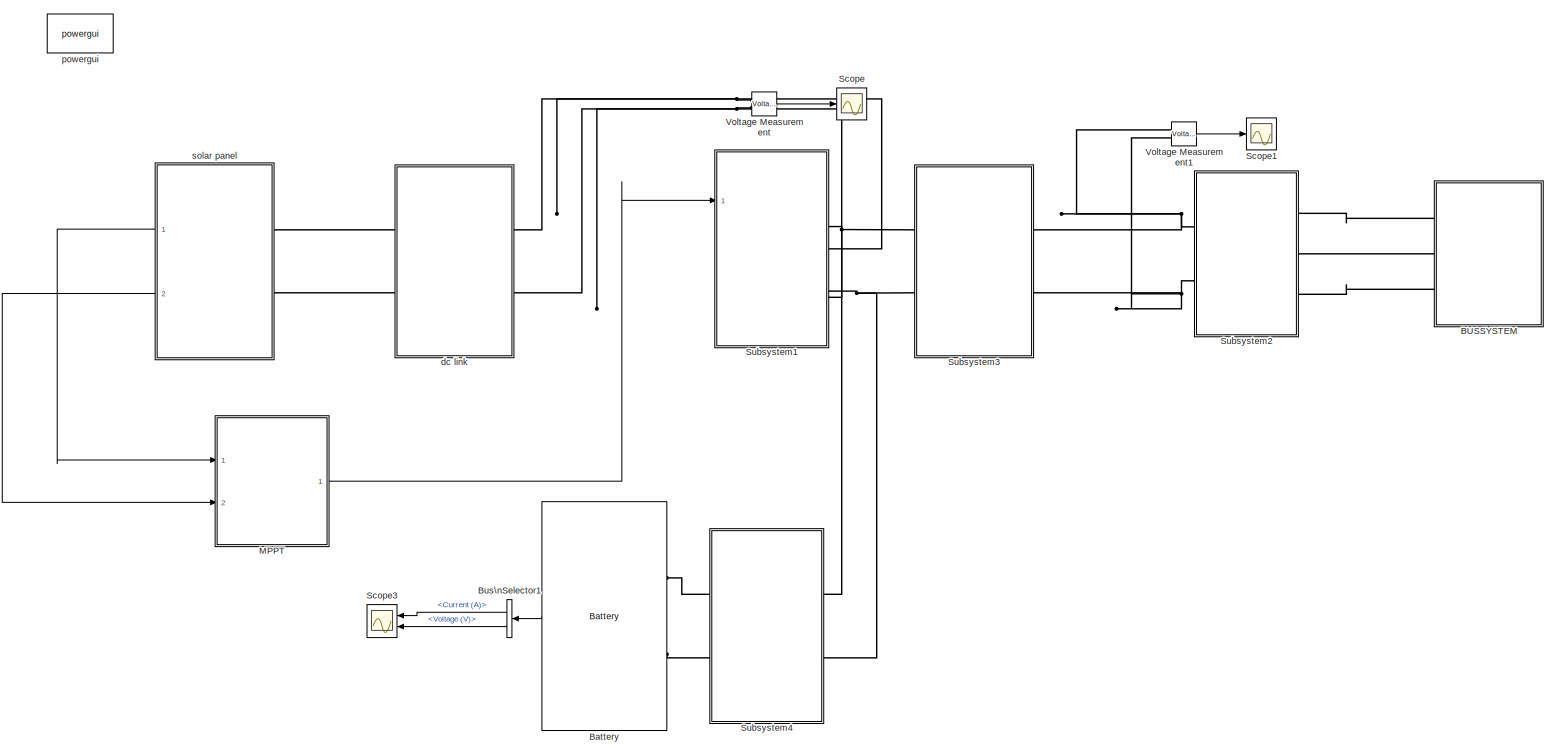
[diagram: root canvas - part 1/1, most of the canvas]
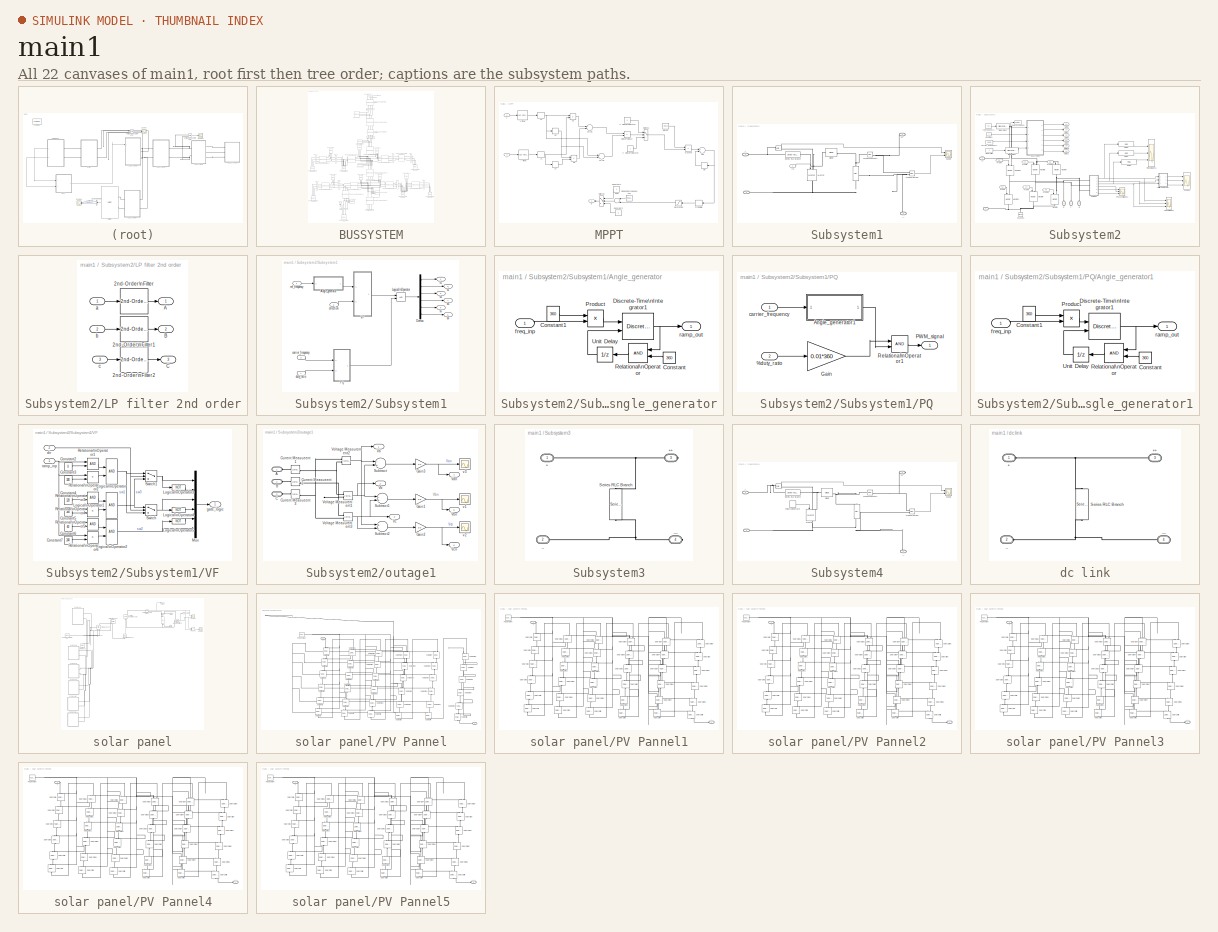
[diagram: thumbnail index - all 22 canvases of the model, root first then tree order]
MODEL main1
KIND model
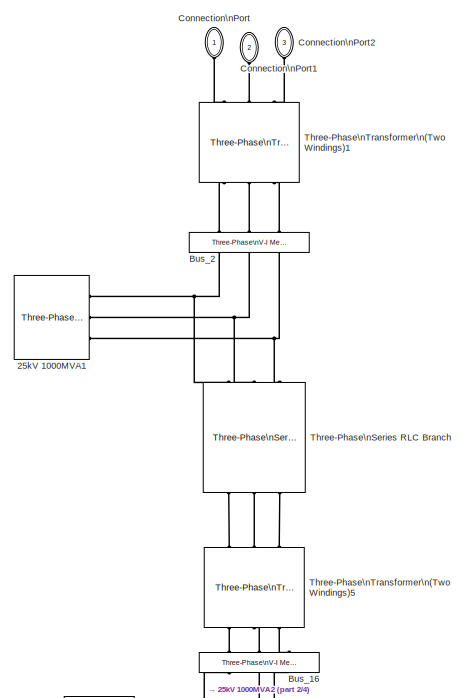
[diagram: BUSSYSTEM - part 1/4, top center region]
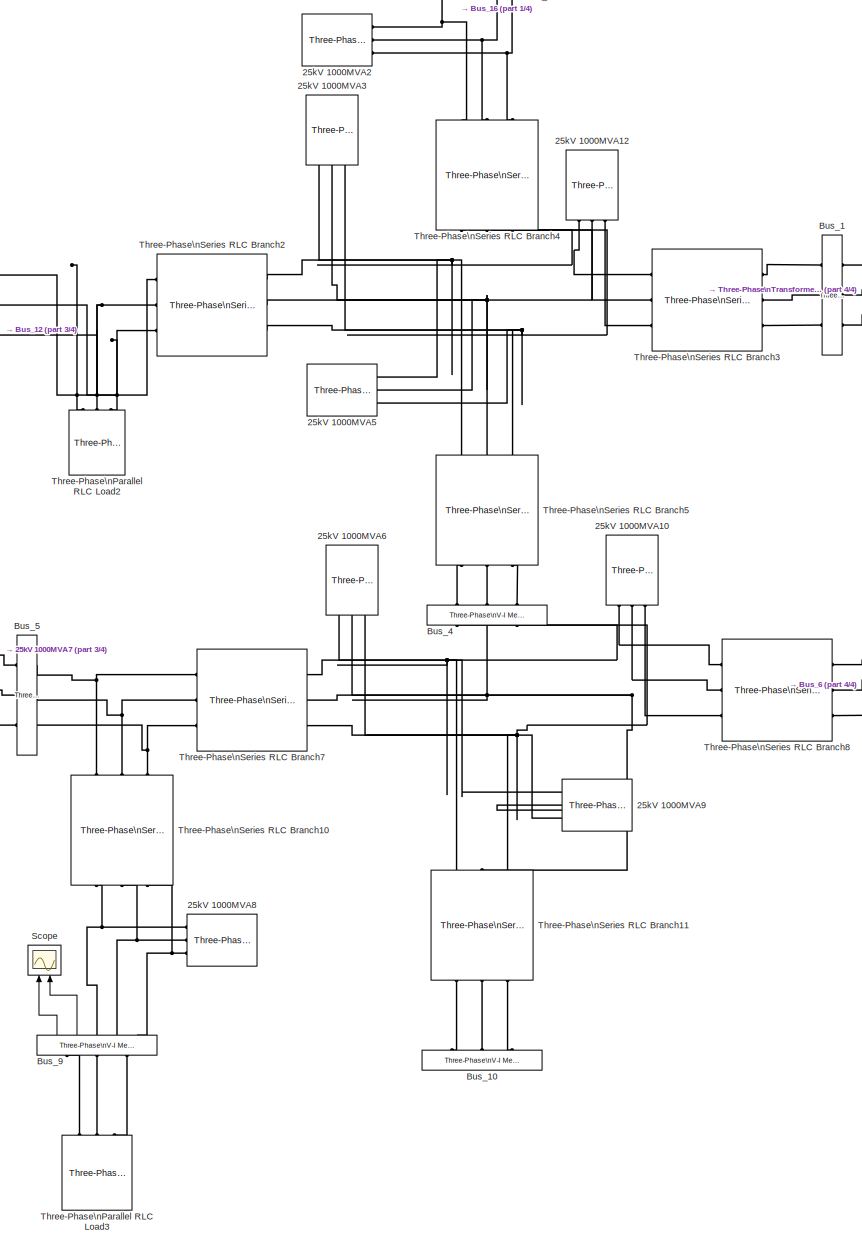
[diagram: BUSSYSTEM - part 2/4, bottom center region]
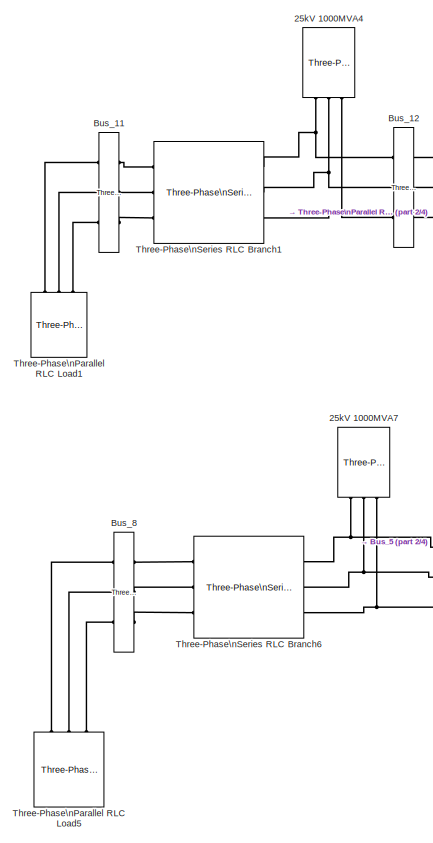
[diagram: BUSSYSTEM - part 3/4, middle left region]
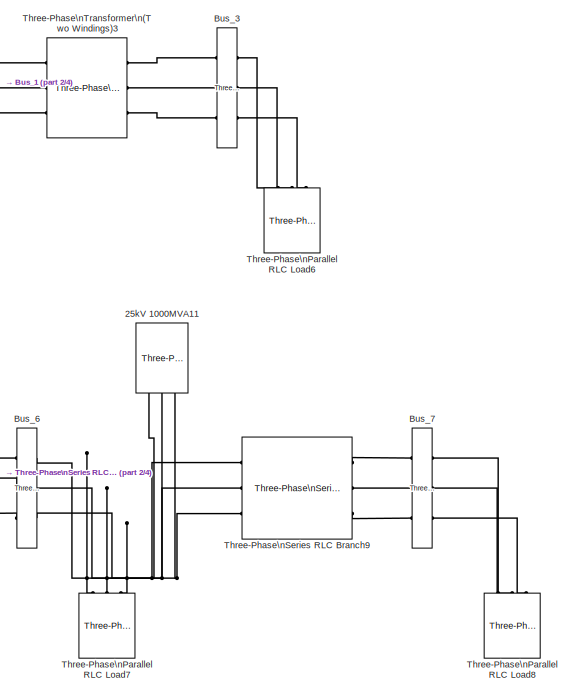
[diagram: BUSSYSTEM - part 4/4, middle right region]
BLOCK [SubSystem] BUSSYSTEM
  Ports = [0, 0, 0, 0, 0, 3]
  RequestExecContextInheritance = off
  SID = 474
BLOCK [Reference] BUSSYSTEM/25kV 1000MVA1  REF=powerlib/Electrical\nSources/Three-Phase Source
  BaseVoltage = 25e3
  Frequency = 50
  FunctionWithSeparateData = off
  Inductance = 25^2/1000/377
  InternalConnection = Yg
  PhaseAngle = 0
  Ports = [0, 0, 0, 0, 0, 0, 3]
  RTWMemSecDataConstants = Inherit from model
  RTWMemSecDataInternal = Inherit from model
  RTWMemSecDataParameters = Inherit from model
  RTWMemSecFuncExecute = Inherit from model
  RTWMemSecFuncInitTerm = Inherit from model
  Resistance = 25^2/1000/10
  SID = 773
  ShortCircuitLevel = 1000e6
  ShowPortLabels = FromPortIcon
  SourceBlock = powerlib/Electrical\nSources/Three-Phase Source
  SourceProductBaseCode = PS
  SourceProductName = Simscape Electrical
  SourceType = Three-Phase Source
  SpecifyImpedance = on
  SystemSampleTime = -1
  Voltage = 10
  XRratio = 10
BLOCK [Reference] BUSSYSTEM/25kV 1000MVA10  REF=powerlib/Electrical\nSources/Three-Phase Source
  BaseVoltage = 25e3
  Frequency = 50
  FunctionWithSeparateData = off
  Inductance = 25^2/1000/377
  InternalConnection = Yg
  PhaseAngle = 0
  Ports = [0, 0, 0, 0, 0, 0, 3]
  RTWMemSecDataConstants = Inherit from model
  RTWMemSecDataInternal = Inherit from model
  RTWMemSecDataParameters = Inherit from model
  RTWMemSecFuncExecute = Inherit from model
  RTWMemSecFuncInitTerm = Inherit from model
  Resistance = 25^2/1000/10
  SID = 774
  ShortCircuitLevel = 1000e6
  ShowPortLabels = FromPortIcon
  SourceBlock = powerlib/Electrical\nSources/Three-Phase Source
  SourceProductBaseCode = PS
  SourceProductName = Simscape Electrical
  SourceType = Three-Phase Source
  SpecifyImpedance = on
  SystemSampleTime = -1
  Voltage = 10
  XRratio = 10
BLOCK [Reference] BUSSYSTEM/25kV 1000MVA11  REF=powerlib/Electrical\nSources/Three-Phase Source
  BaseVoltage = 25e3
  Frequency = 50
  FunctionWithSeparateData = off
  Inductance = 25^2/1000/377
  InternalConnection = Yg
  PhaseAngle = 0
  Ports = [0, 0, 0, 0, 0, 0, 3]
  RTWMemSecDataConstants = Inherit from model
  RTWMemSecDataInternal = Inherit from model
  RTWMemSecDataParameters = Inherit from model
  RTWMemSecFuncExecute = Inherit from model
  RTWMemSecFuncInitTerm = Inherit from model
  Resistance = 25^2/1000/10
  SID = 775
  ShortCircuitLevel = 1000e6
  ShowPortLabels = FromPortIcon
  SourceBlock = powerlib/Electrical\nSources/Three-Phase Source
  SourceProductBaseCode = PS
  SourceProductName = Simscape Electrical
  SourceType = Three-Phase Source
  SpecifyImpedance = on
  SystemSampleTime = -1
  Voltage = 10
  XRratio = 10
BLOCK [Reference] BUSSYSTEM/25kV 1000MVA12  REF=powerlib/Electrical\nSources/Three-Phase Source
  BaseVoltage = 25e3
  Frequency = 50
  FunctionWithSeparateData = off
  Inductance = 25^2/1000/377
  InternalConnection = Yg
  PhaseAngle = 0
  Ports = [0, 0, 0, 0, 0, 0, 3]
  RTWMemSecDataConstants = Inherit from model
  RTWMemSecDataInternal = Inherit from model
  RTWMemSecDataParameters = Inherit from model
  RTWMemSecFuncExecute = Inherit from model
  RTWMemSecFuncInitTerm = Inherit from model
  Resistance = 25^2/1000/10
  SID = 776
  ShortCircuitLevel = 1000e6
  ShowPortLabels = FromPortIcon
  SourceBlock = powerlib/Electrical\nSources/Three-Phase Source
  SourceProductBaseCode = PS
  SourceProductName = Simscape Electrical
  SourceType = Three-Phase Source
  SpecifyImpedance = on
  SystemSampleTime = -1
  Voltage = 10
  XRratio = 10
BLOCK [Reference] BUSSYSTEM/25kV 1000MVA2  REF=powerlib/Electrical\nSources/Three-Phase Source
  BaseVoltage = 25e3
  Frequency = 50
  FunctionWithSeparateData = off
  Inductance = 25^2/1000/377
  InternalConnection = Yg
  PhaseAngle = 0
  Ports = [0, 0, 0, 0, 0, 0, 3]
  RTWMemSecDataConstants = Inherit from model
  RTWMemSecDataInternal = Inherit from model
  RTWMemSecDataParameters = Inherit from model
  RTWMemSecFuncExecute = Inherit from model
  RTWMemSecFuncInitTerm = Inherit from model
  Resistance = 25^2/1000/10
  SID = 777
  ShortCircuitLevel = 1000e6
  ShowPortLabels = FromPortIcon
  SourceBlock = powerlib/Electrical\nSources/Three-Phase Source
  SourceProductBaseCode = PS
  SourceProductName = Simscape Electrical
  SourceType = Three-Phase Source
  SpecifyImpedance = on
  SystemSampleTime = -1
  Voltage = 10
  XRratio = 10
BLOCK [Reference] BUSSYSTEM/25kV 1000MVA3  REF=powerlib/Electrical\nSources/Three-Phase Source
  BaseVoltage = 25e3
  Frequency = 50
  FunctionWithSeparateData = off
  Inductance = 25^2/1000/377
  InternalConnection = Yg
  PhaseAngle = 0
  Ports = [0, 0, 0, 0, 0, 0, 3]
  RTWMemSecDataConstants = Inherit from model
  RTWMemSecDataInternal = Inherit from model
  RTWMemSecDataParameters = Inherit from model
  RTWMemSecFuncExecute = Inherit from model
  RTWMemSecFuncInitTerm = Inherit from model
  Resistance = 25^2/1000/10
  SID = 778
  ShortCircuitLevel = 1000e6
  ShowPortLabels = FromPortIcon
  SourceBlock = powerlib/Electrical\nSources/Three-Phase Source
  SourceProductBaseCode = PS
  SourceProductName = Simscape Electrical
  SourceType = Three-Phase Source
  SpecifyImpedance = on
  SystemSampleTime = -1
  Voltage = 10
  XRratio = 10
BLOCK [Reference] BUSSYSTEM/25kV 1000MVA4  REF=powerlib/Electrical\nSources/Three-Phase Source
  BaseVoltage = 25e3
  Frequency = 50
  FunctionWithSeparateData = off
  Inductance = 25^2/1000/377
  InternalConnection = Yg
  PhaseAngle = 0
  Ports = [0, 0, 0, 0, 0, 0, 3]
  RTWMemSecDataConstants = Inherit from model
  RTWMemSecDataInternal = Inherit from model
  RTWMemSecDataParameters = Inherit from model
  RTWMemSecFuncExecute = Inherit from model
  RTWMemSecFuncInitTerm = Inherit from model
  Resistance = 25^2/1000/10
  SID = 779
  ShortCircuitLevel = 1000e6
  ShowPortLabels = FromPortIcon
  SourceBlock = powerlib/Electrical\nSources/Three-Phase Source
  SourceProductBaseCode = PS
  SourceProductName = Simscape Electrical
  SourceType = Three-Phase Source
  SpecifyImpedance = on
  SystemSampleTime = -1
  Voltage = 10
  XRratio = 10
BLOCK [Reference] BUSSYSTEM/25kV 1000MVA5  REF=powerlib/Electrical\nSources/Three-Phase Source
  BaseVoltage = 25e3
  Frequency = 50
  FunctionWithSeparateData = off
  Inductance = 25^2/1000/377
  InternalConnection = Yg
  PhaseAngle = 0
  Ports = [0, 0, 0, 0, 0, 0, 3]
  RTWMemSecDataConstants = Inherit from model
  RTWMemSecDataInternal = Inherit from model
  RTWMemSecDataParameters = Inherit from model
  RTWMemSecFuncExecute = Inherit from model
  RTWMemSecFuncInitTerm = Inherit from model
  Resistance = 25^2/1000/10
  SID = 780
  ShortCircuitLevel = 1000e6
  ShowPortLabels = FromPortIcon
  SourceBlock = powerlib/Electrical\nSources/Three-Phase Source
  SourceProductBaseCode = PS
  SourceProductName = Simscape Electrical
  SourceType = Three-Phase Source
  SpecifyImpedance = on
  SystemSampleTime = -1
  Voltage = 25e3
  XRratio = 10
BLOCK [Reference] BUSSYSTEM/25kV 1000MVA6  REF=powerlib/Electrical\nSources/Three-Phase Source
  BaseVoltage = 25e3
  Frequency = 50
  FunctionWithSeparateData = off
  Inductance = 25^2/1000/377
  InternalConnection = Yg
  PhaseAngle = 0
  Ports = [0, 0, 0, 0, 0, 0, 3]
  RTWMemSecDataConstants = Inherit from model
  RTWMemSecDataInternal = Inherit from model
  RTWMemSecDataParameters = Inherit from model
  RTWMemSecFuncExecute = Inherit from model
  RTWMemSecFuncInitTerm = Inherit from model
  Resistance = 25^2/1000/10
  SID = 781
  ShortCircuitLevel = 1000e6
  ShowPortLabels = FromPortIcon
  SourceBlock = powerlib/Electrical\nSources/Three-Phase Source
  SourceProductBaseCode = PS
  SourceProductName = Simscape Electrical
  SourceType = Three-Phase Source
  SpecifyImpedance = on
  SystemSampleTime = -1
  Voltage = 10
  XRratio = 10
BLOCK [Reference] BUSSYSTEM/25kV 1000MVA7  REF=powerlib/Electrical\nSources/Three-Phase Source
  BaseVoltage = 25e3
  Frequency = 50
  FunctionWithSeparateData = off
  Inductance = 25^2/1000/377
  InternalConnection = Yg
  PhaseAngle = 0
  Ports = [0, 0, 0, 0, 0, 0, 3]
  RTWMemSecDataConstants = Inherit from model
  RTWMemSecDataInternal = Inherit from model
  RTWMemSecDataParameters = Inherit from model
  RTWMemSecFuncExecute = Inherit from model
  RTWMemSecFuncInitTerm = Inherit from model
  Resistance = 25^2/1000/10
  SID = 782
  ShortCircuitLevel = 1000e6
  ShowPortLabels = FromPortIcon
  SourceBlock = powerlib/Electrical\nSources/Three-Phase Source
  SourceProductBaseCode = PS
  SourceProductName = Simscape Electrical
  SourceType = Three-Phase Source
  SpecifyImpedance = on
  SystemSampleTime = -1
  Voltage = 10
  XRratio = 10
BLOCK [Reference] BUSSYSTEM/25kV 1000MVA8  REF=powerlib/Electrical\nSources/Three-Phase Source
  BaseVoltage = 25e3
  Frequency = 50
  FunctionWithSeparateData = off
  Inductance = 25^2/1000/377
  InternalConnection = Yg
  PhaseAngle = 0
  Ports = [0, 0, 0, 0, 0, 0, 3]
  RTWMemSecDataConstants = Inherit from model
  RTWMemSecDataInternal = Inherit from model
  RTWMemSecDataParameters = Inherit from model
  RTWMemSecFuncExecute = Inherit from model
  RTWMemSecFuncInitTerm = Inherit from model
  Resistance = 25^2/1000/10
  SID = 783
  ShortCircuitLevel = 1000e6
  ShowPortLabels = FromPortIcon
  SourceBlock = powerlib/Electrical\nSources/Three-Phase Source
  SourceProductBaseCode = PS
  SourceProductName = Simscape Electrical
  SourceType = Three-Phase Source
  SpecifyImpedance = on
  SystemSampleTime = -1
  Voltage = 10
  XRratio = 10
BLOCK [Reference] BUSSYSTEM/25kV 1000MVA9  REF=powerlib/Electrical\nSources/Three-Phase Source
  BaseVoltage = 25e3
  Frequency = 50
  FunctionWithSeparateData = off
  Inductance = 25^2/1000/377
  InternalConnection = Yg
  PhaseAngle = 0
  Ports = [0, 0, 0, 0, 0, 0, 3]
  RTWMemSecDataConstants = Inherit from model
  RTWMemSecDataInternal = Inherit from model
  RTWMemSecDataParameters = Inherit from model
  RTWMemSecFuncExecute = Inherit from model
  RTWMemSecFuncInitTerm = Inherit from model
  Resistance = 25^2/1000/10
  SID = 784
  ShortCircuitLevel = 1000e6
  ShowPortLabels = FromPortIcon
  SourceBlock = powerlib/Electrical\nSources/Three-Phase Source
  SourceProductBaseCode = PS
  SourceProductName = Simscape Electrical
  SourceType = Three-Phase Source
  SpecifyImpedance = on
  SystemSampleTime = -1
  Voltage = 10
  XRratio = 10
BLOCK [Reference] BUSSYSTEM/Bus_1  REF=powerlib/Measurements/Three-Phase\nV-I Measurement
  CurrentMeasurement = yes
  FunctionWithSeparateData = off
  Ipu = off
  LabelI = Iabc_5
  LabelV = Vabc_5
  OutputType = Complex
  PSBequivalent = 0
  Pbase = 100e6
  PhasorSimulation = on
  Ports = [0, 0, 0, 0, 0, 3, 3]
  RTWMemSecDataConstants = Inherit from model
  RTWMemSecDataInternal = Inherit from model
  RTWMemSecDataParameters = Inherit from model
  RTWMemSecFuncExecute = Inherit from model
  RTWMemSecFuncInitTerm = Inherit from model
  SID = 785
  SetLabelI = on
  SetLabelV = on
  ShowPortLabels = FromPortIcon
  SourceBlock = powerlib/Measurements/Three-Phase\nV-I Measurement
  SourceProductBaseCode = PS
  SourceProductName = Simscape Electrical
  SourceType = Three-Phase VI Measurement
  SystemSampleTime = -1
  Vbase = 120e3
  VoltageMeasurement = phase-to-phase
  Vpu = off
  VpuLL = off
BLOCK [Reference] BUSSYSTEM/Bus_10  REF=powerlib/Measurements/Three-Phase\nV-I Measurement
  CurrentMeasurement = yes
  FunctionWithSeparateData = off
  Ipu = off
  LabelI = Iabc_13
  LabelV = Vabc_13
  OutputType = Complex
  PSBequivalent = 0
  Pbase = 100e6
  PhasorSimulation = on
  Ports = [0, 0, 0, 0, 0, 3, 3]
  RTWMemSecDataConstants = Inherit from model
  RTWMemSecDataInternal = Inherit from model
  RTWMemSecDataParameters = Inherit from model
  RTWMemSecFuncExecute = Inherit from model
  RTWMemSecFuncInitTerm = Inherit from model
  SID = 786
  SetLabelI = on
  SetLabelV = on
  ShowPortLabels = FromPortIcon
  SourceBlock = powerlib/Measurements/Three-Phase\nV-I Measurement
  SourceProductBaseCode = PS
  SourceProductName = Simscape Electrical
  SourceType = Three-Phase VI Measurement
  SystemSampleTime = -1
  Vbase = 120e3
  VoltageMeasurement = phase-to-phase
  Vpu = off
  VpuLL = off
BLOCK [Reference] BUSSYSTEM/Bus_11  REF=powerlib/Measurements/Three-Phase\nV-I Measurement
  CurrentMeasurement = yes
  FunctionWithSeparateData = off
  Ipu = off
  LabelI = Iabc_3
  LabelV = Vabc_3
  OutputType = Complex
  PSBequivalent = 0
  Pbase = 100e6
  PhasorSimulation = on
  Ports = [0, 0, 0, 0, 0, 3, 3]
  RTWMemSecDataConstants = Inherit from model
  RTWMemSecDataInternal = Inherit from model
  RTWMemSecDataParameters = Inherit from model
  RTWMemSecFuncExecute = Inherit from model
  RTWMemSecFuncInitTerm = Inherit from model
  SID = 787
  SetLabelI = on
  SetLabelV = on
  ShowPortLabels = FromPortIcon
  SourceBlock = powerlib/Measurements/Three-Phase\nV-I Measurement
  SourceProductBaseCode = PS
  SourceProductName = Simscape Electrical
  SourceType = Three-Phase VI Measurement
  SystemSampleTime = -1
  Vbase = 120e3
  VoltageMeasurement = phase-to-phase
  Vpu = off
  VpuLL = off
BLOCK [Reference] BUSSYSTEM/Bus_12  REF=powerlib/Measurements/Three-Phase\nV-I Measurement
  CurrentMeasurement = yes
  FunctionWithSeparateData = off
  Ipu = off
  LabelI = Iabc_4
  LabelV = Vabc_4
  OutputType = Complex
  PSBequivalent = 0
  Pbase = 100e6
  PhasorSimulation = on
  Ports = [0, 0, 0, 0, 0, 3, 3]
  RTWMemSecDataConstants = Inherit from model
  RTWMemSecDataInternal = Inherit from model
  RTWMemSecDataParameters = Inherit from model
  RTWMemSecFuncExecute = Inherit from model
  RTWMemSecFuncInitTerm = Inherit from model
  SID = 788
  SetLabelI = on
  SetLabelV = on
  ShowPortLabels = FromPortIcon
  SourceBlock = powerlib/Measurements/Three-Phase\nV-I Measurement
  SourceProductBaseCode = PS
  SourceProductName = Simscape Electrical
  SourceType = Three-Phase VI Measurement
  SystemSampleTime = -1
  Vbase = 120e3
  VoltageMeasurement = phase-to-phase
  Vpu = off
  VpuLL = off
BLOCK [Reference] BUSSYSTEM/Bus_16  REF=powerlib/Measurements/Three-Phase\nV-I Measurement
  CurrentMeasurement = yes
  FunctionWithSeparateData = off
  Ipu = off
  LabelI = Iabc_1
  LabelV = Vabc_1
  OutputType = Complex
  PSBequivalent = 0
  Pbase = 100e6
  PhasorSimulation = on
  Ports = [0, 0, 0, 0, 0, 3, 3]
  RTWMemSecDataConstants = Inherit from model
  RTWMemSecDataInternal = Inherit from model
  RTWMemSecDataParameters = Inherit from model
  RTWMemSecFuncExecute = Inherit from model
  RTWMemSecFuncInitTerm = Inherit from model
  SID = 789
  SetLabelI = on
  SetLabelV = on
  ShowPortLabels = FromPortIcon
  SourceBlock = powerlib/Measurements/Three-Phase\nV-I Measurement
  SourceProductBaseCode = PS
  SourceProductName = Simscape Electrical
  SourceType = Three-Phase VI Measurement
  SystemSampleTime = -1
  Vbase = 120e3
  VoltageMeasurement = phase-to-phase
  Vpu = off
  VpuLL = off
BLOCK [Reference] BUSSYSTEM/Bus_2  REF=powerlib/Measurements/Three-Phase\nV-I Measurement
  CurrentMeasurement = yes
  FunctionWithSeparateData = off
  Ipu = off
  LabelI = Iabc_2
  LabelV = Vabc_2
  OutputType = Complex
  PSBequivalent = 0
  Pbase = 100e6
  PhasorSimulation = on
  Ports = [0, 0, 0, 0, 0, 3, 3]
  RTWMemSecDataConstants = Inherit from model
  RTWMemSecDataInternal = Inherit from model
  RTWMemSecDataParameters = Inherit from model
  RTWMemSecFuncExecute = Inherit from model
  RTWMemSecFuncInitTerm = Inherit from model
  SID = 790
  SetLabelI = on
  SetLabelV = on
  ShowPortLabels = FromPortIcon
  SourceBlock = powerlib/Measurements/Three-Phase\nV-I Measurement
  SourceProductBaseCode = PS
  SourceProductName = Simscape Electrical
  SourceType = Three-Phase VI Measurement
  SystemSampleTime = -1
  Vbase = 120e3
  VoltageMeasurement = phase-to-phase
  Vpu = off
  VpuLL = off
BLOCK [Reference] BUSSYSTEM/Bus_3  REF=powerlib/Measurements/Three-Phase\nV-I Measurement
  CurrentMeasurement = yes
  FunctionWithSeparateData = off
  Ipu = off
  LabelI = Iabc_6
  LabelV = Vabc_6
  OutputType = Complex
  PSBequivalent = 0
  Pbase = 100e6
  PhasorSimulation = on
  Ports = [0, 0, 0, 0, 0, 3, 3]
  RTWMemSecDataConstants = Inherit from model
  RTWMemSecDataInternal = Inherit from model
  RTWMemSecDataParameters = Inherit from model
  RTWMemSecFuncExecute = Inherit from model
  RTWMemSecFuncInitTerm = Inherit from model
  SID = 791
  SetLabelI = on
  SetLabelV = on
  ShowPortLabels = FromPortIcon
  SourceBlock = powerlib/Measurements/Three-Phase\nV-I Measurement
  SourceProductBaseCode = PS
  SourceProductName = Simscape Electrical
  SourceType = Three-Phase VI Measurement
  SystemSampleTime = -1
  Vbase = 120e3
  VoltageMeasurement = phase-to-phase
  Vpu = off
  VpuLL = off
BLOCK [Reference] BUSSYSTEM/Bus_4  REF=powerlib/Measurements/Three-Phase\nV-I Measurement
  CurrentMeasurement = yes
  FunctionWithSeparateData = off
  Ipu = off
  LabelI = Iabc_7
  LabelV = Vabc_7
  OutputType = Complex
  PSBequivalent = 0
  Pbase = 100e6
  PhasorSimulation = on
  Ports = [0, 0, 0, 0, 0, 3, 3]
  RTWMemSecDataConstants = Inherit from model
  RTWMemSecDataInternal = Inherit from model
  RTWMemSecDataParameters = Inherit from model
  RTWMemSecFuncExecute = Inherit from model
  RTWMemSecFuncInitTerm = Inherit from model
  SID = 792
  SetLabelI = on
  SetLabelV = on
  ShowPortLabels = FromPortIcon
  SourceBlock = powerlib/Measurements/Three-Phase\nV-I Measurement
  SourceProductBaseCode = PS
  SourceProductName = Simscape Electrical
  SourceType = Three-Phase VI Measurement
  SystemSampleTime = -1
  Vbase = 120e3
  VoltageMeasurement = phase-to-phase
  Vpu = off
  VpuLL = off
BLOCK [Reference] BUSSYSTEM/Bus_5  REF=powerlib/Measurements/Three-Phase\nV-I Measurement
  CurrentMeasurement = yes
  FunctionWithSeparateData = off
  Ipu = off
  LabelI = Iabc_8
  LabelV = Vabc_8
  OutputType = Complex
  PSBequivalent = 0
  Pbase = 100e6
  PhasorSimulation = on
  Ports = [0, 0, 0, 0, 0, 3, 3]
  RTWMemSecDataConstants = Inherit from model
  RTWMemSecDataInternal = Inherit from model
  RTWMemSecDataParameters = Inherit from model
  RTWMemSecFuncExecute = Inherit from model
  RTWMemSecFuncInitTerm = Inherit from model
  SID = 793
  SetLabelI = on
  SetLabelV = on
  ShowPortLabels = FromPortIcon
  SourceBlock = powerlib/Measurements/Three-Phase\nV-I Measurement
  SourceProductBaseCode = PS
  SourceProductName = Simscape Electrical
  SourceType = Three-Phase VI Measurement
  SystemSampleTime = -1
  Vbase = 120e3
  VoltageMeasurement = phase-to-phase
  Vpu = off
  VpuLL = off
BLOCK [Reference] BUSSYSTEM/Bus_6  REF=powerlib/Measurements/Three-Phase\nV-I Measurement
  CurrentMeasurement = yes
  FunctionWithSeparateData = off
  Ipu = off
  LabelI = Iabc_10
  LabelV = Vabc_10
  OutputType = Complex
  PSBequivalent = 0
  Pbase = 100e6
  PhasorSimulation = on
  Ports = [0, 0, 0, 0, 0, 3, 3]
  RTWMemSecDataConstants = Inherit from model
  RTWMemSecDataInternal = Inherit from model
  RTWMemSecDataParameters = Inherit from model
  RTWMemSecFuncExecute = Inherit from model
  RTWMemSecFuncInitTerm = Inherit from model
  SID = 794
  SetLabelI = on
  SetLabelV = on
  ShowPortLabels = FromPortIcon
  SourceBlock = powerlib/Measurements/Three-Phase\nV-I Measurement
  SourceProductBaseCode = PS
  SourceProductName = Simscape Electrical
  SourceType = Three-Phase VI Measurement
  SystemSampleTime = -1
  Vbase = 120e3
  VoltageMeasurement = phase-to-phase
  Vpu = off
  VpuLL = off
BLOCK [Reference] BUSSYSTEM/Bus_7  REF=powerlib/Measurements/Three-Phase\nV-I Measurement
  CurrentMeasurement = yes
  FunctionWithSeparateData = off
  Ipu = off
  LabelI = Iabc_11
  LabelV = Vabc_11
  OutputType = Complex
  PSBequivalent = 0
  Pbase = 100e6
  PhasorSimulation = on
  Ports = [0, 0, 0, 0, 0, 3, 3]
  RTWMemSecDataConstants = Inherit from model
  RTWMemSecDataInternal = Inherit from model
  RTWMemSecDataParameters = Inherit from model
  RTWMemSecFuncExecute = Inherit from model
  RTWMemSecFuncInitTerm = Inherit from model
  SID = 795
  SetLabelI = on
  SetLabelV = on
  ShowPortLabels = FromPortIcon
  SourceBlock = powerlib/Measurements/Three-Phase\nV-I Measurement
  SourceProductBaseCode = PS
  SourceProductName = Simscape Electrical
  SourceType = Three-Phase VI Measurement
  SystemSampleTime = -1
  Vbase = 120e3
  VoltageMeasurement = phase-to-phase
  Vpu = off
  VpuLL = off
BLOCK [Reference] BUSSYSTEM/Bus_8  REF=powerlib/Measurements/Three-Phase\nV-I Measurement
  CurrentMeasurement = yes
  FunctionWithSeparateData = off
  Ipu = off
  LabelI = Iabc_9
  LabelV = Vabc_9
  OutputType = Complex
  PSBequivalent = 0
  Pbase = 100e6
  PhasorSimulation = on
  Ports = [0, 0, 0, 0, 0, 3, 3]
  RTWMemSecDataConstants = Inherit from model
  RTWMemSecDataInternal = Inherit from model
  RTWMemSecDataParameters = Inherit from model
  RTWMemSecFuncExecute = Inherit from model
  RTWMemSecFuncInitTerm = Inherit from model
  SID = 796
  SetLabelI = on
  SetLabelV = on
  ShowPortLabels = FromPortIcon
  SourceBlock = powerlib/Measurements/Three-Phase\nV-I Measurement
  SourceProductBaseCode = PS
  SourceProductName = Simscape Electrical
  SourceType = Three-Phase VI Measurement
  SystemSampleTime = -1
  Vbase = 120e3
  VoltageMeasurement = phase-to-phase
  Vpu = off
  VpuLL = off
BLOCK [Reference] BUSSYSTEM/Bus_9  REF=powerlib/Measurements/Three-Phase\nV-I Measurement
  CurrentMeasurement = yes
  FunctionWithSeparateData = off
  Ipu = off
  LabelI = Iabc_12
  LabelV = Vabc_12
  OutputType = Complex
  PSBequivalent = 0
  Pbase = 100e6
  PhasorSimulation = on
  Ports = [0, 2, 0, 0, 0, 3, 3]
  RTWMemSecDataConstants = Inherit from model
  RTWMemSecDataInternal = Inherit from model
  RTWMemSecDataParameters = Inherit from model
  RTWMemSecFuncExecute = Inherit from model
  RTWMemSecFuncInitTerm = Inherit from model
  SID = 797
  SetLabelI = off
  SetLabelV = off
  ShowPortLabels = FromPortIcon
  SourceBlock = powerlib/Measurements/Three-Phase\nV-I Measurement
  SourceProductBaseCode = PS
  SourceProductName = Simscape Electrical
  SourceType = Three-Phase VI Measurement
  SystemSampleTime = -1
  Vbase = 120e3
  VoltageMeasurement = phase-to-phase
  Vpu = off
  VpuLL = off
BLOCK [PMIOPort] BUSSYSTEM/Connection\nPort
  SID = 1382
  Side = Left
  Tag = PMCPort
BLOCK [PMIOPort] BUSSYSTEM/Connection\nPort1
  Port = 2
  SID = 1383
  Side = Left
  Tag = PMCPort
BLOCK [PMIOPort] BUSSYSTEM/Connection\nPort2
  Port = 3
  SID = 1384
  Side = Left
  Tag = PMCPort
BLOCK [Scope] BUSSYSTEM/Scope
  Floating = off
  NumInputPorts = 2
  Ports = [2]
  SID = 1053
  ScopeSpecificationString = C++SS(StrPVP('Location','[5, 48, 1371, 727]'),StrPVP('Open','off'),MxPVP('AxesTitles',54,'struct(''axes1'',''%<SignalLabel>'',''axes2'',''%<SignalLabel>'')'),StrPVP('YMin','-8~-0.4'),StrPVP('YMax','14~0.45'),StrPVP('SaveName','ScopeData4'),StrPVP('DataFormat','StructureWithTime'),StrPVP('BlockParamSampleTime','0'),StrPVP('LimitDataPoints','on'),StrPVP('Decimation','1'),StrPVP('BlockParamSampleInpu...<+10ch>
BLOCK [Reference] BUSSYSTEM/Three-Phase\nParallel RLC Load1  REF=powerlib/Elements/Three-Phase\nParallel RLC Load
  ActivePower = 10e3
  AttributesFormatString = \\n
  CapacitivePower = 0
  Configuration = Y (grounded)
  InductivePower = 0
  LConnTagsString = A|B|C
  LeftPortType = p1
  Measurements = None
  NominalFrequency = 50
  NominalVoltage = 415
  PhysicalDomain = powersysdomain
  Ports = [0, 0, 0, 0, 0, 3]
  RightPortType = p1
  SID = 1054
  SourceBlock = powerlib/Elements/Three-Phase\nParallel RLC Load
  SourceProductBaseCode = PS
  SourceProductName = Simscape Electrical
  SourceType = Three-Phase Parallel RLC Load
  SubClassName = unknown
BLOCK [Reference] BUSSYSTEM/Three-Phase\nParallel RLC Load2  REF=powerlib/Elements/Three-Phase\nParallel RLC Load
  ActivePower = 10e3
  AttributesFormatString = \\n
  CapacitivePower = 0
  Configuration = Y (grounded)
  InductivePower = 0
  LConnTagsString = A|B|C
  LeftPortType = p1
  Measurements = None
  NominalFrequency = 50
  NominalVoltage = 415
  PhysicalDomain = powersysdomain
  Ports = [0, 0, 0, 0, 0, 3]
  RightPortType = p1
  SID = 1055
  SourceBlock = powerlib/Elements/Three-Phase\nParallel RLC Load
  SourceProductBaseCode = PS
  SourceProductName = Simscape Electrical
  SourceType = Three-Phase Parallel RLC Load
  SubClassName = unknown
BLOCK [Reference] BUSSYSTEM/Three-Phase\nParallel RLC Load3  REF=powerlib/Elements/Three-Phase\nParallel RLC Load
  ActivePower = 10e3
  AttributesFormatString = \\n
  CapacitivePower = 0
  Configuration = Y (grounded)
  InductivePower = 0
  LConnTagsString = A|B|C
  LeftPortType = p1
  Measurements = None
  NominalFrequency = 50
  NominalVoltage = 415
  PhysicalDomain = powersysdomain
  Ports = [0, 0, 0, 0, 0, 3]
  RightPortType = p1
  SID = 1056
  SourceBlock = powerlib/Elements/Three-Phase\nParallel RLC Load
  SourceProductBaseCode = PS
  SourceProductName = Simscape Electrical
  SourceType = Three-Phase Parallel RLC Load
  SubClassName = unknown
BLOCK [Reference] BUSSYSTEM/Three-Phase\nParallel RLC Load5  REF=powerlib/Elements/Three-Phase\nParallel RLC Load
  ActivePower = 10e3
  AttributesFormatString = \\n
  CapacitivePower = 0
  Configuration = Y (grounded)
  InductivePower = 0
  LConnTagsString = A|B|C
  LeftPortType = p1
  Measurements = None
  NominalFrequency = 50
  NominalVoltage = 415
  PhysicalDomain = powersysdomain
  Ports = [0, 0, 0, 0, 0, 3]
  RightPortType = p1
  SID = 1057
  SourceBlock = powerlib/Elements/Three-Phase\nParallel RLC Load
  SourceProductBaseCode = PS
  SourceProductName = Simscape Electrical
  SourceType = Three-Phase Parallel RLC Load
  SubClassName = unknown
BLOCK [Reference] BUSSYSTEM/Three-Phase\nParallel RLC Load6  REF=powerlib/Elements/Three-Phase\nParallel RLC Load
  ActivePower = 10e3
  AttributesFormatString = \\n
  CapacitivePower = 0
  Configuration = Y (grounded)
  InductivePower = 0
  LConnTagsString = A|B|C
  LeftPortType = p1
  Measurements = None
  NominalFrequency = 50
  NominalVoltage = 415
  PhysicalDomain = powersysdomain
  Ports = [0, 0, 0, 0, 0, 3]
  RightPortType = p1
  SID = 1058
  SourceBlock = powerlib/Elements/Three-Phase\nParallel RLC Load
  SourceProductBaseCode = PS
  SourceProductName = Simscape Electrical
  SourceType = Three-Phase Parallel RLC Load
  SubClassName = unknown
BLOCK [Reference] BUSSYSTEM/Three-Phase\nParallel RLC Load7  REF=powerlib/Elements/Three-Phase\nParallel RLC Load
  ActivePower = 10e3
  AttributesFormatString = \\n
  CapacitivePower = 0
  Configuration = Y (grounded)
  InductivePower = 0
  LConnTagsString = A|B|C
  LeftPortType = p1
  Measurements = None
  NominalFrequency = 50
  NominalVoltage = 415
  PhysicalDomain = powersysdomain
  Ports = [0, 0, 0, 0, 0, 3]
  RightPortType = p1
  SID = 1059
  SourceBlock = powerlib/Elements/Three-Phase\nParallel RLC Load
  SourceProductBaseCode = PS
  SourceProductName = Simscape Electrical
  SourceType = Three-Phase Parallel RLC Load
  SubClassName = unknown
BLOCK [Reference] BUSSYSTEM/Three-Phase\nParallel RLC Load8  REF=powerlib/Elements/Three-Phase\nParallel RLC Load
  ActivePower = 10e3
  AttributesFormatString = \\n
  CapacitivePower = 0
  Configuration = Y (grounded)
  InductivePower = 0
  LConnTagsString = A|B|C
  LeftPortType = p1
  Measurements = None
  NominalFrequency = 50
  NominalVoltage = 415
  PhysicalDomain = powersysdomain
  Ports = [0, 0, 0, 0, 0, 3]
  RightPortType = p1
  SID = 1060
  SourceBlock = powerlib/Elements/Three-Phase\nParallel RLC Load
  SourceProductBaseCode = PS
  SourceProductName = Simscape Electrical
  SourceType = Three-Phase Parallel RLC Load
  SubClassName = unknown
BLOCK [Reference] BUSSYSTEM/Three-Phase\nSeries RLC Branch  REF=powerlib/Elements/Three-Phase\nSeries RLC Branch
  AttributesFormatString = \\n
  BranchType = RL
  Capacitance = 1e-6
  Inductance = 1e-3
  LConnTagsString = A|B|C
  LeftPortType = p1
  Measurements = None
  PhysicalDomain = powersysdomain
  Ports = [0, 0, 0, 0, 0, 3, 3]
  RConnTagsString = A|B|C
  Resistance = 10
  RightPortType = p1
  SID = 1061
  SourceBlock = powerlib/Elements/Three-Phase\nSeries RLC Branch
  SourceProductBaseCode = PS
  SourceProductName = Simscape Electrical
  SourceType = Three-Phase Series RLC Branch
  SubClassName = unknown
BLOCK [Reference] BUSSYSTEM/Three-Phase\nSeries RLC Branch1  REF=powerlib/Elements/Three-Phase\nSeries RLC Branch
  AttributesFormatString = \\n
  BranchType = RL
  Capacitance = 1e-6
  Inductance = 1e-3
  LConnTagsString = A|B|C
  LeftPortType = p1
  Measurements = None
  PhysicalDomain = powersysdomain
  Ports = [0, 0, 0, 0, 0, 3, 3]
  RConnTagsString = A|B|C
  Resistance = 10
  RightPortType = p1
  SID = 1062
  SourceBlock = powerlib/Elements/Three-Phase\nSeries RLC Branch
  SourceProductBaseCode = PS
  SourceProductName = Simscape Electrical
  SourceType = Three-Phase Series RLC Branch
  SubClassName = unknown
BLOCK [Reference] BUSSYSTEM/Three-Phase\nSeries RLC Branch10  REF=powerlib/Elements/Three-Phase\nSeries RLC Branch
  AttributesFormatString = \\n
  BranchType = RL
  Capacitance = 1e-6
  Inductance = 1e-3
  LConnTagsString = A|B|C
  LeftPortType = p1
  Measurements = None
  PhysicalDomain = powersysdomain
  Ports = [0, 0, 0, 0, 0, 3, 3]
  RConnTagsString = A|B|C
  Resistance = 10
  RightPortType = p1
  SID = 1063
  SourceBlock = powerlib/Elements/Three-Phase\nSeries RLC Branch
  SourceProductBaseCode = PS
  SourceProductName = Simscape Electrical
  SourceType = Three-Phase Series RLC Branch
  SubClassName = unknown
BLOCK [Reference] BUSSYSTEM/Three-Phase\nSeries RLC Branch11  REF=powerlib/Elements/Three-Phase\nSeries RLC Branch
  AttributesFormatString = \\n
  BranchType = RL
  Capacitance = 1e-6
  Inductance = 1e-3
  LConnTagsString = A|B|C
  LeftPortType = p1
  Measurements = None
  PhysicalDomain = powersysdomain
  Ports = [0, 0, 0, 0, 0, 3, 3]
  RConnTagsString = A|B|C
  Resistance = 10
  RightPortType = p1
  SID = 1064
  SourceBlock = powerlib/Elements/Three-Phase\nSeries RLC Branch
  SourceProductBaseCode = PS
  SourceProductName = Simscape Electrical
  SourceType = Three-Phase Series RLC Branch
  SubClassName = unknown
BLOCK [Reference] BUSSYSTEM/Three-Phase\nSeries RLC Branch2  REF=powerlib/Elements/Three-Phase\nSeries RLC Branch
  AttributesFormatString = \\n
  BranchType = RL
  Capacitance = 1e-6
  Inductance = 1e-3
  LConnTagsString = A|B|C
  LeftPortType = p1
  Measurements = None
  PhysicalDomain = powersysdomain
  Ports = [0, 0, 0, 0, 0, 3, 3]
  RConnTagsString = A|B|C
  Resistance = 10
  RightPortType = p1
  SID = 1065
  SourceBlock = powerlib/Elements/Three-Phase\nSeries RLC Branch
  SourceProductBaseCode = PS
  SourceProductName = Simscape Electrical
  SourceType = Three-Phase Series RLC Branch
  SubClassName = unknown
BLOCK [Reference] BUSSYSTEM/Three-Phase\nSeries RLC Branch3  REF=powerlib/Elements/Three-Phase\nSeries RLC Branch
  AttributesFormatString = \\n
  BranchType = RL
  Capacitance = 1e-6
  Inductance = 1e-3
  LConnTagsString = A|B|C
  LeftPortType = p1
  Measurements = None
  PhysicalDomain = powersysdomain
  Ports = [0, 0, 0, 0, 0, 3, 3]
  RConnTagsString = A|B|C
  Resistance = 10
  RightPortType = p1
  SID = 1066
  SourceBlock = powerlib/Elements/Three-Phase\nSeries RLC Branch
  SourceProductBaseCode = PS
  SourceProductName = Simscape Electrical
  SourceType = Three-Phase Series RLC Branch
  SubClassName = unknown
BLOCK [Reference] BUSSYSTEM/Three-Phase\nSeries RLC Branch4  REF=powerlib/Elements/Three-Phase\nSeries RLC Branch
  AttributesFormatString = \\n
  BranchType = RL
  Capacitance = 1e-6
  Inductance = 1e-3
  LConnTagsString = A|B|C
  LeftPortType = p1
  Measurements = None
  PhysicalDomain = powersysdomain
  Ports = [0, 0, 0, 0, 0, 3, 3]
  RConnTagsString = A|B|C
  Resistance = 10
  RightPortType = p1
  SID = 1067
  SourceBlock = powerlib/Elements/Three-Phase\nSeries RLC Branch
  SourceProductBaseCode = PS
  SourceProductName = Simscape Electrical
  SourceType = Three-Phase Series RLC Branch
  SubClassName = unknown
BLOCK [Reference] BUSSYSTEM/Three-Phase\nSeries RLC Branch5  REF=powerlib/Elements/Three-Phase\nSeries RLC Branch
  AttributesFormatString = \\n
  BranchType = RL
  Capacitance = 1e-6
  Inductance = 1e-3
  LConnTagsString = A|B|C
  LeftPortType = p1
  Measurements = None
  PhysicalDomain = powersysdomain
  Ports = [0, 0, 0, 0, 0, 3, 3]
  RConnTagsString = A|B|C
  Resistance = 10
  RightPortType = p1
  SID = 1068
  SourceBlock = powerlib/Elements/Three-Phase\nSeries RLC Branch
  SourceProductBaseCode = PS
  SourceProductName = Simscape Electrical
  SourceType = Three-Phase Series RLC Branch
  SubClassName = unknown
BLOCK [Reference] BUSSYSTEM/Three-Phase\nSeries RLC Branch6  REF=powerlib/Elements/Three-Phase\nSeries RLC Branch
  AttributesFormatString = \\n
  BranchType = RL
  Capacitance = 1e-6
  Inductance = 1e-3
  LConnTagsString = A|B|C
  LeftPortType = p1
  Measurements = None
  PhysicalDomain = powersysdomain
  Ports = [0, 0, 0, 0, 0, 3, 3]
  RConnTagsString = A|B|C
  Resistance = 10
  RightPortType = p1
  SID = 1069
  SourceBlock = powerlib/Elements/Three-Phase\nSeries RLC Branch
  SourceProductBaseCode = PS
  SourceProductName = Simscape Electrical
  SourceType = Three-Phase Series RLC Branch
  SubClassName = unknown
BLOCK [Reference] BUSSYSTEM/Three-Phase\nSeries RLC Branch7  REF=powerlib/Elements/Three-Phase\nSeries RLC Branch
  AttributesFormatString = \\n
  BranchType = RL
  Capacitance = 1e-6
  Inductance = 1e-3
  LConnTagsString = A|B|C
  LeftPortType = p1
  Measurements = None
  PhysicalDomain = powersysdomain
  Ports = [0, 0, 0, 0, 0, 3, 3]
  RConnTagsString = A|B|C
  Resistance = 10
  RightPortType = p1
  SID = 1070
  SourceBlock = powerlib/Elements/Three-Phase\nSeries RLC Branch
  SourceProductBaseCode = PS
  SourceProductName = Simscape Electrical
  SourceType = Three-Phase Series RLC Branch
  SubClassName = unknown
BLOCK [Reference] BUSSYSTEM/Three-Phase\nSeries RLC Branch8  REF=powerlib/Elements/Three-Phase\nSeries RLC Branch
  AttributesFormatString = \\n
  BranchType = RL
  Capacitance = 1e-6
  Inductance = 1e-3
  LConnTagsString = A|B|C
  LeftPortType = p1
  Measurements = None
  PhysicalDomain = powersysdomain
  Ports = [0, 0, 0, 0, 0, 3, 3]
  RConnTagsString = A|B|C
  Resistance = 10
  RightPortType = p1
  SID = 1071
  SourceBlock = powerlib/Elements/Three-Phase\nSeries RLC Branch
  SourceProductBaseCode = PS
  SourceProductName = Simscape Electrical
  SourceType = Three-Phase Series RLC Branch
  SubClassName = unknown
BLOCK [Reference] BUSSYSTEM/Three-Phase\nSeries RLC Branch9  REF=powerlib/Elements/Three-Phase\nSeries RLC Branch
  AttributesFormatString = \\n
  BranchType = RL
  Capacitance = 1e-6
  Inductance = 1e-3
  LConnTagsString = A|B|C
  LeftPortType = p1
  Measurements = None
  PhysicalDomain = powersysdomain
  Ports = [0, 0, 0, 0, 0, 3, 3]
  RConnTagsString = A|B|C
  Resistance = 10
  RightPortType = p1
  SID = 1072
  SourceBlock = powerlib/Elements/Three-Phase\nSeries RLC Branch
  SourceProductBaseCode = PS
  SourceProductName = Simscape Electrical
  SourceType = Three-Phase Series RLC Branch
  SubClassName = unknown
BLOCK [Reference] BUSSYSTEM/Three-Phase\nTransformer\n(Two Windings)1  REF=powerlib/Elements/Three-Phase\nTransformer\n(Two Windings)
  BreakLoop = off
  DataFile = 'hysteresis'
  DataType = off
  FunctionWithSeparateData = off
  Hysteresis = off
  InitialFluxes = [ 0.8 , -0.8 , 0.7 ]
  Lm = 500
  Measurements = None
  MoreParameters = off
  NominalPower = [ 1 , 50 ]
  Ports = [0, 0, 0, 0, 0, 3, 3]
  RTWMemSecDataConstants = Inherit from model
  RTWMemSecDataInternal = Inherit from model
  RTWMemSecDataParameters = Inherit from model
  RTWMemSecFuncExecute = Inherit from model
  RTWMemSecFuncInitTerm = Inherit from model
  Rm = 500
  SID = 1073
  Saturation = [ 0,0 ; 0.0024,1.2 ; 1.0,1.52 ]
  SetInitialFlux = off
  SetSaturation = off
  ShowPortLabels = FromPortIcon
  SourceBlock = powerlib/Elements/Three-Phase\nTransformer\n(Two Windings)
  SourceProductBaseCode = PS
  SourceProductName = Simscape Electrical
  SourceType = Three-Phase Transformer (Two Windings)
  SystemSampleTime = -1
  TransfoNumber = 1
  UNITS = pu
  Winding1 = [ 1.06 , 0.002 , 0.08 ]
  Winding1Connection = Delta (D1)
  Winding2 = [100 , 0.002 , 0.08 ]
  Winding2Connection = Yg
BLOCK [Reference] BUSSYSTEM/Three-Phase\nTransformer\n(Two Windings)3  REF=powerlib/Elements/Three-Phase\nTransformer\n(Two Windings)
  BreakLoop = off
  DataFile = 'hysteresis'
  DataType = off
  FunctionWithSeparateData = off
  Hysteresis = off
  InitialFluxes = [ 0.8 , -0.8 , 0.7 ]
  Lm = 500
  Measurements = None
  MoreParameters = off
  NominalPower = [ 1 , 50 ]
  Ports = [0, 0, 0, 0, 0, 3, 3]
  RTWMemSecDataConstants = Inherit from model
  RTWMemSecDataInternal = Inherit from model
  RTWMemSecDataParameters = Inherit from model
  RTWMemSecFuncExecute = Inherit from model
  RTWMemSecFuncInitTerm = Inherit from model
  Rm = 500
  SID = 1074
  Saturation = [ 0,0 ; 0.0024,1.2 ; 1.0,1.52 ]
  SetInitialFlux = off
  SetSaturation = off
  ShowPortLabels = FromPortIcon
  SourceBlock = powerlib/Elements/Three-Phase\nTransformer\n(Two Windings)
  SourceProductBaseCode = PS
  SourceProductName = Simscape Electrical
  SourceType = Three-Phase Transformer (Two Windings)
  SystemSampleTime = -1
  TransfoNumber = 1
  UNITS = pu
  Winding1 = [ 1.06 , 0.002 , 0.08 ]
  Winding1Connection = Delta (D1)
  Winding2 = [ 1.06 , 0.002 , 0.08 ]
  Winding2Connection = Yg
BLOCK [Reference] BUSSYSTEM/Three-Phase\nTransformer\n(Two Windings)5  REF=powerlib/Elements/Three-Phase\nTransformer\n(Two Windings)
  BreakLoop = off
  DataFile = 'hysteresis'
  DataType = off
  FunctionWithSeparateData = off
  Hysteresis = off
  InitialFluxes = [ 0.8 , -0.8 , 0.7 ]
  Lm = 500
  Measurements = None
  MoreParameters = off
  NominalPower = [ 1 , 50 ]
  Ports = [0, 0, 0, 0, 0, 3, 3]
  RTWMemSecDataConstants = Inherit from model
  RTWMemSecDataInternal = Inherit from model
  RTWMemSecDataParameters = Inherit from model
  RTWMemSecFuncExecute = Inherit from model
  RTWMemSecFuncInitTerm = Inherit from model
  Rm = 500
  SID = 1075
  Saturation = [ 0,0 ; 0.0024,1.2 ; 1.0,1.52 ]
  SetInitialFlux = off
  SetSaturation = off
  ShowPortLabels = FromPortIcon
  SourceBlock = powerlib/Elements/Three-Phase\nTransformer\n(Two Windings)
  SourceProductBaseCode = PS
  SourceProductName = Simscape Electrical
  SourceType = Three-Phase Transformer (Two Windings)
  SystemSampleTime = -1
  TransfoNumber = 1
  UNITS = pu
  Winding1 = [ 1.06 , 0.002 , 0.08 ]
  Winding1Connection = Delta (D1)
  Winding2 = [1000 , 0.002 , 0.08 ]
  Winding2Connection = Yg
BLOCK [Reference] Battery  REF=electricdrivelib/Extra Sources/Battery
  BatType = Nickel-Metal-Hydride
  Batt_Tr = 30
  Dis_Char = off
  Dis_rate = 20
  FullV = 259.1525
  FunctionWithSeparateData = off
  MaxQ = 107.6923
  NomQ = 100
  NomV = 220
  Normal_OP = 96.1538
  Ports = [0, 1, 0, 0, 0, 2]
  PresetModel = on
  R = 0.022
  RTWMemSecDataConstants = Inherit from model
  RTWMemSecDataInternal = Inherit from model
  RTWMemSecDataParameters = Inherit from model
  RTWMemSecFuncExecute = Inherit from model
  RTWMemSecFuncInitTerm = Inherit from model
  SID = 1
  SOC = 100
  ShowDetailedParameters = off
  ShowPortLabels = FromPortIcon
  SourceBlock = electricdrivelib/Extra Sources/Battery
  SourceProductBaseCode = PS
  SourceProductName = Simscape Electrical
  SourceType = Battery
  SystemSampleTime = -1
  Units = Time
  current = [6.5 13 32.5]
  expZone = [238.6441            20]
BLOCK [BusSelector] Bus\nSelector1
  OutputAsBus = off
  OutputSignals = Current (A),Voltage (V)
  Ports = [1, 2]
  SID = 3
BLOCK [SubSystem] MPPT
  Ports = [2, 1]
  RequestExecContextInheritance = off
  SID = 4
BLOCK [Sum] MPPT/Add
  InputSameDT = off
  OutDataTypeStr = Inherit: Inherit via internal rule
  Ports = [2, 1]
  SID = 7
  SaturateOnIntegerOverflow = off
BLOCK [Constant] MPPT/Constant1
  SID = 8
  SampleTime = -1
BLOCK [Constant] MPPT/Constant2
  SID = 9
  SampleTime = -1
  Value = 0
BLOCK [Outport] MPPT/D
  IconDisplay = Port number
  SID = 32
BLOCK [ZeroOrderHold] MPPT/D Sample
  SID = 10
  SampleTime = 1e-4
BLOCK [Product] MPPT/D State
  InputSameDT = off
  OutDataTypeStr = Inherit: Inherit via internal rule
  Ports = [2, 1]
  SID = 11
  SaturateOnIntegerOverflow = off
BLOCK [Memory] MPPT/Db
  InheritSampleTime = on
  LinearizeAsDelay = on
  SID = 12
BLOCK [Constant] MPPT/DeltaD
  SID = 13
  Value = 0.001
BLOCK [Product] MPPT/DeltaP*DeltaV
  InputSameDT = off
  OutDataTypeStr = Inherit: Inherit via internal rule
  Ports = [2, 1]
  SID = 14
  SaturateOnIntegerOverflow = off
BLOCK [Inport] MPPT/I
  IconDisplay = Port number
  Port = 2
  SID = 6
BLOCK [Reference] MPPT/I Filter  REF=powerlib_extras/Control \nBlocks/1st-Order \nFilter
  FilterType = Lowpass
  FunctionWithSeparateData = off
  Initialize = off
  PlotResponse = off
  Ports = [1, 1]
  RTWMemSecDataConstants = Inherit from model
  RTWMemSecDataInternal = Inherit from model
  RTWMemSecDataParameters = Inherit from model
  RTWMemSecFuncExecute = Inherit from model
  RTWMemSecFuncInitTerm = Inherit from model
  SID = 15
  ShowPortLabels = FromPortIcon
  SourceBlock = powerlib_extras/Control \nBlocks/1st-Order \nFilter
  SourceProductBaseCode = PS
  SourceProductName = Simscape Electrical
  SourceType = First-Order Filter
  SystemSampleTime = -1
  Tc = 1e-3
  Vac_Init = [0.8 -25 60]
  Vdc_Init = -0.4
  param1 = [1 500 1]
BLOCK [Memory] MPPT/Ib
  InheritSampleTime = on
  LinearizeAsDelay = on
  SID = 16
BLOCK [Constant] MPPT/If DeltaP*DeltaV<0
  SID = 17
BLOCK [Constant] MPPT/If DeltaP*DeltaV>0
  SID = 18
  Value = -1
BLOCK [ZeroOrderHold] MPPT/In
  SID = 19
  SampleTime = 1e-4
BLOCK [Product] MPPT/Pb
  InputSameDT = off
  OutDataTypeStr = Inherit: Inherit via internal rule
  Ports = [2, 1]
  SID = 20
  SaturateOnIntegerOverflow = off
BLOCK [Product] MPPT/Pn
  InputSameDT = off
  OutDataTypeStr = Inherit: Inherit via internal rule
  Ports = [2, 1]
  SID = 21
  SaturateOnIntegerOverflow = off
BLOCK [Sum] MPPT/Pn-Pb
  InputSameDT = off
  Inputs = +-
  OutDataTypeStr = Inherit: Inherit via internal rule
  Ports = [2, 1]
  SID = 22
  SaturateOnIntegerOverflow = off
BLOCK [Reference] MPPT/Repeating\nSequence1  REF=simulink/Sources/Repeating\nSequence
  FunctionWithSeparateData = off
  Ports = [0, 1]
  RTWMemSecDataConstants = Inherit from model
  RTWMemSecDataInternal = Inherit from model
  RTWMemSecDataParameters = Inherit from model
  RTWMemSecFuncExecute = Inherit from model
  RTWMemSecFuncInitTerm = Inherit from model
  SID = 23
  ShowPortLabels = FromPortIcon
  SourceBlock = simulink/Sources/Repeating\nSequence
  SourceProductBaseCode = SL
  SourceProductName = Simulink
  SourceType = Repeating table
  SystemSampleTime = -1
  rep_seq_t = [0 4e-3 4e-3]
  rep_seq_y = [0 1 0]
BLOCK [Saturate] MPPT/Saturation
  InputPortMap = u0
  LowerLimit = 0
  Ports = [1, 1]
  SID = 24
  UpperLimit = 0.8
BLOCK [Sum] MPPT/Sum
  InputSameDT = off
  Inputs = -+
  OutDataTypeStr = Inherit: Inherit via internal rule
  Ports = [2, 1]
  SID = 25
BLOCK [Switch] MPPT/Switch1
  InputSameDT = off
  SID = 26
  SaturateOnIntegerOverflow = off
BLOCK [Switch] MPPT/Switch2
  InputSameDT = off
  SID = 27
  SaturateOnIntegerOverflow = off
BLOCK [Inport] MPPT/V
  IconDisplay = Port number
  SID = 5
BLOCK [Reference] MPPT/V Filter  REF=powerlib_extras/Control \nBlocks/1st-Order \nFilter
  FilterType = Lowpass
  FunctionWithSeparateData = off
  Initialize = off
  PlotResponse = off
  Ports = [1, 1]
  RTWMemSecDataConstants = Inherit from model
  RTWMemSecDataInternal = Inherit from model
  RTWMemSecDataParameters = Inherit from model
  RTWMemSecFuncExecute = Inherit from model
  RTWMemSecFuncInitTerm = Inherit from model
  SID = 28
  ShowPortLabels = FromPortIcon
  SourceBlock = powerlib_extras/Control \nBlocks/1st-Order \nFilter
  SourceProductBaseCode = PS
  SourceProductName = Simscape Electrical
  SourceType = First-Order Filter
  SystemSampleTime = -1
  Tc = 1e-3
  Vac_Init = [0.8 -25 60]
  Vdc_Init = -0.4
  param1 = [1 500 1]
BLOCK [Memory] MPPT/Vb
  InheritSampleTime = on
  LinearizeAsDelay = on
  SID = 29
BLOCK [ZeroOrderHold] MPPT/Vn
  SID = 30
  SampleTime = 1e-4
BLOCK [Sum] MPPT/Vn-Vb
  InputSameDT = off
  Inputs = +-
  OutDataTypeStr = Inherit: Inherit via internal rule
  Ports = [2, 1]
  SID = 31
  SaturateOnIntegerOverflow = off
BLOCK [Scope] Scope
  Floating = off
  NumInputPorts = 1
  Ports = [1]
  SID = 33
  ScopeSpecificationString = C++SS(StrPVP('Location','[1, 48, 1367, 727]'),StrPVP('Open','off'),MxPVP('AxesTitles',54,'struct(''axes1'',''%<SignalLabel>'')'),StrPVP('YMin','75'),StrPVP('YMax','115'),StrPVP('SaveName','ScopeData6'),StrPVP('DataFormat','StructureWithTime'),StrPVP('BlockParamSampleTime','0'),StrPVP('LimitDataPoints','on'),StrPVP('Decimation','1'),StrPVP('BlockParamSampleInput','off'))
BLOCK [Scope] Scope1
  Floating = off
  NumInputPorts = 1
  Ports = [1]
  SID = 34
  ScopeSpecificationString = C++SS(StrPVP('Location','[5, 48, 1371, 727]'),StrPVP('Open','off'),StrPVP('ZoomMode','xonly'),MxPVP('AxesTitles',54,'struct(''axes1'',''%<SignalLabel>'')'),StrPVP('YMin','0'),StrPVP('YMax','1050'),StrPVP('SaveName','ScopeData1'),StrPVP('DataFormat','StructureWithTime'),StrPVP('BlockParamSampleTime','0'),StrPVP('LimitDataPoints','on'),StrPVP('Decimation','1'),StrPVP('BlockParamSampleInput','off'))
BLOCK [Scope] Scope3
  Floating = off
  NumInputPorts = 2
  Ports = [2]
  SID = 36
  ScopeSpecificationString = C++SS(StrPVP('Location','[7, 56, 1027, 735]'),StrPVP('Open','off'),StrPVP('ZoomMode','xonly'),MxPVP('AxesTitles',54,'struct(''axes1'',''%<SignalLabel>'',''axes2'',''%<SignalLabel>'')'),StrPVP('YMin','-0.5~259.4'),StrPVP('YMax','9~259.6'),StrPVP('SaveName','ScopeData5'),StrPVP('DataFormat','StructureWithTime'),StrPVP('BlockParamSampleTime','0'),StrPVP('LimitDataPoints','on'),StrPVP('Decimation','1'...<+40ch>
BLOCK [SubSystem] Subsystem1
  Ports = [1, 0, 0, 0, 0, 2, 2]
  RequestExecContextInheritance = off
  SID = 37
BLOCK [Reference] Subsystem1/    REF=powerlib/Measurements/Voltage Measurement
  FunctionWithSeparateData = off
  OutputType = Complex
  PSBequivalent = 0
  PhasorSimulation = off
  Ports = [0, 1, 0, 0, 0, 2]
  RTWMemSecDataConstants = Inherit from model
  RTWMemSecDataInternal = Inherit from model
  RTWMemSecDataParameters = Inherit from model
  RTWMemSecFuncExecute = Inherit from model
  RTWMemSecFuncInitTerm = Inherit from model
  SID = 39
  ShowPortLabels = FromPortIcon
  SourceBlock = powerlib/Measurements/Voltage Measurement
  SourceProductBaseCode = PS
  SourceProductName = Simscape Electrical
  SourceType = Voltage Measurement
  SystemSampleTime = -1
BLOCK [Reference] Subsystem1/      REF=powerlib/Elements/Series RLC Branch
  BranchType = RC
  Capacitance = 9.6e-7
  Inductance = 69e-3
  InitialCurrent = 0
  InitialVoltage = 0
  LConnTagsString = __new0
  LeftPortType = p1
  Measurements = None
  PhysicalDomain = powersysdomain
  Ports = [0, 0, 0, 0, 0, 1, 1]
  RConnTagsString = __new0
  Resistance = 1
  RightPortType = p1
  SID = 40
  SetiL0 = off
  Setx0 = off
  SourceBlock = powerlib/Elements/Series RLC Branch
  SourceProductBaseCode = PS
  SourceProductName = Simscape Electrical
  SourceType = Series RLC Branch
  SubClassName = unknown
BLOCK [Reference] Subsystem1/ Measurement  REF=powerlib/Measurements/Voltage Measurement
  FunctionWithSeparateData = off
  OutputType = Complex
  PSBequivalent = 0
  PhasorSimulation = off
  Ports = [0, 1, 0, 0, 0, 2]
  RTWMemSecDataConstants = Inherit from model
  RTWMemSecDataInternal = Inherit from model
  RTWMemSecDataParameters = Inherit from model
  RTWMemSecFuncExecute = Inherit from model
  RTWMemSecFuncInitTerm = Inherit from model
  SID = 41
  ShowPortLabels = FromPortIcon
  SourceBlock = powerlib/Measurements/Voltage Measurement
  SourceProductBaseCode = PS
  SourceProductName = Simscape Electrical
  SourceType = Voltage Measurement
  SystemSampleTime = -1
BLOCK [Reference] Subsystem1/ Measurement1  REF=powerlib/Measurements/Current Measurement
  FunctionWithSeparateData = off
  OutputType = Complex
  PSBequivalent = 0
  PhasorSimulation = off
  Ports = [0, 1, 0, 0, 0, 1, 1]
  RTWMemSecDataConstants = Inherit from model
  RTWMemSecDataInternal = Inherit from model
  RTWMemSecDataParameters = Inherit from model
  RTWMemSecFuncExecute = Inherit from model
  RTWMemSecFuncInitTerm = Inherit from model
  SID = 42
  ShowPortLabels = FromPortIcon
  SourceBlock = powerlib/Measurements/Current Measurement
  SourceProductBaseCode = PS
  SourceProductName = Simscape Electrical
  SourceType = Current Measurement
  SystemSampleTime = -1
BLOCK [PMIOPort] Subsystem1/+
  SID = 47
  Side = Left
BLOCK [PMIOPort] Subsystem1/++
  Port = 3
  SID = 49
  Side = Right
BLOCK [Reference] Subsystem1/Diode  REF=powerlib/Power\nElectronics/Diode
  Cs = 250e-9
  FunctionWithSeparateData = off
  IC = 0
  Lon = 0
  Measurements = on
  Ports = [0, 1, 0, 0, 0, 1, 1]
  RTWMemSecDataConstants = Inherit from model
  RTWMemSecDataInternal = Inherit from model
  RTWMemSecDataParameters = Inherit from model
  RTWMemSecFuncExecute = Inherit from model
  RTWMemSecFuncInitTerm = Inherit from model
  Ron = 0.001
  Rs = 500
  SID = 43
  ShowPortLabels = FromPortIcon
  SourceBlock = powerlib/Power\nElectronics/Diode
  SourceProductBaseCode = PS
  SourceProductName = Simscape Electrical
  SourceType = Diode
  SystemSampleTime = -1
  UseSnubber = off
  Vf = 0.8
BLOCK [Inport] Subsystem1/In1
  IconDisplay = Port number
  SID = 38
BLOCK [Reference] Subsystem1/Mosfet  REF=powerlib/Power\nElectronics/Mosfet
  Cs = inf
  FunctionWithSeparateData = off
  IC = 0
  Lon = 0
  Measurements = on
  Ports = [1, 1, 0, 0, 0, 1, 1]
  RTWMemSecDataConstants = Inherit from model
  RTWMemSecDataInternal = Inherit from model
  RTWMemSecDataParameters = Inherit from model
  RTWMemSecFuncExecute = Inherit from model
  RTWMemSecFuncInitTerm = Inherit from model
  Rd = 0.01
  Ron = 0.1
  Rs = 1e5
  SID = 44
  ShowPortLabels = FromPortIcon
  SourceBlock = powerlib/Power\nElectronics/Mosfet
  SourceProductBaseCode = PS
  SourceProductName = Simscape Electrical
  SourceType = Mosfet
  SystemSampleTime = -1
  Vfd = 0
BLOCK [Scope] Subsystem1/Scope
  Floating = off
  NumInputPorts = 2
  Ports = [2]
  SID = 45
  ScopeSpecificationString = C++SS(StrPVP('Location','[6, 48, 1026, 727]'),StrPVP('Open','off'),StrPVP('ZoomMode','xonly'),MxPVP('AxesTitles',54,'struct(''axes1'',''Input voltage'',''axes2'',''output voltage'')'),StrPVP('TimeRange','0.1'),StrPVP('YMin','75~0'),StrPVP('YMax','115~1050'),StrPVP('DataFormat','StructureWithTime'),StrPVP('BlockParamSampleTime','0'),StrPVP('LimitDataPoints','on'),StrPVP('Decimation','1'),StrPVP('Bl...<+28ch>
BLOCK [Reference] Subsystem1/Series RLC Branch  REF=powerlib/Elements/Series RLC Branch
  BranchType = RL
  Capacitance = 1e-6
  Inductance = 2.332e-3
  InitialCurrent = 0
  InitialVoltage = 0
  LConnTagsString = __new0
  LeftPortType = p1
  Measurements = None
  PhysicalDomain = powersysdomain
  Ports = [0, 0, 0, 0, 0, 1, 1]
  RConnTagsString = __new0
  Resistance = 0
  RightPortType = p1
  SID = 46
  SetiL0 = off
  Setx0 = off
  SourceBlock = powerlib/Elements/Series RLC Branch
  SourceProductBaseCode = PS
  SourceProductName = Simscape Electrical
  SourceType = Series RLC Branch
  SubClassName = unknown
BLOCK [PMIOPort] Subsystem1/_
  Port = 2
  SID = 48
  Side = Left
BLOCK [PMIOPort] Subsystem1/__
  Port = 4
  SID = 50
  Side = Right
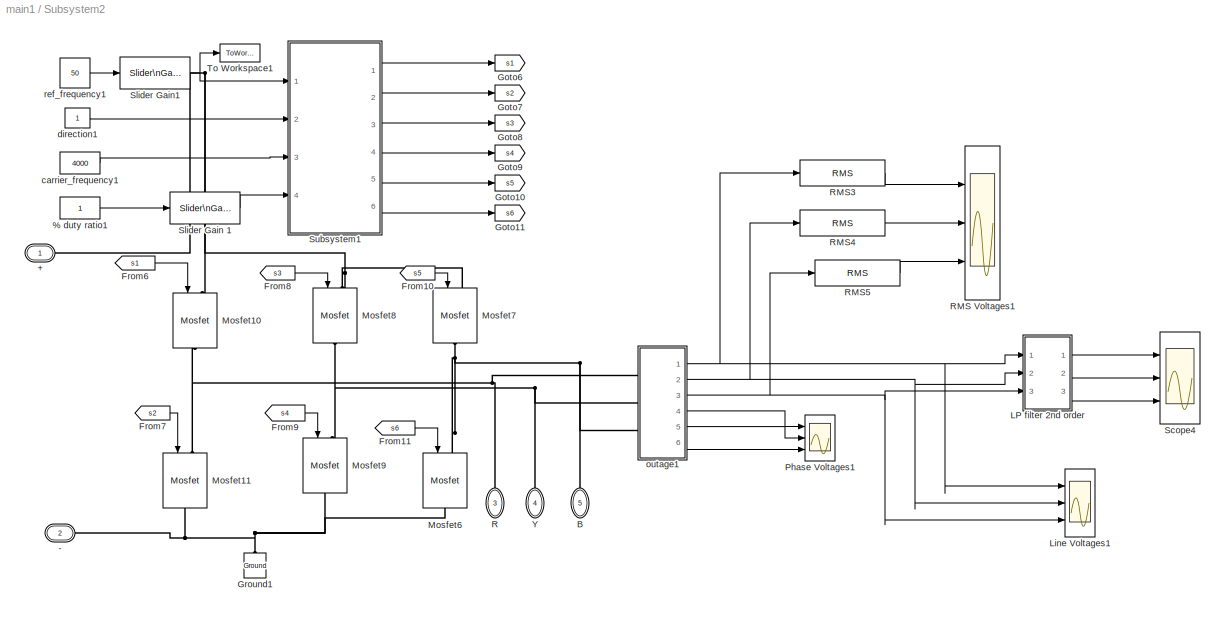
BLOCK [SubSystem] Subsystem2
  Ports = [0, 0, 0, 0, 0, 2, 3]
  RequestExecContextInheritance = off
  SID = 51
BLOCK [Constant] Subsystem2/% duty ratio1
  SID = 52
BLOCK [PMIOPort] Subsystem2/+
  SID = 182
  Side = Left
  Tag = PMCPort
BLOCK [PMIOPort] Subsystem2/-
  Port = 2
  SID = 183
  Side = Left
  Tag = PMCPort
BLOCK [PMIOPort] Subsystem2/B
  Port = 5
  SID = 186
  Side = Right
  Tag = PMCPort
BLOCK [From] Subsystem2/From10
  CloseFcn = tagdialog Close
  GotoTag = s5
  SID = 53
BLOCK [From] Subsystem2/From11
  CloseFcn = tagdialog Close
  GotoTag = s6
  SID = 54
BLOCK [From] Subsystem2/From6
  CloseFcn = tagdialog Close
  GotoTag = s1
  SID = 55
BLOCK [From] Subsystem2/From7
  CloseFcn = tagdialog Close
  GotoTag = s2
  SID = 56
BLOCK [From] Subsystem2/From8
  CloseFcn = tagdialog Close
  GotoTag = s3
  SID = 57
BLOCK [From] Subsystem2/From9
  CloseFcn = tagdialog Close
  GotoTag = s4
  SID = 58
BLOCK [Goto] Subsystem2/Goto10
  GotoTag = s5
  SID = 59
BLOCK [Goto] Subsystem2/Goto11
  GotoTag = s6
  SID = 60
BLOCK [Goto] Subsystem2/Goto6
  GotoTag = s1
  SID = 61
BLOCK [Goto] Subsystem2/Goto7
  GotoTag = s2
  SID = 62
BLOCK [Goto] Subsystem2/Goto8
  GotoTag = s3
  SID = 63
BLOCK [Goto] Subsystem2/Goto9
  GotoTag = s4
  SID = 64
BLOCK [Reference] Subsystem2/Ground1  REF=powerlib/Elements/Ground
  LConnTagsString = a
  LeftPortType = p1
  PhysicalDomain = powersysdomain
  Ports = [0, 0, 0, 0, 0, 1]
  RightPortType = p1
  SID = 65
  SourceBlock = powerlib/Elements/Ground
  SourceProductBaseCode = PS
  SourceProductName = Simscape Electrical
  SourceType = Ground
  SubClassName = unknown
BLOCK [SubSystem] Subsystem2/LP filter 2nd order
  Ports = [3, 3]
  RequestExecContextInheritance = off
  SID = 66
BLOCK [Reference] Subsystem2/LP filter 2nd order/2nd-Order\nFilter  REF=powerlib_extras/Control \nBlocks/2nd-Order\nFilter
  FilterType = Lowpass
  Fo = cutoff_frequency
  FunctionWithSeparateData = off
  Initialize = off
  PlotResponse = off
  Ports = [1, 1]
  RTWMemSecDataConstants = Inherit from model
  RTWMemSecDataInternal = Inherit from model
  RTWMemSecDataParameters = Inherit from model
  RTWMemSecFuncExecute = Inherit from model
  RTWMemSecFuncInitTerm = Inherit from model
  SID = 70
  ShowPortLabels = FromPortIcon
  SourceBlock = powerlib_extras/Control \nBlocks/2nd-Order\nFilter
  SourceProductBaseCode = PS
  SourceProductName = Simscape Electrical
  SourceType = 2nd-Order Filter
  SystemSampleTime = -1
  Vac_Init = [1 45 60]
  Vdc_Init = -0.5
  Zeta = damping_factor
  param1 = [1 500 1]
BLOCK [Reference] Subsystem2/LP filter 2nd order/2nd-Order\nFilter1  REF=powerlib_extras/Control \nBlocks/2nd-Order\nFilter
  FilterType = Lowpass
  Fo = cutoff_frequency
  FunctionWithSeparateData = off
  Initialize = off
  PlotResponse = off
  Ports = [1, 1]
  RTWMemSecDataConstants = Inherit from model
  RTWMemSecDataInternal = Inherit from model
  RTWMemSecDataParameters = Inherit from model
  RTWMemSecFuncExecute = Inherit from model
  RTWMemSecFuncInitTerm = Inherit from model
  SID = 71
  ShowPortLabels = FromPortIcon
  SourceBlock = powerlib_extras/Control \nBlocks/2nd-Order\nFilter
  SourceProductBaseCode = PS
  SourceProductName = Simscape Electrical
  SourceType = 2nd-Order Filter
  SystemSampleTime = -1
  Vac_Init = [1 45 60]
  Vdc_Init = -0.5
  Zeta = damping_factor
  param1 = [1 500 1]
BLOCK [Reference] Subsystem2/LP filter 2nd order/2nd-Order\nFilter2  REF=powerlib_extras/Control \nBlocks/2nd-Order\nFilter
  FilterType = Lowpass
  Fo = cutoff_frequency
  FunctionWithSeparateData = off
  Initialize = off
  PlotResponse = off
  Ports = [1, 1]
  RTWMemSecDataConstants = Inherit from model
  RTWMemSecDataInternal = Inherit from model
  RTWMemSecDataParameters = Inherit from model
  RTWMemSecFuncExecute = Inherit from model
  RTWMemSecFuncInitTerm = Inherit from model
  SID = 72
  ShowPortLabels = FromPortIcon
  SourceBlock = powerlib_extras/Control \nBlocks/2nd-Order\nFilter
  SourceProductBaseCode = PS
  SourceProductName = Simscape Electrical
  SourceType = 2nd-Order Filter
  SystemSampleTime = -1
  Vac_Init = [1 45 60]
  Vdc_Init = -0.5
  Zeta = damping_factor
  param1 = [1 500 1]
BLOCK [Outport] Subsystem2/LP filter 2nd order/A
  IconDisplay = Port number
  SID = 73
BLOCK [Outport] Subsystem2/LP filter 2nd order/B
  IconDisplay = Port number
  Port = 2
  SID = 74
BLOCK [Outport] Subsystem2/LP filter 2nd order/C
  IconDisplay = Port number
  Port = 3
  SID = 75
BLOCK [Inport] Subsystem2/LP filter 2nd order/a
  IconDisplay = Port number
  SID = 67
BLOCK [Inport] Subsystem2/LP filter 2nd order/b
  IconDisplay = Port number
  Port = 2
  SID = 68
BLOCK [Inport] Subsystem2/LP filter 2nd order/c
  IconDisplay = Port number
  Port = 3
  SID = 69
BLOCK [Scope] Subsystem2/Line Voltages1
  Floating = off
  NumInputPorts = 3
  Ports = [3]
  SID = 76
  ScopeSpecificationString = C++SS(StrPVP('Location','[387, 199, 1008, 691]'),StrPVP('Open','off'),StrPVP('ZoomMode','xonly'),MxPVP('AxesTitles',54,'struct(''axes1'',''Va'',''axes2'',''Vb'',''axes3'',''Vc'')'),StrPVP('TimeRange','0.1'),StrPVP('YMin','-1250~-1250~-100'),StrPVP('YMax','1250~1250~1100'),StrPVP('SaveName','Line_voltages1'),StrPVP('DataFormat','StructureWithTime'),StrPVP('MaxDataPoints','50000'),StrPVP('BlockParam...<+113ch>
BLOCK [Reference] Subsystem2/Mosfet10  REF=powerlib/Power\nElectronics/Mosfet
  Cs = inf
  FunctionWithSeparateData = off
  IC = 0
  Lon = 0
  Measurements = off
  Ports = [1, 0, 0, 0, 0, 1, 1]
  RTWMemSecDataConstants = Inherit from model
  RTWMemSecDataInternal = Inherit from model
  RTWMemSecDataParameters = Inherit from model
  RTWMemSecFuncExecute = Inherit from model
  RTWMemSecFuncInitTerm = Inherit from model
  Rd = 0.01
  Ron = 0.1
  Rs = 1e5
  SID = 77
  ShowPortLabels = FromPortIcon
  SourceBlock = powerlib/Power\nElectronics/Mosfet
  SourceProductBaseCode = PS
  SourceProductName = Simscape Electrical
  SourceType = Mosfet
  SystemSampleTime = -1
  Vfd = 0
BLOCK [Reference] Subsystem2/Mosfet11  REF=powerlib/Power\nElectronics/Mosfet
  Cs = inf
  FunctionWithSeparateData = off
  IC = 0
  Lon = 0
  Measurements = off
  Ports = [1, 0, 0, 0, 0, 1, 1]
  RTWMemSecDataConstants = Inherit from model
  RTWMemSecDataInternal = Inherit from model
  RTWMemSecDataParameters = Inherit from model
  RTWMemSecFuncExecute = Inherit from model
  RTWMemSecFuncInitTerm = Inherit from model
  Rd = 0.01
  Ron = 0.1
  Rs = 1e5
  SID = 78
  ShowPortLabels = FromPortIcon
  SourceBlock = powerlib/Power\nElectronics/Mosfet
  SourceProductBaseCode = PS
  SourceProductName = Simscape Electrical
  SourceType = Mosfet
  SystemSampleTime = -1
  Vfd = 0
BLOCK [Reference] Subsystem2/Mosfet6  REF=powerlib/Power\nElectronics/Mosfet
  Cs = inf
  FunctionWithSeparateData = off
  IC = 0
  Lon = 0
  Measurements = off
  Ports = [1, 0, 0, 0, 0, 1, 1]
  RTWMemSecDataConstants = Inherit from model
  RTWMemSecDataInternal = Inherit from model
  RTWMemSecDataParameters = Inherit from model
  RTWMemSecFuncExecute = Inherit from model
  RTWMemSecFuncInitTerm = Inherit from model
  Rd = 0.01
  Ron = 0.1
  Rs = 1e5
  SID = 79
  ShowPortLabels = FromPortIcon
  SourceBlock = powerlib/Power\nElectronics/Mosfet
  SourceProductBaseCode = PS
  SourceProductName = Simscape Electrical
  SourceType = Mosfet
  SystemSampleTime = -1
  Vfd = 0
BLOCK [Reference] Subsystem2/Mosfet7  REF=powerlib/Power\nElectronics/Mosfet
  Cs = inf
  FunctionWithSeparateData = off
  IC = 0
  Lon = 0
  Measurements = off
  Ports = [1, 0, 0, 0, 0, 1, 1]
  RTWMemSecDataConstants = Inherit from model
  RTWMemSecDataInternal = Inherit from model
  RTWMemSecDataParameters = Inherit from model
  RTWMemSecFuncExecute = Inherit from model
  RTWMemSecFuncInitTerm = Inherit from model
  Rd = 0.01
  Ron = 0.1
  Rs = 1e5
  SID = 80
  ShowPortLabels = FromPortIcon
  SourceBlock = powerlib/Power\nElectronics/Mosfet
  SourceProductBaseCode = PS
  SourceProductName = Simscape Electrical
  SourceType = Mosfet
  SystemSampleTime = -1
  Vfd = 0
BLOCK [Reference] Subsystem2/Mosfet8  REF=powerlib/Power\nElectronics/Mosfet
  Cs = inf
  FunctionWithSeparateData = off
  IC = 0
  Lon = 0
  Measurements = off
  Ports = [1, 0, 0, 0, 0, 1, 1]
  RTWMemSecDataConstants = Inherit from model
  RTWMemSecDataInternal = Inherit from model
  RTWMemSecDataParameters = Inherit from model
  RTWMemSecFuncExecute = Inherit from model
  RTWMemSecFuncInitTerm = Inherit from model
  Rd = 0.01
  Ron = 0.1
  Rs = 1e5
  SID = 81
  ShowPortLabels = FromPortIcon
  SourceBlock = powerlib/Power\nElectronics/Mosfet
  SourceProductBaseCode = PS
  SourceProductName = Simscape Electrical
  SourceType = Mosfet
  SystemSampleTime = -1
  Vfd = 0
BLOCK [Reference] Subsystem2/Mosfet9  REF=powerlib/Power\nElectronics/Mosfet
  Cs = inf
  FunctionWithSeparateData = off
  IC = 0
  Lon = 0
  Measurements = off
  Ports = [1, 0, 0, 0, 0, 1, 1]
  RTWMemSecDataConstants = Inherit from model
  RTWMemSecDataInternal = Inherit from model
  RTWMemSecDataParameters = Inherit from model
  RTWMemSecFuncExecute = Inherit from model
  RTWMemSecFuncInitTerm = Inherit from model
  Rd = 0.01
  Ron = 0.1
  Rs = 1e5
  SID = 82
  ShowPortLabels = FromPortIcon
  SourceBlock = powerlib/Power\nElectronics/Mosfet
  SourceProductBaseCode = PS
  SourceProductName = Simscape Electrical
  SourceType = Mosfet
  SystemSampleTime = -1
  Vfd = 0
BLOCK [Scope] Subsystem2/Phase Voltages1
  Floating = off
  NumInputPorts = 3
  Ports = [3]
  SID = 83
  ScopeSpecificationString = C++SS(StrPVP('Location','[5, 48, 1371, 727]'),StrPVP('Open','off'),StrPVP('ZoomMode','xonly'),MxPVP('AxesTitles',54,'struct(''axes1'',''%<SignalLabel>'',''axes2'',''%<SignalLabel>'',''axes3'',''%<SignalLabel>'')'),StrPVP('TimeRange','0.1'),StrPVP('YMin','-300~-300~-300'),StrPVP('YMax','300~300~300'),StrPVP('SaveName','Neutral_voltages2'),StrPVP('DataFormat','StructureWithTime'),StrPVP('MaxDataPoin...<+144ch>
BLOCK [PMIOPort] Subsystem2/R
  Port = 3
  SID = 184
  Side = Right
  Tag = PMCPort
BLOCK [Scope] Subsystem2/RMS Voltages1
  Floating = off
  NumInputPorts = 3
  Ports = [3]
  SID = 84
  ScopeSpecificationString = C++SS(StrPVP('Location','[5, 48, 1371, 727]'),StrPVP('Open','off'),StrPVP('ZoomMode','xonly'),MxPVP('AxesTitles',54,'struct(''axes1'',''%<SignalLabel>'',''axes2'',''%<SignalLabel>'',''axes3'',''%<SignalLabel>'')'),StrPVP('TimeRange','0.1'),StrPVP('YMin','438.25~396.75~418.75'),StrPVP('YMax','440.75~399.5~421.5'),StrPVP('SaveName','Neutral_voltages3'),StrPVP('DataFormat','StructureWithTime'),StrPVP...<+157ch>
BLOCK [Reference] Subsystem2/RMS3  REF=powerlib_extras/Measurements/RMS
  FunctionWithSeparateData = off
  Ports = [1, 1]
  RTWMemSecDataConstants = Inherit from model
  RTWMemSecDataInternal = Inherit from model
  RTWMemSecDataParameters = Inherit from model
  RTWMemSecFuncExecute = Inherit from model
  RTWMemSecFuncInitTerm = Inherit from model
  SID = 85
  ShowPortLabels = FromPortIcon
  SourceBlock = powerlib_extras/Measurements/RMS
  SourceProductBaseCode = PS
  SourceProductName = Simscape Electrical
  SourceType = RMS
  SystemSampleTime = -1
  f1 = 60
BLOCK [Reference] Subsystem2/RMS4  REF=powerlib_extras/Measurements/RMS
  FunctionWithSeparateData = off
  Ports = [1, 1]
  RTWMemSecDataConstants = Inherit from model
  RTWMemSecDataInternal = Inherit from model
  RTWMemSecDataParameters = Inherit from model
  RTWMemSecFuncExecute = Inherit from model
  RTWMemSecFuncInitTerm = Inherit from model
  SID = 86
  ShowPortLabels = FromPortIcon
  SourceBlock = powerlib_extras/Measurements/RMS
  SourceProductBaseCode = PS
  SourceProductName = Simscape Electrical
  SourceType = RMS
  SystemSampleTime = -1
  f1 = 60
BLOCK [Reference] Subsystem2/RMS5  REF=powerlib_extras/Measurements/RMS
  FunctionWithSeparateData = off
  Ports = [1, 1]
  RTWMemSecDataConstants = Inherit from model
  RTWMemSecDataInternal = Inherit from model
  RTWMemSecDataParameters = Inherit from model
  RTWMemSecFuncExecute = Inherit from model
  RTWMemSecFuncInitTerm = Inherit from model
  SID = 87
  ShowPortLabels = FromPortIcon
  SourceBlock = powerlib_extras/Measurements/RMS
  SourceProductBaseCode = PS
  SourceProductName = Simscape Electrical
  SourceType = RMS
  SystemSampleTime = -1
  f1 = 60
BLOCK [Scope] Subsystem2/Scope4
  Floating = off
  NumInputPorts = 3
  Ports = [3]
  SID = 88
  ScopeSpecificationString = C++SS(StrPVP('Location','[6, 43, 1026, 758]'),StrPVP('Open','off'),StrPVP('ZoomMode','xonly'),MxPVP('AxesTitles',54,'struct(''axes1'',''%<SignalLabel>'',''axes2'',''%<SignalLabel>'',''axes3'',''%<SignalLabel>'')'),StrPVP('TimeRange','0.1'),StrPVP('YMin','-1.45~-5.92~6.2'),StrPVP('YMax','-0.5~-5.75~7.3'),StrPVP('SaveToWorkspace','on'),StrPVP('SaveName','Filtered_voltages'),StrPVP('DataFormat','Stru...<+182ch>
BLOCK [Reference] Subsystem2/Slider Gain  1  REF=simulink/Math\nOperations/Slider\nGain
  FunctionWithSeparateData = off
  Ports = [1, 1]
  RTWMemSecDataConstants = Inherit from model
  RTWMemSecDataInternal = Inherit from model
  RTWMemSecDataParameters = Inherit from model
  RTWMemSecFuncExecute = Inherit from model
  RTWMemSecFuncInitTerm = Inherit from model
  SID = 89
  ShowPortLabels = FromPortIcon
  SourceBlock = simulink/Math\nOperations/Slider\nGain
  SourceProductBaseCode = SL
  SourceProductName = Simulink
  SourceType = Slider Gain
  SystemSampleTime = -1
  gain = 44.7005
  high = 100
  low = 0
BLOCK [Reference] Subsystem2/Slider Gain1  REF=simulink/Math\nOperations/Slider\nGain
  FunctionWithSeparateData = off
  Ports = [1, 1]
  RTWMemSecDataConstants = Inherit from model
  RTWMemSecDataInternal = Inherit from model
  RTWMemSecDataParameters = Inherit from model
  RTWMemSecFuncExecute = Inherit from model
  RTWMemSecFuncInitTerm = Inherit from model
  SID = 90
  ShowPortLabels = FromPortIcon
  SourceBlock = simulink/Math\nOperations/Slider\nGain
  SourceProductBaseCode = SL
  SourceProductName = Simulink
  SourceType = Slider Gain
  SystemSampleTime = -1
  gain = 1
  high = 4
  low = 0
BLOCK [SubSystem] Subsystem2/Subsystem1
  Ports = [4, 6]
  RequestExecContextInheritance = off
  SID = 91
BLOCK [SubSystem] Subsystem2/Subsystem1/Angle_generator
  Ports = [1, 1]
  RequestExecContextInheritance = off
  SID = 96
BLOCK [Constant] Subsystem2/Subsystem1/Angle_generator/Constant
  SID = 98
  Value = 360
BLOCK [Constant] Subsystem2/Subsystem1/Angle_generator/Constant1
  SID = 99
  Value = 360
BLOCK [DiscreteIntegrator] Subsystem2/Subsystem1/Angle_generator/Discrete-Time\nIntegrator1
  ExternalReset = rising
  ICPrevOutput = DiscIntNeverNeededParam
  ICPrevScaledInput = DiscIntNeverNeededParam
  IntegratorMethod = Integration: Trapezoidal
  Ports = [2, 1]
  SID = 100
  SampleTime = 5e-6
BLOCK [Product] Subsystem2/Subsystem1/Angle_generator/Product
  Ports = [2, 1]
  RndMeth = Floor
  SID = 101
BLOCK [RelationalOperator] Subsystem2/Subsystem1/Angle_generator/Relational\nOperator
  Ports = [2, 1]
  SID = 102
BLOCK [UnitDelay] Subsystem2/Subsystem1/Angle_generator/Unit Delay
  SID = 103
  SampleTime = 5e-6
BLOCK [Inport] Subsystem2/Subsystem1/Angle_generator/freq_inp
  IconDisplay = Port number
  SID = 97
BLOCK [Outport] Subsystem2/Subsystem1/Angle_generator/ramp_out
  IconDisplay = Port number
  SID = 104
BLOCK [Demux] Subsystem2/Subsystem1/Demux
  DisplayOption = bar
  Outputs = 6
  Ports = [1, 6]
  SID = 105
BLOCK [Logic] Subsystem2/Subsystem1/Logical\nOperator
  AllPortsSameDT = off
  OutDataTypeStr = boolean
  Ports = [2, 1]
  SID = 106
BLOCK [SubSystem] Subsystem2/Subsystem1/PQ
  Ports = [2, 1]
  RequestExecContextInheritance = off
  SID = 107
BLOCK [Inport] Subsystem2/Subsystem1/PQ/%duty_ratio
  IconDisplay = Port number
  Port = 2
  SID = 109
BLOCK [SubSystem] Subsystem2/Subsystem1/PQ/Angle_generator1
  Ports = [1, 1]
  RequestExecContextInheritance = off
  SID = 110
BLOCK [Constant] Subsystem2/Subsystem1/PQ/Angle_generator1/Constant
  SID = 112
  Value = 360
BLOCK [Constant] Subsystem2/Subsystem1/PQ/Angle_generator1/Constant1
  SID = 113
  Value = 360
BLOCK [DiscreteIntegrator] Subsystem2/Subsystem1/PQ/Angle_generator1/Discrete-Time\nIntegrator1
  ExternalReset = rising
  ICPrevOutput = DiscIntNeverNeededParam
  ICPrevScaledInput = DiscIntNeverNeededParam
  IntegratorMethod = Integration: Trapezoidal
  Ports = [2, 1]
  SID = 114
  SampleTime = 5e-6
BLOCK [Product] Subsystem2/Subsystem1/PQ/Angle_generator1/Product
  Ports = [2, 1]
  RndMeth = Floor
  SID = 115
BLOCK [RelationalOperator] Subsystem2/Subsystem1/PQ/Angle_generator1/Relational\nOperator
  Ports = [2, 1]
  SID = 116
BLOCK [UnitDelay] Subsystem2/Subsystem1/PQ/Angle_generator1/Unit Delay
  SID = 117
  SampleTime = 5e-6
BLOCK [Inport] Subsystem2/Subsystem1/PQ/Angle_generator1/freq_inp
  IconDisplay = Port number
  SID = 111
BLOCK [Outport] Subsystem2/Subsystem1/PQ/Angle_generator1/ramp_out
  IconDisplay = Port number
  SID = 118
BLOCK [Gain] Subsystem2/Subsystem1/PQ/Gain
  Gain = 0.01*360
  OutDataTypeStr = Inherit: Inherit via internal rule
  ParamDataTypeStr = Inherit: Inherit via internal rule
  SID = 119
  SaturateOnIntegerOverflow = off
BLOCK [Outport] Subsystem2/Subsystem1/PQ/PWM_signal
  IconDisplay = Port number
  SID = 121
BLOCK [RelationalOperator] Subsystem2/Subsystem1/PQ/Relational\nOperator1
  Ports = [2, 1]
  SID = 120
BLOCK [Inport] Subsystem2/Subsystem1/PQ/carrier_frequency
  IconDisplay = Port number
  SID = 108
BLOCK [SubSystem] Subsystem2/Subsystem1/VF
  Ports = [2, 1]
  RequestExecContextInheritance = off
  SID = 122
BLOCK [Constant] Subsystem2/Subsystem1/VF/Constant2
  SID = 125
  Value = 0
BLOCK [Constant] Subsystem2/Subsystem1/VF/Constant3
  SID = 126
  Value = 180
BLOCK [Constant] Subsystem2/Subsystem1/VF/Constant4
  SID = 127
  Value = 120
BLOCK [Constant] Subsystem2/Subsystem1/VF/Constant5
  SID = 128
  Value = 300
BLOCK [Constant] Subsystem2/Subsystem1/VF/Constant6
  SID = 129
  Value = 60
BLOCK [Constant] Subsystem2/Subsystem1/VF/Constant7
  SID = 130
  Value = 240
BLOCK [Logic] Subsystem2/Subsystem1/VF/Logical\nOperator
  Ports = [2, 1]
  SID = 131
BLOCK [Logic] Subsystem2/Subsystem1/VF/Logical\nOperator1
  Ports = [2, 1]
  SID = 132
BLOCK [Logic] Subsystem2/Subsystem1/VF/Logical\nOperator2
  Ports = [2, 1]
  SID = 133
BLOCK [Logic] Subsystem2/Subsystem1/VF/Logical\nOperator3
  Operator = NOT
  Ports = [1, 1]
  SID = 134
BLOCK [Logic] Subsystem2/Subsystem1/VF/Logical\nOperator4
  Operator = NOT
  Ports = [1, 1]
  SID = 135
BLOCK [Logic] Subsystem2/Subsystem1/VF/Logical\nOperator5
  Operator = NOT
  Ports = [1, 1]
  SID = 136
BLOCK [Mux] Subsystem2/Subsystem1/VF/Mux
  DisplayOption = bar
  Inputs = 6
  Ports = [6, 1]
  SID = 137
BLOCK [RelationalOperator] Subsystem2/Subsystem1/VF/Relational\nOperator1
  Ports = [2, 1]
  SID = 138
BLOCK [RelationalOperator] Subsystem2/Subsystem1/VF/Relational\nOperator2
  Operator = <
  Ports = [2, 1]
  SID = 139
BLOCK [RelationalOperator] Subsystem2/Subsystem1/VF/Relational\nOperator3
  Ports = [2, 1]
  SID = 140
BLOCK [RelationalOperator] Subsystem2/Subsystem1/VF/Relational\nOperator4
  Operator = <
  Ports = [2, 1]
  SID = 141
BLOCK [RelationalOperator] Subsystem2/Subsystem1/VF/Relational\nOperator5
  Ports = [2, 1]
  SID = 142
BLOCK [RelationalOperator] Subsystem2/Subsystem1/VF/Relational\nOperator6
  Operator = <
  Ports = [2, 1]
  SID = 143
BLOCK [Switch] Subsystem2/Subsystem1/VF/Switch
  SID = 144
  Threshold = 0.5
BLOCK [Switch] Subsystem2/Subsystem1/VF/Switch1
  SID = 145
  Threshold = 0.5
BLOCK [Inport] Subsystem2/Subsystem1/VF/dir
  IconDisplay = Port number
  Port = 2
  SID = 124
BLOCK [Outport] Subsystem2/Subsystem1/VF/gate_logic
  IconDisplay = Port number
  SID = 146
BLOCK [Inport] Subsystem2/Subsystem1/VF/ramp_inp
  IconDisplay = Port number
  SID = 123
BLOCK [Inport] Subsystem2/Subsystem1/carrier_frequency
  IconDisplay = Port number
  Port = 3
  SID = 94
BLOCK [Inport] Subsystem2/Subsystem1/direction
  IconDisplay = Port number
  Port = 2
  SID = 93
BLOCK [Inport] Subsystem2/Subsystem1/duty_ratio
  IconDisplay = Port number
  Port = 4
  SID = 95
BLOCK [Inport] Subsystem2/Subsystem1/ref_frequency
  IconDisplay = Port number
  SID = 92
BLOCK [Outport] Subsystem2/Subsystem1/s1
  IconDisplay = Port number
  SID = 147
BLOCK [Outport] Subsystem2/Subsystem1/s2
  IconDisplay = Port number
  Port = 2
  SID = 148
BLOCK [Outport] Subsystem2/Subsystem1/s3
  IconDisplay = Port number
  Port = 3
  SID = 149
BLOCK [Outport] Subsystem2/Subsystem1/s4
  IconDisplay = Port number
  Port = 4
  SID = 150
BLOCK [Outport] Subsystem2/Subsystem1/s5
  IconDisplay = Port number
  Port = 5
  SID = 151
BLOCK [Outport] Subsystem2/Subsystem1/s6
  IconDisplay = Port number
  Port = 6
  SID = 152
BLOCK [ToWorkspace] Subsystem2/To Workspace1
  MaxDataPoints = inf
  Ports = [1]
  SID = 153
  SampleTime = -1
  SaveFormat = Structure
  VariableName = fr1
BLOCK [PMIOPort] Subsystem2/Y
  Port = 4
  SID = 185
  Side = Right
  Tag = PMCPort
BLOCK [Constant] Subsystem2/carrier_frequency1
  SID = 154
  Value = 4000
BLOCK [Constant] Subsystem2/direction1
  SID = 155
BLOCK [SubSystem] Subsystem2/outage1
  Ports = [0, 6, 0, 0, 0, 3]
  RequestExecContextInheritance = off
  SID = 156
BLOCK [PMIOPort] Subsystem2/outage1/A
  SID = 172
  Side = Left
BLOCK [PMIOPort] Subsystem2/outage1/B
  Port = 2
  SID = 173
  Side = Left
BLOCK [PMIOPort] Subsystem2/outage1/C
  Port = 3
  SID = 174
  Side = Left
BLOCK [Reference] Subsystem2/outage1/Current Measueent1  REF=powerlib/Measurements/Current Measurement
  FunctionWithSeparateData = off
  OutputType = Complex
  PSBequivalent = 0
  PhasorSimulation = off
  Ports = [0, 1, 0, 0, 0, 1, 1]
  RTWMemSecDataConstants = Inherit from model
  RTWMemSecDataInternal = Inherit from model
  RTWMemSecDataParameters = Inherit from model
  RTWMemSecFuncExecute = Inherit from model
  RTWMemSecFuncInitTerm = Inherit from model
  SID = 157
  ShowPortLabels = FromPortIcon
  SourceBlock = powerlib/Measurements/Current Measurement
  SourceProductBaseCode = PS
  SourceProductName = Simscape Electrical
  SourceType = Current Measurement
  SystemSampleTime = -1
BLOCK [Reference] Subsystem2/outage1/Current Measueent2  REF=powerlib/Measurements/Current Measurement
  FunctionWithSeparateData = off
  OutputType = Complex
  PSBequivalent = 0
  PhasorSimulation = off
  Ports = [0, 1, 0, 0, 0, 1, 1]
  RTWMemSecDataConstants = Inherit from model
  RTWMemSecDataInternal = Inherit from model
  RTWMemSecDataParameters = Inherit from model
  RTWMemSecFuncExecute = Inherit from model
  RTWMemSecFuncInitTerm = Inherit from model
  SID = 158
  ShowPortLabels = FromPortIcon
  SourceBlock = powerlib/Measurements/Current Measurement
  SourceProductBaseCode = PS
  SourceProductName = Simscape Electrical
  SourceType = Current Measurement
  SystemSampleTime = -1
BLOCK [Reference] Subsystem2/outage1/Current Measueent3  REF=powerlib/Measurements/Current Measurement
  FunctionWithSeparateData = off
  OutputType = Complex
  PSBequivalent = 0
  PhasorSimulation = off
  Ports = [0, 1, 0, 0, 0, 1, 1]
  RTWMemSecDataConstants = Inherit from model
  RTWMemSecDataInternal = Inherit from model
  RTWMemSecDataParameters = Inherit from model
  RTWMemSecFuncExecute = Inherit from model
  RTWMemSecFuncInitTerm = Inherit from model
  SID = 159
  ShowPortLabels = FromPortIcon
  SourceBlock = powerlib/Measurements/Current Measurement
  SourceProductBaseCode = PS
  SourceProductName = Simscape Electrical
  SourceType = Current Measurement
  SystemSampleTime = -1
BLOCK [Gain] Subsystem2/outage1/Gain1
  Gain = 1/3
  OutDataTypeStr = Inherit: Inherit via internal rule
  ParamDataTypeStr = Inherit: Inherit via internal rule
  SID = 160
  SaturateOnIntegerOverflow = off
BLOCK [Gain] Subsystem2/outage1/Gain2
  Gain = 1/3
  OutDataTypeStr = Inherit: Inherit via internal rule
  ParamDataTypeStr = Inherit: Inherit via internal rule
  SID = 161
  SaturateOnIntegerOverflow = off
BLOCK [Gain] Subsystem2/outage1/Gain3
  Gain = 1/3
  OutDataTypeStr = Inherit: Inherit via internal rule
  ParamDataTypeStr = Inherit: Inherit via internal rule
  SID = 162
  SaturateOnIntegerOverflow = off
BLOCK [Sum] Subsystem2/outage1/Subtract
  InputSameDT = off
  Inputs = -+
  OutDataTypeStr = Inherit: Inherit via internal rule
  Ports = [2, 1]
  SID = 163
  SaturateOnIntegerOverflow = off
BLOCK [Sum] Subsystem2/outage1/Subtract1
  InputSameDT = off
  Inputs = -+
  OutDataTypeStr = Inherit: Inherit via internal rule
  Ports = [2, 1]
  SID = 164
  SaturateOnIntegerOverflow = off
BLOCK [Sum] Subsystem2/outage1/Subtract2
  InputSameDT = off
  Inputs = +-
  OutDataTypeStr = Inherit: Inherit via internal rule
  Ports = [2, 1]
  SID = 165
  SaturateOnIntegerOverflow = off
BLOCK [Outport] Subsystem2/outage1/Va
  IconDisplay = Port number
  SID = 175
BLOCK [Outport] Subsystem2/outage1/Van
  IconDisplay = Port number
  Port = 4
  SID = 178
BLOCK [Outport] Subsystem2/outage1/Vb
  IconDisplay = Port number
  Port = 2
  SID = 176
BLOCK [Outport] Subsystem2/outage1/Vbn
  IconDisplay = Port number
  Port = 5
  SID = 179
BLOCK [Outport] Subsystem2/outage1/Vc
  IconDisplay = Port number
  Port = 3
  SID = 177
BLOCK [Outport] Subsystem2/outage1/Vcn
  IconDisplay = Port number
  Port = 6
  SID = 180
BLOCK [Reference] Subsystem2/outage1/Voltage Measurement1  REF=powerlib/Measurements/Voltage Measurement
  FunctionWithSeparateData = off
  OutputType = Complex
  PSBequivalent = 0
  PhasorSimulation = off
  Ports = [0, 1, 0, 0, 0, 2]
  RTWMemSecDataConstants = Inherit from model
  RTWMemSecDataInternal = Inherit from model
  RTWMemSecDataParameters = Inherit from model
  RTWMemSecFuncExecute = Inherit from model
  RTWMemSecFuncInitTerm = Inherit from model
  SID = 166
  ShowPortLabels = FromPortIcon
  SourceBlock = powerlib/Measurements/Voltage Measurement
  SourceProductBaseCode = PS
  SourceProductName = Simscape Electrical
  SourceType = Voltage Measurement
  SystemSampleTime = -1
BLOCK [Reference] Subsystem2/outage1/Voltage Measurement2  REF=powerlib/Measurements/Voltage Measurement
  FunctionWithSeparateData = off
  OutputType = Complex
  PSBequivalent = 0
  PhasorSimulation = off
  Ports = [0, 1, 0, 0, 0, 2]
  RTWMemSecDataConstants = Inherit from model
  RTWMemSecDataInternal = Inherit from model
  RTWMemSecDataParameters = Inherit from model
  RTWMemSecFuncExecute = Inherit from model
  RTWMemSecFuncInitTerm = Inherit from model
  SID = 167
  ShowPortLabels = FromPortIcon
  SourceBlock = powerlib/Measurements/Voltage Measurement
  SourceProductBaseCode = PS
  SourceProductName = Simscape Electrical
  SourceType = Voltage Measurement
  SystemSampleTime = -1
BLOCK [Reference] Subsystem2/outage1/Voltage Measurement3  REF=powerlib/Measurements/Voltage Measurement
  FunctionWithSeparateData = off
  OutputType = Complex
  PSBequivalent = 0
  PhasorSimulation = off
  Ports = [0, 1, 0, 0, 0, 2]
  RTWMemSecDataConstants = Inherit from model
  RTWMemSecDataInternal = Inherit from model
  RTWMemSecDataParameters = Inherit from model
  RTWMemSecFuncExecute = Inherit from model
  RTWMemSecFuncInitTerm = Inherit from model
  SID = 168
  ShowPortLabels = FromPortIcon
  SourceBlock = powerlib/Measurements/Voltage Measurement
  SourceProductBaseCode = PS
  SourceProductName = Simscape Electrical
  SourceType = Voltage Measurement
  SystemSampleTime = -1
BLOCK [Scope] Subsystem2/outage1/v1
  Floating = off
  NumInputPorts = 1
  Ports = [1]
  SID = 169
  ScopeSpecificationString = C++SS(StrPVP('Location','[6, 56, 1034, 761]'),StrPVP('Open','off'),MxPVP('AxesTitles',54,'struct(''axes1'',''%<SignalLabel>'')'),StrPVP('SaveName','ScopeData25'),StrPVP('DataFormat','StructureWithTime'),StrPVP('MaxDataPoints','5000000'),StrPVP('BlockParamSampleTime','0'),StrPVP('LimitDataPoints','on'),StrPVP('Decimation','1'),StrPVP('BlockParamSampleInput','off'))
BLOCK [Scope] Subsystem2/outage1/v2
  Floating = off
  NumInputPorts = 1
  Ports = [1]
  SID = 170
  ScopeSpecificationString = C++SS(StrPVP('Location','[6, 56, 1034, 761]'),StrPVP('Open','off'),MxPVP('AxesTitles',54,'struct(''axes1'',''%<SignalLabel>'')'),StrPVP('SaveName','ScopeData26'),StrPVP('DataFormat','StructureWithTime'),StrPVP('MaxDataPoints','5000000'),StrPVP('BlockParamSampleTime','0'),StrPVP('LimitDataPoints','on'),StrPVP('Decimation','1'),StrPVP('BlockParamSampleInput','off'))
BLOCK [Scope] Subsystem2/outage1/v3
  Floating = off
  NumInputPorts = 1
  Ports = [1]
  SID = 171
  ScopeSpecificationString = C++SS(StrPVP('Location','[6, 56, 1278, 761]'),StrPVP('Open','off'),MxPVP('AxesTitles',54,'struct(''axes1'',''%<SignalLabel>'')'),StrPVP('YMin','-300'),StrPVP('YMax','300'),StrPVP('SaveName','ScopeData27'),StrPVP('DataFormat','StructureWithTime'),StrPVP('MaxDataPoints','5000000'),StrPVP('BlockParamSampleTime','0'),StrPVP('LimitDataPoints','on'),StrPVP('Decimation','1'),StrPVP('BlockParamSampleInput...<+9ch>
BLOCK [Constant] Subsystem2/ref_frequency1
  SID = 181
  Value = 50
BLOCK [SubSystem] Subsystem3
  Ports = [0, 0, 0, 0, 0, 2, 2]
  RequestExecContextInheritance = off
  SID = 187
BLOCK [PMIOPort] Subsystem3/+
  SID = 189
  Side = Left
  Tag = PMCPort
BLOCK [PMIOPort] Subsystem3/++
  Port = 3
  SID = 191
  Side = Right
  Tag = PMCPort
BLOCK [Reference] Subsystem3/Series RLC Branch  REF=powerlib/Elements/Series RLC Branch
  BranchType = C
  Capacitance = 0.1e-6
  Inductance = 1e-3
  InitialCurrent = 0
  InitialVoltage = 0
  LConnTagsString = __new0
  LeftPortType = p1
  Measurements = None
  PhysicalDomain = powersysdomain
  Ports = [0, 0, 0, 0, 0, 1, 1]
  RConnTagsString = __new0
  Resistance = 1
  RightPortType = p1
  SID = 188
  SetiL0 = off
  Setx0 = off
  SourceBlock = powerlib/Elements/Series RLC Branch
  SourceProductBaseCode = PS
  SourceProductName = Simscape Electrical
  SourceType = Series RLC Branch
  SubClassName = unknown
BLOCK [PMIOPort] Subsystem3/_
  Port = 2
  SID = 190
  Side = Left
  Tag = PMCPort
BLOCK [PMIOPort] Subsystem3/__
  Port = 4
  SID = 192
  Side = Right
  Tag = PMCPort
BLOCK [SubSystem] Subsystem4
  Ports = [0, 0, 0, 0, 0, 2, 2]
  RequestExecContextInheritance = off
  SID = 193
BLOCK [Reference] Subsystem4/    REF=powerlib/Measurements/Voltage Measurement
  FunctionWithSeparateData = off
  OutputType = Complex
  PSBequivalent = 0
  PhasorSimulation = off
  Ports = [0, 1, 0, 0, 0, 2]
  RTWMemSecDataConstants = Inherit from model
  RTWMemSecDataInternal = Inherit from model
  RTWMemSecDataParameters = Inherit from model
  RTWMemSecFuncExecute = Inherit from model
  RTWMemSecFuncInitTerm = Inherit from model
  SID = 194
  ShowPortLabels = FromPortIcon
  SourceBlock = powerlib/Measurements/Voltage Measurement
  SourceProductBaseCode = PS
  SourceProductName = Simscape Electrical
  SourceType = Voltage Measurement
  SystemSampleTime = -1
BLOCK [Reference] Subsystem4/      REF=powerlib/Elements/Series RLC Branch
  BranchType = RC
  Capacitance = 9.6e-7
  Inductance = 69e-3
  InitialCurrent = 0
  InitialVoltage = 0
  LConnTagsString = __new0
  LeftPortType = p1
  Measurements = None
  PhysicalDomain = powersysdomain
  Ports = [0, 0, 0, 0, 0, 1, 1]
  RConnTagsString = __new0
  Resistance = 0
  RightPortType = p1
  SID = 195
  SetiL0 = off
  Setx0 = off
  SourceBlock = powerlib/Elements/Series RLC Branch
  SourceProductBaseCode = PS
  SourceProductName = Simscape Electrical
  SourceType = Series RLC Branch
  SubClassName = unknown
BLOCK [Reference] Subsystem4/ Measurement  REF=powerlib/Measurements/Voltage Measurement
  FunctionWithSeparateData = off
  OutputType = Complex
  PSBequivalent = 0
  PhasorSimulation = off
  Ports = [0, 1, 0, 0, 0, 2]
  RTWMemSecDataConstants = Inherit from model
  RTWMemSecDataInternal = Inherit from model
  RTWMemSecDataParameters = Inherit from model
  RTWMemSecFuncExecute = Inherit from model
  RTWMemSecFuncInitTerm = Inherit from model
  SID = 196
  ShowPortLabels = FromPortIcon
  SourceBlock = powerlib/Measurements/Voltage Measurement
  SourceProductBaseCode = PS
  SourceProductName = Simscape Electrical
  SourceType = Voltage Measurement
  SystemSampleTime = -1
BLOCK [Reference] Subsystem4/ Measurement1  REF=powerlib/Measurements/Current Measurement
  FunctionWithSeparateData = off
  OutputType = Complex
  PSBequivalent = 0
  PhasorSimulation = off
  Ports = [0, 1, 0, 0, 0, 1, 1]
  RTWMemSecDataConstants = Inherit from model
  RTWMemSecDataInternal = Inherit from model
  RTWMemSecDataParameters = Inherit from model
  RTWMemSecFuncExecute = Inherit from model
  RTWMemSecFuncInitTerm = Inherit from model
  SID = 197
  ShowPortLabels = FromPortIcon
  SourceBlock = powerlib/Measurements/Current Measurement
  SourceProductBaseCode = PS
  SourceProductName = Simscape Electrical
  SourceType = Current Measurement
  SystemSampleTime = -1
BLOCK [PMIOPort] Subsystem4/+
  SID = 203
  Side = Left
BLOCK [PMIOPort] Subsystem4/++
  Port = 3
  SID = 205
  Side = Right
BLOCK [Reference] Subsystem4/Diode  REF=powerlib/Power\nElectronics/Diode
  Cs = 250e-9
  FunctionWithSeparateData = off
  IC = 0
  Lon = 0
  Measurements = on
  Ports = [0, 1, 0, 0, 0, 1, 1]
  RTWMemSecDataConstants = Inherit from model
  RTWMemSecDataInternal = Inherit from model
  RTWMemSecDataParameters = Inherit from model
  RTWMemSecFuncExecute = Inherit from model
  RTWMemSecFuncInitTerm = Inherit from model
  Ron = 0.001
  Rs = 500
  SID = 198
  ShowPortLabels = FromPortIcon
  SourceBlock = powerlib/Power\nElectronics/Diode
  SourceProductBaseCode = PS
  SourceProductName = Simscape Electrical
  SourceType = Diode
  SystemSampleTime = -1
  UseSnubber = off
  Vf = 0.8
BLOCK [Reference] Subsystem4/Mosfet  REF=powerlib/Power\nElectronics/Mosfet
  Cs = inf
  FunctionWithSeparateData = off
  IC = 0
  Lon = 0
  Measurements = on
  Ports = [1, 1, 0, 0, 0, 1, 1]
  RTWMemSecDataConstants = Inherit from model
  RTWMemSecDataInternal = Inherit from model
  RTWMemSecDataParameters = Inherit from model
  RTWMemSecFuncExecute = Inherit from model
  RTWMemSecFuncInitTerm = Inherit from model
  Rd = 0.01
  Ron = 0.1
  Rs = 1e5
  SID = 199
  ShowPortLabels = FromPortIcon
  SourceBlock = powerlib/Power\nElectronics/Mosfet
  SourceProductBaseCode = PS
  SourceProductName = Simscape Electrical
  SourceType = Mosfet
  SystemSampleTime = -1
  Vfd = 0
BLOCK [DiscretePulseGenerator] Subsystem4/Pulse\nGenerator
  Period = 1/100000
  Ports = [0, 1]
  PulseType = Time based
  PulseWidth = 50
  SID = 200
BLOCK [Scope] Subsystem4/Scope
  Floating = off
  NumInputPorts = 2
  Ports = [2]
  SID = 201
  ScopeSpecificationString = C++SS(StrPVP('Location','[6, 48, 1026, 727]'),StrPVP('Open','off'),StrPVP('ZoomMode','xonly'),MxPVP('AxesTitles',54,'struct(''axes1'',''Input voltage'',''axes2'',''output voltage'')'),StrPVP('TimeRange','0.1'),StrPVP('YMin','259.4~0'),StrPVP('YMax','259.6~1050'),StrPVP('DataFormat','StructureWithTime'),StrPVP('BlockParamSampleTime','0'),StrPVP('LimitDataPoints','on'),StrPVP('Decimation','1'),StrPV...<+33ch>
BLOCK [Reference] Subsystem4/Series RLC Branch  REF=powerlib/Elements/Series RLC Branch
  BranchType = RL
  Capacitance = 1e-6
  Inductance = 2.332e-3
  InitialCurrent = 0
  InitialVoltage = 0
  LConnTagsString = __new0
  LeftPortType = p1
  Measurements = None
  PhysicalDomain = powersysdomain
  Ports = [0, 0, 0, 0, 0, 1, 1]
  RConnTagsString = __new0
  Resistance = 0
  RightPortType = p1
  SID = 202
  SetiL0 = off
  Setx0 = off
  SourceBlock = powerlib/Elements/Series RLC Branch
  SourceProductBaseCode = PS
  SourceProductName = Simscape Electrical
  SourceType = Series RLC Branch
  SubClassName = unknown
BLOCK [PMIOPort] Subsystem4/_
  Port = 2
  SID = 204
  Side = Left
BLOCK [PMIOPort] Subsystem4/__
  Port = 4
  SID = 206
  Side = Right
BLOCK [Reference] Voltage Measurement  REF=powerlib/Measurements/Voltage Measurement
  FunctionWithSeparateData = off
  OutputType = Complex
  PSBequivalent = 0
  PhasorSimulation = off
  Ports = [0, 1, 0, 0, 0, 2]
  RTWMemSecDataConstants = Inherit from model
  RTWMemSecDataInternal = Inherit from model
  RTWMemSecDataParameters = Inherit from model
  RTWMemSecFuncExecute = Inherit from model
  RTWMemSecFuncInitTerm = Inherit from model
  SID = 208
  ShowPortLabels = FromPortIcon
  SourceBlock = powerlib/Measurements/Voltage Measurement
  SourceProductBaseCode = PS
  SourceProductName = Simscape Electrical
  SourceType = Voltage Measurement
  SystemSampleTime = -1
BLOCK [Reference] Voltage Measurement1  REF=powerlib/Measurements/Voltage Measurement
  FunctionWithSeparateData = off
  OutputType = Complex
  PSBequivalent = 0
  PhasorSimulation = off
  Ports = [0, 1, 0, 0, 0, 2]
  RTWMemSecDataConstants = Inherit from model
  RTWMemSecDataInternal = Inherit from model
  RTWMemSecDataParameters = Inherit from model
  RTWMemSecFuncExecute = Inherit from model
  RTWMemSecFuncInitTerm = Inherit from model
  SID = 209
  ShowPortLabels = FromPortIcon
  SourceBlock = powerlib/Measurements/Voltage Measurement
  SourceProductBaseCode = PS
  SourceProductName = Simscape Electrical
  SourceType = Voltage Measurement
  SystemSampleTime = -1
BLOCK [SubSystem] dc link
  Ports = [0, 0, 0, 0, 0, 2, 2]
  RequestExecContextInheritance = off
  SID = 210
BLOCK [PMIOPort] dc link/+
  SID = 212
  Side = Left
  Tag = PMCPort
BLOCK [PMIOPort] dc link/++
  Port = 3
  SID = 214
  Side = Right
  Tag = PMCPort
BLOCK [Reference] dc link/Series RLC Branch  REF=powerlib/Elements/Series RLC Branch
  BranchType = C
  Capacitance = 0.1e-6
  Inductance = 1e-3
  InitialCurrent = 0
  InitialVoltage = 0
  LConnTagsString = __new0
  LeftPortType = p1
  Measurements = None
  PhysicalDomain = powersysdomain
  Ports = [0, 0, 0, 0, 0, 1, 1]
  RConnTagsString = __new0
  Resistance = 1
  RightPortType = p1
  SID = 211
  SetiL0 = off
  Setx0 = off
  SourceBlock = powerlib/Elements/Series RLC Branch
  SourceProductBaseCode = PS
  SourceProductName = Simscape Electrical
  SourceType = Series RLC Branch
  SubClassName = unknown
BLOCK [PMIOPort] dc link/_
  Port = 2
  SID = 213
  Side = Left
  Tag = PMCPort
BLOCK [PMIOPort] dc link/__
  Port = 4
  SID = 215
  Side = Right
  Tag = PMCPort
BLOCK [Reference] powergui  REF=powerlib/powergui
  DisableRonSwitches = off
  DisableSnubberDevices = off
  DisableVfSwitches = off
  DisplayEquations = off
  DisplayStyle = 1
  EnableUseOfTLC = off
  FreqAxis = off
  FunctionMessages = off
  FunctionWithSeparateData = off
  HookPort = off
  Interpol = off
  MaxFrequency = 1000
  Ports = []
  Priority = 1
  RTWMemSecDataConstants = Inherit from model
  RTWMemSecDataInternal = Inherit from model
  RTWMemSecDataParameters = Inherit from model
  RTWMemSecFuncExecute = Inherit from model
  RTWMemSecFuncInitTerm = Inherit from model
  ResistiveCurrentMeasurement = off
  RestoreLinks = warning
  SID = 1385
  SPID = off
  SampleTime = 5e-6
  ShowGrid = off
  ShowPortLabels = FromPortIcon
  SourceBlock = powerlib/powergui
  SourceProductBaseCode = PS
  SourceProductName = Simscape Electrical
  SourceType = PSB option menu block
  StartTime = 0.0
  SwTol = 0
  SystemSampleTime = -1
  UserData = DataTag0
  UserDataPersistent = on
  Xlog = on
  Ylog = off
  ZoomFFT = off
  cycles = 1
  display = off
  echomessages = off
  frequency = 60
  frequencyindice = 50
  frequencyindicesteady = 1
  methode = off
  save = off
  variable = ZData
  x0status = blocks
BLOCK [SubSystem] solar panel
  Ports = [0, 2, 0, 0, 0, 2]
  RequestExecContextInheritance = off
  SID = 217
BLOCK [Reference] solar panel/ R   REF=powerlib/Elements/Series RLC Branch
  BranchType = R
  Capacitance = 1e-6
  Inductance = 1e-3
  InitialCurrent = 0
  InitialVoltage = 0
  LConnTagsString = __new0
  LeftPortType = p1
  Measurements = None
  PhysicalDomain = powersysdomain
  Ports = [0, 0, 0, 0, 0, 1, 1]
  RConnTagsString = __new0
  Resistance = 10
  RightPortType = p1
  SID = 218
  SetiL0 = off
  Setx0 = off
  SourceBlock = powerlib/Elements/Series RLC Branch
  SourceProductBaseCode = PS
  SourceProductName = Simscape Electrical
  SourceType = Series RLC Branch
  SubClassName = unknown
BLOCK [PMIOPort] solar panel/+
  SID = 470
  Side = Left
BLOCK [PMIOPort] solar panel/-
  Port = 2
  SID = 471
  Side = Left
BLOCK [Reference] solar panel/Controlled \nCurrent \nSource  REF=powerlib/Electrical\nSources/Controlled Current Source
  Amplitude = 0
  Frequency = 0
  FunctionWithSeparateData = off
  Initialize = on
  Measurements = None
  Phase = 0
  Ports = [1, 0, 0, 0, 0, 1, 1]
  RTWMemSecDataConstants = Inherit from model
  RTWMemSecDataInternal = Inherit from model
  RTWMemSecDataParameters = Inherit from model
  RTWMemSecFuncExecute = Inherit from model
  RTWMemSecFuncInitTerm = Inherit from model
  SID = 219
  ShowPortLabels = FromPortIcon
  SourceBlock = powerlib/Electrical\nSources/Controlled Current Source
  SourceProductBaseCode = PS
  SourceProductName = Simscape Electrical
  SourceType = Controlled Current Source
  Source_Type = AC
  SystemSampleTime = -1
BLOCK [Reference] solar panel/Current \nMeasurement  REF=powerlib/Measurements/Current Measurement
  FunctionWithSeparateData = off
  OutputType = Complex
  PSBequivalent = 0
  PhasorSimulation = off
  Ports = [0, 1, 0, 0, 0, 1, 1]
  RTWMemSecDataConstants = Inherit from model
  RTWMemSecDataInternal = Inherit from model
  RTWMemSecDataParameters = Inherit from model
  RTWMemSecFuncExecute = Inherit from model
  RTWMemSecFuncInitTerm = Inherit from model
  SID = 221
  ShowPortLabels = FromPortIcon
  SourceBlock = powerlib/Measurements/Current Measurement
  SourceProductBaseCode = PS
  SourceProductName = Simscape Electrical
  SourceType = Current Measurement
  SystemSampleTime = -1
BLOCK [Reference] solar panel/Current\n Sensor  REF=fl_lib/Electrical/Electrical Sensors/Current Sensor
  ClassName = current
  FunctionWithSeparateData = off
  LocalVarDescs = |i1|v1
  LocalVarLogging = [0 0]
  LocalVarNames = |i1|v1
  Ports = [0, 0, 0, 0, 0, 1, 2]
  RTWMemSecDataConstants = Inherit from model
  RTWMemSecDataInternal = Inherit from model
  RTWMemSecDataParameters = Inherit from model
  RTWMemSecFuncExecute = Inherit from model
  RTWMemSecFuncInitTerm = Inherit from model
  SID = 220
  SchemaVersion = 1
  ShowPortLabels = FromPortIcon
  SourceBlock = fl_lib/Electrical/Electrical Sensors/Current Sensor
  SourceProductBaseCode = SS
  SourceProductName = Simscape
  SourceType = Current Sensor
  SystemSampleTime = -1
  i1_Log = off
  v1_Log = off
BLOCK [Reference] solar panel/Electrical Reference  REF=fl_lib/Electrical/Electrical Elements/Electrical Reference
  ClassName = reference
  FunctionWithSeparateData = off
  LocalVarDescs = |i
  LocalVarLogging = 0
  LocalVarNames = |i
  Ports = [0, 0, 0, 0, 0, 1]
  RTWMemSecDataConstants = Inherit from model
  RTWMemSecDataInternal = Inherit from model
  RTWMemSecDataParameters = Inherit from model
  RTWMemSecFuncExecute = Inherit from model
  RTWMemSecFuncInitTerm = Inherit from model
  SID = 222
  SchemaVersion = 1
  ShowPortLabels = FromPortIcon
  SourceBlock = fl_lib/Electrical/Electrical Elements/Electrical Reference
  SourceProductBaseCode = SS
  SourceProductName = Simscape
  SourceType = Electrical Reference
  SystemSampleTime = -1
  i_Log = off
BLOCK [Reference] solar panel/PS-Simulink\nConverter  REF=nesl_utility/PS-Simulink\nConverter
  AffineConversion = off
  FunctionWithSeparateData = off
  LeftPortType = input
  PhysicalDomain = network_engine_domain
  Ports = [0, 1, 0, 0, 0, 1]
  RTWMemSecDataConstants = Inherit from model
  RTWMemSecDataInternal = Inherit from model
  RTWMemSecDataParameters = Inherit from model
  RTWMemSecFuncExecute = Inherit from model
  RTWMemSecFuncInitTerm = Inherit from model
  RightPortType = output
  SID = 223
  ShowPortLabels = FromPortIcon
  SourceBlock = nesl_utility/PS-Simulink\nConverter
  SourceProductBaseCode = SS
  SourceProductName = Simscape
  SourceType = PS-Simulink\nConverter
  SubClassName = ps_output
  SystemSampleTime = -1
  Unit = 1
BLOCK [SubSystem] solar panel/PV Pannel
  Ports = [0, 0, 0, 0, 0, 2]
  RequestExecContextInheritance = off
  SID = 224
BLOCK [PMIOPort] solar panel/PV Pannel/+
  SID = 262
  Side = Left
BLOCK [PMIOPort] solar panel/PV Pannel/-
  Port = 2
  SID = 263
  Side = Left
BLOCK [Reference] solar panel/PV Pannel/PS Constant  REF=fl_lib/Physical Signals/Sources/PS Constant
  ClassName = constant
  FunctionWithSeparateData = off
  LocalVarLogging = []
  Ports = [0, 0, 0, 0, 0, 0, 1]
  RTWMemSecDataConstants = Inherit from model
  RTWMemSecDataInternal = Inherit from model
  RTWMemSecDataParameters = Inherit from model
  RTWMemSecFuncExecute = Inherit from model
  RTWMemSecFuncInitTerm = Inherit from model
  SID = 225
  SchemaVersion = 1
  ShowPortLabels = FromPortIcon
  SourceBlock = fl_lib/Physical Signals/Sources/PS Constant
  SourceProductBaseCode = SS
  SourceProductName = Simscape
  SourceType = PS Constant
  SystemSampleTime = -1
  constant = 687
  constant_unit = 1
BLOCK [Reference] solar panel/PV Pannel/Solar Cella  REF=elec_lib/Sources/Solar Cell
  ClassName = solar_cell
  EG = 1.12
  EG_unit = eV
  FunctionWithSeparateData = off
  Iph = 7.34
  Iph_unit = A
  Ir0 = 1000
  Ir0_unit = W/m^2
  Is = 1e-6
  Is2 = 0
  Is2_unit = A
  Is_unit = A
  Isc = 2.54
  Isc_unit = A
  LocalVarLogging = []
  N2 = 2
  N2_unit = 1
  Ports = [0, 0, 0, 0, 0, 2, 1]
  RTWMemSecDataConstants = Inherit from model
  RTWMemSecDataInternal = Inherit from model
  RTWMemSecDataParameters = Inherit from model
  RTWMemSecFuncExecute = Inherit from model
  RTWMemSecFuncInitTerm = Inherit from model
  Rp = Inf
  Rp_unit = Ohm
  Rs = 5.1e-3
  Rs_unit = Ohm
  SID = 226
  SchemaVersion = 1
  ShowPortLabels = FromPortIcon
  SourceBlock = elec_lib/Sources/Solar Cell
  SourceProductBaseCode = PS
  SourceProductName = Simscape Electrical
  SourceType = Solar Cell
  SystemSampleTime = -1
  TFIXED = 25
  TFIXED_unit = C
  TIPH1 = 0.65e-3
  TIPH1_unit = 1/K
  TRP1 = 0
  TRP1_unit = 1
  TRS1 = 0
  TRS1_unit = 1
  TXIS1 = 3
  TXIS1_unit = 1
  TXIS2 = 3
  TXIS2_unit = 1
  Tmeas = 25
  Tmeas_unit = C
  Voc = 21.8
  Voc_unit = V
  ec = 1.6
  ec_unit = 1
  prm = 1
  prm_unit = 1
BLOCK [Reference] solar panel/PV Pannel/Solar Cella1  REF=elec_lib/Sources/Solar Cell
  ClassName = solar_cell
  EG = 1.12
  EG_unit = eV
  FunctionWithSeparateData = off
  Iph = 7.34
  Iph_unit = A
  Ir0 = 1000
  Ir0_unit = W/m^2
  Is = 1e-6
  Is2 = 0
  Is2_unit = A
  Is_unit = A
  Isc = 2.54
  Isc_unit = A
  LocalVarLogging = []
  N2 = 2
  N2_unit = 1
  Ports = [0, 0, 0, 0, 0, 2, 1]
  RTWMemSecDataConstants = Inherit from model
  RTWMemSecDataInternal = Inherit from model
  RTWMemSecDataParameters = Inherit from model
  RTWMemSecFuncExecute = Inherit from model
  RTWMemSecFuncInitTerm = Inherit from model
  Rp = Inf
  Rp_unit = Ohm
  Rs = 5.1e-3
  Rs_unit = Ohm
  SID = 227
  SchemaVersion = 1
  ShowPortLabels = FromPortIcon
  SourceBlock = elec_lib/Sources/Solar Cell
  SourceProductBaseCode = PS
  SourceProductName = Simscape Electrical
  SourceType = Solar Cell
  SystemSampleTime = -1
  TFIXED = 25
  TFIXED_unit = C
  TIPH1 = 0.65e-3
  TIPH1_unit = 1/K
  TRP1 = 0
  TRP1_unit = 1
  TRS1 = 0
  TRS1_unit = 1
  TXIS1 = 3
  TXIS1_unit = 1
  TXIS2 = 3
  TXIS2_unit = 1
  Tmeas = 25
  Tmeas_unit = C
  Voc = 21.8
  Voc_unit = V
  ec = 1.6
  ec_unit = 1
  prm = 1
  prm_unit = 1
BLOCK [Reference] solar panel/PV Pannel/Solar Cella2  REF=elec_lib/Sources/Solar Cell
  ClassName = solar_cell
  EG = 1.12
  EG_unit = eV
  FunctionWithSeparateData = off
  Iph = 7.34
  Iph_unit = A
  Ir0 = 1000
  Ir0_unit = W/m^2
  Is = 1e-6
  Is2 = 0
  Is2_unit = A
  Is_unit = A
  Isc = 2.54
  Isc_unit = A
  LocalVarLogging = []
  N2 = 2
  N2_unit = 1
  Ports = [0, 0, 0, 0, 0, 2, 1]
  RTWMemSecDataConstants = Inherit from model
  RTWMemSecDataInternal = Inherit from model
  RTWMemSecDataParameters = Inherit from model
  RTWMemSecFuncExecute = Inherit from model
  RTWMemSecFuncInitTerm = Inherit from model
  Rp = Inf
  Rp_unit = Ohm
  Rs = 5.1e-3
  Rs_unit = Ohm
  SID = 228
  SchemaVersion = 1
  ShowPortLabels = FromPortIcon
  SourceBlock = elec_lib/Sources/Solar Cell
  SourceProductBaseCode = PS
  SourceProductName = Simscape Electrical
  SourceType = Solar Cell
  SystemSampleTime = -1
  TFIXED = 25
  TFIXED_unit = C
  TIPH1 = 0.65e-3
  TIPH1_unit = 1/K
  TRP1 = 0
  TRP1_unit = 1
  TRS1 = 0
  TRS1_unit = 1
  TXIS1 = 3
  TXIS1_unit = 1
  TXIS2 = 3
  TXIS2_unit = 1
  Tmeas = 25
  Tmeas_unit = C
  Voc = 21.8
  Voc_unit = V
  ec = 1.6
  ec_unit = 1
  prm = 1
  prm_unit = 1
BLOCK [Reference] solar panel/PV Pannel/Solar Cella3  REF=elec_lib/Sources/Solar Cell
  ClassName = solar_cell
  EG = 1.12
  EG_unit = eV
  FunctionWithSeparateData = off
  Iph = 7.34
  Iph_unit = A
  Ir0 = 1000
  Ir0_unit = W/m^2
  Is = 1e-6
  Is2 = 0
  Is2_unit = A
  Is_unit = A
  Isc = 2.54
  Isc_unit = A
  LocalVarLogging = []
  N2 = 2
  N2_unit = 1
  Ports = [0, 0, 0, 0, 0, 2, 1]
  RTWMemSecDataConstants = Inherit from model
  RTWMemSecDataInternal = Inherit from model
  RTWMemSecDataParameters = Inherit from model
  RTWMemSecFuncExecute = Inherit from model
  RTWMemSecFuncInitTerm = Inherit from model
  Rp = Inf
  Rp_unit = Ohm
  Rs = 5.1e-3
  Rs_unit = Ohm
  SID = 229
  SchemaVersion = 1
  ShowPortLabels = FromPortIcon
  SourceBlock = elec_lib/Sources/Solar Cell
  SourceProductBaseCode = PS
  SourceProductName = Simscape Electrical
  SourceType = Solar Cell
  SystemSampleTime = -1
  TFIXED = 25
  TFIXED_unit = C
  TIPH1 = 0.65e-3
  TIPH1_unit = 1/K
  TRP1 = 0
  TRP1_unit = 1
  TRS1 = 0
  TRS1_unit = 1
  TXIS1 = 3
  TXIS1_unit = 1
  TXIS2 = 3
  TXIS2_unit = 1
  Tmeas = 25
  Tmeas_unit = C
  Voc = 21.8
  Voc_unit = V
  ec = 1.6
  ec_unit = 1
  prm = 1
  prm_unit = 1
BLOCK [Reference] solar panel/PV Pannel/Solar Cella5  REF=elec_lib/Sources/Solar Cell
  ClassName = solar_cell
  EG = 1.12
  EG_unit = eV
  FunctionWithSeparateData = off
  Iph = 7.34
  Iph_unit = A
  Ir0 = 1000
  Ir0_unit = W/m^2
  Is = 1e-6
  Is2 = 0
  Is2_unit = A
  Is_unit = A
  Isc = 2.54
  Isc_unit = A
  LocalVarLogging = []
  N2 = 2
  N2_unit = 1
  Ports = [0, 0, 0, 0, 0, 2, 1]
  RTWMemSecDataConstants = Inherit from model
  RTWMemSecDataInternal = Inherit from model
  RTWMemSecDataParameters = Inherit from model
  RTWMemSecFuncExecute = Inherit from model
  RTWMemSecFuncInitTerm = Inherit from model
  Rp = Inf
  Rp_unit = Ohm
  Rs = 5.1e-3
  Rs_unit = Ohm
  SID = 230
  SchemaVersion = 1
  ShowPortLabels = FromPortIcon
  SourceBlock = elec_lib/Sources/Solar Cell
  SourceProductBaseCode = PS
  SourceProductName = Simscape Electrical
  SourceType = Solar Cell
  SystemSampleTime = -1
  TFIXED = 25
  TFIXED_unit = C
  TIPH1 = 0.65e-3
  TIPH1_unit = 1/K
  TRP1 = 0
  TRP1_unit = 1
  TRS1 = 0
  TRS1_unit = 1
  TXIS1 = 3
  TXIS1_unit = 1
  TXIS2 = 3
  TXIS2_unit = 1
  Tmeas = 25
  Tmeas_unit = C
  Voc = 21.8
  Voc_unit = V
  ec = 1.6
  ec_unit = 1
  prm = 1
  prm_unit = 1
BLOCK [Reference] solar panel/PV Pannel/Solar Cellb  REF=elec_lib/Sources/Solar Cell
  ClassName = solar_cell
  EG = 1.12
  EG_unit = eV
  FunctionWithSeparateData = off
  Iph = 7.34
  Iph_unit = A
  Ir0 = 1000
  Ir0_unit = W/m^2
  Is = 1e-6
  Is2 = 0
  Is2_unit = A
  Is_unit = A
  Isc = 2.54
  Isc_unit = A
  LocalVarLogging = []
  N2 = 2
  N2_unit = 1
  Ports = [0, 0, 0, 0, 0, 2, 1]
  RTWMemSecDataConstants = Inherit from model
  RTWMemSecDataInternal = Inherit from model
  RTWMemSecDataParameters = Inherit from model
  RTWMemSecFuncExecute = Inherit from model
  RTWMemSecFuncInitTerm = Inherit from model
  Rp = Inf
  Rp_unit = Ohm
  Rs = 5.1e-3
  Rs_unit = Ohm
  SID = 231
  SchemaVersion = 1
  ShowPortLabels = FromPortIcon
  SourceBlock = elec_lib/Sources/Solar Cell
  SourceProductBaseCode = PS
  SourceProductName = Simscape Electrical
  SourceType = Solar Cell
  SystemSampleTime = -1
  TFIXED = 25
  TFIXED_unit = C
  TIPH1 = 0.65e-3
  TIPH1_unit = 1/K
  TRP1 = 0
  TRP1_unit = 1
  TRS1 = 0
  TRS1_unit = 1
  TXIS1 = 3
  TXIS1_unit = 1
  TXIS2 = 3
  TXIS2_unit = 1
  Tmeas = 25
  Tmeas_unit = C
  Voc = 21.8
  Voc_unit = V
  ec = 1.6
  ec_unit = 1
  prm = 1
  prm_unit = 1
BLOCK [Reference] solar panel/PV Pannel/Solar Cellb1  REF=elec_lib/Sources/Solar Cell
  ClassName = solar_cell
  EG = 1.12
  EG_unit = eV
  FunctionWithSeparateData = off
  Iph = 7.34
  Iph_unit = A
  Ir0 = 1000
  Ir0_unit = W/m^2
  Is = 1e-6
  Is2 = 0
  Is2_unit = A
  Is_unit = A
  Isc = 2.54
  Isc_unit = A
  LocalVarLogging = []
  N2 = 2
  N2_unit = 1
  Ports = [0, 0, 0, 0, 0, 2, 1]
  RTWMemSecDataConstants = Inherit from model
  RTWMemSecDataInternal = Inherit from model
  RTWMemSecDataParameters = Inherit from model
  RTWMemSecFuncExecute = Inherit from model
  RTWMemSecFuncInitTerm = Inherit from model
  Rp = Inf
  Rp_unit = Ohm
  Rs = 5.1e-3
  Rs_unit = Ohm
  SID = 232
  SchemaVersion = 1
  ShowPortLabels = FromPortIcon
  SourceBlock = elec_lib/Sources/Solar Cell
  SourceProductBaseCode = PS
  SourceProductName = Simscape Electrical
  SourceType = Solar Cell
  SystemSampleTime = -1
  TFIXED = 25
  TFIXED_unit = C
  TIPH1 = 0.65e-3
  TIPH1_unit = 1/K
  TRP1 = 0
  TRP1_unit = 1
  TRS1 = 0
  TRS1_unit = 1
  TXIS1 = 3
  TXIS1_unit = 1
  TXIS2 = 3
  TXIS2_unit = 1
  Tmeas = 25
  Tmeas_unit = C
  Voc = 21.8
  Voc_unit = V
  ec = 1.6
  ec_unit = 1
  prm = 1
  prm_unit = 1
BLOCK [Reference] solar panel/PV Pannel/Solar Cellb2  REF=elec_lib/Sources/Solar Cell
  ClassName = solar_cell
  EG = 1.12
  EG_unit = eV
  FunctionWithSeparateData = off
  Iph = 7.34
  Iph_unit = A
  Ir0 = 1000
  Ir0_unit = W/m^2
  Is = 1e-6
  Is2 = 0
  Is2_unit = A
  Is_unit = A
  Isc = 2.54
  Isc_unit = A
  LocalVarLogging = []
  N2 = 2
  N2_unit = 1
  Ports = [0, 0, 0, 0, 0, 2, 1]
  RTWMemSecDataConstants = Inherit from model
  RTWMemSecDataInternal = Inherit from model
  RTWMemSecDataParameters = Inherit from model
  RTWMemSecFuncExecute = Inherit from model
  RTWMemSecFuncInitTerm = Inherit from model
  Rp = Inf
  Rp_unit = Ohm
  Rs = 5.1e-3
  Rs_unit = Ohm
  SID = 233
  SchemaVersion = 1
  ShowPortLabels = FromPortIcon
  SourceBlock = elec_lib/Sources/Solar Cell
  SourceProductBaseCode = PS
  SourceProductName = Simscape Electrical
  SourceType = Solar Cell
  SystemSampleTime = -1
  TFIXED = 25
  TFIXED_unit = C
  TIPH1 = 0.65e-3
  TIPH1_unit = 1/K
  TRP1 = 0
  TRP1_unit = 1
  TRS1 = 0
  TRS1_unit = 1
  TXIS1 = 3
  TXIS1_unit = 1
  TXIS2 = 3
  TXIS2_unit = 1
  Tmeas = 25
  Tmeas_unit = C
  Voc = 21.8
  Voc_unit = V
  ec = 1.6
  ec_unit = 1
  prm = 1
  prm_unit = 1
BLOCK [Reference] solar panel/PV Pannel/Solar Cellb3  REF=elec_lib/Sources/Solar Cell
  ClassName = solar_cell
  EG = 1.12
  EG_unit = eV
  FunctionWithSeparateData = off
  Iph = 7.34
  Iph_unit = A
  Ir0 = 1000
  Ir0_unit = W/m^2
  Is = 1e-6
  Is2 = 0
  Is2_unit = A
  Is_unit = A
  Isc = 2.54
  Isc_unit = A
  LocalVarLogging = []
  N2 = 2
  N2_unit = 1
  Ports = [0, 0, 0, 0, 0, 2, 1]
  RTWMemSecDataConstants = Inherit from model
  RTWMemSecDataInternal = Inherit from model
  RTWMemSecDataParameters = Inherit from model
  RTWMemSecFuncExecute = Inherit from model
  RTWMemSecFuncInitTerm = Inherit from model
  Rp = Inf
  Rp_unit = Ohm
  Rs = 5.1e-3
  Rs_unit = Ohm
  SID = 234
  SchemaVersion = 1
  ShowPortLabels = FromPortIcon
  SourceBlock = elec_lib/Sources/Solar Cell
  SourceProductBaseCode = PS
  SourceProductName = Simscape Electrical
  SourceType = Solar Cell
  SystemSampleTime = -1
  TFIXED = 25
  TFIXED_unit = C
  TIPH1 = 0.65e-3
  TIPH1_unit = 1/K
  TRP1 = 0
  TRP1_unit = 1
  TRS1 = 0
  TRS1_unit = 1
  TXIS1 = 3
  TXIS1_unit = 1
  TXIS2 = 3
  TXIS2_unit = 1
  Tmeas = 25
  Tmeas_unit = C
  Voc = 21.8
  Voc_unit = V
  ec = 1.6
  ec_unit = 1
  prm = 1
  prm_unit = 1
BLOCK [Reference] solar panel/PV Pannel/Solar Cellb4  REF=elec_lib/Sources/Solar Cell
  ClassName = solar_cell
  EG = 1.12
  EG_unit = eV
  FunctionWithSeparateData = off
  Iph = 7.34
  Iph_unit = A
  Ir0 = 1000
  Ir0_unit = W/m^2
  Is = 1e-6
  Is2 = 0
  Is2_unit = A
  Is_unit = A
  Isc = 2.54
  Isc_unit = A
  LocalVarLogging = []
  N2 = 2
  N2_unit = 1
  Ports = [0, 0, 0, 0, 0, 2, 1]
  RTWMemSecDataConstants = Inherit from model
  RTWMemSecDataInternal = Inherit from model
  RTWMemSecDataParameters = Inherit from model
  RTWMemSecFuncExecute = Inherit from model
  RTWMemSecFuncInitTerm = Inherit from model
  Rp = Inf
  Rp_unit = Ohm
  Rs = 5.1e-3
  Rs_unit = Ohm
  SID = 235
  SchemaVersion = 1
  ShowPortLabels = FromPortIcon
  SourceBlock = elec_lib/Sources/Solar Cell
  SourceProductBaseCode = PS
  SourceProductName = Simscape Electrical
  SourceType = Solar Cell
  SystemSampleTime = -1
  TFIXED = 25
  TFIXED_unit = C
  TIPH1 = 0.65e-3
  TIPH1_unit = 1/K
  TRP1 = 0
  TRP1_unit = 1
  TRS1 = 0
  TRS1_unit = 1
  TXIS1 = 3
  TXIS1_unit = 1
  TXIS2 = 3
  TXIS2_unit = 1
  Tmeas = 25
  Tmeas_unit = C
  Voc = 21.8
  Voc_unit = V
  ec = 1.6
  ec_unit = 1
  prm = 1
  prm_unit = 1
BLOCK [Reference] solar panel/PV Pannel/Solar Cellc  REF=elec_lib/Sources/Solar Cell
  ClassName = solar_cell
  EG = 1.12
  EG_unit = eV
  FunctionWithSeparateData = off
  Iph = 7.34
  Iph_unit = A
  Ir0 = 1000
  Ir0_unit = W/m^2
  Is = 1e-6
  Is2 = 0
  Is2_unit = A
  Is_unit = A
  Isc = 2.54
  Isc_unit = A
  LocalVarLogging = []
  N2 = 2
  N2_unit = 1
  Ports = [0, 0, 0, 0, 0, 2, 1]
  RTWMemSecDataConstants = Inherit from model
  RTWMemSecDataInternal = Inherit from model
  RTWMemSecDataParameters = Inherit from model
  RTWMemSecFuncExecute = Inherit from model
  RTWMemSecFuncInitTerm = Inherit from model
  Rp = Inf
  Rp_unit = Ohm
  Rs = 5.1e-3
  Rs_unit = Ohm
  SID = 236
  SchemaVersion = 1
  ShowPortLabels = FromPortIcon
  SourceBlock = elec_lib/Sources/Solar Cell
  SourceProductBaseCode = PS
  SourceProductName = Simscape Electrical
  SourceType = Solar Cell
  SystemSampleTime = -1
  TFIXED = 25
  TFIXED_unit = C
  TIPH1 = 0.65e-3
  TIPH1_unit = 1/K
  TRP1 = 0
  TRP1_unit = 1
  TRS1 = 0
  TRS1_unit = 1
  TXIS1 = 3
  TXIS1_unit = 1
  TXIS2 = 3
  TXIS2_unit = 1
  Tmeas = 25
  Tmeas_unit = C
  Voc = 21.8
  Voc_unit = V
  ec = 1.6
  ec_unit = 1
  prm = 1
  prm_unit = 1
BLOCK [Reference] solar panel/PV Pannel/Solar Cellc1  REF=elec_lib/Sources/Solar Cell
  ClassName = solar_cell
  EG = 1.12
  EG_unit = eV
  FunctionWithSeparateData = off
  Iph = 7.34
  Iph_unit = A
  Ir0 = 1000
  Ir0_unit = W/m^2
  Is = 1e-6
  Is2 = 0
  Is2_unit = A
  Is_unit = A
  Isc = 2.54
  Isc_unit = A
  LocalVarLogging = []
  N2 = 2
  N2_unit = 1
  Ports = [0, 0, 0, 0, 0, 2, 1]
  RTWMemSecDataConstants = Inherit from model
  RTWMemSecDataInternal = Inherit from model
  RTWMemSecDataParameters = Inherit from model
  RTWMemSecFuncExecute = Inherit from model
  RTWMemSecFuncInitTerm = Inherit from model
  Rp = Inf
  Rp_unit = Ohm
  Rs = 5.1e-3
  Rs_unit = Ohm
  SID = 237
  SchemaVersion = 1
  ShowPortLabels = FromPortIcon
  SourceBlock = elec_lib/Sources/Solar Cell
  SourceProductBaseCode = PS
  SourceProductName = Simscape Electrical
  SourceType = Solar Cell
  SystemSampleTime = -1
  TFIXED = 25
  TFIXED_unit = C
  TIPH1 = 0.65e-3
  TIPH1_unit = 1/K
  TRP1 = 0
  TRP1_unit = 1
  TRS1 = 0
  TRS1_unit = 1
  TXIS1 = 3
  TXIS1_unit = 1
  TXIS2 = 3
  TXIS2_unit = 1
  Tmeas = 25
  Tmeas_unit = C
  Voc = 21.8
  Voc_unit = V
  ec = 1.6
  ec_unit = 1
  prm = 1
  prm_unit = 1
BLOCK [Reference] solar panel/PV Pannel/Solar Cellc2  REF=elec_lib/Sources/Solar Cell
  ClassName = solar_cell
  EG = 1.12
  EG_unit = eV
  FunctionWithSeparateData = off
  Iph = 7.34
  Iph_unit = A
  Ir0 = 1000
  Ir0_unit = W/m^2
  Is = 1e-6
  Is2 = 0
  Is2_unit = A
  Is_unit = A
  Isc = 2.54
  Isc_unit = A
  LocalVarLogging = []
  N2 = 2
  N2_unit = 1
  Ports = [0, 0, 0, 0, 0, 2, 1]
  RTWMemSecDataConstants = Inherit from model
  RTWMemSecDataInternal = Inherit from model
  RTWMemSecDataParameters = Inherit from model
  RTWMemSecFuncExecute = Inherit from model
  RTWMemSecFuncInitTerm = Inherit from model
  Rp = Inf
  Rp_unit = Ohm
  Rs = 5.1e-3
  Rs_unit = Ohm
  SID = 238
  SchemaVersion = 1
  ShowPortLabels = FromPortIcon
  SourceBlock = elec_lib/Sources/Solar Cell
  SourceProductBaseCode = PS
  SourceProductName = Simscape Electrical
  SourceType = Solar Cell
  SystemSampleTime = -1
  TFIXED = 25
  TFIXED_unit = C
  TIPH1 = 0.65e-3
  TIPH1_unit = 1/K
  TRP1 = 0
  TRP1_unit = 1
  TRS1 = 0
  TRS1_unit = 1
  TXIS1 = 3
  TXIS1_unit = 1
  TXIS2 = 3
  TXIS2_unit = 1
  Tmeas = 25
  Tmeas_unit = C
  Voc = 21.8
  Voc_unit = V
  ec = 1.6
  ec_unit = 1
  prm = 1
  prm_unit = 1
BLOCK [Reference] solar panel/PV Pannel/Solar Cellc3  REF=elec_lib/Sources/Solar Cell
  ClassName = solar_cell
  EG = 1.12
  EG_unit = eV
  FunctionWithSeparateData = off
  Iph = 7.34
  Iph_unit = A
  Ir0 = 1000
  Ir0_unit = W/m^2
  Is = 1e-6
  Is2 = 0
  Is2_unit = A
  Is_unit = A
  Isc = 2.54
  Isc_unit = A
  LocalVarLogging = []
  N2 = 2
  N2_unit = 1
  Ports = [0, 0, 0, 0, 0, 2, 1]
  RTWMemSecDataConstants = Inherit from model
  RTWMemSecDataInternal = Inherit from model
  RTWMemSecDataParameters = Inherit from model
  RTWMemSecFuncExecute = Inherit from model
  RTWMemSecFuncInitTerm = Inherit from model
  Rp = Inf
  Rp_unit = Ohm
  Rs = 5.1e-3
  Rs_unit = Ohm
  SID = 239
  SchemaVersion = 1
  ShowPortLabels = FromPortIcon
  SourceBlock = elec_lib/Sources/Solar Cell
  SourceProductBaseCode = PS
  SourceProductName = Simscape Electrical
  SourceType = Solar Cell
  SystemSampleTime = -1
  TFIXED = 25
  TFIXED_unit = C
  TIPH1 = 0.65e-3
  TIPH1_unit = 1/K
  TRP1 = 0
  TRP1_unit = 1
  TRS1 = 0
  TRS1_unit = 1
  TXIS1 = 3
  TXIS1_unit = 1
  TXIS2 = 3
  TXIS2_unit = 1
  Tmeas = 25
  Tmeas_unit = C
  Voc = 21.8
  Voc_unit = V
  ec = 1.6
  ec_unit = 1
  prm = 1
  prm_unit = 1
BLOCK [Reference] solar panel/PV Pannel/Solar Cellc4  REF=elec_lib/Sources/Solar Cell
  ClassName = solar_cell
  EG = 1.12
  EG_unit = eV
  FunctionWithSeparateData = off
  Iph = 7.34
  Iph_unit = A
  Ir0 = 1000
  Ir0_unit = W/m^2
  Is = 1e-6
  Is2 = 0
  Is2_unit = A
  Is_unit = A
  Isc = 2.54
  Isc_unit = A
  LocalVarLogging = []
  N2 = 2
  N2_unit = 1
  Ports = [0, 0, 0, 0, 0, 2, 1]
  RTWMemSecDataConstants = Inherit from model
  RTWMemSecDataInternal = Inherit from model
  RTWMemSecDataParameters = Inherit from model
  RTWMemSecFuncExecute = Inherit from model
  RTWMemSecFuncInitTerm = Inherit from model
  Rp = Inf
  Rp_unit = Ohm
  Rs = 5.1e-3
  Rs_unit = Ohm
  SID = 240
  SchemaVersion = 1
  ShowPortLabels = FromPortIcon
  SourceBlock = elec_lib/Sources/Solar Cell
  SourceProductBaseCode = PS
  SourceProductName = Simscape Electrical
  SourceType = Solar Cell
  SystemSampleTime = -1
  TFIXED = 25
  TFIXED_unit = C
  TIPH1 = 0.65e-3
  TIPH1_unit = 1/K
  TRP1 = 0
  TRP1_unit = 1
  TRS1 = 0
  TRS1_unit = 1
  TXIS1 = 3
  TXIS1_unit = 1
  TXIS2 = 3
  TXIS2_unit = 1
  Tmeas = 25
  Tmeas_unit = C
  Voc = 21.8
  Voc_unit = V
  ec = 1.6
  ec_unit = 1
  prm = 1
  prm_unit = 1
BLOCK [Reference] solar panel/PV Pannel/Solar Cellc5  REF=elec_lib/Sources/Solar Cell
  ClassName = solar_cell
  EG = 1.12
  EG_unit = eV
  FunctionWithSeparateData = off
  Iph = 7.34
  Iph_unit = A
  Ir0 = 1000
  Ir0_unit = W/m^2
  Is = 1e-6
  Is2 = 0
  Is2_unit = A
  Is_unit = A
  Isc = 2.54
  Isc_unit = A
  LocalVarLogging = []
  N2 = 2
  N2_unit = 1
  Ports = [0, 0, 0, 0, 0, 2, 1]
  RTWMemSecDataConstants = Inherit from model
  RTWMemSecDataInternal = Inherit from model
  RTWMemSecDataParameters = Inherit from model
  RTWMemSecFuncExecute = Inherit from model
  RTWMemSecFuncInitTerm = Inherit from model
  Rp = Inf
  Rp_unit = Ohm
  Rs = 5.1e-3
  Rs_unit = Ohm
  SID = 241
  SchemaVersion = 1
  ShowPortLabels = FromPortIcon
  SourceBlock = elec_lib/Sources/Solar Cell
  SourceProductBaseCode = PS
  SourceProductName = Simscape Electrical
  SourceType = Solar Cell
  SystemSampleTime = -1
  TFIXED = 25
  TFIXED_unit = C
  TIPH1 = 0.65e-3
  TIPH1_unit = 1/K
  TRP1 = 0
  TRP1_unit = 1
  TRS1 = 0
  TRS1_unit = 1
  TXIS1 = 3
  TXIS1_unit = 1
  TXIS2 = 3
  TXIS2_unit = 1
  Tmeas = 25
  Tmeas_unit = C
  Voc = 21.8
  Voc_unit = V
  ec = 1.6
  ec_unit = 1
  prm = 1
  prm_unit = 1
BLOCK [Reference] solar panel/PV Pannel/Solar Celld  REF=elec_lib/Sources/Solar Cell
  ClassName = solar_cell
  EG = 1.12
  EG_unit = eV
  FunctionWithSeparateData = off
  Iph = 7.34
  Iph_unit = A
  Ir0 = 1000
  Ir0_unit = W/m^2
  Is = 1e-6
  Is2 = 0
  Is2_unit = A
  Is_unit = A
  Isc = 2.54
  Isc_unit = A
  LocalVarLogging = []
  N2 = 2
  N2_unit = 1
  Ports = [0, 0, 0, 0, 0, 2, 1]
  RTWMemSecDataConstants = Inherit from model
  RTWMemSecDataInternal = Inherit from model
  RTWMemSecDataParameters = Inherit from model
  RTWMemSecFuncExecute = Inherit from model
  RTWMemSecFuncInitTerm = Inherit from model
  Rp = Inf
  Rp_unit = Ohm
  Rs = 5.1e-3
  Rs_unit = Ohm
  SID = 242
  SchemaVersion = 1
  ShowPortLabels = FromPortIcon
  SourceBlock = elec_lib/Sources/Solar Cell
  SourceProductBaseCode = PS
  SourceProductName = Simscape Electrical
  SourceType = Solar Cell
  SystemSampleTime = -1
  TFIXED = 25
  TFIXED_unit = C
  TIPH1 = 0.65e-3
  TIPH1_unit = 1/K
  TRP1 = 0
  TRP1_unit = 1
  TRS1 = 0
  TRS1_unit = 1
  TXIS1 = 3
  TXIS1_unit = 1
  TXIS2 = 3
  TXIS2_unit = 1
  Tmeas = 25
  Tmeas_unit = C
  Voc = 21.8
  Voc_unit = V
  ec = 1.6
  ec_unit = 1
  prm = 1
  prm_unit = 1
BLOCK [Reference] solar panel/PV Pannel/Solar Celld1  REF=elec_lib/Sources/Solar Cell
  ClassName = solar_cell
  EG = 1.12
  EG_unit = eV
  FunctionWithSeparateData = off
  Iph = 7.34
  Iph_unit = A
  Ir0 = 1000
  Ir0_unit = W/m^2
  Is = 1e-6
  Is2 = 0
  Is2_unit = A
  Is_unit = A
  Isc = 2.54
  Isc_unit = A
  LocalVarLogging = []
  N2 = 2
  N2_unit = 1
  Ports = [0, 0, 0, 0, 0, 2, 1]
  RTWMemSecDataConstants = Inherit from model
  RTWMemSecDataInternal = Inherit from model
  RTWMemSecDataParameters = Inherit from model
  RTWMemSecFuncExecute = Inherit from model
  RTWMemSecFuncInitTerm = Inherit from model
  Rp = Inf
  Rp_unit = Ohm
  Rs = 5.1e-3
  Rs_unit = Ohm
  SID = 243
  SchemaVersion = 1
  ShowPortLabels = FromPortIcon
  SourceBlock = elec_lib/Sources/Solar Cell
  SourceProductBaseCode = PS
  SourceProductName = Simscape Electrical
  SourceType = Solar Cell
  SystemSampleTime = -1
  TFIXED = 25
  TFIXED_unit = C
  TIPH1 = 0.65e-3
  TIPH1_unit = 1/K
  TRP1 = 0
  TRP1_unit = 1
  TRS1 = 0
  TRS1_unit = 1
  TXIS1 = 3
  TXIS1_unit = 1
  TXIS2 = 3
  TXIS2_unit = 1
  Tmeas = 25
  Tmeas_unit = C
  Voc = 21.8
  Voc_unit = V
  ec = 1.6
  ec_unit = 1
  prm = 1
  prm_unit = 1
BLOCK [Reference] solar panel/PV Pannel/Solar Celld2  REF=elec_lib/Sources/Solar Cell
  ClassName = solar_cell
  EG = 1.12
  EG_unit = eV
  FunctionWithSeparateData = off
  Iph = 7.34
  Iph_unit = A
  Ir0 = 1000
  Ir0_unit = W/m^2
  Is = 1e-6
  Is2 = 0
  Is2_unit = A
  Is_unit = A
  Isc = 2.54
  Isc_unit = A
  LocalVarLogging = []
  N2 = 2
  N2_unit = 1
  Ports = [0, 0, 0, 0, 0, 2, 1]
  RTWMemSecDataConstants = Inherit from model
  RTWMemSecDataInternal = Inherit from model
  RTWMemSecDataParameters = Inherit from model
  RTWMemSecFuncExecute = Inherit from model
  RTWMemSecFuncInitTerm = Inherit from model
  Rp = Inf
  Rp_unit = Ohm
  Rs = 5.1e-3
  Rs_unit = Ohm
  SID = 244
  SchemaVersion = 1
  ShowPortLabels = FromPortIcon
  SourceBlock = elec_lib/Sources/Solar Cell
  SourceProductBaseCode = PS
  SourceProductName = Simscape Electrical
  SourceType = Solar Cell
  SystemSampleTime = -1
  TFIXED = 25
  TFIXED_unit = C
  TIPH1 = 0.65e-3
  TIPH1_unit = 1/K
  TRP1 = 0
  TRP1_unit = 1
  TRS1 = 0
  TRS1_unit = 1
  TXIS1 = 3
  TXIS1_unit = 1
  TXIS2 = 3
  TXIS2_unit = 1
  Tmeas = 25
  Tmeas_unit = C
  Voc = 21.8
  Voc_unit = V
  ec = 1.6
  ec_unit = 1
  prm = 1
  prm_unit = 1
BLOCK [Reference] solar panel/PV Pannel/Solar Celld3  REF=elec_lib/Sources/Solar Cell
  ClassName = solar_cell
  EG = 1.12
  EG_unit = eV
  FunctionWithSeparateData = off
  Iph = 7.34
  Iph_unit = A
  Ir0 = 1000
  Ir0_unit = W/m^2
  Is = 1e-6
  Is2 = 0
  Is2_unit = A
  Is_unit = A
  Isc = 2.54
  Isc_unit = A
  LocalVarLogging = []
  N2 = 2
  N2_unit = 1
  Ports = [0, 0, 0, 0, 0, 2, 1]
  RTWMemSecDataConstants = Inherit from model
  RTWMemSecDataInternal = Inherit from model
  RTWMemSecDataParameters = Inherit from model
  RTWMemSecFuncExecute = Inherit from model
  RTWMemSecFuncInitTerm = Inherit from model
  Rp = Inf
  Rp_unit = Ohm
  Rs = 5.1e-3
  Rs_unit = Ohm
  SID = 245
  SchemaVersion = 1
  ShowPortLabels = FromPortIcon
  SourceBlock = elec_lib/Sources/Solar Cell
  SourceProductBaseCode = PS
  SourceProductName = Simscape Electrical
  SourceType = Solar Cell
  SystemSampleTime = -1
  TFIXED = 25
  TFIXED_unit = C
  TIPH1 = 0.65e-3
  TIPH1_unit = 1/K
  TRP1 = 0
  TRP1_unit = 1
  TRS1 = 0
  TRS1_unit = 1
  TXIS1 = 3
  TXIS1_unit = 1
  TXIS2 = 3
  TXIS2_unit = 1
  Tmeas = 25
  Tmeas_unit = C
  Voc = 21.8
  Voc_unit = V
  ec = 1.6
  ec_unit = 1
  prm = 1
  prm_unit = 1
BLOCK [Reference] solar panel/PV Pannel/Solar Celld4  REF=elec_lib/Sources/Solar Cell
  ClassName = solar_cell
  EG = 1.12
  EG_unit = eV
  FunctionWithSeparateData = off
  Iph = 7.34
  Iph_unit = A
  Ir0 = 1000
  Ir0_unit = W/m^2
  Is = 1e-6
  Is2 = 0
  Is2_unit = A
  Is_unit = A
  Isc = 2.54
  Isc_unit = A
  LocalVarLogging = []
  N2 = 2
  N2_unit = 1
  Ports = [0, 0, 0, 0, 0, 2, 1]
  RTWMemSecDataConstants = Inherit from model
  RTWMemSecDataInternal = Inherit from model
  RTWMemSecDataParameters = Inherit from model
  RTWMemSecFuncExecute = Inherit from model
  RTWMemSecFuncInitTerm = Inherit from model
  Rp = Inf
  Rp_unit = Ohm
  Rs = 5.1e-3
  Rs_unit = Ohm
  SID = 246
  SchemaVersion = 1
  ShowPortLabels = FromPortIcon
  SourceBlock = elec_lib/Sources/Solar Cell
  SourceProductBaseCode = PS
  SourceProductName = Simscape Electrical
  SourceType = Solar Cell
  SystemSampleTime = -1
  TFIXED = 25
  TFIXED_unit = C
  TIPH1 = 0.65e-3
  TIPH1_unit = 1/K
  TRP1 = 0
  TRP1_unit = 1
  TRS1 = 0
  TRS1_unit = 1
  TXIS1 = 3
  TXIS1_unit = 1
  TXIS2 = 3
  TXIS2_unit = 1
  Tmeas = 25
  Tmeas_unit = C
  Voc = 21.8
  Voc_unit = V
  ec = 1.6
  ec_unit = 1
  prm = 1
  prm_unit = 1
BLOCK [Reference] solar panel/PV Pannel/Solar Celld5  REF=elec_lib/Sources/Solar Cell
  ClassName = solar_cell
  EG = 1.12
  EG_unit = eV
  FunctionWithSeparateData = off
  Iph = 7.34
  Iph_unit = A
  Ir0 = 1000
  Ir0_unit = W/m^2
  Is = 1e-6
  Is2 = 0
  Is2_unit = A
  Is_unit = A
  Isc = 2.54
  Isc_unit = A
  LocalVarLogging = []
  N2 = 2
  N2_unit = 1
  Ports = [0, 0, 0, 0, 0, 2, 1]
  RTWMemSecDataConstants = Inherit from model
  RTWMemSecDataInternal = Inherit from model
  RTWMemSecDataParameters = Inherit from model
  RTWMemSecFuncExecute = Inherit from model
  RTWMemSecFuncInitTerm = Inherit from model
  Rp = Inf
  Rp_unit = Ohm
  Rs = 5.1e-3
  Rs_unit = Ohm
  SID = 247
  SchemaVersion = 1
  ShowPortLabels = FromPortIcon
  SourceBlock = elec_lib/Sources/Solar Cell
  SourceProductBaseCode = PS
  SourceProductName = Simscape Electrical
  SourceType = Solar Cell
  SystemSampleTime = -1
  TFIXED = 25
  TFIXED_unit = C
  TIPH1 = 0.65e-3
  TIPH1_unit = 1/K
  TRP1 = 0
  TRP1_unit = 1
  TRS1 = 0
  TRS1_unit = 1
  TXIS1 = 3
  TXIS1_unit = 1
  TXIS2 = 3
  TXIS2_unit = 1
  Tmeas = 25
  Tmeas_unit = C
  Voc = 21.8
  Voc_unit = V
  ec = 1.6
  ec_unit = 1
  prm = 1
  prm_unit = 1
BLOCK [Reference] solar panel/PV Pannel/Solar Celle  REF=elec_lib/Sources/Solar Cell
  ClassName = solar_cell
  EG = 1.12
  EG_unit = eV
  FunctionWithSeparateData = off
  Iph = 7.34
  Iph_unit = A
  Ir0 = 1000
  Ir0_unit = W/m^2
  Is = 1e-6
  Is2 = 0
  Is2_unit = A
  Is_unit = A
  Isc = 2.54
  Isc_unit = A
  LocalVarLogging = []
  N2 = 2
  N2_unit = 1
  Ports = [0, 0, 0, 0, 0, 2, 1]
  RTWMemSecDataConstants = Inherit from model
  RTWMemSecDataInternal = Inherit from model
  RTWMemSecDataParameters = Inherit from model
  RTWMemSecFuncExecute = Inherit from model
  RTWMemSecFuncInitTerm = Inherit from model
  Rp = Inf
  Rp_unit = Ohm
  Rs = 5.1e-3
  Rs_unit = Ohm
  SID = 248
  SchemaVersion = 1
  ShowPortLabels = FromPortIcon
  SourceBlock = elec_lib/Sources/Solar Cell
  SourceProductBaseCode = PS
  SourceProductName = Simscape Electrical
  SourceType = Solar Cell
  SystemSampleTime = -1
  TFIXED = 25
  TFIXED_unit = C
  TIPH1 = 0.65e-3
  TIPH1_unit = 1/K
  TRP1 = 0
  TRP1_unit = 1
  TRS1 = 0
  TRS1_unit = 1
  TXIS1 = 3
  TXIS1_unit = 1
  TXIS2 = 3
  TXIS2_unit = 1
  Tmeas = 25
  Tmeas_unit = C
  Voc = 21.8
  Voc_unit = V
  ec = 1.6
  ec_unit = 1
  prm = 1
  prm_unit = 1
BLOCK [Reference] solar panel/PV Pannel/Solar Celle1  REF=elec_lib/Sources/Solar Cell
  ClassName = solar_cell
  EG = 1.12
  EG_unit = eV
  FunctionWithSeparateData = off
  Iph = 7.34
  Iph_unit = A
  Ir0 = 1000
  Ir0_unit = W/m^2
  Is = 1e-6
  Is2 = 0
  Is2_unit = A
  Is_unit = A
  Isc = 2.54
  Isc_unit = A
  LocalVarLogging = []
  N2 = 2
  N2_unit = 1
  Ports = [0, 0, 0, 0, 0, 2, 1]
  RTWMemSecDataConstants = Inherit from model
  RTWMemSecDataInternal = Inherit from model
  RTWMemSecDataParameters = Inherit from model
  RTWMemSecFuncExecute = Inherit from model
  RTWMemSecFuncInitTerm = Inherit from model
  Rp = Inf
  Rp_unit = Ohm
  Rs = 5.1e-3
  Rs_unit = Ohm
  SID = 249
  SchemaVersion = 1
  ShowPortLabels = FromPortIcon
  SourceBlock = elec_lib/Sources/Solar Cell
  SourceProductBaseCode = PS
  SourceProductName = Simscape Electrical
  SourceType = Solar Cell
  SystemSampleTime = -1
  TFIXED = 25
  TFIXED_unit = C
  TIPH1 = 0.65e-3
  TIPH1_unit = 1/K
  TRP1 = 0
  TRP1_unit = 1
  TRS1 = 0
  TRS1_unit = 1
  TXIS1 = 3
  TXIS1_unit = 1
  TXIS2 = 3
  TXIS2_unit = 1
  Tmeas = 25
  Tmeas_unit = C
  Voc = 21.8
  Voc_unit = V
  ec = 1.6
  ec_unit = 1
  prm = 1
  prm_unit = 1
BLOCK [Reference] solar panel/PV Pannel/Solar Celle2  REF=elec_lib/Sources/Solar Cell
  ClassName = solar_cell
  EG = 1.12
  EG_unit = eV
  FunctionWithSeparateData = off
  Iph = 7.34
  Iph_unit = A
  Ir0 = 1000
  Ir0_unit = W/m^2
  Is = 1e-6
  Is2 = 0
  Is2_unit = A
  Is_unit = A
  Isc = 2.54
  Isc_unit = A
  LocalVarLogging = []
  N2 = 2
  N2_unit = 1
  Ports = [0, 0, 0, 0, 0, 2, 1]
  RTWMemSecDataConstants = Inherit from model
  RTWMemSecDataInternal = Inherit from model
  RTWMemSecDataParameters = Inherit from model
  RTWMemSecFuncExecute = Inherit from model
  RTWMemSecFuncInitTerm = Inherit from model
  Rp = Inf
  Rp_unit = Ohm
  Rs = 5.1e-3
  Rs_unit = Ohm
  SID = 250
  SchemaVersion = 1
  ShowPortLabels = FromPortIcon
  SourceBlock = elec_lib/Sources/Solar Cell
  SourceProductBaseCode = PS
  SourceProductName = Simscape Electrical
  SourceType = Solar Cell
  SystemSampleTime = -1
  TFIXED = 25
  TFIXED_unit = C
  TIPH1 = 0.65e-3
  TIPH1_unit = 1/K
  TRP1 = 0
  TRP1_unit = 1
  TRS1 = 0
  TRS1_unit = 1
  TXIS1 = 3
  TXIS1_unit = 1
  TXIS2 = 3
  TXIS2_unit = 1
  Tmeas = 25
  Tmeas_unit = C
  Voc = 21.8
  Voc_unit = V
  ec = 1.6
  ec_unit = 1
  prm = 1
  prm_unit = 1
BLOCK [Reference] solar panel/PV Pannel/Solar Celle3  REF=elec_lib/Sources/Solar Cell
  ClassName = solar_cell
  EG = 1.12
  EG_unit = eV
  FunctionWithSeparateData = off
  Iph = 7.34
  Iph_unit = A
  Ir0 = 1000
  Ir0_unit = W/m^2
  Is = 1e-6
  Is2 = 0
  Is2_unit = A
  Is_unit = A
  Isc = 2.54
  Isc_unit = A
  LocalVarLogging = []
  N2 = 2
  N2_unit = 1
  Ports = [0, 0, 0, 0, 0, 2, 1]
  RTWMemSecDataConstants = Inherit from model
  RTWMemSecDataInternal = Inherit from model
  RTWMemSecDataParameters = Inherit from model
  RTWMemSecFuncExecute = Inherit from model
  RTWMemSecFuncInitTerm = Inherit from model
  Rp = Inf
  Rp_unit = Ohm
  Rs = 5.1e-3
  Rs_unit = Ohm
  SID = 251
  SchemaVersion = 1
  ShowPortLabels = FromPortIcon
  SourceBlock = elec_lib/Sources/Solar Cell
  SourceProductBaseCode = PS
  SourceProductName = Simscape Electrical
  SourceType = Solar Cell
  SystemSampleTime = -1
  TFIXED = 25
  TFIXED_unit = C
  TIPH1 = 0.65e-3
  TIPH1_unit = 1/K
  TRP1 = 0
  TRP1_unit = 1
  TRS1 = 0
  TRS1_unit = 1
  TXIS1 = 3
  TXIS1_unit = 1
  TXIS2 = 3
  TXIS2_unit = 1
  Tmeas = 25
  Tmeas_unit = C
  Voc = 21.8
  Voc_unit = V
  ec = 1.6
  ec_unit = 1
  prm = 1
  prm_unit = 1
BLOCK [Reference] solar panel/PV Pannel/Solar Celle4  REF=elec_lib/Sources/Solar Cell
  ClassName = solar_cell
  EG = 1.12
  EG_unit = eV
  FunctionWithSeparateData = off
  Iph = 7.34
  Iph_unit = A
  Ir0 = 1000
  Ir0_unit = W/m^2
  Is = 1e-6
  Is2 = 0
  Is2_unit = A
  Is_unit = A
  Isc = 2.54
  Isc_unit = A
  LocalVarLogging = []
  N2 = 2
  N2_unit = 1
  Ports = [0, 0, 0, 0, 0, 2, 1]
  RTWMemSecDataConstants = Inherit from model
  RTWMemSecDataInternal = Inherit from model
  RTWMemSecDataParameters = Inherit from model
  RTWMemSecFuncExecute = Inherit from model
  RTWMemSecFuncInitTerm = Inherit from model
  Rp = Inf
  Rp_unit = Ohm
  Rs = 5.1e-3
  Rs_unit = Ohm
  SID = 252
  SchemaVersion = 1
  ShowPortLabels = FromPortIcon
  SourceBlock = elec_lib/Sources/Solar Cell
  SourceProductBaseCode = PS
  SourceProductName = Simscape Electrical
  SourceType = Solar Cell
  SystemSampleTime = -1
  TFIXED = 25
  TFIXED_unit = C
  TIPH1 = 0.65e-3
  TIPH1_unit = 1/K
  TRP1 = 0
  TRP1_unit = 1
  TRS1 = 0
  TRS1_unit = 1
  TXIS1 = 3
  TXIS1_unit = 1
  TXIS2 = 3
  TXIS2_unit = 1
  Tmeas = 25
  Tmeas_unit = C
  Voc = 21.8
  Voc_unit = V
  ec = 1.6
  ec_unit = 1
  prm = 1
  prm_unit = 1
BLOCK [Reference] solar panel/PV Pannel/Solar Celle5  REF=elec_lib/Sources/Solar Cell
  ClassName = solar_cell
  EG = 1.12
  EG_unit = eV
  FunctionWithSeparateData = off
  Iph = 7.34
  Iph_unit = A
  Ir0 = 1000
  Ir0_unit = W/m^2
  Is = 1e-6
  Is2 = 0
  Is2_unit = A
  Is_unit = A
  Isc = 2.54
  Isc_unit = A
  LocalVarLogging = []
  N2 = 2
  N2_unit = 1
  Ports = [0, 0, 0, 0, 0, 2, 1]
  RTWMemSecDataConstants = Inherit from model
  RTWMemSecDataInternal = Inherit from model
  RTWMemSecDataParameters = Inherit from model
  RTWMemSecFuncExecute = Inherit from model
  RTWMemSecFuncInitTerm = Inherit from model
  Rp = Inf
  Rp_unit = Ohm
  Rs = 5.1e-3
  Rs_unit = Ohm
  SID = 253
  SchemaVersion = 1
  ShowPortLabels = FromPortIcon
  SourceBlock = elec_lib/Sources/Solar Cell
  SourceProductBaseCode = PS
  SourceProductName = Simscape Electrical
  SourceType = Solar Cell
  SystemSampleTime = -1
  TFIXED = 25
  TFIXED_unit = C
  TIPH1 = 0.65e-3
  TIPH1_unit = 1/K
  TRP1 = 0
  TRP1_unit = 1
  TRS1 = 0
  TRS1_unit = 1
  TXIS1 = 3
  TXIS1_unit = 1
  TXIS2 = 3
  TXIS2_unit = 1
  Tmeas = 25
  Tmeas_unit = C
  Voc = 21.8
  Voc_unit = V
  ec = 1.6
  ec_unit = 1
  prm = 1
  prm_unit = 1
BLOCK [Reference] solar panel/PV Pannel/Solar Cellf  REF=elec_lib/Sources/Solar Cell
  ClassName = solar_cell
  EG = 1.12
  EG_unit = eV
  FunctionWithSeparateData = off
  Iph = 7.34
  Iph_unit = A
  Ir0 = 1000
  Ir0_unit = W/m^2
  Is = 1e-6
  Is2 = 0
  Is2_unit = A
  Is_unit = A
  Isc = 2.54
  Isc_unit = A
  LocalVarLogging = []
  N2 = 2
  N2_unit = 1
  Ports = [0, 0, 0, 0, 0, 2, 1]
  RTWMemSecDataConstants = Inherit from model
  RTWMemSecDataInternal = Inherit from model
  RTWMemSecDataParameters = Inherit from model
  RTWMemSecFuncExecute = Inherit from model
  RTWMemSecFuncInitTerm = Inherit from model
  Rp = Inf
  Rp_unit = Ohm
  Rs = 5.1e-3
  Rs_unit = Ohm
  SID = 254
  SchemaVersion = 1
  ShowPortLabels = FromPortIcon
  SourceBlock = elec_lib/Sources/Solar Cell
  SourceProductBaseCode = PS
  SourceProductName = Simscape Electrical
  SourceType = Solar Cell
  SystemSampleTime = -1
  TFIXED = 25
  TFIXED_unit = C
  TIPH1 = 0.65e-3
  TIPH1_unit = 1/K
  TRP1 = 0
  TRP1_unit = 1
  TRS1 = 0
  TRS1_unit = 1
  TXIS1 = 3
  TXIS1_unit = 1
  TXIS2 = 3
  TXIS2_unit = 1
  Tmeas = 25
  Tmeas_unit = C
  Voc = 21.8
  Voc_unit = V
  ec = 1.6
  ec_unit = 1
  prm = 1
  prm_unit = 1
BLOCK [Reference] solar panel/PV Pannel/Solar Cellf1  REF=elec_lib/Sources/Solar Cell
  ClassName = solar_cell
  EG = 1.12
  EG_unit = eV
  FunctionWithSeparateData = off
  Iph = 7.34
  Iph_unit = A
  Ir0 = 1000
  Ir0_unit = W/m^2
  Is = 1e-6
  Is2 = 0
  Is2_unit = A
  Is_unit = A
  Isc = 2.54
  Isc_unit = A
  LocalVarLogging = []
  N2 = 2
  N2_unit = 1
  Ports = [0, 0, 0, 0, 0, 2, 1]
  RTWMemSecDataConstants = Inherit from model
  RTWMemSecDataInternal = Inherit from model
  RTWMemSecDataParameters = Inherit from model
  RTWMemSecFuncExecute = Inherit from model
  RTWMemSecFuncInitTerm = Inherit from model
  Rp = Inf
  Rp_unit = Ohm
  Rs = 5.1e-3
  Rs_unit = Ohm
  SID = 255
  SchemaVersion = 1
  ShowPortLabels = FromPortIcon
  SourceBlock = elec_lib/Sources/Solar Cell
  SourceProductBaseCode = PS
  SourceProductName = Simscape Electrical
  SourceType = Solar Cell
  SystemSampleTime = -1
  TFIXED = 25
  TFIXED_unit = C
  TIPH1 = 0.65e-3
  TIPH1_unit = 1/K
  TRP1 = 0
  TRP1_unit = 1
  TRS1 = 0
  TRS1_unit = 1
  TXIS1 = 3
  TXIS1_unit = 1
  TXIS2 = 3
  TXIS2_unit = 1
  Tmeas = 25
  Tmeas_unit = C
  Voc = 21.8
  Voc_unit = V
  ec = 1.6
  ec_unit = 1
  prm = 1
  prm_unit = 1
BLOCK [Reference] solar panel/PV Pannel/Solar Cellf2  REF=elec_lib/Sources/Solar Cell
  ClassName = solar_cell
  EG = 1.12
  EG_unit = eV
  FunctionWithSeparateData = off
  Iph = 7.34
  Iph_unit = A
  Ir0 = 1000
  Ir0_unit = W/m^2
  Is = 1e-6
  Is2 = 0
  Is2_unit = A
  Is_unit = A
  Isc = 2.54
  Isc_unit = A
  LocalVarLogging = []
  N2 = 2
  N2_unit = 1
  Ports = [0, 0, 0, 0, 0, 2, 1]
  RTWMemSecDataConstants = Inherit from model
  RTWMemSecDataInternal = Inherit from model
  RTWMemSecDataParameters = Inherit from model
  RTWMemSecFuncExecute = Inherit from model
  RTWMemSecFuncInitTerm = Inherit from model
  Rp = Inf
  Rp_unit = Ohm
  Rs = 5.1e-3
  Rs_unit = Ohm
  SID = 256
  SchemaVersion = 1
  ShowPortLabels = FromPortIcon
  SourceBlock = elec_lib/Sources/Solar Cell
  SourceProductBaseCode = PS
  SourceProductName = Simscape Electrical
  SourceType = Solar Cell
  SystemSampleTime = -1
  TFIXED = 25
  TFIXED_unit = C
  TIPH1 = 0.65e-3
  TIPH1_unit = 1/K
  TRP1 = 0
  TRP1_unit = 1
  TRS1 = 0
  TRS1_unit = 1
  TXIS1 = 3
  TXIS1_unit = 1
  TXIS2 = 3
  TXIS2_unit = 1
  Tmeas = 25
  Tmeas_unit = C
  Voc = 21.8
  Voc_unit = V
  ec = 1.6
  ec_unit = 1
  prm = 1
  prm_unit = 1
BLOCK [Reference] solar panel/PV Pannel/Solar Cellf3  REF=elec_lib/Sources/Solar Cell
  ClassName = solar_cell
  EG = 1.12
  EG_unit = eV
  FunctionWithSeparateData = off
  Iph = 7.34
  Iph_unit = A
  Ir0 = 1000
  Ir0_unit = W/m^2
  Is = 1e-6
  Is2 = 0
  Is2_unit = A
  Is_unit = A
  Isc = 2.54
  Isc_unit = A
  LocalVarLogging = []
  N2 = 2
  N2_unit = 1
  Ports = [0, 0, 0, 0, 0, 2, 1]
  RTWMemSecDataConstants = Inherit from model
  RTWMemSecDataInternal = Inherit from model
  RTWMemSecDataParameters = Inherit from model
  RTWMemSecFuncExecute = Inherit from model
  RTWMemSecFuncInitTerm = Inherit from model
  Rp = Inf
  Rp_unit = Ohm
  Rs = 5.1e-3
  Rs_unit = Ohm
  SID = 257
  SchemaVersion = 1
  ShowPortLabels = FromPortIcon
  SourceBlock = elec_lib/Sources/Solar Cell
  SourceProductBaseCode = PS
  SourceProductName = Simscape Electrical
  SourceType = Solar Cell
  SystemSampleTime = -1
  TFIXED = 25
  TFIXED_unit = C
  TIPH1 = 0.65e-3
  TIPH1_unit = 1/K
  TRP1 = 0
  TRP1_unit = 1
  TRS1 = 0
  TRS1_unit = 1
  TXIS1 = 3
  TXIS1_unit = 1
  TXIS2 = 3
  TXIS2_unit = 1
  Tmeas = 25
  Tmeas_unit = C
  Voc = 21.8
  Voc_unit = V
  ec = 1.6
  ec_unit = 1
  prm = 1
  prm_unit = 1
BLOCK [Reference] solar panel/PV Pannel/Solar Cellf4  REF=elec_lib/Sources/Solar Cell
  ClassName = solar_cell
  EG = 1.12
  EG_unit = eV
  FunctionWithSeparateData = off
  Iph = 7.34
  Iph_unit = A
  Ir0 = 1000
  Ir0_unit = W/m^2
  Is = 1e-6
  Is2 = 0
  Is2_unit = A
  Is_unit = A
  Isc = 2.54
  Isc_unit = A
  LocalVarLogging = []
  N2 = 2
  N2_unit = 1
  Ports = [0, 0, 0, 0, 0, 2, 1]
  RTWMemSecDataConstants = Inherit from model
  RTWMemSecDataInternal = Inherit from model
  RTWMemSecDataParameters = Inherit from model
  RTWMemSecFuncExecute = Inherit from model
  RTWMemSecFuncInitTerm = Inherit from model
  Rp = Inf
  Rp_unit = Ohm
  Rs = 5.1e-3
  Rs_unit = Ohm
  SID = 258
  SchemaVersion = 1
  ShowPortLabels = FromPortIcon
  SourceBlock = elec_lib/Sources/Solar Cell
  SourceProductBaseCode = PS
  SourceProductName = Simscape Electrical
  SourceType = Solar Cell
  SystemSampleTime = -1
  TFIXED = 25
  TFIXED_unit = C
  TIPH1 = 0.65e-3
  TIPH1_unit = 1/K
  TRP1 = 0
  TRP1_unit = 1
  TRS1 = 0
  TRS1_unit = 1
  TXIS1 = 3
  TXIS1_unit = 1
  TXIS2 = 3
  TXIS2_unit = 1
  Tmeas = 25
  Tmeas_unit = C
  Voc = 21.8
  Voc_unit = V
  ec = 1.6
  ec_unit = 1
  prm = 1
  prm_unit = 1
BLOCK [Reference] solar panel/PV Pannel/Solar Cellf5  REF=elec_lib/Sources/Solar Cell
  ClassName = solar_cell
  EG = 1.12
  EG_unit = eV
  FunctionWithSeparateData = off
  Iph = 7.34
  Iph_unit = A
  Ir0 = 1000
  Ir0_unit = W/m^2
  Is = 1e-6
  Is2 = 0
  Is2_unit = A
  Is_unit = A
  Isc = 2.54
  Isc_unit = A
  LocalVarLogging = []
  N2 = 2
  N2_unit = 1
  Ports = [0, 0, 0, 0, 0, 2, 1]
  RTWMemSecDataConstants = Inherit from model
  RTWMemSecDataInternal = Inherit from model
  RTWMemSecDataParameters = Inherit from model
  RTWMemSecFuncExecute = Inherit from model
  RTWMemSecFuncInitTerm = Inherit from model
  Rp = Inf
  Rp_unit = Ohm
  Rs = 5.1e-3
  Rs_unit = Ohm
  SID = 259
  SchemaVersion = 1
  ShowPortLabels = FromPortIcon
  SourceBlock = elec_lib/Sources/Solar Cell
  SourceProductBaseCode = PS
  SourceProductName = Simscape Electrical
  SourceType = Solar Cell
  SystemSampleTime = -1
  TFIXED = 25
  TFIXED_unit = C
  TIPH1 = 0.65e-3
  TIPH1_unit = 1/K
  TRP1 = 0
  TRP1_unit = 1
  TRS1 = 0
  TRS1_unit = 1
  TXIS1 = 3
  TXIS1_unit = 1
  TXIS2 = 3
  TXIS2_unit = 1
  Tmeas = 25
  Tmeas_unit = C
  Voc = 21.8
  Voc_unit = V
  ec = 1.6
  ec_unit = 1
  prm = 1
  prm_unit = 1
BLOCK [Reference] solar panel/PV Pannel/Solar Clla4  REF=elec_lib/Sources/Solar Cell
  ClassName = solar_cell
  EG = 1.12
  EG_unit = eV
  FunctionWithSeparateData = off
  Iph = 7.34
  Iph_unit = A
  Ir0 = 1000
  Ir0_unit = W/m^2
  Is = 1e-6
  Is2 = 0
  Is2_unit = A
  Is_unit = A
  Isc = 2.54
  Isc_unit = A
  LocalVarLogging = []
  N2 = 2
  N2_unit = 1
  Ports = [0, 0, 0, 0, 0, 2, 1]
  RTWMemSecDataConstants = Inherit from model
  RTWMemSecDataInternal = Inherit from model
  RTWMemSecDataParameters = Inherit from model
  RTWMemSecFuncExecute = Inherit from model
  RTWMemSecFuncInitTerm = Inherit from model
  Rp = Inf
  Rp_unit = Ohm
  Rs = 5.1e-3
  Rs_unit = Ohm
  SID = 260
  SchemaVersion = 1
  ShowPortLabels = FromPortIcon
  SourceBlock = elec_lib/Sources/Solar Cell
  SourceProductBaseCode = PS
  SourceProductName = Simscape Electrical
  SourceType = Solar Cell
  SystemSampleTime = -1
  TFIXED = 25
  TFIXED_unit = C
  TIPH1 = 0.65e-3
  TIPH1_unit = 1/K
  TRP1 = 0
  TRP1_unit = 1
  TRS1 = 0
  TRS1_unit = 1
  TXIS1 = 3
  TXIS1_unit = 1
  TXIS2 = 3
  TXIS2_unit = 1
  Tmeas = 25
  Tmeas_unit = C
  Voc = 21.8
  Voc_unit = V
  ec = 1.6
  ec_unit = 1
  prm = 1
  prm_unit = 1
BLOCK [Reference] solar panel/PV Pannel/Solar Cllb5  REF=elec_lib/Sources/Solar Cell
  ClassName = solar_cell
  EG = 1.12
  EG_unit = eV
  FunctionWithSeparateData = off
  Iph = 7.34
  Iph_unit = A
  Ir0 = 1000
  Ir0_unit = W/m^2
  Is = 1e-6
  Is2 = 0
  Is2_unit = A
  Is_unit = A
  Isc = 2.54
  Isc_unit = A
  LocalVarLogging = []
  N2 = 2
  N2_unit = 1
  Ports = [0, 0, 0, 0, 0, 2, 1]
  RTWMemSecDataConstants = Inherit from model
  RTWMemSecDataInternal = Inherit from model
  RTWMemSecDataParameters = Inherit from model
  RTWMemSecFuncExecute = Inherit from model
  RTWMemSecFuncInitTerm = Inherit from model
  Rp = Inf
  Rp_unit = Ohm
  Rs = 5.1e-3
  Rs_unit = Ohm
  SID = 261
  SchemaVersion = 1
  ShowPortLabels = FromPortIcon
  SourceBlock = elec_lib/Sources/Solar Cell
  SourceProductBaseCode = PS
  SourceProductName = Simscape Electrical
  SourceType = Solar Cell
  SystemSampleTime = -1
  TFIXED = 25
  TFIXED_unit = C
  TIPH1 = 0.65e-3
  TIPH1_unit = 1/K
  TRP1 = 0
  TRP1_unit = 1
  TRS1 = 0
  TRS1_unit = 1
  TXIS1 = 3
  TXIS1_unit = 1
  TXIS2 = 3
  TXIS2_unit = 1
  Tmeas = 25
  Tmeas_unit = C
  Voc = 21.8
  Voc_unit = V
  ec = 1.6
  ec_unit = 1
  prm = 1
  prm_unit = 1
BLOCK [SubSystem] solar panel/PV Pannel1
  Ports = [0, 0, 0, 0, 0, 2]
  RequestExecContextInheritance = off
  SID = 264
BLOCK [PMIOPort] solar panel/PV Pannel1/+
  SID = 302
  Side = Left
BLOCK [PMIOPort] solar panel/PV Pannel1/-
  Port = 2
  SID = 303
  Side = Left
BLOCK [Reference] solar panel/PV Pannel1/PS Constant  REF=fl_lib/Physical Signals/Sources/PS Constant
  ClassName = constant
  FunctionWithSeparateData = off
  LocalVarLogging = []
  Ports = [0, 0, 0, 0, 0, 0, 1]
  RTWMemSecDataConstants = Inherit from model
  RTWMemSecDataInternal = Inherit from model
  RTWMemSecDataParameters = Inherit from model
  RTWMemSecFuncExecute = Inherit from model
  RTWMemSecFuncInitTerm = Inherit from model
  SID = 265
  SchemaVersion = 1
  ShowPortLabels = FromPortIcon
  SourceBlock = fl_lib/Physical Signals/Sources/PS Constant
  SourceProductBaseCode = SS
  SourceProductName = Simscape
  SourceType = PS Constant
  SystemSampleTime = -1
  constant = 687
  constant_unit = 1
BLOCK [Reference] solar panel/PV Pannel1/Solar Cella  REF=elec_lib/Sources/Solar Cell
  ClassName = solar_cell
  EG = 1.12
  EG_unit = eV
  FunctionWithSeparateData = off
  Iph = 7.34
  Iph_unit = A
  Ir0 = 1000
  Ir0_unit = W/m^2
  Is = 1e-6
  Is2 = 0
  Is2_unit = A
  Is_unit = A
  Isc = 2.54
  Isc_unit = A
  LocalVarLogging = []
  N2 = 2
  N2_unit = 1
  Ports = [0, 0, 0, 0, 0, 2, 1]
  RTWMemSecDataConstants = Inherit from model
  RTWMemSecDataInternal = Inherit from model
  RTWMemSecDataParameters = Inherit from model
  RTWMemSecFuncExecute = Inherit from model
  RTWMemSecFuncInitTerm = Inherit from model
  Rp = Inf
  Rp_unit = Ohm
  Rs = 5.1e-3
  Rs_unit = Ohm
  SID = 266
  SchemaVersion = 1
  ShowPortLabels = FromPortIcon
  SourceBlock = elec_lib/Sources/Solar Cell
  SourceProductBaseCode = PS
  SourceProductName = Simscape Electrical
  SourceType = Solar Cell
  SystemSampleTime = -1
  TFIXED = 25
  TFIXED_unit = C
  TIPH1 = 0.65e-3
  TIPH1_unit = 1/K
  TRP1 = 0
  TRP1_unit = 1
  TRS1 = 0
  TRS1_unit = 1
  TXIS1 = 3
  TXIS1_unit = 1
  TXIS2 = 3
  TXIS2_unit = 1
  Tmeas = 25
  Tmeas_unit = C
  Voc = 21.8
  Voc_unit = V
  ec = 1.6
  ec_unit = 1
  prm = 1
  prm_unit = 1
BLOCK [Reference] solar panel/PV Pannel1/Solar Cella1  REF=elec_lib/Sources/Solar Cell
  ClassName = solar_cell
  EG = 1.12
  EG_unit = eV
  FunctionWithSeparateData = off
  Iph = 7.34
  Iph_unit = A
  Ir0 = 1000
  Ir0_unit = W/m^2
  Is = 1e-6
  Is2 = 0
  Is2_unit = A
  Is_unit = A
  Isc = 2.54
  Isc_unit = A
  LocalVarLogging = []
  N2 = 2
  N2_unit = 1
  Ports = [0, 0, 0, 0, 0, 2, 1]
  RTWMemSecDataConstants = Inherit from model
  RTWMemSecDataInternal = Inherit from model
  RTWMemSecDataParameters = Inherit from model
  RTWMemSecFuncExecute = Inherit from model
  RTWMemSecFuncInitTerm = Inherit from model
  Rp = Inf
  Rp_unit = Ohm
  Rs = 5.1e-3
  Rs_unit = Ohm
  SID = 267
  SchemaVersion = 1
  ShowPortLabels = FromPortIcon
  SourceBlock = elec_lib/Sources/Solar Cell
  SourceProductBaseCode = PS
  SourceProductName = Simscape Electrical
  SourceType = Solar Cell
  SystemSampleTime = -1
  TFIXED = 25
  TFIXED_unit = C
  TIPH1 = 0.65e-3
  TIPH1_unit = 1/K
  TRP1 = 0
  TRP1_unit = 1
  TRS1 = 0
  TRS1_unit = 1
  TXIS1 = 3
  TXIS1_unit = 1
  TXIS2 = 3
  TXIS2_unit = 1
  Tmeas = 25
  Tmeas_unit = C
  Voc = 21.8
  Voc_unit = V
  ec = 1.6
  ec_unit = 1
  prm = 1
  prm_unit = 1
BLOCK [Reference] solar panel/PV Pannel1/Solar Cella2  REF=elec_lib/Sources/Solar Cell
  ClassName = solar_cell
  EG = 1.12
  EG_unit = eV
  FunctionWithSeparateData = off
  Iph = 7.34
  Iph_unit = A
  Ir0 = 1000
  Ir0_unit = W/m^2
  Is = 1e-6
  Is2 = 0
  Is2_unit = A
  Is_unit = A
  Isc = 2.54
  Isc_unit = A
  LocalVarLogging = []
  N2 = 2
  N2_unit = 1
  Ports = [0, 0, 0, 0, 0, 2, 1]
  RTWMemSecDataConstants = Inherit from model
  RTWMemSecDataInternal = Inherit from model
  RTWMemSecDataParameters = Inherit from model
  RTWMemSecFuncExecute = Inherit from model
  RTWMemSecFuncInitTerm = Inherit from model
  Rp = Inf
  Rp_unit = Ohm
  Rs = 5.1e-3
  Rs_unit = Ohm
  SID = 268
  SchemaVersion = 1
  ShowPortLabels = FromPortIcon
  SourceBlock = elec_lib/Sources/Solar Cell
  SourceProductBaseCode = PS
  SourceProductName = Simscape Electrical
  SourceType = Solar Cell
  SystemSampleTime = -1
  TFIXED = 25
  TFIXED_unit = C
  TIPH1 = 0.65e-3
  TIPH1_unit = 1/K
  TRP1 = 0
  TRP1_unit = 1
  TRS1 = 0
  TRS1_unit = 1
  TXIS1 = 3
  TXIS1_unit = 1
  TXIS2 = 3
  TXIS2_unit = 1
  Tmeas = 25
  Tmeas_unit = C
  Voc = 21.8
  Voc_unit = V
  ec = 1.6
  ec_unit = 1
  prm = 1
  prm_unit = 1
BLOCK [Reference] solar panel/PV Pannel1/Solar Cella3  REF=elec_lib/Sources/Solar Cell
  ClassName = solar_cell
  EG = 1.12
  EG_unit = eV
  FunctionWithSeparateData = off
  Iph = 7.34
  Iph_unit = A
  Ir0 = 1000
  Ir0_unit = W/m^2
  Is = 1e-6
  Is2 = 0
  Is2_unit = A
  Is_unit = A
  Isc = 2.54
  Isc_unit = A
  LocalVarLogging = []
  N2 = 2
  N2_unit = 1
  Ports = [0, 0, 0, 0, 0, 2, 1]
  RTWMemSecDataConstants = Inherit from model
  RTWMemSecDataInternal = Inherit from model
  RTWMemSecDataParameters = Inherit from model
  RTWMemSecFuncExecute = Inherit from model
  RTWMemSecFuncInitTerm = Inherit from model
  Rp = Inf
  Rp_unit = Ohm
  Rs = 5.1e-3
  Rs_unit = Ohm
  SID = 269
  SchemaVersion = 1
  ShowPortLabels = FromPortIcon
  SourceBlock = elec_lib/Sources/Solar Cell
  SourceProductBaseCode = PS
  SourceProductName = Simscape Electrical
  SourceType = Solar Cell
  SystemSampleTime = -1
  TFIXED = 25
  TFIXED_unit = C
  TIPH1 = 0.65e-3
  TIPH1_unit = 1/K
  TRP1 = 0
  TRP1_unit = 1
  TRS1 = 0
  TRS1_unit = 1
  TXIS1 = 3
  TXIS1_unit = 1
  TXIS2 = 3
  TXIS2_unit = 1
  Tmeas = 25
  Tmeas_unit = C
  Voc = 21.8
  Voc_unit = V
  ec = 1.6
  ec_unit = 1
  prm = 1
  prm_unit = 1
BLOCK [Reference] solar panel/PV Pannel1/Solar Cella5  REF=elec_lib/Sources/Solar Cell
  ClassName = solar_cell
  EG = 1.12
  EG_unit = eV
  FunctionWithSeparateData = off
  Iph = 7.34
  Iph_unit = A
  Ir0 = 1000
  Ir0_unit = W/m^2
  Is = 1e-6
  Is2 = 0
  Is2_unit = A
  Is_unit = A
  Isc = 2.54
  Isc_unit = A
  LocalVarLogging = []
  N2 = 2
  N2_unit = 1
  Ports = [0, 0, 0, 0, 0, 2, 1]
  RTWMemSecDataConstants = Inherit from model
  RTWMemSecDataInternal = Inherit from model
  RTWMemSecDataParameters = Inherit from model
  RTWMemSecFuncExecute = Inherit from model
  RTWMemSecFuncInitTerm = Inherit from model
  Rp = Inf
  Rp_unit = Ohm
  Rs = 5.1e-3
  Rs_unit = Ohm
  SID = 270
  SchemaVersion = 1
  ShowPortLabels = FromPortIcon
  SourceBlock = elec_lib/Sources/Solar Cell
  SourceProductBaseCode = PS
  SourceProductName = Simscape Electrical
  SourceType = Solar Cell
  SystemSampleTime = -1
  TFIXED = 25
  TFIXED_unit = C
  TIPH1 = 0.65e-3
  TIPH1_unit = 1/K
  TRP1 = 0
  TRP1_unit = 1
  TRS1 = 0
  TRS1_unit = 1
  TXIS1 = 3
  TXIS1_unit = 1
  TXIS2 = 3
  TXIS2_unit = 1
  Tmeas = 25
  Tmeas_unit = C
  Voc = 21.8
  Voc_unit = V
  ec = 1.6
  ec_unit = 1
  prm = 1
  prm_unit = 1
BLOCK [Reference] solar panel/PV Pannel1/Solar Cellb  REF=elec_lib/Sources/Solar Cell
  ClassName = solar_cell
  EG = 1.12
  EG_unit = eV
  FunctionWithSeparateData = off
  Iph = 7.34
  Iph_unit = A
  Ir0 = 1000
  Ir0_unit = W/m^2
  Is = 1e-6
  Is2 = 0
  Is2_unit = A
  Is_unit = A
  Isc = 2.54
  Isc_unit = A
  LocalVarLogging = []
  N2 = 2
  N2_unit = 1
  Ports = [0, 0, 0, 0, 0, 2, 1]
  RTWMemSecDataConstants = Inherit from model
  RTWMemSecDataInternal = Inherit from model
  RTWMemSecDataParameters = Inherit from model
  RTWMemSecFuncExecute = Inherit from model
  RTWMemSecFuncInitTerm = Inherit from model
  Rp = Inf
  Rp_unit = Ohm
  Rs = 5.1e-3
  Rs_unit = Ohm
  SID = 271
  SchemaVersion = 1
  ShowPortLabels = FromPortIcon
  SourceBlock = elec_lib/Sources/Solar Cell
  SourceProductBaseCode = PS
  SourceProductName = Simscape Electrical
  SourceType = Solar Cell
  SystemSampleTime = -1
  TFIXED = 25
  TFIXED_unit = C
  TIPH1 = 0.65e-3
  TIPH1_unit = 1/K
  TRP1 = 0
  TRP1_unit = 1
  TRS1 = 0
  TRS1_unit = 1
  TXIS1 = 3
  TXIS1_unit = 1
  TXIS2 = 3
  TXIS2_unit = 1
  Tmeas = 25
  Tmeas_unit = C
  Voc = 21.8
  Voc_unit = V
  ec = 1.6
  ec_unit = 1
  prm = 1
  prm_unit = 1
BLOCK [Reference] solar panel/PV Pannel1/Solar Cellb1  REF=elec_lib/Sources/Solar Cell
  ClassName = solar_cell
  EG = 1.12
  EG_unit = eV
  FunctionWithSeparateData = off
  Iph = 7.34
  Iph_unit = A
  Ir0 = 1000
  Ir0_unit = W/m^2
  Is = 1e-6
  Is2 = 0
  Is2_unit = A
  Is_unit = A
  Isc = 2.54
  Isc_unit = A
  LocalVarLogging = []
  N2 = 2
  N2_unit = 1
  Ports = [0, 0, 0, 0, 0, 2, 1]
  RTWMemSecDataConstants = Inherit from model
  RTWMemSecDataInternal = Inherit from model
  RTWMemSecDataParameters = Inherit from model
  RTWMemSecFuncExecute = Inherit from model
  RTWMemSecFuncInitTerm = Inherit from model
  Rp = Inf
  Rp_unit = Ohm
  Rs = 5.1e-3
  Rs_unit = Ohm
  SID = 272
  SchemaVersion = 1
  ShowPortLabels = FromPortIcon
  SourceBlock = elec_lib/Sources/Solar Cell
  SourceProductBaseCode = PS
  SourceProductName = Simscape Electrical
  SourceType = Solar Cell
  SystemSampleTime = -1
  TFIXED = 25
  TFIXED_unit = C
  TIPH1 = 0.65e-3
  TIPH1_unit = 1/K
  TRP1 = 0
  TRP1_unit = 1
  TRS1 = 0
  TRS1_unit = 1
  TXIS1 = 3
  TXIS1_unit = 1
  TXIS2 = 3
  TXIS2_unit = 1
  Tmeas = 25
  Tmeas_unit = C
  Voc = 21.8
  Voc_unit = V
  ec = 1.6
  ec_unit = 1
  prm = 1
  prm_unit = 1
BLOCK [Reference] solar panel/PV Pannel1/Solar Cellb2  REF=elec_lib/Sources/Solar Cell
  ClassName = solar_cell
  EG = 1.12
  EG_unit = eV
  FunctionWithSeparateData = off
  Iph = 7.34
  Iph_unit = A
  Ir0 = 1000
  Ir0_unit = W/m^2
  Is = 1e-6
  Is2 = 0
  Is2_unit = A
  Is_unit = A
  Isc = 2.54
  Isc_unit = A
  LocalVarLogging = []
  N2 = 2
  N2_unit = 1
  Ports = [0, 0, 0, 0, 0, 2, 1]
  RTWMemSecDataConstants = Inherit from model
  RTWMemSecDataInternal = Inherit from model
  RTWMemSecDataParameters = Inherit from model
  RTWMemSecFuncExecute = Inherit from model
  RTWMemSecFuncInitTerm = Inherit from model
  Rp = Inf
  Rp_unit = Ohm
  Rs = 5.1e-3
  Rs_unit = Ohm
  SID = 273
  SchemaVersion = 1
  ShowPortLabels = FromPortIcon
  SourceBlock = elec_lib/Sources/Solar Cell
  SourceProductBaseCode = PS
  SourceProductName = Simscape Electrical
  SourceType = Solar Cell
  SystemSampleTime = -1
  TFIXED = 25
  TFIXED_unit = C
  TIPH1 = 0.65e-3
  TIPH1_unit = 1/K
  TRP1 = 0
  TRP1_unit = 1
  TRS1 = 0
  TRS1_unit = 1
  TXIS1 = 3
  TXIS1_unit = 1
  TXIS2 = 3
  TXIS2_unit = 1
  Tmeas = 25
  Tmeas_unit = C
  Voc = 21.8
  Voc_unit = V
  ec = 1.6
  ec_unit = 1
  prm = 1
  prm_unit = 1
BLOCK [Reference] solar panel/PV Pannel1/Solar Cellb3  REF=elec_lib/Sources/Solar Cell
  ClassName = solar_cell
  EG = 1.12
  EG_unit = eV
  FunctionWithSeparateData = off
  Iph = 7.34
  Iph_unit = A
  Ir0 = 1000
  Ir0_unit = W/m^2
  Is = 1e-6
  Is2 = 0
  Is2_unit = A
  Is_unit = A
  Isc = 2.54
  Isc_unit = A
  LocalVarLogging = []
  N2 = 2
  N2_unit = 1
  Ports = [0, 0, 0, 0, 0, 2, 1]
  RTWMemSecDataConstants = Inherit from model
  RTWMemSecDataInternal = Inherit from model
  RTWMemSecDataParameters = Inherit from model
  RTWMemSecFuncExecute = Inherit from model
  RTWMemSecFuncInitTerm = Inherit from model
  Rp = Inf
  Rp_unit = Ohm
  Rs = 5.1e-3
  Rs_unit = Ohm
  SID = 274
  SchemaVersion = 1
  ShowPortLabels = FromPortIcon
  SourceBlock = elec_lib/Sources/Solar Cell
  SourceProductBaseCode = PS
  SourceProductName = Simscape Electrical
  SourceType = Solar Cell
  SystemSampleTime = -1
  TFIXED = 25
  TFIXED_unit = C
  TIPH1 = 0.65e-3
  TIPH1_unit = 1/K
  TRP1 = 0
  TRP1_unit = 1
  TRS1 = 0
  TRS1_unit = 1
  TXIS1 = 3
  TXIS1_unit = 1
  TXIS2 = 3
  TXIS2_unit = 1
  Tmeas = 25
  Tmeas_unit = C
  Voc = 21.8
  Voc_unit = V
  ec = 1.6
  ec_unit = 1
  prm = 1
  prm_unit = 1
BLOCK [Reference] solar panel/PV Pannel1/Solar Cellb4  REF=elec_lib/Sources/Solar Cell
  ClassName = solar_cell
  EG = 1.12
  EG_unit = eV
  FunctionWithSeparateData = off
  Iph = 7.34
  Iph_unit = A
  Ir0 = 1000
  Ir0_unit = W/m^2
  Is = 1e-6
  Is2 = 0
  Is2_unit = A
  Is_unit = A
  Isc = 2.54
  Isc_unit = A
  LocalVarLogging = []
  N2 = 2
  N2_unit = 1
  Ports = [0, 0, 0, 0, 0, 2, 1]
  RTWMemSecDataConstants = Inherit from model
  RTWMemSecDataInternal = Inherit from model
  RTWMemSecDataParameters = Inherit from model
  RTWMemSecFuncExecute = Inherit from model
  RTWMemSecFuncInitTerm = Inherit from model
  Rp = Inf
  Rp_unit = Ohm
  Rs = 5.1e-3
  Rs_unit = Ohm
  SID = 275
  SchemaVersion = 1
  ShowPortLabels = FromPortIcon
  SourceBlock = elec_lib/Sources/Solar Cell
  SourceProductBaseCode = PS
  SourceProductName = Simscape Electrical
  SourceType = Solar Cell
  SystemSampleTime = -1
  TFIXED = 25
  TFIXED_unit = C
  TIPH1 = 0.65e-3
  TIPH1_unit = 1/K
  TRP1 = 0
  TRP1_unit = 1
  TRS1 = 0
  TRS1_unit = 1
  TXIS1 = 3
  TXIS1_unit = 1
  TXIS2 = 3
  TXIS2_unit = 1
  Tmeas = 25
  Tmeas_unit = C
  Voc = 21.8
  Voc_unit = V
  ec = 1.6
  ec_unit = 1
  prm = 1
  prm_unit = 1
BLOCK [Reference] solar panel/PV Pannel1/Solar Cellc  REF=elec_lib/Sources/Solar Cell
  ClassName = solar_cell
  EG = 1.12
  EG_unit = eV
  FunctionWithSeparateData = off
  Iph = 7.34
  Iph_unit = A
  Ir0 = 1000
  Ir0_unit = W/m^2
  Is = 1e-6
  Is2 = 0
  Is2_unit = A
  Is_unit = A
  Isc = 2.54
  Isc_unit = A
  LocalVarLogging = []
  N2 = 2
  N2_unit = 1
  Ports = [0, 0, 0, 0, 0, 2, 1]
  RTWMemSecDataConstants = Inherit from model
  RTWMemSecDataInternal = Inherit from model
  RTWMemSecDataParameters = Inherit from model
  RTWMemSecFuncExecute = Inherit from model
  RTWMemSecFuncInitTerm = Inherit from model
  Rp = Inf
  Rp_unit = Ohm
  Rs = 5.1e-3
  Rs_unit = Ohm
  SID = 276
  SchemaVersion = 1
  ShowPortLabels = FromPortIcon
  SourceBlock = elec_lib/Sources/Solar Cell
  SourceProductBaseCode = PS
  SourceProductName = Simscape Electrical
  SourceType = Solar Cell
  SystemSampleTime = -1
  TFIXED = 25
  TFIXED_unit = C
  TIPH1 = 0.65e-3
  TIPH1_unit = 1/K
  TRP1 = 0
  TRP1_unit = 1
  TRS1 = 0
  TRS1_unit = 1
  TXIS1 = 3
  TXIS1_unit = 1
  TXIS2 = 3
  TXIS2_unit = 1
  Tmeas = 25
  Tmeas_unit = C
  Voc = 21.8
  Voc_unit = V
  ec = 1.6
  ec_unit = 1
  prm = 1
  prm_unit = 1
BLOCK [Reference] solar panel/PV Pannel1/Solar Cellc1  REF=elec_lib/Sources/Solar Cell
  ClassName = solar_cell
  EG = 1.12
  EG_unit = eV
  FunctionWithSeparateData = off
  Iph = 7.34
  Iph_unit = A
  Ir0 = 1000
  Ir0_unit = W/m^2
  Is = 1e-6
  Is2 = 0
  Is2_unit = A
  Is_unit = A
  Isc = 2.54
  Isc_unit = A
  LocalVarLogging = []
  N2 = 2
  N2_unit = 1
  Ports = [0, 0, 0, 0, 0, 2, 1]
  RTWMemSecDataConstants = Inherit from model
  RTWMemSecDataInternal = Inherit from model
  RTWMemSecDataParameters = Inherit from model
  RTWMemSecFuncExecute = Inherit from model
  RTWMemSecFuncInitTerm = Inherit from model
  Rp = Inf
  Rp_unit = Ohm
  Rs = 5.1e-3
  Rs_unit = Ohm
  SID = 277
  SchemaVersion = 1
  ShowPortLabels = FromPortIcon
  SourceBlock = elec_lib/Sources/Solar Cell
  SourceProductBaseCode = PS
  SourceProductName = Simscape Electrical
  SourceType = Solar Cell
  SystemSampleTime = -1
  TFIXED = 25
  TFIXED_unit = C
  TIPH1 = 0.65e-3
  TIPH1_unit = 1/K
  TRP1 = 0
  TRP1_unit = 1
  TRS1 = 0
  TRS1_unit = 1
  TXIS1 = 3
  TXIS1_unit = 1
  TXIS2 = 3
  TXIS2_unit = 1
  Tmeas = 25
  Tmeas_unit = C
  Voc = 21.8
  Voc_unit = V
  ec = 1.6
  ec_unit = 1
  prm = 1
  prm_unit = 1
BLOCK [Reference] solar panel/PV Pannel1/Solar Cellc2  REF=elec_lib/Sources/Solar Cell
  ClassName = solar_cell
  EG = 1.12
  EG_unit = eV
  FunctionWithSeparateData = off
  Iph = 7.34
  Iph_unit = A
  Ir0 = 1000
  Ir0_unit = W/m^2
  Is = 1e-6
  Is2 = 0
  Is2_unit = A
  Is_unit = A
  Isc = 2.54
  Isc_unit = A
  LocalVarLogging = []
  N2 = 2
  N2_unit = 1
  Ports = [0, 0, 0, 0, 0, 2, 1]
  RTWMemSecDataConstants = Inherit from model
  RTWMemSecDataInternal = Inherit from model
  RTWMemSecDataParameters = Inherit from model
  RTWMemSecFuncExecute = Inherit from model
  RTWMemSecFuncInitTerm = Inherit from model
  Rp = Inf
  Rp_unit = Ohm
  Rs = 5.1e-3
  Rs_unit = Ohm
  SID = 278
  SchemaVersion = 1
  ShowPortLabels = FromPortIcon
  SourceBlock = elec_lib/Sources/Solar Cell
  SourceProductBaseCode = PS
  SourceProductName = Simscape Electrical
  SourceType = Solar Cell
  SystemSampleTime = -1
  TFIXED = 25
  TFIXED_unit = C
  TIPH1 = 0.65e-3
  TIPH1_unit = 1/K
  TRP1 = 0
  TRP1_unit = 1
  TRS1 = 0
  TRS1_unit = 1
  TXIS1 = 3
  TXIS1_unit = 1
  TXIS2 = 3
  TXIS2_unit = 1
  Tmeas = 25
  Tmeas_unit = C
  Voc = 21.8
  Voc_unit = V
  ec = 1.6
  ec_unit = 1
  prm = 1
  prm_unit = 1
BLOCK [Reference] solar panel/PV Pannel1/Solar Cellc3  REF=elec_lib/Sources/Solar Cell
  ClassName = solar_cell
  EG = 1.12
  EG_unit = eV
  FunctionWithSeparateData = off
  Iph = 7.34
  Iph_unit = A
  Ir0 = 1000
  Ir0_unit = W/m^2
  Is = 1e-6
  Is2 = 0
  Is2_unit = A
  Is_unit = A
  Isc = 2.54
  Isc_unit = A
  LocalVarLogging = []
  N2 = 2
  N2_unit = 1
  Ports = [0, 0, 0, 0, 0, 2, 1]
  RTWMemSecDataConstants = Inherit from model
  RTWMemSecDataInternal = Inherit from model
  RTWMemSecDataParameters = Inherit from model
  RTWMemSecFuncExecute = Inherit from model
  RTWMemSecFuncInitTerm = Inherit from model
  Rp = Inf
  Rp_unit = Ohm
  Rs = 5.1e-3
  Rs_unit = Ohm
  SID = 279
  SchemaVersion = 1
  ShowPortLabels = FromPortIcon
  SourceBlock = elec_lib/Sources/Solar Cell
  SourceProductBaseCode = PS
  SourceProductName = Simscape Electrical
  SourceType = Solar Cell
  SystemSampleTime = -1
  TFIXED = 25
  TFIXED_unit = C
  TIPH1 = 0.65e-3
  TIPH1_unit = 1/K
  TRP1 = 0
  TRP1_unit = 1
  TRS1 = 0
  TRS1_unit = 1
  TXIS1 = 3
  TXIS1_unit = 1
  TXIS2 = 3
  TXIS2_unit = 1
  Tmeas = 25
  Tmeas_unit = C
  Voc = 21.8
  Voc_unit = V
  ec = 1.6
  ec_unit = 1
  prm = 1
  prm_unit = 1
BLOCK [Reference] solar panel/PV Pannel1/Solar Cellc4  REF=elec_lib/Sources/Solar Cell
  ClassName = solar_cell
  EG = 1.12
  EG_unit = eV
  FunctionWithSeparateData = off
  Iph = 7.34
  Iph_unit = A
  Ir0 = 1000
  Ir0_unit = W/m^2
  Is = 1e-6
  Is2 = 0
  Is2_unit = A
  Is_unit = A
  Isc = 2.54
  Isc_unit = A
  LocalVarLogging = []
  N2 = 2
  N2_unit = 1
  Ports = [0, 0, 0, 0, 0, 2, 1]
  RTWMemSecDataConstants = Inherit from model
  RTWMemSecDataInternal = Inherit from model
  RTWMemSecDataParameters = Inherit from model
  RTWMemSecFuncExecute = Inherit from model
  RTWMemSecFuncInitTerm = Inherit from model
  Rp = Inf
  Rp_unit = Ohm
  Rs = 5.1e-3
  Rs_unit = Ohm
  SID = 280
  SchemaVersion = 1
  ShowPortLabels = FromPortIcon
  SourceBlock = elec_lib/Sources/Solar Cell
  SourceProductBaseCode = PS
  SourceProductName = Simscape Electrical
  SourceType = Solar Cell
  SystemSampleTime = -1
  TFIXED = 25
  TFIXED_unit = C
  TIPH1 = 0.65e-3
  TIPH1_unit = 1/K
  TRP1 = 0
  TRP1_unit = 1
  TRS1 = 0
  TRS1_unit = 1
  TXIS1 = 3
  TXIS1_unit = 1
  TXIS2 = 3
  TXIS2_unit = 1
  Tmeas = 25
  Tmeas_unit = C
  Voc = 21.8
  Voc_unit = V
  ec = 1.6
  ec_unit = 1
  prm = 1
  prm_unit = 1
BLOCK [Reference] solar panel/PV Pannel1/Solar Cellc5  REF=elec_lib/Sources/Solar Cell
  ClassName = solar_cell
  EG = 1.12
  EG_unit = eV
  FunctionWithSeparateData = off
  Iph = 7.34
  Iph_unit = A
  Ir0 = 1000
  Ir0_unit = W/m^2
  Is = 1e-6
  Is2 = 0
  Is2_unit = A
  Is_unit = A
  Isc = 2.54
  Isc_unit = A
  LocalVarLogging = []
  N2 = 2
  N2_unit = 1
  Ports = [0, 0, 0, 0, 0, 2, 1]
  RTWMemSecDataConstants = Inherit from model
  RTWMemSecDataInternal = Inherit from model
  RTWMemSecDataParameters = Inherit from model
  RTWMemSecFuncExecute = Inherit from model
  RTWMemSecFuncInitTerm = Inherit from model
  Rp = Inf
  Rp_unit = Ohm
  Rs = 5.1e-3
  Rs_unit = Ohm
  SID = 281
  SchemaVersion = 1
  ShowPortLabels = FromPortIcon
  SourceBlock = elec_lib/Sources/Solar Cell
  SourceProductBaseCode = PS
  SourceProductName = Simscape Electrical
  SourceType = Solar Cell
  SystemSampleTime = -1
  TFIXED = 25
  TFIXED_unit = C
  TIPH1 = 0.65e-3
  TIPH1_unit = 1/K
  TRP1 = 0
  TRP1_unit = 1
  TRS1 = 0
  TRS1_unit = 1
  TXIS1 = 3
  TXIS1_unit = 1
  TXIS2 = 3
  TXIS2_unit = 1
  Tmeas = 25
  Tmeas_unit = C
  Voc = 21.8
  Voc_unit = V
  ec = 1.6
  ec_unit = 1
  prm = 1
  prm_unit = 1
BLOCK [Reference] solar panel/PV Pannel1/Solar Celld  REF=elec_lib/Sources/Solar Cell
  ClassName = solar_cell
  EG = 1.12
  EG_unit = eV
  FunctionWithSeparateData = off
  Iph = 7.34
  Iph_unit = A
  Ir0 = 1000
  Ir0_unit = W/m^2
  Is = 1e-6
  Is2 = 0
  Is2_unit = A
  Is_unit = A
  Isc = 2.54
  Isc_unit = A
  LocalVarLogging = []
  N2 = 2
  N2_unit = 1
  Ports = [0, 0, 0, 0, 0, 2, 1]
  RTWMemSecDataConstants = Inherit from model
  RTWMemSecDataInternal = Inherit from model
  RTWMemSecDataParameters = Inherit from model
  RTWMemSecFuncExecute = Inherit from model
  RTWMemSecFuncInitTerm = Inherit from model
  Rp = Inf
  Rp_unit = Ohm
  Rs = 5.1e-3
  Rs_unit = Ohm
  SID = 282
  SchemaVersion = 1
  ShowPortLabels = FromPortIcon
  SourceBlock = elec_lib/Sources/Solar Cell
  SourceProductBaseCode = PS
  SourceProductName = Simscape Electrical
  SourceType = Solar Cell
  SystemSampleTime = -1
  TFIXED = 25
  TFIXED_unit = C
  TIPH1 = 0.65e-3
  TIPH1_unit = 1/K
  TRP1 = 0
  TRP1_unit = 1
  TRS1 = 0
  TRS1_unit = 1
  TXIS1 = 3
  TXIS1_unit = 1
  TXIS2 = 3
  TXIS2_unit = 1
  Tmeas = 25
  Tmeas_unit = C
  Voc = 21.8
  Voc_unit = V
  ec = 1.6
  ec_unit = 1
  prm = 1
  prm_unit = 1
BLOCK [Reference] solar panel/PV Pannel1/Solar Celld1  REF=elec_lib/Sources/Solar Cell
  ClassName = solar_cell
  EG = 1.12
  EG_unit = eV
  FunctionWithSeparateData = off
  Iph = 7.34
  Iph_unit = A
  Ir0 = 1000
  Ir0_unit = W/m^2
  Is = 1e-6
  Is2 = 0
  Is2_unit = A
  Is_unit = A
  Isc = 2.54
  Isc_unit = A
  LocalVarLogging = []
  N2 = 2
  N2_unit = 1
  Ports = [0, 0, 0, 0, 0, 2, 1]
  RTWMemSecDataConstants = Inherit from model
  RTWMemSecDataInternal = Inherit from model
  RTWMemSecDataParameters = Inherit from model
  RTWMemSecFuncExecute = Inherit from model
  RTWMemSecFuncInitTerm = Inherit from model
  Rp = Inf
  Rp_unit = Ohm
  Rs = 5.1e-3
  Rs_unit = Ohm
  SID = 283
  SchemaVersion = 1
  ShowPortLabels = FromPortIcon
  SourceBlock = elec_lib/Sources/Solar Cell
  SourceProductBaseCode = PS
  SourceProductName = Simscape Electrical
  SourceType = Solar Cell
  SystemSampleTime = -1
  TFIXED = 25
  TFIXED_unit = C
  TIPH1 = 0.65e-3
  TIPH1_unit = 1/K
  TRP1 = 0
  TRP1_unit = 1
  TRS1 = 0
  TRS1_unit = 1
  TXIS1 = 3
  TXIS1_unit = 1
  TXIS2 = 3
  TXIS2_unit = 1
  Tmeas = 25
  Tmeas_unit = C
  Voc = 21.8
  Voc_unit = V
  ec = 1.6
  ec_unit = 1
  prm = 1
  prm_unit = 1
BLOCK [Reference] solar panel/PV Pannel1/Solar Celld2  REF=elec_lib/Sources/Solar Cell
  ClassName = solar_cell
  EG = 1.12
  EG_unit = eV
  FunctionWithSeparateData = off
  Iph = 7.34
  Iph_unit = A
  Ir0 = 1000
  Ir0_unit = W/m^2
  Is = 1e-6
  Is2 = 0
  Is2_unit = A
  Is_unit = A
  Isc = 2.54
  Isc_unit = A
  LocalVarLogging = []
  N2 = 2
  N2_unit = 1
  Ports = [0, 0, 0, 0, 0, 2, 1]
  RTWMemSecDataConstants = Inherit from model
  RTWMemSecDataInternal = Inherit from model
  RTWMemSecDataParameters = Inherit from model
  RTWMemSecFuncExecute = Inherit from model
  RTWMemSecFuncInitTerm = Inherit from model
  Rp = Inf
  Rp_unit = Ohm
  Rs = 5.1e-3
  Rs_unit = Ohm
  SID = 284
  SchemaVersion = 1
  ShowPortLabels = FromPortIcon
  SourceBlock = elec_lib/Sources/Solar Cell
  SourceProductBaseCode = PS
  SourceProductName = Simscape Electrical
  SourceType = Solar Cell
  SystemSampleTime = -1
  TFIXED = 25
  TFIXED_unit = C
  TIPH1 = 0.65e-3
  TIPH1_unit = 1/K
  TRP1 = 0
  TRP1_unit = 1
  TRS1 = 0
  TRS1_unit = 1
  TXIS1 = 3
  TXIS1_unit = 1
  TXIS2 = 3
  TXIS2_unit = 1
  Tmeas = 25
  Tmeas_unit = C
  Voc = 21.8
  Voc_unit = V
  ec = 1.6
  ec_unit = 1
  prm = 1
  prm_unit = 1
BLOCK [Reference] solar panel/PV Pannel1/Solar Celld3  REF=elec_lib/Sources/Solar Cell
  ClassName = solar_cell
  EG = 1.12
  EG_unit = eV
  FunctionWithSeparateData = off
  Iph = 7.34
  Iph_unit = A
  Ir0 = 1000
  Ir0_unit = W/m^2
  Is = 1e-6
  Is2 = 0
  Is2_unit = A
  Is_unit = A
  Isc = 2.54
  Isc_unit = A
  LocalVarLogging = []
  N2 = 2
  N2_unit = 1
  Ports = [0, 0, 0, 0, 0, 2, 1]
  RTWMemSecDataConstants = Inherit from model
  RTWMemSecDataInternal = Inherit from model
  RTWMemSecDataParameters = Inherit from model
  RTWMemSecFuncExecute = Inherit from model
  RTWMemSecFuncInitTerm = Inherit from model
  Rp = Inf
  Rp_unit = Ohm
  Rs = 5.1e-3
  Rs_unit = Ohm
  SID = 285
  SchemaVersion = 1
  ShowPortLabels = FromPortIcon
  SourceBlock = elec_lib/Sources/Solar Cell
  SourceProductBaseCode = PS
  SourceProductName = Simscape Electrical
  SourceType = Solar Cell
  SystemSampleTime = -1
  TFIXED = 25
  TFIXED_unit = C
  TIPH1 = 0.65e-3
  TIPH1_unit = 1/K
  TRP1 = 0
  TRP1_unit = 1
  TRS1 = 0
  TRS1_unit = 1
  TXIS1 = 3
  TXIS1_unit = 1
  TXIS2 = 3
  TXIS2_unit = 1
  Tmeas = 25
  Tmeas_unit = C
  Voc = 21.8
  Voc_unit = V
  ec = 1.6
  ec_unit = 1
  prm = 1
  prm_unit = 1
BLOCK [Reference] solar panel/PV Pannel1/Solar Celld4  REF=elec_lib/Sources/Solar Cell
  ClassName = solar_cell
  EG = 1.12
  EG_unit = eV
  FunctionWithSeparateData = off
  Iph = 7.34
  Iph_unit = A
  Ir0 = 1000
  Ir0_unit = W/m^2
  Is = 1e-6
  Is2 = 0
  Is2_unit = A
  Is_unit = A
  Isc = 2.54
  Isc_unit = A
  LocalVarLogging = []
  N2 = 2
  N2_unit = 1
  Ports = [0, 0, 0, 0, 0, 2, 1]
  RTWMemSecDataConstants = Inherit from model
  RTWMemSecDataInternal = Inherit from model
  RTWMemSecDataParameters = Inherit from model
  RTWMemSecFuncExecute = Inherit from model
  RTWMemSecFuncInitTerm = Inherit from model
  Rp = Inf
  Rp_unit = Ohm
  Rs = 5.1e-3
  Rs_unit = Ohm
  SID = 286
  SchemaVersion = 1
  ShowPortLabels = FromPortIcon
  SourceBlock = elec_lib/Sources/Solar Cell
  SourceProductBaseCode = PS
  SourceProductName = Simscape Electrical
  SourceType = Solar Cell
  SystemSampleTime = -1
  TFIXED = 25
  TFIXED_unit = C
  TIPH1 = 0.65e-3
  TIPH1_unit = 1/K
  TRP1 = 0
  TRP1_unit = 1
  TRS1 = 0
  TRS1_unit = 1
  TXIS1 = 3
  TXIS1_unit = 1
  TXIS2 = 3
  TXIS2_unit = 1
  Tmeas = 25
  Tmeas_unit = C
  Voc = 21.8
  Voc_unit = V
  ec = 1.6
  ec_unit = 1
  prm = 1
  prm_unit = 1
BLOCK [Reference] solar panel/PV Pannel1/Solar Celld5  REF=elec_lib/Sources/Solar Cell
  ClassName = solar_cell
  EG = 1.12
  EG_unit = eV
  FunctionWithSeparateData = off
  Iph = 7.34
  Iph_unit = A
  Ir0 = 1000
  Ir0_unit = W/m^2
  Is = 1e-6
  Is2 = 0
  Is2_unit = A
  Is_unit = A
  Isc = 2.54
  Isc_unit = A
  LocalVarLogging = []
  N2 = 2
  N2_unit = 1
  Ports = [0, 0, 0, 0, 0, 2, 1]
  RTWMemSecDataConstants = Inherit from model
  RTWMemSecDataInternal = Inherit from model
  RTWMemSecDataParameters = Inherit from model
  RTWMemSecFuncExecute = Inherit from model
  RTWMemSecFuncInitTerm = Inherit from model
  Rp = Inf
  Rp_unit = Ohm
  Rs = 5.1e-3
  Rs_unit = Ohm
  SID = 287
  SchemaVersion = 1
  ShowPortLabels = FromPortIcon
  SourceBlock = elec_lib/Sources/Solar Cell
  SourceProductBaseCode = PS
  SourceProductName = Simscape Electrical
  SourceType = Solar Cell
  SystemSampleTime = -1
  TFIXED = 25
  TFIXED_unit = C
  TIPH1 = 0.65e-3
  TIPH1_unit = 1/K
  TRP1 = 0
  TRP1_unit = 1
  TRS1 = 0
  TRS1_unit = 1
  TXIS1 = 3
  TXIS1_unit = 1
  TXIS2 = 3
  TXIS2_unit = 1
  Tmeas = 25
  Tmeas_unit = C
  Voc = 21.8
  Voc_unit = V
  ec = 1.6
  ec_unit = 1
  prm = 1
  prm_unit = 1
BLOCK [Reference] solar panel/PV Pannel1/Solar Celle  REF=elec_lib/Sources/Solar Cell
  ClassName = solar_cell
  EG = 1.12
  EG_unit = eV
  FunctionWithSeparateData = off
  Iph = 7.34
  Iph_unit = A
  Ir0 = 1000
  Ir0_unit = W/m^2
  Is = 1e-6
  Is2 = 0
  Is2_unit = A
  Is_unit = A
  Isc = 2.54
  Isc_unit = A
  LocalVarLogging = []
  N2 = 2
  N2_unit = 1
  Ports = [0, 0, 0, 0, 0, 2, 1]
  RTWMemSecDataConstants = Inherit from model
  RTWMemSecDataInternal = Inherit from model
  RTWMemSecDataParameters = Inherit from model
  RTWMemSecFuncExecute = Inherit from model
  RTWMemSecFuncInitTerm = Inherit from model
  Rp = Inf
  Rp_unit = Ohm
  Rs = 5.1e-3
  Rs_unit = Ohm
  SID = 288
  SchemaVersion = 1
  ShowPortLabels = FromPortIcon
  SourceBlock = elec_lib/Sources/Solar Cell
  SourceProductBaseCode = PS
  SourceProductName = Simscape Electrical
  SourceType = Solar Cell
  SystemSampleTime = -1
  TFIXED = 25
  TFIXED_unit = C
  TIPH1 = 0.65e-3
  TIPH1_unit = 1/K
  TRP1 = 0
  TRP1_unit = 1
  TRS1 = 0
  TRS1_unit = 1
  TXIS1 = 3
  TXIS1_unit = 1
  TXIS2 = 3
  TXIS2_unit = 1
  Tmeas = 25
  Tmeas_unit = C
  Voc = 21.8
  Voc_unit = V
  ec = 1.6
  ec_unit = 1
  prm = 1
  prm_unit = 1
BLOCK [Reference] solar panel/PV Pannel1/Solar Celle1  REF=elec_lib/Sources/Solar Cell
  ClassName = solar_cell
  EG = 1.12
  EG_unit = eV
  FunctionWithSeparateData = off
  Iph = 7.34
  Iph_unit = A
  Ir0 = 1000
  Ir0_unit = W/m^2
  Is = 1e-6
  Is2 = 0
  Is2_unit = A
  Is_unit = A
  Isc = 2.54
  Isc_unit = A
  LocalVarLogging = []
  N2 = 2
  N2_unit = 1
  Ports = [0, 0, 0, 0, 0, 2, 1]
  RTWMemSecDataConstants = Inherit from model
  RTWMemSecDataInternal = Inherit from model
  RTWMemSecDataParameters = Inherit from model
  RTWMemSecFuncExecute = Inherit from model
  RTWMemSecFuncInitTerm = Inherit from model
  Rp = Inf
  Rp_unit = Ohm
  Rs = 5.1e-3
  Rs_unit = Ohm
  SID = 289
  SchemaVersion = 1
  ShowPortLabels = FromPortIcon
  SourceBlock = elec_lib/Sources/Solar Cell
  SourceProductBaseCode = PS
  SourceProductName = Simscape Electrical
  SourceType = Solar Cell
  SystemSampleTime = -1
  TFIXED = 25
  TFIXED_unit = C
  TIPH1 = 0.65e-3
  TIPH1_unit = 1/K
  TRP1 = 0
  TRP1_unit = 1
  TRS1 = 0
  TRS1_unit = 1
  TXIS1 = 3
  TXIS1_unit = 1
  TXIS2 = 3
  TXIS2_unit = 1
  Tmeas = 25
  Tmeas_unit = C
  Voc = 21.8
  Voc_unit = V
  ec = 1.6
  ec_unit = 1
  prm = 1
  prm_unit = 1
BLOCK [Reference] solar panel/PV Pannel1/Solar Celle2  REF=elec_lib/Sources/Solar Cell
  ClassName = solar_cell
  EG = 1.12
  EG_unit = eV
  FunctionWithSeparateData = off
  Iph = 7.34
  Iph_unit = A
  Ir0 = 1000
  Ir0_unit = W/m^2
  Is = 1e-6
  Is2 = 0
  Is2_unit = A
  Is_unit = A
  Isc = 2.54
  Isc_unit = A
  LocalVarLogging = []
  N2 = 2
  N2_unit = 1
  Ports = [0, 0, 0, 0, 0, 2, 1]
  RTWMemSecDataConstants = Inherit from model
  RTWMemSecDataInternal = Inherit from model
  RTWMemSecDataParameters = Inherit from model
  RTWMemSecFuncExecute = Inherit from model
  RTWMemSecFuncInitTerm = Inherit from model
  Rp = Inf
  Rp_unit = Ohm
  Rs = 5.1e-3
  Rs_unit = Ohm
  SID = 290
  SchemaVersion = 1
  ShowPortLabels = FromPortIcon
  SourceBlock = elec_lib/Sources/Solar Cell
  SourceProductBaseCode = PS
  SourceProductName = Simscape Electrical
  SourceType = Solar Cell
  SystemSampleTime = -1
  TFIXED = 25
  TFIXED_unit = C
  TIPH1 = 0.65e-3
  TIPH1_unit = 1/K
  TRP1 = 0
  TRP1_unit = 1
  TRS1 = 0
  TRS1_unit = 1
  TXIS1 = 3
  TXIS1_unit = 1
  TXIS2 = 3
  TXIS2_unit = 1
  Tmeas = 25
  Tmeas_unit = C
  Voc = 21.8
  Voc_unit = V
  ec = 1.6
  ec_unit = 1
  prm = 1
  prm_unit = 1
BLOCK [Reference] solar panel/PV Pannel1/Solar Celle3  REF=elec_lib/Sources/Solar Cell
  ClassName = solar_cell
  EG = 1.12
  EG_unit = eV
  FunctionWithSeparateData = off
  Iph = 7.34
  Iph_unit = A
  Ir0 = 1000
  Ir0_unit = W/m^2
  Is = 1e-6
  Is2 = 0
  Is2_unit = A
  Is_unit = A
  Isc = 2.54
  Isc_unit = A
  LocalVarLogging = []
  N2 = 2
  N2_unit = 1
  Ports = [0, 0, 0, 0, 0, 2, 1]
  RTWMemSecDataConstants = Inherit from model
  RTWMemSecDataInternal = Inherit from model
  RTWMemSecDataParameters = Inherit from model
  RTWMemSecFuncExecute = Inherit from model
  RTWMemSecFuncInitTerm = Inherit from model
  Rp = Inf
  Rp_unit = Ohm
  Rs = 5.1e-3
  Rs_unit = Ohm
  SID = 291
  SchemaVersion = 1
  ShowPortLabels = FromPortIcon
  SourceBlock = elec_lib/Sources/Solar Cell
  SourceProductBaseCode = PS
  SourceProductName = Simscape Electrical
  SourceType = Solar Cell
  SystemSampleTime = -1
  TFIXED = 25
  TFIXED_unit = C
  TIPH1 = 0.65e-3
  TIPH1_unit = 1/K
  TRP1 = 0
  TRP1_unit = 1
  TRS1 = 0
  TRS1_unit = 1
  TXIS1 = 3
  TXIS1_unit = 1
  TXIS2 = 3
  TXIS2_unit = 1
  Tmeas = 25
  Tmeas_unit = C
  Voc = 21.8
  Voc_unit = V
  ec = 1.6
  ec_unit = 1
  prm = 1
  prm_unit = 1
BLOCK [Reference] solar panel/PV Pannel1/Solar Celle4  REF=elec_lib/Sources/Solar Cell
  ClassName = solar_cell
  EG = 1.12
  EG_unit = eV
  FunctionWithSeparateData = off
  Iph = 7.34
  Iph_unit = A
  Ir0 = 1000
  Ir0_unit = W/m^2
  Is = 1e-6
  Is2 = 0
  Is2_unit = A
  Is_unit = A
  Isc = 2.54
  Isc_unit = A
  LocalVarLogging = []
  N2 = 2
  N2_unit = 1
  Ports = [0, 0, 0, 0, 0, 2, 1]
  RTWMemSecDataConstants = Inherit from model
  RTWMemSecDataInternal = Inherit from model
  RTWMemSecDataParameters = Inherit from model
  RTWMemSecFuncExecute = Inherit from model
  RTWMemSecFuncInitTerm = Inherit from model
  Rp = Inf
  Rp_unit = Ohm
  Rs = 5.1e-3
  Rs_unit = Ohm
  SID = 292
  SchemaVersion = 1
  ShowPortLabels = FromPortIcon
  SourceBlock = elec_lib/Sources/Solar Cell
  SourceProductBaseCode = PS
  SourceProductName = Simscape Electrical
  SourceType = Solar Cell
  SystemSampleTime = -1
  TFIXED = 25
  TFIXED_unit = C
  TIPH1 = 0.65e-3
  TIPH1_unit = 1/K
  TRP1 = 0
  TRP1_unit = 1
  TRS1 = 0
  TRS1_unit = 1
  TXIS1 = 3
  TXIS1_unit = 1
  TXIS2 = 3
  TXIS2_unit = 1
  Tmeas = 25
  Tmeas_unit = C
  Voc = 21.8
  Voc_unit = V
  ec = 1.6
  ec_unit = 1
  prm = 1
  prm_unit = 1
BLOCK [Reference] solar panel/PV Pannel1/Solar Celle5  REF=elec_lib/Sources/Solar Cell
  ClassName = solar_cell
  EG = 1.12
  EG_unit = eV
  FunctionWithSeparateData = off
  Iph = 7.34
  Iph_unit = A
  Ir0 = 1000
  Ir0_unit = W/m^2
  Is = 1e-6
  Is2 = 0
  Is2_unit = A
  Is_unit = A
  Isc = 2.54
  Isc_unit = A
  LocalVarLogging = []
  N2 = 2
  N2_unit = 1
  Ports = [0, 0, 0, 0, 0, 2, 1]
  RTWMemSecDataConstants = Inherit from model
  RTWMemSecDataInternal = Inherit from model
  RTWMemSecDataParameters = Inherit from model
  RTWMemSecFuncExecute = Inherit from model
  RTWMemSecFuncInitTerm = Inherit from model
  Rp = Inf
  Rp_unit = Ohm
  Rs = 5.1e-3
  Rs_unit = Ohm
  SID = 293
  SchemaVersion = 1
  ShowPortLabels = FromPortIcon
  SourceBlock = elec_lib/Sources/Solar Cell
  SourceProductBaseCode = PS
  SourceProductName = Simscape Electrical
  SourceType = Solar Cell
  SystemSampleTime = -1
  TFIXED = 25
  TFIXED_unit = C
  TIPH1 = 0.65e-3
  TIPH1_unit = 1/K
  TRP1 = 0
  TRP1_unit = 1
  TRS1 = 0
  TRS1_unit = 1
  TXIS1 = 3
  TXIS1_unit = 1
  TXIS2 = 3
  TXIS2_unit = 1
  Tmeas = 25
  Tmeas_unit = C
  Voc = 21.8
  Voc_unit = V
  ec = 1.6
  ec_unit = 1
  prm = 1
  prm_unit = 1
BLOCK [Reference] solar panel/PV Pannel1/Solar Cellf  REF=elec_lib/Sources/Solar Cell
  ClassName = solar_cell
  EG = 1.12
  EG_unit = eV
  FunctionWithSeparateData = off
  Iph = 7.34
  Iph_unit = A
  Ir0 = 1000
  Ir0_unit = W/m^2
  Is = 1e-6
  Is2 = 0
  Is2_unit = A
  Is_unit = A
  Isc = 2.54
  Isc_unit = A
  LocalVarLogging = []
  N2 = 2
  N2_unit = 1
  Ports = [0, 0, 0, 0, 0, 2, 1]
  RTWMemSecDataConstants = Inherit from model
  RTWMemSecDataInternal = Inherit from model
  RTWMemSecDataParameters = Inherit from model
  RTWMemSecFuncExecute = Inherit from model
  RTWMemSecFuncInitTerm = Inherit from model
  Rp = Inf
  Rp_unit = Ohm
  Rs = 5.1e-3
  Rs_unit = Ohm
  SID = 294
  SchemaVersion = 1
  ShowPortLabels = FromPortIcon
  SourceBlock = elec_lib/Sources/Solar Cell
  SourceProductBaseCode = PS
  SourceProductName = Simscape Electrical
  SourceType = Solar Cell
  SystemSampleTime = -1
  TFIXED = 25
  TFIXED_unit = C
  TIPH1 = 0.65e-3
  TIPH1_unit = 1/K
  TRP1 = 0
  TRP1_unit = 1
  TRS1 = 0
  TRS1_unit = 1
  TXIS1 = 3
  TXIS1_unit = 1
  TXIS2 = 3
  TXIS2_unit = 1
  Tmeas = 25
  Tmeas_unit = C
  Voc = 21.8
  Voc_unit = V
  ec = 1.6
  ec_unit = 1
  prm = 1
  prm_unit = 1
BLOCK [Reference] solar panel/PV Pannel1/Solar Cellf1  REF=elec_lib/Sources/Solar Cell
  ClassName = solar_cell
  EG = 1.12
  EG_unit = eV
  FunctionWithSeparateData = off
  Iph = 7.34
  Iph_unit = A
  Ir0 = 1000
  Ir0_unit = W/m^2
  Is = 1e-6
  Is2 = 0
  Is2_unit = A
  Is_unit = A
  Isc = 2.54
  Isc_unit = A
  LocalVarLogging = []
  N2 = 2
  N2_unit = 1
  Ports = [0, 0, 0, 0, 0, 2, 1]
  RTWMemSecDataConstants = Inherit from model
  RTWMemSecDataInternal = Inherit from model
  RTWMemSecDataParameters = Inherit from model
  RTWMemSecFuncExecute = Inherit from model
  RTWMemSecFuncInitTerm = Inherit from model
  Rp = Inf
  Rp_unit = Ohm
  Rs = 5.1e-3
  Rs_unit = Ohm
  SID = 295
  SchemaVersion = 1
  ShowPortLabels = FromPortIcon
  SourceBlock = elec_lib/Sources/Solar Cell
  SourceProductBaseCode = PS
  SourceProductName = Simscape Electrical
  SourceType = Solar Cell
  SystemSampleTime = -1
  TFIXED = 25
  TFIXED_unit = C
  TIPH1 = 0.65e-3
  TIPH1_unit = 1/K
  TRP1 = 0
  TRP1_unit = 1
  TRS1 = 0
  TRS1_unit = 1
  TXIS1 = 3
  TXIS1_unit = 1
  TXIS2 = 3
  TXIS2_unit = 1
  Tmeas = 25
  Tmeas_unit = C
  Voc = 21.8
  Voc_unit = V
  ec = 1.6
  ec_unit = 1
  prm = 1
  prm_unit = 1
BLOCK [Reference] solar panel/PV Pannel1/Solar Cellf2  REF=elec_lib/Sources/Solar Cell
  ClassName = solar_cell
  EG = 1.12
  EG_unit = eV
  FunctionWithSeparateData = off
  Iph = 7.34
  Iph_unit = A
  Ir0 = 1000
  Ir0_unit = W/m^2
  Is = 1e-6
  Is2 = 0
  Is2_unit = A
  Is_unit = A
  Isc = 2.54
  Isc_unit = A
  LocalVarLogging = []
  N2 = 2
  N2_unit = 1
  Ports = [0, 0, 0, 0, 0, 2, 1]
  RTWMemSecDataConstants = Inherit from model
  RTWMemSecDataInternal = Inherit from model
  RTWMemSecDataParameters = Inherit from model
  RTWMemSecFuncExecute = Inherit from model
  RTWMemSecFuncInitTerm = Inherit from model
  Rp = Inf
  Rp_unit = Ohm
  Rs = 5.1e-3
  Rs_unit = Ohm
  SID = 296
  SchemaVersion = 1
  ShowPortLabels = FromPortIcon
  SourceBlock = elec_lib/Sources/Solar Cell
  SourceProductBaseCode = PS
  SourceProductName = Simscape Electrical
  SourceType = Solar Cell
  SystemSampleTime = -1
  TFIXED = 25
  TFIXED_unit = C
  TIPH1 = 0.65e-3
  TIPH1_unit = 1/K
  TRP1 = 0
  TRP1_unit = 1
  TRS1 = 0
  TRS1_unit = 1
  TXIS1 = 3
  TXIS1_unit = 1
  TXIS2 = 3
  TXIS2_unit = 1
  Tmeas = 25
  Tmeas_unit = C
  Voc = 21.8
  Voc_unit = V
  ec = 1.6
  ec_unit = 1
  prm = 1
  prm_unit = 1
BLOCK [Reference] solar panel/PV Pannel1/Solar Cellf3  REF=elec_lib/Sources/Solar Cell
  ClassName = solar_cell
  EG = 1.12
  EG_unit = eV
  FunctionWithSeparateData = off
  Iph = 7.34
  Iph_unit = A
  Ir0 = 1000
  Ir0_unit = W/m^2
  Is = 1e-6
  Is2 = 0
  Is2_unit = A
  Is_unit = A
  Isc = 2.54
  Isc_unit = A
  LocalVarLogging = []
  N2 = 2
  N2_unit = 1
  Ports = [0, 0, 0, 0, 0, 2, 1]
  RTWMemSecDataConstants = Inherit from model
  RTWMemSecDataInternal = Inherit from model
  RTWMemSecDataParameters = Inherit from model
  RTWMemSecFuncExecute = Inherit from model
  RTWMemSecFuncInitTerm = Inherit from model
  Rp = Inf
  Rp_unit = Ohm
  Rs = 5.1e-3
  Rs_unit = Ohm
  SID = 297
  SchemaVersion = 1
  ShowPortLabels = FromPortIcon
  SourceBlock = elec_lib/Sources/Solar Cell
  SourceProductBaseCode = PS
  SourceProductName = Simscape Electrical
  SourceType = Solar Cell
  SystemSampleTime = -1
  TFIXED = 25
  TFIXED_unit = C
  TIPH1 = 0.65e-3
  TIPH1_unit = 1/K
  TRP1 = 0
  TRP1_unit = 1
  TRS1 = 0
  TRS1_unit = 1
  TXIS1 = 3
  TXIS1_unit = 1
  TXIS2 = 3
  TXIS2_unit = 1
  Tmeas = 25
  Tmeas_unit = C
  Voc = 21.8
  Voc_unit = V
  ec = 1.6
  ec_unit = 1
  prm = 1
  prm_unit = 1
BLOCK [Reference] solar panel/PV Pannel1/Solar Cellf4  REF=elec_lib/Sources/Solar Cell
  ClassName = solar_cell
  EG = 1.12
  EG_unit = eV
  FunctionWithSeparateData = off
  Iph = 7.34
  Iph_unit = A
  Ir0 = 1000
  Ir0_unit = W/m^2
  Is = 1e-6
  Is2 = 0
  Is2_unit = A
  Is_unit = A
  Isc = 2.54
  Isc_unit = A
  LocalVarLogging = []
  N2 = 2
  N2_unit = 1
  Ports = [0, 0, 0, 0, 0, 2, 1]
  RTWMemSecDataConstants = Inherit from model
  RTWMemSecDataInternal = Inherit from model
  RTWMemSecDataParameters = Inherit from model
  RTWMemSecFuncExecute = Inherit from model
  RTWMemSecFuncInitTerm = Inherit from model
  Rp = Inf
  Rp_unit = Ohm
  Rs = 5.1e-3
  Rs_unit = Ohm
  SID = 298
  SchemaVersion = 1
  ShowPortLabels = FromPortIcon
  SourceBlock = elec_lib/Sources/Solar Cell
  SourceProductBaseCode = PS
  SourceProductName = Simscape Electrical
  SourceType = Solar Cell
  SystemSampleTime = -1
  TFIXED = 25
  TFIXED_unit = C
  TIPH1 = 0.65e-3
  TIPH1_unit = 1/K
  TRP1 = 0
  TRP1_unit = 1
  TRS1 = 0
  TRS1_unit = 1
  TXIS1 = 3
  TXIS1_unit = 1
  TXIS2 = 3
  TXIS2_unit = 1
  Tmeas = 25
  Tmeas_unit = C
  Voc = 21.8
  Voc_unit = V
  ec = 1.6
  ec_unit = 1
  prm = 1
  prm_unit = 1
BLOCK [Reference] solar panel/PV Pannel1/Solar Cellf5  REF=elec_lib/Sources/Solar Cell
  ClassName = solar_cell
  EG = 1.12
  EG_unit = eV
  FunctionWithSeparateData = off
  Iph = 7.34
  Iph_unit = A
  Ir0 = 1000
  Ir0_unit = W/m^2
  Is = 1e-6
  Is2 = 0
  Is2_unit = A
  Is_unit = A
  Isc = 2.54
  Isc_unit = A
  LocalVarLogging = []
  N2 = 2
  N2_unit = 1
  Ports = [0, 0, 0, 0, 0, 2, 1]
  RTWMemSecDataConstants = Inherit from model
  RTWMemSecDataInternal = Inherit from model
  RTWMemSecDataParameters = Inherit from model
  RTWMemSecFuncExecute = Inherit from model
  RTWMemSecFuncInitTerm = Inherit from model
  Rp = Inf
  Rp_unit = Ohm
  Rs = 5.1e-3
  Rs_unit = Ohm
  SID = 299
  SchemaVersion = 1
  ShowPortLabels = FromPortIcon
  SourceBlock = elec_lib/Sources/Solar Cell
  SourceProductBaseCode = PS
  SourceProductName = Simscape Electrical
  SourceType = Solar Cell
  SystemSampleTime = -1
  TFIXED = 25
  TFIXED_unit = C
  TIPH1 = 0.65e-3
  TIPH1_unit = 1/K
  TRP1 = 0
  TRP1_unit = 1
  TRS1 = 0
  TRS1_unit = 1
  TXIS1 = 3
  TXIS1_unit = 1
  TXIS2 = 3
  TXIS2_unit = 1
  Tmeas = 25
  Tmeas_unit = C
  Voc = 21.8
  Voc_unit = V
  ec = 1.6
  ec_unit = 1
  prm = 1
  prm_unit = 1
BLOCK [Reference] solar panel/PV Pannel1/Solar Clla4  REF=elec_lib/Sources/Solar Cell
  ClassName = solar_cell
  EG = 1.12
  EG_unit = eV
  FunctionWithSeparateData = off
  Iph = 7.34
  Iph_unit = A
  Ir0 = 1000
  Ir0_unit = W/m^2
  Is = 1e-6
  Is2 = 0
  Is2_unit = A
  Is_unit = A
  Isc = 2.54
  Isc_unit = A
  LocalVarLogging = []
  N2 = 2
  N2_unit = 1
  Ports = [0, 0, 0, 0, 0, 2, 1]
  RTWMemSecDataConstants = Inherit from model
  RTWMemSecDataInternal = Inherit from model
  RTWMemSecDataParameters = Inherit from model
  RTWMemSecFuncExecute = Inherit from model
  RTWMemSecFuncInitTerm = Inherit from model
  Rp = Inf
  Rp_unit = Ohm
  Rs = 5.1e-3
  Rs_unit = Ohm
  SID = 300
  SchemaVersion = 1
  ShowPortLabels = FromPortIcon
  SourceBlock = elec_lib/Sources/Solar Cell
  SourceProductBaseCode = PS
  SourceProductName = Simscape Electrical
  SourceType = Solar Cell
  SystemSampleTime = -1
  TFIXED = 25
  TFIXED_unit = C
  TIPH1 = 0.65e-3
  TIPH1_unit = 1/K
  TRP1 = 0
  TRP1_unit = 1
  TRS1 = 0
  TRS1_unit = 1
  TXIS1 = 3
  TXIS1_unit = 1
  TXIS2 = 3
  TXIS2_unit = 1
  Tmeas = 25
  Tmeas_unit = C
  Voc = 21.8
  Voc_unit = V
  ec = 1.6
  ec_unit = 1
  prm = 1
  prm_unit = 1
BLOCK [Reference] solar panel/PV Pannel1/Solar Cllb5  REF=elec_lib/Sources/Solar Cell
  ClassName = solar_cell
  EG = 1.12
  EG_unit = eV
  FunctionWithSeparateData = off
  Iph = 7.34
  Iph_unit = A
  Ir0 = 1000
  Ir0_unit = W/m^2
  Is = 1e-6
  Is2 = 0
  Is2_unit = A
  Is_unit = A
  Isc = 2.54
  Isc_unit = A
  LocalVarLogging = []
  N2 = 2
  N2_unit = 1
  Ports = [0, 0, 0, 0, 0, 2, 1]
  RTWMemSecDataConstants = Inherit from model
  RTWMemSecDataInternal = Inherit from model
  RTWMemSecDataParameters = Inherit from model
  RTWMemSecFuncExecute = Inherit from model
  RTWMemSecFuncInitTerm = Inherit from model
  Rp = Inf
  Rp_unit = Ohm
  Rs = 5.1e-3
  Rs_unit = Ohm
  SID = 301
  SchemaVersion = 1
  ShowPortLabels = FromPortIcon
  SourceBlock = elec_lib/Sources/Solar Cell
  SourceProductBaseCode = PS
  SourceProductName = Simscape Electrical
  SourceType = Solar Cell
  SystemSampleTime = -1
  TFIXED = 25
  TFIXED_unit = C
  TIPH1 = 0.65e-3
  TIPH1_unit = 1/K
  TRP1 = 0
  TRP1_unit = 1
  TRS1 = 0
  TRS1_unit = 1
  TXIS1 = 3
  TXIS1_unit = 1
  TXIS2 = 3
  TXIS2_unit = 1
  Tmeas = 25
  Tmeas_unit = C
  Voc = 21.8
  Voc_unit = V
  ec = 1.6
  ec_unit = 1
  prm = 1
  prm_unit = 1
BLOCK [SubSystem] solar panel/PV Pannel2
  Ports = [0, 0, 0, 0, 0, 2]
  RequestExecContextInheritance = off
  SID = 304
BLOCK [PMIOPort] solar panel/PV Pannel2/+
  SID = 342
  Side = Left
BLOCK [PMIOPort] solar panel/PV Pannel2/-
  Port = 2
  SID = 343
  Side = Left
BLOCK [Reference] solar panel/PV Pannel2/PS Constant  REF=fl_lib/Physical Signals/Sources/PS Constant
  ClassName = constant
  FunctionWithSeparateData = off
  LocalVarLogging = []
  Ports = [0, 0, 0, 0, 0, 0, 1]
  RTWMemSecDataConstants = Inherit from model
  RTWMemSecDataInternal = Inherit from model
  RTWMemSecDataParameters = Inherit from model
  RTWMemSecFuncExecute = Inherit from model
  RTWMemSecFuncInitTerm = Inherit from model
  SID = 305
  SchemaVersion = 1
  ShowPortLabels = FromPortIcon
  SourceBlock = fl_lib/Physical Signals/Sources/PS Constant
  SourceProductBaseCode = SS
  SourceProductName = Simscape
  SourceType = PS Constant
  SystemSampleTime = -1
  constant = 687
  constant_unit = 1
BLOCK [Reference] solar panel/PV Pannel2/Solar Cella  REF=elec_lib/Sources/Solar Cell
  ClassName = solar_cell
  EG = 1.12
  EG_unit = eV
  FunctionWithSeparateData = off
  Iph = 7.34
  Iph_unit = A
  Ir0 = 1000
  Ir0_unit = W/m^2
  Is = 1e-6
  Is2 = 0
  Is2_unit = A
  Is_unit = A
  Isc = 2.54
  Isc_unit = A
  LocalVarLogging = []
  N2 = 2
  N2_unit = 1
  Ports = [0, 0, 0, 0, 0, 2, 1]
  RTWMemSecDataConstants = Inherit from model
  RTWMemSecDataInternal = Inherit from model
  RTWMemSecDataParameters = Inherit from model
  RTWMemSecFuncExecute = Inherit from model
  RTWMemSecFuncInitTerm = Inherit from model
  Rp = Inf
  Rp_unit = Ohm
  Rs = 5.1e-3
  Rs_unit = Ohm
  SID = 306
  SchemaVersion = 1
  ShowPortLabels = FromPortIcon
  SourceBlock = elec_lib/Sources/Solar Cell
  SourceProductBaseCode = PS
  SourceProductName = Simscape Electrical
  SourceType = Solar Cell
  SystemSampleTime = -1
  TFIXED = 25
  TFIXED_unit = C
  TIPH1 = 0.65e-3
  TIPH1_unit = 1/K
  TRP1 = 0
  TRP1_unit = 1
  TRS1 = 0
  TRS1_unit = 1
  TXIS1 = 3
  TXIS1_unit = 1
  TXIS2 = 3
  TXIS2_unit = 1
  Tmeas = 25
  Tmeas_unit = C
  Voc = 21.8
  Voc_unit = V
  ec = 1.6
  ec_unit = 1
  prm = 1
  prm_unit = 1
BLOCK [Reference] solar panel/PV Pannel2/Solar Cella1  REF=elec_lib/Sources/Solar Cell
  ClassName = solar_cell
  EG = 1.12
  EG_unit = eV
  FunctionWithSeparateData = off
  Iph = 7.34
  Iph_unit = A
  Ir0 = 1000
  Ir0_unit = W/m^2
  Is = 1e-6
  Is2 = 0
  Is2_unit = A
  Is_unit = A
  Isc = 2.54
  Isc_unit = A
  LocalVarLogging = []
  N2 = 2
  N2_unit = 1
  Ports = [0, 0, 0, 0, 0, 2, 1]
  RTWMemSecDataConstants = Inherit from model
  RTWMemSecDataInternal = Inherit from model
  RTWMemSecDataParameters = Inherit from model
  RTWMemSecFuncExecute = Inherit from model
  RTWMemSecFuncInitTerm = Inherit from model
  Rp = Inf
  Rp_unit = Ohm
  Rs = 5.1e-3
  Rs_unit = Ohm
  SID = 307
  SchemaVersion = 1
  ShowPortLabels = FromPortIcon
  SourceBlock = elec_lib/Sources/Solar Cell
  SourceProductBaseCode = PS
  SourceProductName = Simscape Electrical
  SourceType = Solar Cell
  SystemSampleTime = -1
  TFIXED = 25
  TFIXED_unit = C
  TIPH1 = 0.65e-3
  TIPH1_unit = 1/K
  TRP1 = 0
  TRP1_unit = 1
  TRS1 = 0
  TRS1_unit = 1
  TXIS1 = 3
  TXIS1_unit = 1
  TXIS2 = 3
  TXIS2_unit = 1
  Tmeas = 25
  Tmeas_unit = C
  Voc = 21.8
  Voc_unit = V
  ec = 1.6
  ec_unit = 1
  prm = 1
  prm_unit = 1
BLOCK [Reference] solar panel/PV Pannel2/Solar Cella2  REF=elec_lib/Sources/Solar Cell
  ClassName = solar_cell
  EG = 1.12
  EG_unit = eV
  FunctionWithSeparateData = off
  Iph = 7.34
  Iph_unit = A
  Ir0 = 1000
  Ir0_unit = W/m^2
  Is = 1e-6
  Is2 = 0
  Is2_unit = A
  Is_unit = A
  Isc = 2.54
  Isc_unit = A
  LocalVarLogging = []
  N2 = 2
  N2_unit = 1
  Ports = [0, 0, 0, 0, 0, 2, 1]
  RTWMemSecDataConstants = Inherit from model
  RTWMemSecDataInternal = Inherit from model
  RTWMemSecDataParameters = Inherit from model
  RTWMemSecFuncExecute = Inherit from model
  RTWMemSecFuncInitTerm = Inherit from model
  Rp = Inf
  Rp_unit = Ohm
  Rs = 5.1e-3
  Rs_unit = Ohm
  SID = 308
  SchemaVersion = 1
  ShowPortLabels = FromPortIcon
  SourceBlock = elec_lib/Sources/Solar Cell
  SourceProductBaseCode = PS
  SourceProductName = Simscape Electrical
  SourceType = Solar Cell
  SystemSampleTime = -1
  TFIXED = 25
  TFIXED_unit = C
  TIPH1 = 0.65e-3
  TIPH1_unit = 1/K
  TRP1 = 0
  TRP1_unit = 1
  TRS1 = 0
  TRS1_unit = 1
  TXIS1 = 3
  TXIS1_unit = 1
  TXIS2 = 3
  TXIS2_unit = 1
  Tmeas = 25
  Tmeas_unit = C
  Voc = 21.8
  Voc_unit = V
  ec = 1.6
  ec_unit = 1
  prm = 1
  prm_unit = 1
BLOCK [Reference] solar panel/PV Pannel2/Solar Cella3  REF=elec_lib/Sources/Solar Cell
  ClassName = solar_cell
  EG = 1.12
  EG_unit = eV
  FunctionWithSeparateData = off
  Iph = 7.34
  Iph_unit = A
  Ir0 = 1000
  Ir0_unit = W/m^2
  Is = 1e-6
  Is2 = 0
  Is2_unit = A
  Is_unit = A
  Isc = 2.54
  Isc_unit = A
  LocalVarLogging = []
  N2 = 2
  N2_unit = 1
  Ports = [0, 0, 0, 0, 0, 2, 1]
  RTWMemSecDataConstants = Inherit from model
  RTWMemSecDataInternal = Inherit from model
  RTWMemSecDataParameters = Inherit from model
  RTWMemSecFuncExecute = Inherit from model
  RTWMemSecFuncInitTerm = Inherit from model
  Rp = Inf
  Rp_unit = Ohm
  Rs = 5.1e-3
  Rs_unit = Ohm
  SID = 309
  SchemaVersion = 1
  ShowPortLabels = FromPortIcon
  SourceBlock = elec_lib/Sources/Solar Cell
  SourceProductBaseCode = PS
  SourceProductName = Simscape Electrical
  SourceType = Solar Cell
  SystemSampleTime = -1
  TFIXED = 25
  TFIXED_unit = C
  TIPH1 = 0.65e-3
  TIPH1_unit = 1/K
  TRP1 = 0
  TRP1_unit = 1
  TRS1 = 0
  TRS1_unit = 1
  TXIS1 = 3
  TXIS1_unit = 1
  TXIS2 = 3
  TXIS2_unit = 1
  Tmeas = 25
  Tmeas_unit = C
  Voc = 21.8
  Voc_unit = V
  ec = 1.6
  ec_unit = 1
  prm = 1
  prm_unit = 1
BLOCK [Reference] solar panel/PV Pannel2/Solar Cella5  REF=elec_lib/Sources/Solar Cell
  ClassName = solar_cell
  EG = 1.12
  EG_unit = eV
  FunctionWithSeparateData = off
  Iph = 7.34
  Iph_unit = A
  Ir0 = 1000
  Ir0_unit = W/m^2
  Is = 1e-6
  Is2 = 0
  Is2_unit = A
  Is_unit = A
  Isc = 2.54
  Isc_unit = A
  LocalVarLogging = []
  N2 = 2
  N2_unit = 1
  Ports = [0, 0, 0, 0, 0, 2, 1]
  RTWMemSecDataConstants = Inherit from model
  RTWMemSecDataInternal = Inherit from model
  RTWMemSecDataParameters = Inherit from model
  RTWMemSecFuncExecute = Inherit from model
  RTWMemSecFuncInitTerm = Inherit from model
  Rp = Inf
  Rp_unit = Ohm
  Rs = 5.1e-3
  Rs_unit = Ohm
  SID = 310
  SchemaVersion = 1
  ShowPortLabels = FromPortIcon
  SourceBlock = elec_lib/Sources/Solar Cell
  SourceProductBaseCode = PS
  SourceProductName = Simscape Electrical
  SourceType = Solar Cell
  SystemSampleTime = -1
  TFIXED = 25
  TFIXED_unit = C
  TIPH1 = 0.65e-3
  TIPH1_unit = 1/K
  TRP1 = 0
  TRP1_unit = 1
  TRS1 = 0
  TRS1_unit = 1
  TXIS1 = 3
  TXIS1_unit = 1
  TXIS2 = 3
  TXIS2_unit = 1
  Tmeas = 25
  Tmeas_unit = C
  Voc = 21.8
  Voc_unit = V
  ec = 1.6
  ec_unit = 1
  prm = 1
  prm_unit = 1
BLOCK [Reference] solar panel/PV Pannel2/Solar Cellb  REF=elec_lib/Sources/Solar Cell
  ClassName = solar_cell
  EG = 1.12
  EG_unit = eV
  FunctionWithSeparateData = off
  Iph = 7.34
  Iph_unit = A
  Ir0 = 1000
  Ir0_unit = W/m^2
  Is = 1e-6
  Is2 = 0
  Is2_unit = A
  Is_unit = A
  Isc = 2.54
  Isc_unit = A
  LocalVarLogging = []
  N2 = 2
  N2_unit = 1
  Ports = [0, 0, 0, 0, 0, 2, 1]
  RTWMemSecDataConstants = Inherit from model
  RTWMemSecDataInternal = Inherit from model
  RTWMemSecDataParameters = Inherit from model
  RTWMemSecFuncExecute = Inherit from model
  RTWMemSecFuncInitTerm = Inherit from model
  Rp = Inf
  Rp_unit = Ohm
  Rs = 5.1e-3
  Rs_unit = Ohm
  SID = 311
  SchemaVersion = 1
  ShowPortLabels = FromPortIcon
  SourceBlock = elec_lib/Sources/Solar Cell
  SourceProductBaseCode = PS
  SourceProductName = Simscape Electrical
  SourceType = Solar Cell
  SystemSampleTime = -1
  TFIXED = 25
  TFIXED_unit = C
  TIPH1 = 0.65e-3
  TIPH1_unit = 1/K
  TRP1 = 0
  TRP1_unit = 1
  TRS1 = 0
  TRS1_unit = 1
  TXIS1 = 3
  TXIS1_unit = 1
  TXIS2 = 3
  TXIS2_unit = 1
  Tmeas = 25
  Tmeas_unit = C
  Voc = 21.8
  Voc_unit = V
  ec = 1.6
  ec_unit = 1
  prm = 1
  prm_unit = 1
BLOCK [Reference] solar panel/PV Pannel2/Solar Cellb1  REF=elec_lib/Sources/Solar Cell
  ClassName = solar_cell
  EG = 1.12
  EG_unit = eV
  FunctionWithSeparateData = off
  Iph = 7.34
  Iph_unit = A
  Ir0 = 1000
  Ir0_unit = W/m^2
  Is = 1e-6
  Is2 = 0
  Is2_unit = A
  Is_unit = A
  Isc = 2.54
  Isc_unit = A
  LocalVarLogging = []
  N2 = 2
  N2_unit = 1
  Ports = [0, 0, 0, 0, 0, 2, 1]
  RTWMemSecDataConstants = Inherit from model
  RTWMemSecDataInternal = Inherit from model
  RTWMemSecDataParameters = Inherit from model
  RTWMemSecFuncExecute = Inherit from model
  RTWMemSecFuncInitTerm = Inherit from model
  Rp = Inf
  Rp_unit = Ohm
  Rs = 5.1e-3
  Rs_unit = Ohm
  SID = 312
  SchemaVersion = 1
  ShowPortLabels = FromPortIcon
  SourceBlock = elec_lib/Sources/Solar Cell
  SourceProductBaseCode = PS
  SourceProductName = Simscape Electrical
  SourceType = Solar Cell
  SystemSampleTime = -1
  TFIXED = 25
  TFIXED_unit = C
  TIPH1 = 0.65e-3
  TIPH1_unit = 1/K
  TRP1 = 0
  TRP1_unit = 1
  TRS1 = 0
  TRS1_unit = 1
  TXIS1 = 3
  TXIS1_unit = 1
  TXIS2 = 3
  TXIS2_unit = 1
  Tmeas = 25
  Tmeas_unit = C
  Voc = 21.8
  Voc_unit = V
  ec = 1.6
  ec_unit = 1
  prm = 1
  prm_unit = 1
BLOCK [Reference] solar panel/PV Pannel2/Solar Cellb2  REF=elec_lib/Sources/Solar Cell
  ClassName = solar_cell
  EG = 1.12
  EG_unit = eV
  FunctionWithSeparateData = off
  Iph = 7.34
  Iph_unit = A
  Ir0 = 1000
  Ir0_unit = W/m^2
  Is = 1e-6
  Is2 = 0
  Is2_unit = A
  Is_unit = A
  Isc = 2.54
  Isc_unit = A
  LocalVarLogging = []
  N2 = 2
  N2_unit = 1
  Ports = [0, 0, 0, 0, 0, 2, 1]
  RTWMemSecDataConstants = Inherit from model
  RTWMemSecDataInternal = Inherit from model
  RTWMemSecDataParameters = Inherit from model
  RTWMemSecFuncExecute = Inherit from model
  RTWMemSecFuncInitTerm = Inherit from model
  Rp = Inf
  Rp_unit = Ohm
  Rs = 5.1e-3
  Rs_unit = Ohm
  SID = 313
  SchemaVersion = 1
  ShowPortLabels = FromPortIcon
  SourceBlock = elec_lib/Sources/Solar Cell
  SourceProductBaseCode = PS
  SourceProductName = Simscape Electrical
  SourceType = Solar Cell
  SystemSampleTime = -1
  TFIXED = 25
  TFIXED_unit = C
  TIPH1 = 0.65e-3
  TIPH1_unit = 1/K
  TRP1 = 0
  TRP1_unit = 1
  TRS1 = 0
  TRS1_unit = 1
  TXIS1 = 3
  TXIS1_unit = 1
  TXIS2 = 3
  TXIS2_unit = 1
  Tmeas = 25
  Tmeas_unit = C
  Voc = 21.8
  Voc_unit = V
  ec = 1.6
  ec_unit = 1
  prm = 1
  prm_unit = 1
BLOCK [Reference] solar panel/PV Pannel2/Solar Cellb3  REF=elec_lib/Sources/Solar Cell
  ClassName = solar_cell
  EG = 1.12
  EG_unit = eV
  FunctionWithSeparateData = off
  Iph = 7.34
  Iph_unit = A
  Ir0 = 1000
  Ir0_unit = W/m^2
  Is = 1e-6
  Is2 = 0
  Is2_unit = A
  Is_unit = A
  Isc = 2.54
  Isc_unit = A
  LocalVarLogging = []
  N2 = 2
  N2_unit = 1
  Ports = [0, 0, 0, 0, 0, 2, 1]
  RTWMemSecDataConstants = Inherit from model
  RTWMemSecDataInternal = Inherit from model
  RTWMemSecDataParameters = Inherit from model
  RTWMemSecFuncExecute = Inherit from model
  RTWMemSecFuncInitTerm = Inherit from model
  Rp = Inf
  Rp_unit = Ohm
  Rs = 5.1e-3
  Rs_unit = Ohm
  SID = 314
  SchemaVersion = 1
  ShowPortLabels = FromPortIcon
  SourceBlock = elec_lib/Sources/Solar Cell
  SourceProductBaseCode = PS
  SourceProductName = Simscape Electrical
  SourceType = Solar Cell
  SystemSampleTime = -1
  TFIXED = 25
  TFIXED_unit = C
  TIPH1 = 0.65e-3
  TIPH1_unit = 1/K
  TRP1 = 0
  TRP1_unit = 1
  TRS1 = 0
  TRS1_unit = 1
  TXIS1 = 3
  TXIS1_unit = 1
  TXIS2 = 3
  TXIS2_unit = 1
  Tmeas = 25
  Tmeas_unit = C
  Voc = 21.8
  Voc_unit = V
  ec = 1.6
  ec_unit = 1
  prm = 1
  prm_unit = 1
BLOCK [Reference] solar panel/PV Pannel2/Solar Cellb4  REF=elec_lib/Sources/Solar Cell
  ClassName = solar_cell
  EG = 1.12
  EG_unit = eV
  FunctionWithSeparateData = off
  Iph = 7.34
  Iph_unit = A
  Ir0 = 1000
  Ir0_unit = W/m^2
  Is = 1e-6
  Is2 = 0
  Is2_unit = A
  Is_unit = A
  Isc = 2.54
  Isc_unit = A
  LocalVarLogging = []
  N2 = 2
  N2_unit = 1
  Ports = [0, 0, 0, 0, 0, 2, 1]
  RTWMemSecDataConstants = Inherit from model
  RTWMemSecDataInternal = Inherit from model
  RTWMemSecDataParameters = Inherit from model
  RTWMemSecFuncExecute = Inherit from model
  RTWMemSecFuncInitTerm = Inherit from model
  Rp = Inf
  Rp_unit = Ohm
  Rs = 5.1e-3
  Rs_unit = Ohm
  SID = 315
  SchemaVersion = 1
  ShowPortLabels = FromPortIcon
  SourceBlock = elec_lib/Sources/Solar Cell
  SourceProductBaseCode = PS
  SourceProductName = Simscape Electrical
  SourceType = Solar Cell
  SystemSampleTime = -1
  TFIXED = 25
  TFIXED_unit = C
  TIPH1 = 0.65e-3
  TIPH1_unit = 1/K
  TRP1 = 0
  TRP1_unit = 1
  TRS1 = 0
  TRS1_unit = 1
  TXIS1 = 3
  TXIS1_unit = 1
  TXIS2 = 3
  TXIS2_unit = 1
  Tmeas = 25
  Tmeas_unit = C
  Voc = 21.8
  Voc_unit = V
  ec = 1.6
  ec_unit = 1
  prm = 1
  prm_unit = 1
BLOCK [Reference] solar panel/PV Pannel2/Solar Cellc  REF=elec_lib/Sources/Solar Cell
  ClassName = solar_cell
  EG = 1.12
  EG_unit = eV
  FunctionWithSeparateData = off
  Iph = 7.34
  Iph_unit = A
  Ir0 = 1000
  Ir0_unit = W/m^2
  Is = 1e-6
  Is2 = 0
  Is2_unit = A
  Is_unit = A
  Isc = 2.54
  Isc_unit = A
  LocalVarLogging = []
  N2 = 2
  N2_unit = 1
  Ports = [0, 0, 0, 0, 0, 2, 1]
  RTWMemSecDataConstants = Inherit from model
  RTWMemSecDataInternal = Inherit from model
  RTWMemSecDataParameters = Inherit from model
  RTWMemSecFuncExecute = Inherit from model
  RTWMemSecFuncInitTerm = Inherit from model
  Rp = Inf
  Rp_unit = Ohm
  Rs = 5.1e-3
  Rs_unit = Ohm
  SID = 316
  SchemaVersion = 1
  ShowPortLabels = FromPortIcon
  SourceBlock = elec_lib/Sources/Solar Cell
  SourceProductBaseCode = PS
  SourceProductName = Simscape Electrical
  SourceType = Solar Cell
  SystemSampleTime = -1
  TFIXED = 25
  TFIXED_unit = C
  TIPH1 = 0.65e-3
  TIPH1_unit = 1/K
  TRP1 = 0
  TRP1_unit = 1
  TRS1 = 0
  TRS1_unit = 1
  TXIS1 = 3
  TXIS1_unit = 1
  TXIS2 = 3
  TXIS2_unit = 1
  Tmeas = 25
  Tmeas_unit = C
  Voc = 21.8
  Voc_unit = V
  ec = 1.6
  ec_unit = 1
  prm = 1
  prm_unit = 1
BLOCK [Reference] solar panel/PV Pannel2/Solar Cellc1  REF=elec_lib/Sources/Solar Cell
  ClassName = solar_cell
  EG = 1.12
  EG_unit = eV
  FunctionWithSeparateData = off
  Iph = 7.34
  Iph_unit = A
  Ir0 = 1000
  Ir0_unit = W/m^2
  Is = 1e-6
  Is2 = 0
  Is2_unit = A
  Is_unit = A
  Isc = 2.54
  Isc_unit = A
  LocalVarLogging = []
  N2 = 2
  N2_unit = 1
  Ports = [0, 0, 0, 0, 0, 2, 1]
  RTWMemSecDataConstants = Inherit from model
  RTWMemSecDataInternal = Inherit from model
  RTWMemSecDataParameters = Inherit from model
  RTWMemSecFuncExecute = Inherit from model
  RTWMemSecFuncInitTerm = Inherit from model
  Rp = Inf
  Rp_unit = Ohm
  Rs = 5.1e-3
  Rs_unit = Ohm
  SID = 317
  SchemaVersion = 1
  ShowPortLabels = FromPortIcon
  SourceBlock = elec_lib/Sources/Solar Cell
  SourceProductBaseCode = PS
  SourceProductName = Simscape Electrical
  SourceType = Solar Cell
  SystemSampleTime = -1
  TFIXED = 25
  TFIXED_unit = C
  TIPH1 = 0.65e-3
  TIPH1_unit = 1/K
  TRP1 = 0
  TRP1_unit = 1
  TRS1 = 0
  TRS1_unit = 1
  TXIS1 = 3
  TXIS1_unit = 1
  TXIS2 = 3
  TXIS2_unit = 1
  Tmeas = 25
  Tmeas_unit = C
  Voc = 21.8
  Voc_unit = V
  ec = 1.6
  ec_unit = 1
  prm = 1
  prm_unit = 1
BLOCK [Reference] solar panel/PV Pannel2/Solar Cellc2  REF=elec_lib/Sources/Solar Cell
  ClassName = solar_cell
  EG = 1.12
  EG_unit = eV
  FunctionWithSeparateData = off
  Iph = 7.34
  Iph_unit = A
  Ir0 = 1000
  Ir0_unit = W/m^2
  Is = 1e-6
  Is2 = 0
  Is2_unit = A
  Is_unit = A
  Isc = 2.54
  Isc_unit = A
  LocalVarLogging = []
  N2 = 2
  N2_unit = 1
  Ports = [0, 0, 0, 0, 0, 2, 1]
  RTWMemSecDataConstants = Inherit from model
  RTWMemSecDataInternal = Inherit from model
  RTWMemSecDataParameters = Inherit from model
  RTWMemSecFuncExecute = Inherit from model
  RTWMemSecFuncInitTerm = Inherit from model
  Rp = Inf
  Rp_unit = Ohm
  Rs = 5.1e-3
  Rs_unit = Ohm
  SID = 318
  SchemaVersion = 1
  ShowPortLabels = FromPortIcon
  SourceBlock = elec_lib/Sources/Solar Cell
  SourceProductBaseCode = PS
  SourceProductName = Simscape Electrical
  SourceType = Solar Cell
  SystemSampleTime = -1
  TFIXED = 25
  TFIXED_unit = C
  TIPH1 = 0.65e-3
  TIPH1_unit = 1/K
  TRP1 = 0
  TRP1_unit = 1
  TRS1 = 0
  TRS1_unit = 1
  TXIS1 = 3
  TXIS1_unit = 1
  TXIS2 = 3
  TXIS2_unit = 1
  Tmeas = 25
  Tmeas_unit = C
  Voc = 21.8
  Voc_unit = V
  ec = 1.6
  ec_unit = 1
  prm = 1
  prm_unit = 1
BLOCK [Reference] solar panel/PV Pannel2/Solar Cellc3  REF=elec_lib/Sources/Solar Cell
  ClassName = solar_cell
  EG = 1.12
  EG_unit = eV
  FunctionWithSeparateData = off
  Iph = 7.34
  Iph_unit = A
  Ir0 = 1000
  Ir0_unit = W/m^2
  Is = 1e-6
  Is2 = 0
  Is2_unit = A
  Is_unit = A
  Isc = 2.54
  Isc_unit = A
  LocalVarLogging = []
  N2 = 2
  N2_unit = 1
  Ports = [0, 0, 0, 0, 0, 2, 1]
  RTWMemSecDataConstants = Inherit from model
  RTWMemSecDataInternal = Inherit from model
  RTWMemSecDataParameters = Inherit from model
  RTWMemSecFuncExecute = Inherit from model
  RTWMemSecFuncInitTerm = Inherit from model
  Rp = Inf
  Rp_unit = Ohm
  Rs = 5.1e-3
  Rs_unit = Ohm
  SID = 319
  SchemaVersion = 1
  ShowPortLabels = FromPortIcon
  SourceBlock = elec_lib/Sources/Solar Cell
  SourceProductBaseCode = PS
  SourceProductName = Simscape Electrical
  SourceType = Solar Cell
  SystemSampleTime = -1
  TFIXED = 25
  TFIXED_unit = C
  TIPH1 = 0.65e-3
  TIPH1_unit = 1/K
  TRP1 = 0
  TRP1_unit = 1
  TRS1 = 0
  TRS1_unit = 1
  TXIS1 = 3
  TXIS1_unit = 1
  TXIS2 = 3
  TXIS2_unit = 1
  Tmeas = 25
  Tmeas_unit = C
  Voc = 21.8
  Voc_unit = V
  ec = 1.6
  ec_unit = 1
  prm = 1
  prm_unit = 1
BLOCK [Reference] solar panel/PV Pannel2/Solar Cellc4  REF=elec_lib/Sources/Solar Cell
  ClassName = solar_cell
  EG = 1.12
  EG_unit = eV
  FunctionWithSeparateData = off
  Iph = 7.34
  Iph_unit = A
  Ir0 = 1000
  Ir0_unit = W/m^2
  Is = 1e-6
  Is2 = 0
  Is2_unit = A
  Is_unit = A
  Isc = 2.54
  Isc_unit = A
  LocalVarLogging = []
  N2 = 2
  N2_unit = 1
  Ports = [0, 0, 0, 0, 0, 2, 1]
  RTWMemSecDataConstants = Inherit from model
  RTWMemSecDataInternal = Inherit from model
  RTWMemSecDataParameters = Inherit from model
  RTWMemSecFuncExecute = Inherit from model
  RTWMemSecFuncInitTerm = Inherit from model
  Rp = Inf
  Rp_unit = Ohm
  Rs = 5.1e-3
  Rs_unit = Ohm
  SID = 320
  SchemaVersion = 1
  ShowPortLabels = FromPortIcon
  SourceBlock = elec_lib/Sources/Solar Cell
  SourceProductBaseCode = PS
  SourceProductName = Simscape Electrical
  SourceType = Solar Cell
  SystemSampleTime = -1
  TFIXED = 25
  TFIXED_unit = C
  TIPH1 = 0.65e-3
  TIPH1_unit = 1/K
  TRP1 = 0
  TRP1_unit = 1
  TRS1 = 0
  TRS1_unit = 1
  TXIS1 = 3
  TXIS1_unit = 1
  TXIS2 = 3
  TXIS2_unit = 1
  Tmeas = 25
  Tmeas_unit = C
  Voc = 21.8
  Voc_unit = V
  ec = 1.6
  ec_unit = 1
  prm = 1
  prm_unit = 1
BLOCK [Reference] solar panel/PV Pannel2/Solar Cellc5  REF=elec_lib/Sources/Solar Cell
  ClassName = solar_cell
  EG = 1.12
  EG_unit = eV
  FunctionWithSeparateData = off
  Iph = 7.34
  Iph_unit = A
  Ir0 = 1000
  Ir0_unit = W/m^2
  Is = 1e-6
  Is2 = 0
  Is2_unit = A
  Is_unit = A
  Isc = 2.54
  Isc_unit = A
  LocalVarLogging = []
  N2 = 2
  N2_unit = 1
  Ports = [0, 0, 0, 0, 0, 2, 1]
  RTWMemSecDataConstants = Inherit from model
  RTWMemSecDataInternal = Inherit from model
  RTWMemSecDataParameters = Inherit from model
  RTWMemSecFuncExecute = Inherit from model
  RTWMemSecFuncInitTerm = Inherit from model
  Rp = Inf
  Rp_unit = Ohm
  Rs = 5.1e-3
  Rs_unit = Ohm
  SID = 321
  SchemaVersion = 1
  ShowPortLabels = FromPortIcon
  SourceBlock = elec_lib/Sources/Solar Cell
  SourceProductBaseCode = PS
  SourceProductName = Simscape Electrical
  SourceType = Solar Cell
  SystemSampleTime = -1
  TFIXED = 25
  TFIXED_unit = C
  TIPH1 = 0.65e-3
  TIPH1_unit = 1/K
  TRP1 = 0
  TRP1_unit = 1
  TRS1 = 0
  TRS1_unit = 1
  TXIS1 = 3
  TXIS1_unit = 1
  TXIS2 = 3
  TXIS2_unit = 1
  Tmeas = 25
  Tmeas_unit = C
  Voc = 21.8
  Voc_unit = V
  ec = 1.6
  ec_unit = 1
  prm = 1
  prm_unit = 1
BLOCK [Reference] solar panel/PV Pannel2/Solar Celld  REF=elec_lib/Sources/Solar Cell
  ClassName = solar_cell
  EG = 1.12
  EG_unit = eV
  FunctionWithSeparateData = off
  Iph = 7.34
  Iph_unit = A
  Ir0 = 1000
  Ir0_unit = W/m^2
  Is = 1e-6
  Is2 = 0
  Is2_unit = A
  Is_unit = A
  Isc = 2.54
  Isc_unit = A
  LocalVarLogging = []
  N2 = 2
  N2_unit = 1
  Ports = [0, 0, 0, 0, 0, 2, 1]
  RTWMemSecDataConstants = Inherit from model
  RTWMemSecDataInternal = Inherit from model
  RTWMemSecDataParameters = Inherit from model
  RTWMemSecFuncExecute = Inherit from model
  RTWMemSecFuncInitTerm = Inherit from model
  Rp = Inf
  Rp_unit = Ohm
  Rs = 5.1e-3
  Rs_unit = Ohm
  SID = 322
  SchemaVersion = 1
  ShowPortLabels = FromPortIcon
  SourceBlock = elec_lib/Sources/Solar Cell
  SourceProductBaseCode = PS
  SourceProductName = Simscape Electrical
  SourceType = Solar Cell
  SystemSampleTime = -1
  TFIXED = 25
  TFIXED_unit = C
  TIPH1 = 0.65e-3
  TIPH1_unit = 1/K
  TRP1 = 0
  TRP1_unit = 1
  TRS1 = 0
  TRS1_unit = 1
  TXIS1 = 3
  TXIS1_unit = 1
  TXIS2 = 3
  TXIS2_unit = 1
  Tmeas = 25
  Tmeas_unit = C
  Voc = 21.8
  Voc_unit = V
  ec = 1.6
  ec_unit = 1
  prm = 1
  prm_unit = 1
BLOCK [Reference] solar panel/PV Pannel2/Solar Celld1  REF=elec_lib/Sources/Solar Cell
  ClassName = solar_cell
  EG = 1.12
  EG_unit = eV
  FunctionWithSeparateData = off
  Iph = 7.34
  Iph_unit = A
  Ir0 = 1000
  Ir0_unit = W/m^2
  Is = 1e-6
  Is2 = 0
  Is2_unit = A
  Is_unit = A
  Isc = 2.54
  Isc_unit = A
  LocalVarLogging = []
  N2 = 2
  N2_unit = 1
  Ports = [0, 0, 0, 0, 0, 2, 1]
  RTWMemSecDataConstants = Inherit from model
  RTWMemSecDataInternal = Inherit from model
  RTWMemSecDataParameters = Inherit from model
  RTWMemSecFuncExecute = Inherit from model
  RTWMemSecFuncInitTerm = Inherit from model
  Rp = Inf
  Rp_unit = Ohm
  Rs = 5.1e-3
  Rs_unit = Ohm
  SID = 323
  SchemaVersion = 1
  ShowPortLabels = FromPortIcon
  SourceBlock = elec_lib/Sources/Solar Cell
  SourceProductBaseCode = PS
  SourceProductName = Simscape Electrical
  SourceType = Solar Cell
  SystemSampleTime = -1
  TFIXED = 25
  TFIXED_unit = C
  TIPH1 = 0.65e-3
  TIPH1_unit = 1/K
  TRP1 = 0
  TRP1_unit = 1
  TRS1 = 0
  TRS1_unit = 1
  TXIS1 = 3
  TXIS1_unit = 1
  TXIS2 = 3
  TXIS2_unit = 1
  Tmeas = 25
  Tmeas_unit = C
  Voc = 21.8
  Voc_unit = V
  ec = 1.6
  ec_unit = 1
  prm = 1
  prm_unit = 1
BLOCK [Reference] solar panel/PV Pannel2/Solar Celld2  REF=elec_lib/Sources/Solar Cell
  ClassName = solar_cell
  EG = 1.12
  EG_unit = eV
  FunctionWithSeparateData = off
  Iph = 7.34
  Iph_unit = A
  Ir0 = 1000
  Ir0_unit = W/m^2
  Is = 1e-6
  Is2 = 0
  Is2_unit = A
  Is_unit = A
  Isc = 2.54
  Isc_unit = A
  LocalVarLogging = []
  N2 = 2
  N2_unit = 1
  Ports = [0, 0, 0, 0, 0, 2, 1]
  RTWMemSecDataConstants = Inherit from model
  RTWMemSecDataInternal = Inherit from model
  RTWMemSecDataParameters = Inherit from model
  RTWMemSecFuncExecute = Inherit from model
  RTWMemSecFuncInitTerm = Inherit from model
  Rp = Inf
  Rp_unit = Ohm
  Rs = 5.1e-3
  Rs_unit = Ohm
  SID = 324
  SchemaVersion = 1
  ShowPortLabels = FromPortIcon
  SourceBlock = elec_lib/Sources/Solar Cell
  SourceProductBaseCode = PS
  SourceProductName = Simscape Electrical
  SourceType = Solar Cell
  SystemSampleTime = -1
  TFIXED = 25
  TFIXED_unit = C
  TIPH1 = 0.65e-3
  TIPH1_unit = 1/K
  TRP1 = 0
  TRP1_unit = 1
  TRS1 = 0
  TRS1_unit = 1
  TXIS1 = 3
  TXIS1_unit = 1
  TXIS2 = 3
  TXIS2_unit = 1
  Tmeas = 25
  Tmeas_unit = C
  Voc = 21.8
  Voc_unit = V
  ec = 1.6
  ec_unit = 1
  prm = 1
  prm_unit = 1
BLOCK [Reference] solar panel/PV Pannel2/Solar Celld3  REF=elec_lib/Sources/Solar Cell
  ClassName = solar_cell
  EG = 1.12
  EG_unit = eV
  FunctionWithSeparateData = off
  Iph = 7.34
  Iph_unit = A
  Ir0 = 1000
  Ir0_unit = W/m^2
  Is = 1e-6
  Is2 = 0
  Is2_unit = A
  Is_unit = A
  Isc = 2.54
  Isc_unit = A
  LocalVarLogging = []
  N2 = 2
  N2_unit = 1
  Ports = [0, 0, 0, 0, 0, 2, 1]
  RTWMemSecDataConstants = Inherit from model
  RTWMemSecDataInternal = Inherit from model
  RTWMemSecDataParameters = Inherit from model
  RTWMemSecFuncExecute = Inherit from model
  RTWMemSecFuncInitTerm = Inherit from model
  Rp = Inf
  Rp_unit = Ohm
  Rs = 5.1e-3
  Rs_unit = Ohm
  SID = 325
  SchemaVersion = 1
  ShowPortLabels = FromPortIcon
  SourceBlock = elec_lib/Sources/Solar Cell
  SourceProductBaseCode = PS
  SourceProductName = Simscape Electrical
  SourceType = Solar Cell
  SystemSampleTime = -1
  TFIXED = 25
  TFIXED_unit = C
  TIPH1 = 0.65e-3
  TIPH1_unit = 1/K
  TRP1 = 0
  TRP1_unit = 1
  TRS1 = 0
  TRS1_unit = 1
  TXIS1 = 3
  TXIS1_unit = 1
  TXIS2 = 3
  TXIS2_unit = 1
  Tmeas = 25
  Tmeas_unit = C
  Voc = 21.8
  Voc_unit = V
  ec = 1.6
  ec_unit = 1
  prm = 1
  prm_unit = 1
BLOCK [Reference] solar panel/PV Pannel2/Solar Celld4  REF=elec_lib/Sources/Solar Cell
  ClassName = solar_cell
  EG = 1.12
  EG_unit = eV
  FunctionWithSeparateData = off
  Iph = 7.34
  Iph_unit = A
  Ir0 = 1000
  Ir0_unit = W/m^2
  Is = 1e-6
  Is2 = 0
  Is2_unit = A
  Is_unit = A
  Isc = 2.54
  Isc_unit = A
  LocalVarLogging = []
  N2 = 2
  N2_unit = 1
  Ports = [0, 0, 0, 0, 0, 2, 1]
  RTWMemSecDataConstants = Inherit from model
  RTWMemSecDataInternal = Inherit from model
  RTWMemSecDataParameters = Inherit from model
  RTWMemSecFuncExecute = Inherit from model
  RTWMemSecFuncInitTerm = Inherit from model
  Rp = Inf
  Rp_unit = Ohm
  Rs = 5.1e-3
  Rs_unit = Ohm
  SID = 326
  SchemaVersion = 1
  ShowPortLabels = FromPortIcon
  SourceBlock = elec_lib/Sources/Solar Cell
  SourceProductBaseCode = PS
  SourceProductName = Simscape Electrical
  SourceType = Solar Cell
  SystemSampleTime = -1
  TFIXED = 25
  TFIXED_unit = C
  TIPH1 = 0.65e-3
  TIPH1_unit = 1/K
  TRP1 = 0
  TRP1_unit = 1
  TRS1 = 0
  TRS1_unit = 1
  TXIS1 = 3
  TXIS1_unit = 1
  TXIS2 = 3
  TXIS2_unit = 1
  Tmeas = 25
  Tmeas_unit = C
  Voc = 21.8
  Voc_unit = V
  ec = 1.6
  ec_unit = 1
  prm = 1
  prm_unit = 1
BLOCK [Reference] solar panel/PV Pannel2/Solar Celld5  REF=elec_lib/Sources/Solar Cell
  ClassName = solar_cell
  EG = 1.12
  EG_unit = eV
  FunctionWithSeparateData = off
  Iph = 7.34
  Iph_unit = A
  Ir0 = 1000
  Ir0_unit = W/m^2
  Is = 1e-6
  Is2 = 0
  Is2_unit = A
  Is_unit = A
  Isc = 2.54
  Isc_unit = A
  LocalVarLogging = []
  N2 = 2
  N2_unit = 1
  Ports = [0, 0, 0, 0, 0, 2, 1]
  RTWMemSecDataConstants = Inherit from model
  RTWMemSecDataInternal = Inherit from model
  RTWMemSecDataParameters = Inherit from model
  RTWMemSecFuncExecute = Inherit from model
  RTWMemSecFuncInitTerm = Inherit from model
  Rp = Inf
  Rp_unit = Ohm
  Rs = 5.1e-3
  Rs_unit = Ohm
  SID = 327
  SchemaVersion = 1
  ShowPortLabels = FromPortIcon
  SourceBlock = elec_lib/Sources/Solar Cell
  SourceProductBaseCode = PS
  SourceProductName = Simscape Electrical
  SourceType = Solar Cell
  SystemSampleTime = -1
  TFIXED = 25
  TFIXED_unit = C
  TIPH1 = 0.65e-3
  TIPH1_unit = 1/K
  TRP1 = 0
  TRP1_unit = 1
  TRS1 = 0
  TRS1_unit = 1
  TXIS1 = 3
  TXIS1_unit = 1
  TXIS2 = 3
  TXIS2_unit = 1
  Tmeas = 25
  Tmeas_unit = C
  Voc = 21.8
  Voc_unit = V
  ec = 1.6
  ec_unit = 1
  prm = 1
  prm_unit = 1
BLOCK [Reference] solar panel/PV Pannel2/Solar Celle  REF=elec_lib/Sources/Solar Cell
  ClassName = solar_cell
  EG = 1.12
  EG_unit = eV
  FunctionWithSeparateData = off
  Iph = 7.34
  Iph_unit = A
  Ir0 = 1000
  Ir0_unit = W/m^2
  Is = 1e-6
  Is2 = 0
  Is2_unit = A
  Is_unit = A
  Isc = 2.54
  Isc_unit = A
  LocalVarLogging = []
  N2 = 2
  N2_unit = 1
  Ports = [0, 0, 0, 0, 0, 2, 1]
  RTWMemSecDataConstants = Inherit from model
  RTWMemSecDataInternal = Inherit from model
  RTWMemSecDataParameters = Inherit from model
  RTWMemSecFuncExecute = Inherit from model
  RTWMemSecFuncInitTerm = Inherit from model
  Rp = Inf
  Rp_unit = Ohm
  Rs = 5.1e-3
  Rs_unit = Ohm
  SID = 328
  SchemaVersion = 1
  ShowPortLabels = FromPortIcon
  SourceBlock = elec_lib/Sources/Solar Cell
  SourceProductBaseCode = PS
  SourceProductName = Simscape Electrical
  SourceType = Solar Cell
  SystemSampleTime = -1
  TFIXED = 25
  TFIXED_unit = C
  TIPH1 = 0.65e-3
  TIPH1_unit = 1/K
  TRP1 = 0
  TRP1_unit = 1
  TRS1 = 0
  TRS1_unit = 1
  TXIS1 = 3
  TXIS1_unit = 1
  TXIS2 = 3
  TXIS2_unit = 1
  Tmeas = 25
  Tmeas_unit = C
  Voc = 21.8
  Voc_unit = V
  ec = 1.6
  ec_unit = 1
  prm = 1
  prm_unit = 1
BLOCK [Reference] solar panel/PV Pannel2/Solar Celle1  REF=elec_lib/Sources/Solar Cell
  ClassName = solar_cell
  EG = 1.12
  EG_unit = eV
  FunctionWithSeparateData = off
  Iph = 7.34
  Iph_unit = A
  Ir0 = 1000
  Ir0_unit = W/m^2
  Is = 1e-6
  Is2 = 0
  Is2_unit = A
  Is_unit = A
  Isc = 2.54
  Isc_unit = A
  LocalVarLogging = []
  N2 = 2
  N2_unit = 1
  Ports = [0, 0, 0, 0, 0, 2, 1]
  RTWMemSecDataConstants = Inherit from model
  RTWMemSecDataInternal = Inherit from model
  RTWMemSecDataParameters = Inherit from model
  RTWMemSecFuncExecute = Inherit from model
  RTWMemSecFuncInitTerm = Inherit from model
  Rp = Inf
  Rp_unit = Ohm
  Rs = 5.1e-3
  Rs_unit = Ohm
  SID = 329
  SchemaVersion = 1
  ShowPortLabels = FromPortIcon
  SourceBlock = elec_lib/Sources/Solar Cell
  SourceProductBaseCode = PS
  SourceProductName = Simscape Electrical
  SourceType = Solar Cell
  SystemSampleTime = -1
  TFIXED = 25
  TFIXED_unit = C
  TIPH1 = 0.65e-3
  TIPH1_unit = 1/K
  TRP1 = 0
  TRP1_unit = 1
  TRS1 = 0
  TRS1_unit = 1
  TXIS1 = 3
  TXIS1_unit = 1
  TXIS2 = 3
  TXIS2_unit = 1
  Tmeas = 25
  Tmeas_unit = C
  Voc = 21.8
  Voc_unit = V
  ec = 1.6
  ec_unit = 1
  prm = 1
  prm_unit = 1
BLOCK [Reference] solar panel/PV Pannel2/Solar Celle2  REF=elec_lib/Sources/Solar Cell
  ClassName = solar_cell
  EG = 1.12
  EG_unit = eV
  FunctionWithSeparateData = off
  Iph = 7.34
  Iph_unit = A
  Ir0 = 1000
  Ir0_unit = W/m^2
  Is = 1e-6
  Is2 = 0
  Is2_unit = A
  Is_unit = A
  Isc = 2.54
  Isc_unit = A
  LocalVarLogging = []
  N2 = 2
  N2_unit = 1
  Ports = [0, 0, 0, 0, 0, 2, 1]
  RTWMemSecDataConstants = Inherit from model
  RTWMemSecDataInternal = Inherit from model
  RTWMemSecDataParameters = Inherit from model
  RTWMemSecFuncExecute = Inherit from model
  RTWMemSecFuncInitTerm = Inherit from model
  Rp = Inf
  Rp_unit = Ohm
  Rs = 5.1e-3
  Rs_unit = Ohm
  SID = 330
  SchemaVersion = 1
  ShowPortLabels = FromPortIcon
  SourceBlock = elec_lib/Sources/Solar Cell
  SourceProductBaseCode = PS
  SourceProductName = Simscape Electrical
  SourceType = Solar Cell
  SystemSampleTime = -1
  TFIXED = 25
  TFIXED_unit = C
  TIPH1 = 0.65e-3
  TIPH1_unit = 1/K
  TRP1 = 0
  TRP1_unit = 1
  TRS1 = 0
  TRS1_unit = 1
  TXIS1 = 3
  TXIS1_unit = 1
  TXIS2 = 3
  TXIS2_unit = 1
  Tmeas = 25
  Tmeas_unit = C
  Voc = 21.8
  Voc_unit = V
  ec = 1.6
  ec_unit = 1
  prm = 1
  prm_unit = 1
BLOCK [Reference] solar panel/PV Pannel2/Solar Celle3  REF=elec_lib/Sources/Solar Cell
  ClassName = solar_cell
  EG = 1.12
  EG_unit = eV
  FunctionWithSeparateData = off
  Iph = 7.34
  Iph_unit = A
  Ir0 = 1000
  Ir0_unit = W/m^2
  Is = 1e-6
  Is2 = 0
  Is2_unit = A
  Is_unit = A
  Isc = 2.54
  Isc_unit = A
  LocalVarLogging = []
  N2 = 2
  N2_unit = 1
  Ports = [0, 0, 0, 0, 0, 2, 1]
  RTWMemSecDataConstants = Inherit from model
  RTWMemSecDataInternal = Inherit from model
  RTWMemSecDataParameters = Inherit from model
  RTWMemSecFuncExecute = Inherit from model
  RTWMemSecFuncInitTerm = Inherit from model
  Rp = Inf
  Rp_unit = Ohm
  Rs = 5.1e-3
  Rs_unit = Ohm
  SID = 331
  SchemaVersion = 1
  ShowPortLabels = FromPortIcon
  SourceBlock = elec_lib/Sources/Solar Cell
  SourceProductBaseCode = PS
  SourceProductName = Simscape Electrical
  SourceType = Solar Cell
  SystemSampleTime = -1
  TFIXED = 25
  TFIXED_unit = C
  TIPH1 = 0.65e-3
  TIPH1_unit = 1/K
  TRP1 = 0
  TRP1_unit = 1
  TRS1 = 0
  TRS1_unit = 1
  TXIS1 = 3
  TXIS1_unit = 1
  TXIS2 = 3
  TXIS2_unit = 1
  Tmeas = 25
  Tmeas_unit = C
  Voc = 21.8
  Voc_unit = V
  ec = 1.6
  ec_unit = 1
  prm = 1
  prm_unit = 1
BLOCK [Reference] solar panel/PV Pannel2/Solar Celle4  REF=elec_lib/Sources/Solar Cell
  ClassName = solar_cell
  EG = 1.12
  EG_unit = eV
  FunctionWithSeparateData = off
  Iph = 7.34
  Iph_unit = A
  Ir0 = 1000
  Ir0_unit = W/m^2
  Is = 1e-6
  Is2 = 0
  Is2_unit = A
  Is_unit = A
  Isc = 2.54
  Isc_unit = A
  LocalVarLogging = []
  N2 = 2
  N2_unit = 1
  Ports = [0, 0, 0, 0, 0, 2, 1]
  RTWMemSecDataConstants = Inherit from model
  RTWMemSecDataInternal = Inherit from model
  RTWMemSecDataParameters = Inherit from model
  RTWMemSecFuncExecute = Inherit from model
  RTWMemSecFuncInitTerm = Inherit from model
  Rp = Inf
  Rp_unit = Ohm
  Rs = 5.1e-3
  Rs_unit = Ohm
  SID = 332
  SchemaVersion = 1
  ShowPortLabels = FromPortIcon
  SourceBlock = elec_lib/Sources/Solar Cell
  SourceProductBaseCode = PS
  SourceProductName = Simscape Electrical
  SourceType = Solar Cell
  SystemSampleTime = -1
  TFIXED = 25
  TFIXED_unit = C
  TIPH1 = 0.65e-3
  TIPH1_unit = 1/K
  TRP1 = 0
  TRP1_unit = 1
  TRS1 = 0
  TRS1_unit = 1
  TXIS1 = 3
  TXIS1_unit = 1
  TXIS2 = 3
  TXIS2_unit = 1
  Tmeas = 25
  Tmeas_unit = C
  Voc = 21.8
  Voc_unit = V
  ec = 1.6
  ec_unit = 1
  prm = 1
  prm_unit = 1
BLOCK [Reference] solar panel/PV Pannel2/Solar Celle5  REF=elec_lib/Sources/Solar Cell
  ClassName = solar_cell
  EG = 1.12
  EG_unit = eV
  FunctionWithSeparateData = off
  Iph = 7.34
  Iph_unit = A
  Ir0 = 1000
  Ir0_unit = W/m^2
  Is = 1e-6
  Is2 = 0
  Is2_unit = A
  Is_unit = A
  Isc = 2.54
  Isc_unit = A
  LocalVarLogging = []
  N2 = 2
  N2_unit = 1
  Ports = [0, 0, 0, 0, 0, 2, 1]
  RTWMemSecDataConstants = Inherit from model
  RTWMemSecDataInternal = Inherit from model
  RTWMemSecDataParameters = Inherit from model
  RTWMemSecFuncExecute = Inherit from model
  RTWMemSecFuncInitTerm = Inherit from model
  Rp = Inf
  Rp_unit = Ohm
  Rs = 5.1e-3
  Rs_unit = Ohm
  SID = 333
  SchemaVersion = 1
  ShowPortLabels = FromPortIcon
  SourceBlock = elec_lib/Sources/Solar Cell
  SourceProductBaseCode = PS
  SourceProductName = Simscape Electrical
  SourceType = Solar Cell
  SystemSampleTime = -1
  TFIXED = 25
  TFIXED_unit = C
  TIPH1 = 0.65e-3
  TIPH1_unit = 1/K
  TRP1 = 0
  TRP1_unit = 1
  TRS1 = 0
  TRS1_unit = 1
  TXIS1 = 3
  TXIS1_unit = 1
  TXIS2 = 3
  TXIS2_unit = 1
  Tmeas = 25
  Tmeas_unit = C
  Voc = 21.8
  Voc_unit = V
  ec = 1.6
  ec_unit = 1
  prm = 1
  prm_unit = 1
BLOCK [Reference] solar panel/PV Pannel2/Solar Cellf  REF=elec_lib/Sources/Solar Cell
  ClassName = solar_cell
  EG = 1.12
  EG_unit = eV
  FunctionWithSeparateData = off
  Iph = 7.34
  Iph_unit = A
  Ir0 = 1000
  Ir0_unit = W/m^2
  Is = 1e-6
  Is2 = 0
  Is2_unit = A
  Is_unit = A
  Isc = 2.54
  Isc_unit = A
  LocalVarLogging = []
  N2 = 2
  N2_unit = 1
  Ports = [0, 0, 0, 0, 0, 2, 1]
  RTWMemSecDataConstants = Inherit from model
  RTWMemSecDataInternal = Inherit from model
  RTWMemSecDataParameters = Inherit from model
  RTWMemSecFuncExecute = Inherit from model
  RTWMemSecFuncInitTerm = Inherit from model
  Rp = Inf
  Rp_unit = Ohm
  Rs = 5.1e-3
  Rs_unit = Ohm
  SID = 334
  SchemaVersion = 1
  ShowPortLabels = FromPortIcon
  SourceBlock = elec_lib/Sources/Solar Cell
  SourceProductBaseCode = PS
  SourceProductName = Simscape Electrical
  SourceType = Solar Cell
  SystemSampleTime = -1
  TFIXED = 25
  TFIXED_unit = C
  TIPH1 = 0.65e-3
  TIPH1_unit = 1/K
  TRP1 = 0
  TRP1_unit = 1
  TRS1 = 0
  TRS1_unit = 1
  TXIS1 = 3
  TXIS1_unit = 1
  TXIS2 = 3
  TXIS2_unit = 1
  Tmeas = 25
  Tmeas_unit = C
  Voc = 21.8
  Voc_unit = V
  ec = 1.6
  ec_unit = 1
  prm = 1
  prm_unit = 1
BLOCK [Reference] solar panel/PV Pannel2/Solar Cellf1  REF=elec_lib/Sources/Solar Cell
  ClassName = solar_cell
  EG = 1.12
  EG_unit = eV
  FunctionWithSeparateData = off
  Iph = 7.34
  Iph_unit = A
  Ir0 = 1000
  Ir0_unit = W/m^2
  Is = 1e-6
  Is2 = 0
  Is2_unit = A
  Is_unit = A
  Isc = 2.54
  Isc_unit = A
  LocalVarLogging = []
  N2 = 2
  N2_unit = 1
  Ports = [0, 0, 0, 0, 0, 2, 1]
  RTWMemSecDataConstants = Inherit from model
  RTWMemSecDataInternal = Inherit from model
  RTWMemSecDataParameters = Inherit from model
  RTWMemSecFuncExecute = Inherit from model
  RTWMemSecFuncInitTerm = Inherit from model
  Rp = Inf
  Rp_unit = Ohm
  Rs = 5.1e-3
  Rs_unit = Ohm
  SID = 335
  SchemaVersion = 1
  ShowPortLabels = FromPortIcon
  SourceBlock = elec_lib/Sources/Solar Cell
  SourceProductBaseCode = PS
  SourceProductName = Simscape Electrical
  SourceType = Solar Cell
  SystemSampleTime = -1
  TFIXED = 25
  TFIXED_unit = C
  TIPH1 = 0.65e-3
  TIPH1_unit = 1/K
  TRP1 = 0
  TRP1_unit = 1
  TRS1 = 0
  TRS1_unit = 1
  TXIS1 = 3
  TXIS1_unit = 1
  TXIS2 = 3
  TXIS2_unit = 1
  Tmeas = 25
  Tmeas_unit = C
  Voc = 21.8
  Voc_unit = V
  ec = 1.6
  ec_unit = 1
  prm = 1
  prm_unit = 1
BLOCK [Reference] solar panel/PV Pannel2/Solar Cellf2  REF=elec_lib/Sources/Solar Cell
  ClassName = solar_cell
  EG = 1.12
  EG_unit = eV
  FunctionWithSeparateData = off
  Iph = 7.34
  Iph_unit = A
  Ir0 = 1000
  Ir0_unit = W/m^2
  Is = 1e-6
  Is2 = 0
  Is2_unit = A
  Is_unit = A
  Isc = 2.54
  Isc_unit = A
  LocalVarLogging = []
  N2 = 2
  N2_unit = 1
  Ports = [0, 0, 0, 0, 0, 2, 1]
  RTWMemSecDataConstants = Inherit from model
  RTWMemSecDataInternal = Inherit from model
  RTWMemSecDataParameters = Inherit from model
  RTWMemSecFuncExecute = Inherit from model
  RTWMemSecFuncInitTerm = Inherit from model
  Rp = Inf
  Rp_unit = Ohm
  Rs = 5.1e-3
  Rs_unit = Ohm
  SID = 336
  SchemaVersion = 1
  ShowPortLabels = FromPortIcon
  SourceBlock = elec_lib/Sources/Solar Cell
  SourceProductBaseCode = PS
  SourceProductName = Simscape Electrical
  SourceType = Solar Cell
  SystemSampleTime = -1
  TFIXED = 25
  TFIXED_unit = C
  TIPH1 = 0.65e-3
  TIPH1_unit = 1/K
  TRP1 = 0
  TRP1_unit = 1
  TRS1 = 0
  TRS1_unit = 1
  TXIS1 = 3
  TXIS1_unit = 1
  TXIS2 = 3
  TXIS2_unit = 1
  Tmeas = 25
  Tmeas_unit = C
  Voc = 21.8
  Voc_unit = V
  ec = 1.6
  ec_unit = 1
  prm = 1
  prm_unit = 1
BLOCK [Reference] solar panel/PV Pannel2/Solar Cellf3  REF=elec_lib/Sources/Solar Cell
  ClassName = solar_cell
  EG = 1.12
  EG_unit = eV
  FunctionWithSeparateData = off
  Iph = 7.34
  Iph_unit = A
  Ir0 = 1000
  Ir0_unit = W/m^2
  Is = 1e-6
  Is2 = 0
  Is2_unit = A
  Is_unit = A
  Isc = 2.54
  Isc_unit = A
  LocalVarLogging = []
  N2 = 2
  N2_unit = 1
  Ports = [0, 0, 0, 0, 0, 2, 1]
  RTWMemSecDataConstants = Inherit from model
  RTWMemSecDataInternal = Inherit from model
  RTWMemSecDataParameters = Inherit from model
  RTWMemSecFuncExecute = Inherit from model
  RTWMemSecFuncInitTerm = Inherit from model
  Rp = Inf
  Rp_unit = Ohm
  Rs = 5.1e-3
  Rs_unit = Ohm
  SID = 337
  SchemaVersion = 1
  ShowPortLabels = FromPortIcon
  SourceBlock = elec_lib/Sources/Solar Cell
  SourceProductBaseCode = PS
  SourceProductName = Simscape Electrical
  SourceType = Solar Cell
  SystemSampleTime = -1
  TFIXED = 25
  TFIXED_unit = C
  TIPH1 = 0.65e-3
  TIPH1_unit = 1/K
  TRP1 = 0
  TRP1_unit = 1
  TRS1 = 0
  TRS1_unit = 1
  TXIS1 = 3
  TXIS1_unit = 1
  TXIS2 = 3
  TXIS2_unit = 1
  Tmeas = 25
  Tmeas_unit = C
  Voc = 21.8
  Voc_unit = V
  ec = 1.6
  ec_unit = 1
  prm = 1
  prm_unit = 1
BLOCK [Reference] solar panel/PV Pannel2/Solar Cellf4  REF=elec_lib/Sources/Solar Cell
  ClassName = solar_cell
  EG = 1.12
  EG_unit = eV
  FunctionWithSeparateData = off
  Iph = 7.34
  Iph_unit = A
  Ir0 = 1000
  Ir0_unit = W/m^2
  Is = 1e-6
  Is2 = 0
  Is2_unit = A
  Is_unit = A
  Isc = 2.54
  Isc_unit = A
  LocalVarLogging = []
  N2 = 2
  N2_unit = 1
  Ports = [0, 0, 0, 0, 0, 2, 1]
  RTWMemSecDataConstants = Inherit from model
  RTWMemSecDataInternal = Inherit from model
  RTWMemSecDataParameters = Inherit from model
  RTWMemSecFuncExecute = Inherit from model
  RTWMemSecFuncInitTerm = Inherit from model
  Rp = Inf
  Rp_unit = Ohm
  Rs = 5.1e-3
  Rs_unit = Ohm
  SID = 338
  SchemaVersion = 1
  ShowPortLabels = FromPortIcon
  SourceBlock = elec_lib/Sources/Solar Cell
  SourceProductBaseCode = PS
  SourceProductName = Simscape Electrical
  SourceType = Solar Cell
  SystemSampleTime = -1
  TFIXED = 25
  TFIXED_unit = C
  TIPH1 = 0.65e-3
  TIPH1_unit = 1/K
  TRP1 = 0
  TRP1_unit = 1
  TRS1 = 0
  TRS1_unit = 1
  TXIS1 = 3
  TXIS1_unit = 1
  TXIS2 = 3
  TXIS2_unit = 1
  Tmeas = 25
  Tmeas_unit = C
  Voc = 21.8
  Voc_unit = V
  ec = 1.6
  ec_unit = 1
  prm = 1
  prm_unit = 1
BLOCK [Reference] solar panel/PV Pannel2/Solar Cellf5  REF=elec_lib/Sources/Solar Cell
  ClassName = solar_cell
  EG = 1.12
  EG_unit = eV
  FunctionWithSeparateData = off
  Iph = 7.34
  Iph_unit = A
  Ir0 = 1000
  Ir0_unit = W/m^2
  Is = 1e-6
  Is2 = 0
  Is2_unit = A
  Is_unit = A
  Isc = 2.54
  Isc_unit = A
  LocalVarLogging = []
  N2 = 2
  N2_unit = 1
  Ports = [0, 0, 0, 0, 0, 2, 1]
  RTWMemSecDataConstants = Inherit from model
  RTWMemSecDataInternal = Inherit from model
  RTWMemSecDataParameters = Inherit from model
  RTWMemSecFuncExecute = Inherit from model
  RTWMemSecFuncInitTerm = Inherit from model
  Rp = Inf
  Rp_unit = Ohm
  Rs = 5.1e-3
  Rs_unit = Ohm
  SID = 339
  SchemaVersion = 1
  ShowPortLabels = FromPortIcon
  SourceBlock = elec_lib/Sources/Solar Cell
  SourceProductBaseCode = PS
  SourceProductName = Simscape Electrical
  SourceType = Solar Cell
  SystemSampleTime = -1
  TFIXED = 25
  TFIXED_unit = C
  TIPH1 = 0.65e-3
  TIPH1_unit = 1/K
  TRP1 = 0
  TRP1_unit = 1
  TRS1 = 0
  TRS1_unit = 1
  TXIS1 = 3
  TXIS1_unit = 1
  TXIS2 = 3
  TXIS2_unit = 1
  Tmeas = 25
  Tmeas_unit = C
  Voc = 21.8
  Voc_unit = V
  ec = 1.6
  ec_unit = 1
  prm = 1
  prm_unit = 1
BLOCK [Reference] solar panel/PV Pannel2/Solar Clla4  REF=elec_lib/Sources/Solar Cell
  ClassName = solar_cell
  EG = 1.12
  EG_unit = eV
  FunctionWithSeparateData = off
  Iph = 7.34
  Iph_unit = A
  Ir0 = 1000
  Ir0_unit = W/m^2
  Is = 1e-6
  Is2 = 0
  Is2_unit = A
  Is_unit = A
  Isc = 2.54
  Isc_unit = A
  LocalVarLogging = []
  N2 = 2
  N2_unit = 1
  Ports = [0, 0, 0, 0, 0, 2, 1]
  RTWMemSecDataConstants = Inherit from model
  RTWMemSecDataInternal = Inherit from model
  RTWMemSecDataParameters = Inherit from model
  RTWMemSecFuncExecute = Inherit from model
  RTWMemSecFuncInitTerm = Inherit from model
  Rp = Inf
  Rp_unit = Ohm
  Rs = 5.1e-3
  Rs_unit = Ohm
  SID = 340
  SchemaVersion = 1
  ShowPortLabels = FromPortIcon
  SourceBlock = elec_lib/Sources/Solar Cell
  SourceProductBaseCode = PS
  SourceProductName = Simscape Electrical
  SourceType = Solar Cell
  SystemSampleTime = -1
  TFIXED = 25
  TFIXED_unit = C
  TIPH1 = 0.65e-3
  TIPH1_unit = 1/K
  TRP1 = 0
  TRP1_unit = 1
  TRS1 = 0
  TRS1_unit = 1
  TXIS1 = 3
  TXIS1_unit = 1
  TXIS2 = 3
  TXIS2_unit = 1
  Tmeas = 25
  Tmeas_unit = C
  Voc = 21.8
  Voc_unit = V
  ec = 1.6
  ec_unit = 1
  prm = 1
  prm_unit = 1
BLOCK [Reference] solar panel/PV Pannel2/Solar Cllb5  REF=elec_lib/Sources/Solar Cell
  ClassName = solar_cell
  EG = 1.12
  EG_unit = eV
  FunctionWithSeparateData = off
  Iph = 7.34
  Iph_unit = A
  Ir0 = 1000
  Ir0_unit = W/m^2
  Is = 1e-6
  Is2 = 0
  Is2_unit = A
  Is_unit = A
  Isc = 2.54
  Isc_unit = A
  LocalVarLogging = []
  N2 = 2
  N2_unit = 1
  Ports = [0, 0, 0, 0, 0, 2, 1]
  RTWMemSecDataConstants = Inherit from model
  RTWMemSecDataInternal = Inherit from model
  RTWMemSecDataParameters = Inherit from model
  RTWMemSecFuncExecute = Inherit from model
  RTWMemSecFuncInitTerm = Inherit from model
  Rp = Inf
  Rp_unit = Ohm
  Rs = 5.1e-3
  Rs_unit = Ohm
  SID = 341
  SchemaVersion = 1
  ShowPortLabels = FromPortIcon
  SourceBlock = elec_lib/Sources/Solar Cell
  SourceProductBaseCode = PS
  SourceProductName = Simscape Electrical
  SourceType = Solar Cell
  SystemSampleTime = -1
  TFIXED = 25
  TFIXED_unit = C
  TIPH1 = 0.65e-3
  TIPH1_unit = 1/K
  TRP1 = 0
  TRP1_unit = 1
  TRS1 = 0
  TRS1_unit = 1
  TXIS1 = 3
  TXIS1_unit = 1
  TXIS2 = 3
  TXIS2_unit = 1
  Tmeas = 25
  Tmeas_unit = C
  Voc = 21.8
  Voc_unit = V
  ec = 1.6
  ec_unit = 1
  prm = 1
  prm_unit = 1
BLOCK [SubSystem] solar panel/PV Pannel3
  Ports = [0, 0, 0, 0, 0, 2]
  RequestExecContextInheritance = off
  SID = 344
BLOCK [PMIOPort] solar panel/PV Pannel3/+
  SID = 382
  Side = Left
BLOCK [PMIOPort] solar panel/PV Pannel3/-
  Port = 2
  SID = 383
  Side = Left
BLOCK [Reference] solar panel/PV Pannel3/PS Constant  REF=fl_lib/Physical Signals/Sources/PS Constant
  ClassName = constant
  FunctionWithSeparateData = off
  LocalVarLogging = []
  Ports = [0, 0, 0, 0, 0, 0, 1]
  RTWMemSecDataConstants = Inherit from model
  RTWMemSecDataInternal = Inherit from model
  RTWMemSecDataParameters = Inherit from model
  RTWMemSecFuncExecute = Inherit from model
  RTWMemSecFuncInitTerm = Inherit from model
  SID = 345
  SchemaVersion = 1
  ShowPortLabels = FromPortIcon
  SourceBlock = fl_lib/Physical Signals/Sources/PS Constant
  SourceProductBaseCode = SS
  SourceProductName = Simscape
  SourceType = PS Constant
  SystemSampleTime = -1
  constant = 687
  constant_unit = 1
BLOCK [Reference] solar panel/PV Pannel3/Solar Cella  REF=elec_lib/Sources/Solar Cell
  ClassName = solar_cell
  EG = 1.12
  EG_unit = eV
  FunctionWithSeparateData = off
  Iph = 7.34
  Iph_unit = A
  Ir0 = 1000
  Ir0_unit = W/m^2
  Is = 1e-6
  Is2 = 0
  Is2_unit = A
  Is_unit = A
  Isc = 2.54
  Isc_unit = A
  LocalVarLogging = []
  N2 = 2
  N2_unit = 1
  Ports = [0, 0, 0, 0, 0, 2, 1]
  RTWMemSecDataConstants = Inherit from model
  RTWMemSecDataInternal = Inherit from model
  RTWMemSecDataParameters = Inherit from model
  RTWMemSecFuncExecute = Inherit from model
  RTWMemSecFuncInitTerm = Inherit from model
  Rp = Inf
  Rp_unit = Ohm
  Rs = 5.1e-3
  Rs_unit = Ohm
  SID = 346
  SchemaVersion = 1
  ShowPortLabels = FromPortIcon
  SourceBlock = elec_lib/Sources/Solar Cell
  SourceProductBaseCode = PS
  SourceProductName = Simscape Electrical
  SourceType = Solar Cell
  SystemSampleTime = -1
  TFIXED = 25
  TFIXED_unit = C
  TIPH1 = 0.65e-3
  TIPH1_unit = 1/K
  TRP1 = 0
  TRP1_unit = 1
  TRS1 = 0
  TRS1_unit = 1
  TXIS1 = 3
  TXIS1_unit = 1
  TXIS2 = 3
  TXIS2_unit = 1
  Tmeas = 25
  Tmeas_unit = C
  Voc = 21.8
  Voc_unit = V
  ec = 1.6
  ec_unit = 1
  prm = 1
  prm_unit = 1
BLOCK [Reference] solar panel/PV Pannel3/Solar Cella1  REF=elec_lib/Sources/Solar Cell
  ClassName = solar_cell
  EG = 1.12
  EG_unit = eV
  FunctionWithSeparateData = off
  Iph = 7.34
  Iph_unit = A
  Ir0 = 1000
  Ir0_unit = W/m^2
  Is = 1e-6
  Is2 = 0
  Is2_unit = A
  Is_unit = A
  Isc = 2.54
  Isc_unit = A
  LocalVarLogging = []
  N2 = 2
  N2_unit = 1
  Ports = [0, 0, 0, 0, 0, 2, 1]
  RTWMemSecDataConstants = Inherit from model
  RTWMemSecDataInternal = Inherit from model
  RTWMemSecDataParameters = Inherit from model
  RTWMemSecFuncExecute = Inherit from model
  RTWMemSecFuncInitTerm = Inherit from model
  Rp = Inf
  Rp_unit = Ohm
  Rs = 5.1e-3
  Rs_unit = Ohm
  SID = 347
  SchemaVersion = 1
  ShowPortLabels = FromPortIcon
  SourceBlock = elec_lib/Sources/Solar Cell
  SourceProductBaseCode = PS
  SourceProductName = Simscape Electrical
  SourceType = Solar Cell
  SystemSampleTime = -1
  TFIXED = 25
  TFIXED_unit = C
  TIPH1 = 0.65e-3
  TIPH1_unit = 1/K
  TRP1 = 0
  TRP1_unit = 1
  TRS1 = 0
  TRS1_unit = 1
  TXIS1 = 3
  TXIS1_unit = 1
  TXIS2 = 3
  TXIS2_unit = 1
  Tmeas = 25
  Tmeas_unit = C
  Voc = 21.8
  Voc_unit = V
  ec = 1.6
  ec_unit = 1
  prm = 1
  prm_unit = 1
BLOCK [Reference] solar panel/PV Pannel3/Solar Cella2  REF=elec_lib/Sources/Solar Cell
  ClassName = solar_cell
  EG = 1.12
  EG_unit = eV
  FunctionWithSeparateData = off
  Iph = 7.34
  Iph_unit = A
  Ir0 = 1000
  Ir0_unit = W/m^2
  Is = 1e-6
  Is2 = 0
  Is2_unit = A
  Is_unit = A
  Isc = 2.54
  Isc_unit = A
  LocalVarLogging = []
  N2 = 2
  N2_unit = 1
  Ports = [0, 0, 0, 0, 0, 2, 1]
  RTWMemSecDataConstants = Inherit from model
  RTWMemSecDataInternal = Inherit from model
  RTWMemSecDataParameters = Inherit from model
  RTWMemSecFuncExecute = Inherit from model
  RTWMemSecFuncInitTerm = Inherit from model
  Rp = Inf
  Rp_unit = Ohm
  Rs = 5.1e-3
  Rs_unit = Ohm
  SID = 348
  SchemaVersion = 1
  ShowPortLabels = FromPortIcon
  SourceBlock = elec_lib/Sources/Solar Cell
  SourceProductBaseCode = PS
  SourceProductName = Simscape Electrical
  SourceType = Solar Cell
  SystemSampleTime = -1
  TFIXED = 25
  TFIXED_unit = C
  TIPH1 = 0.65e-3
  TIPH1_unit = 1/K
  TRP1 = 0
  TRP1_unit = 1
  TRS1 = 0
  TRS1_unit = 1
  TXIS1 = 3
  TXIS1_unit = 1
  TXIS2 = 3
  TXIS2_unit = 1
  Tmeas = 25
  Tmeas_unit = C
  Voc = 21.8
  Voc_unit = V
  ec = 1.6
  ec_unit = 1
  prm = 1
  prm_unit = 1
BLOCK [Reference] solar panel/PV Pannel3/Solar Cella3  REF=elec_lib/Sources/Solar Cell
  ClassName = solar_cell
  EG = 1.12
  EG_unit = eV
  FunctionWithSeparateData = off
  Iph = 7.34
  Iph_unit = A
  Ir0 = 1000
  Ir0_unit = W/m^2
  Is = 1e-6
  Is2 = 0
  Is2_unit = A
  Is_unit = A
  Isc = 2.54
  Isc_unit = A
  LocalVarLogging = []
  N2 = 2
  N2_unit = 1
  Ports = [0, 0, 0, 0, 0, 2, 1]
  RTWMemSecDataConstants = Inherit from model
  RTWMemSecDataInternal = Inherit from model
  RTWMemSecDataParameters = Inherit from model
  RTWMemSecFuncExecute = Inherit from model
  RTWMemSecFuncInitTerm = Inherit from model
  Rp = Inf
  Rp_unit = Ohm
  Rs = 5.1e-3
  Rs_unit = Ohm
  SID = 349
  SchemaVersion = 1
  ShowPortLabels = FromPortIcon
  SourceBlock = elec_lib/Sources/Solar Cell
  SourceProductBaseCode = PS
  SourceProductName = Simscape Electrical
  SourceType = Solar Cell
  SystemSampleTime = -1
  TFIXED = 25
  TFIXED_unit = C
  TIPH1 = 0.65e-3
  TIPH1_unit = 1/K
  TRP1 = 0
  TRP1_unit = 1
  TRS1 = 0
  TRS1_unit = 1
  TXIS1 = 3
  TXIS1_unit = 1
  TXIS2 = 3
  TXIS2_unit = 1
  Tmeas = 25
  Tmeas_unit = C
  Voc = 21.8
  Voc_unit = V
  ec = 1.6
  ec_unit = 1
  prm = 1
  prm_unit = 1
BLOCK [Reference] solar panel/PV Pannel3/Solar Cella5  REF=elec_lib/Sources/Solar Cell
  ClassName = solar_cell
  EG = 1.12
  EG_unit = eV
  FunctionWithSeparateData = off
  Iph = 7.34
  Iph_unit = A
  Ir0 = 1000
  Ir0_unit = W/m^2
  Is = 1e-6
  Is2 = 0
  Is2_unit = A
  Is_unit = A
  Isc = 2.54
  Isc_unit = A
  LocalVarLogging = []
  N2 = 2
  N2_unit = 1
  Ports = [0, 0, 0, 0, 0, 2, 1]
  RTWMemSecDataConstants = Inherit from model
  RTWMemSecDataInternal = Inherit from model
  RTWMemSecDataParameters = Inherit from model
  RTWMemSecFuncExecute = Inherit from model
  RTWMemSecFuncInitTerm = Inherit from model
  Rp = Inf
  Rp_unit = Ohm
  Rs = 5.1e-3
  Rs_unit = Ohm
  SID = 350
  SchemaVersion = 1
  ShowPortLabels = FromPortIcon
  SourceBlock = elec_lib/Sources/Solar Cell
  SourceProductBaseCode = PS
  SourceProductName = Simscape Electrical
  SourceType = Solar Cell
  SystemSampleTime = -1
  TFIXED = 25
  TFIXED_unit = C
  TIPH1 = 0.65e-3
  TIPH1_unit = 1/K
  TRP1 = 0
  TRP1_unit = 1
  TRS1 = 0
  TRS1_unit = 1
  TXIS1 = 3
  TXIS1_unit = 1
  TXIS2 = 3
  TXIS2_unit = 1
  Tmeas = 25
  Tmeas_unit = C
  Voc = 21.8
  Voc_unit = V
  ec = 1.6
  ec_unit = 1
  prm = 1
  prm_unit = 1
BLOCK [Reference] solar panel/PV Pannel3/Solar Cellb  REF=elec_lib/Sources/Solar Cell
  ClassName = solar_cell
  EG = 1.12
  EG_unit = eV
  FunctionWithSeparateData = off
  Iph = 7.34
  Iph_unit = A
  Ir0 = 1000
  Ir0_unit = W/m^2
  Is = 1e-6
  Is2 = 0
  Is2_unit = A
  Is_unit = A
  Isc = 2.54
  Isc_unit = A
  LocalVarLogging = []
  N2 = 2
  N2_unit = 1
  Ports = [0, 0, 0, 0, 0, 2, 1]
  RTWMemSecDataConstants = Inherit from model
  RTWMemSecDataInternal = Inherit from model
  RTWMemSecDataParameters = Inherit from model
  RTWMemSecFuncExecute = Inherit from model
  RTWMemSecFuncInitTerm = Inherit from model
  Rp = Inf
  Rp_unit = Ohm
  Rs = 5.1e-3
  Rs_unit = Ohm
  SID = 351
  SchemaVersion = 1
  ShowPortLabels = FromPortIcon
  SourceBlock = elec_lib/Sources/Solar Cell
  SourceProductBaseCode = PS
  SourceProductName = Simscape Electrical
  SourceType = Solar Cell
  SystemSampleTime = -1
  TFIXED = 25
  TFIXED_unit = C
  TIPH1 = 0.65e-3
  TIPH1_unit = 1/K
  TRP1 = 0
  TRP1_unit = 1
  TRS1 = 0
  TRS1_unit = 1
  TXIS1 = 3
  TXIS1_unit = 1
  TXIS2 = 3
  TXIS2_unit = 1
  Tmeas = 25
  Tmeas_unit = C
  Voc = 21.8
  Voc_unit = V
  ec = 1.6
  ec_unit = 1
  prm = 1
  prm_unit = 1
BLOCK [Reference] solar panel/PV Pannel3/Solar Cellb1  REF=elec_lib/Sources/Solar Cell
  ClassName = solar_cell
  EG = 1.12
  EG_unit = eV
  FunctionWithSeparateData = off
  Iph = 7.34
  Iph_unit = A
  Ir0 = 1000
  Ir0_unit = W/m^2
  Is = 1e-6
  Is2 = 0
  Is2_unit = A
  Is_unit = A
  Isc = 2.54
  Isc_unit = A
  LocalVarLogging = []
  N2 = 2
  N2_unit = 1
  Ports = [0, 0, 0, 0, 0, 2, 1]
  RTWMemSecDataConstants = Inherit from model
  RTWMemSecDataInternal = Inherit from model
  RTWMemSecDataParameters = Inherit from model
  RTWMemSecFuncExecute = Inherit from model
  RTWMemSecFuncInitTerm = Inherit from model
  Rp = Inf
  Rp_unit = Ohm
  Rs = 5.1e-3
  Rs_unit = Ohm
  SID = 352
  SchemaVersion = 1
  ShowPortLabels = FromPortIcon
  SourceBlock = elec_lib/Sources/Solar Cell
  SourceProductBaseCode = PS
  SourceProductName = Simscape Electrical
  SourceType = Solar Cell
  SystemSampleTime = -1
  TFIXED = 25
  TFIXED_unit = C
  TIPH1 = 0.65e-3
  TIPH1_unit = 1/K
  TRP1 = 0
  TRP1_unit = 1
  TRS1 = 0
  TRS1_unit = 1
  TXIS1 = 3
  TXIS1_unit = 1
  TXIS2 = 3
  TXIS2_unit = 1
  Tmeas = 25
  Tmeas_unit = C
  Voc = 21.8
  Voc_unit = V
  ec = 1.6
  ec_unit = 1
  prm = 1
  prm_unit = 1
BLOCK [Reference] solar panel/PV Pannel3/Solar Cellb2  REF=elec_lib/Sources/Solar Cell
  ClassName = solar_cell
  EG = 1.12
  EG_unit = eV
  FunctionWithSeparateData = off
  Iph = 7.34
  Iph_unit = A
  Ir0 = 1000
  Ir0_unit = W/m^2
  Is = 1e-6
  Is2 = 0
  Is2_unit = A
  Is_unit = A
  Isc = 2.54
  Isc_unit = A
  LocalVarLogging = []
  N2 = 2
  N2_unit = 1
  Ports = [0, 0, 0, 0, 0, 2, 1]
  RTWMemSecDataConstants = Inherit from model
  RTWMemSecDataInternal = Inherit from model
  RTWMemSecDataParameters = Inherit from model
  RTWMemSecFuncExecute = Inherit from model
  RTWMemSecFuncInitTerm = Inherit from model
  Rp = Inf
  Rp_unit = Ohm
  Rs = 5.1e-3
  Rs_unit = Ohm
  SID = 353
  SchemaVersion = 1
  ShowPortLabels = FromPortIcon
  SourceBlock = elec_lib/Sources/Solar Cell
  SourceProductBaseCode = PS
  SourceProductName = Simscape Electrical
  SourceType = Solar Cell
  SystemSampleTime = -1
  TFIXED = 25
  TFIXED_unit = C
  TIPH1 = 0.65e-3
  TIPH1_unit = 1/K
  TRP1 = 0
  TRP1_unit = 1
  TRS1 = 0
  TRS1_unit = 1
  TXIS1 = 3
  TXIS1_unit = 1
  TXIS2 = 3
  TXIS2_unit = 1
  Tmeas = 25
  Tmeas_unit = C
  Voc = 21.8
  Voc_unit = V
  ec = 1.6
  ec_unit = 1
  prm = 1
  prm_unit = 1
BLOCK [Reference] solar panel/PV Pannel3/Solar Cellb3  REF=elec_lib/Sources/Solar Cell
  ClassName = solar_cell
  EG = 1.12
  EG_unit = eV
  FunctionWithSeparateData = off
  Iph = 7.34
  Iph_unit = A
  Ir0 = 1000
  Ir0_unit = W/m^2
  Is = 1e-6
  Is2 = 0
  Is2_unit = A
  Is_unit = A
  Isc = 2.54
  Isc_unit = A
  LocalVarLogging = []
  N2 = 2
  N2_unit = 1
  Ports = [0, 0, 0, 0, 0, 2, 1]
  RTWMemSecDataConstants = Inherit from model
  RTWMemSecDataInternal = Inherit from model
  RTWMemSecDataParameters = Inherit from model
  RTWMemSecFuncExecute = Inherit from model
  RTWMemSecFuncInitTerm = Inherit from model
  Rp = Inf
  Rp_unit = Ohm
  Rs = 5.1e-3
  Rs_unit = Ohm
  SID = 354
  SchemaVersion = 1
  ShowPortLabels = FromPortIcon
  SourceBlock = elec_lib/Sources/Solar Cell
  SourceProductBaseCode = PS
  SourceProductName = Simscape Electrical
  SourceType = Solar Cell
  SystemSampleTime = -1
  TFIXED = 25
  TFIXED_unit = C
  TIPH1 = 0.65e-3
  TIPH1_unit = 1/K
  TRP1 = 0
  TRP1_unit = 1
  TRS1 = 0
  TRS1_unit = 1
  TXIS1 = 3
  TXIS1_unit = 1
  TXIS2 = 3
  TXIS2_unit = 1
  Tmeas = 25
  Tmeas_unit = C
  Voc = 21.8
  Voc_unit = V
  ec = 1.6
  ec_unit = 1
  prm = 1
  prm_unit = 1
BLOCK [Reference] solar panel/PV Pannel3/Solar Cellb4  REF=elec_lib/Sources/Solar Cell
  ClassName = solar_cell
  EG = 1.12
  EG_unit = eV
  FunctionWithSeparateData = off
  Iph = 7.34
  Iph_unit = A
  Ir0 = 1000
  Ir0_unit = W/m^2
  Is = 1e-6
  Is2 = 0
  Is2_unit = A
  Is_unit = A
  Isc = 2.54
  Isc_unit = A
  LocalVarLogging = []
  N2 = 2
  N2_unit = 1
  Ports = [0, 0, 0, 0, 0, 2, 1]
  RTWMemSecDataConstants = Inherit from model
  RTWMemSecDataInternal = Inherit from model
  RTWMemSecDataParameters = Inherit from model
  RTWMemSecFuncExecute = Inherit from model
  RTWMemSecFuncInitTerm = Inherit from model
  Rp = Inf
  Rp_unit = Ohm
  Rs = 5.1e-3
  Rs_unit = Ohm
  SID = 355
  SchemaVersion = 1
  ShowPortLabels = FromPortIcon
  SourceBlock = elec_lib/Sources/Solar Cell
  SourceProductBaseCode = PS
  SourceProductName = Simscape Electrical
  SourceType = Solar Cell
  SystemSampleTime = -1
  TFIXED = 25
  TFIXED_unit = C
  TIPH1 = 0.65e-3
  TIPH1_unit = 1/K
  TRP1 = 0
  TRP1_unit = 1
  TRS1 = 0
  TRS1_unit = 1
  TXIS1 = 3
  TXIS1_unit = 1
  TXIS2 = 3
  TXIS2_unit = 1
  Tmeas = 25
  Tmeas_unit = C
  Voc = 21.8
  Voc_unit = V
  ec = 1.6
  ec_unit = 1
  prm = 1
  prm_unit = 1
BLOCK [Reference] solar panel/PV Pannel3/Solar Cellc  REF=elec_lib/Sources/Solar Cell
  ClassName = solar_cell
  EG = 1.12
  EG_unit = eV
  FunctionWithSeparateData = off
  Iph = 7.34
  Iph_unit = A
  Ir0 = 1000
  Ir0_unit = W/m^2
  Is = 1e-6
  Is2 = 0
  Is2_unit = A
  Is_unit = A
  Isc = 2.54
  Isc_unit = A
  LocalVarLogging = []
  N2 = 2
  N2_unit = 1
  Ports = [0, 0, 0, 0, 0, 2, 1]
  RTWMemSecDataConstants = Inherit from model
  RTWMemSecDataInternal = Inherit from model
  RTWMemSecDataParameters = Inherit from model
  RTWMemSecFuncExecute = Inherit from model
  RTWMemSecFuncInitTerm = Inherit from model
  Rp = Inf
  Rp_unit = Ohm
  Rs = 5.1e-3
  Rs_unit = Ohm
  SID = 356
  SchemaVersion = 1
  ShowPortLabels = FromPortIcon
  SourceBlock = elec_lib/Sources/Solar Cell
  SourceProductBaseCode = PS
  SourceProductName = Simscape Electrical
  SourceType = Solar Cell
  SystemSampleTime = -1
  TFIXED = 25
  TFIXED_unit = C
  TIPH1 = 0.65e-3
  TIPH1_unit = 1/K
  TRP1 = 0
  TRP1_unit = 1
  TRS1 = 0
  TRS1_unit = 1
  TXIS1 = 3
  TXIS1_unit = 1
  TXIS2 = 3
  TXIS2_unit = 1
  Tmeas = 25
  Tmeas_unit = C
  Voc = 21.8
  Voc_unit = V
  ec = 1.6
  ec_unit = 1
  prm = 1
  prm_unit = 1
BLOCK [Reference] solar panel/PV Pannel3/Solar Cellc1  REF=elec_lib/Sources/Solar Cell
  ClassName = solar_cell
  EG = 1.12
  EG_unit = eV
  FunctionWithSeparateData = off
  Iph = 7.34
  Iph_unit = A
  Ir0 = 1000
  Ir0_unit = W/m^2
  Is = 1e-6
  Is2 = 0
  Is2_unit = A
  Is_unit = A
  Isc = 2.54
  Isc_unit = A
  LocalVarLogging = []
  N2 = 2
  N2_unit = 1
  Ports = [0, 0, 0, 0, 0, 2, 1]
  RTWMemSecDataConstants = Inherit from model
  RTWMemSecDataInternal = Inherit from model
  RTWMemSecDataParameters = Inherit from model
  RTWMemSecFuncExecute = Inherit from model
  RTWMemSecFuncInitTerm = Inherit from model
  Rp = Inf
  Rp_unit = Ohm
  Rs = 5.1e-3
  Rs_unit = Ohm
  SID = 357
  SchemaVersion = 1
  ShowPortLabels = FromPortIcon
  SourceBlock = elec_lib/Sources/Solar Cell
  SourceProductBaseCode = PS
  SourceProductName = Simscape Electrical
  SourceType = Solar Cell
  SystemSampleTime = -1
  TFIXED = 25
  TFIXED_unit = C
  TIPH1 = 0.65e-3
  TIPH1_unit = 1/K
  TRP1 = 0
  TRP1_unit = 1
  TRS1 = 0
  TRS1_unit = 1
  TXIS1 = 3
  TXIS1_unit = 1
  TXIS2 = 3
  TXIS2_unit = 1
  Tmeas = 25
  Tmeas_unit = C
  Voc = 21.8
  Voc_unit = V
  ec = 1.6
  ec_unit = 1
  prm = 1
  prm_unit = 1
BLOCK [Reference] solar panel/PV Pannel3/Solar Cellc2  REF=elec_lib/Sources/Solar Cell
  ClassName = solar_cell
  EG = 1.12
  EG_unit = eV
  FunctionWithSeparateData = off
  Iph = 7.34
  Iph_unit = A
  Ir0 = 1000
  Ir0_unit = W/m^2
  Is = 1e-6
  Is2 = 0
  Is2_unit = A
  Is_unit = A
  Isc = 2.54
  Isc_unit = A
  LocalVarLogging = []
  N2 = 2
  N2_unit = 1
  Ports = [0, 0, 0, 0, 0, 2, 1]
  RTWMemSecDataConstants = Inherit from model
  RTWMemSecDataInternal = Inherit from model
  RTWMemSecDataParameters = Inherit from model
  RTWMemSecFuncExecute = Inherit from model
  RTWMemSecFuncInitTerm = Inherit from model
  Rp = Inf
  Rp_unit = Ohm
  Rs = 5.1e-3
  Rs_unit = Ohm
  SID = 358
  SchemaVersion = 1
  ShowPortLabels = FromPortIcon
  SourceBlock = elec_lib/Sources/Solar Cell
  SourceProductBaseCode = PS
  SourceProductName = Simscape Electrical
  SourceType = Solar Cell
  SystemSampleTime = -1
  TFIXED = 25
  TFIXED_unit = C
  TIPH1 = 0.65e-3
  TIPH1_unit = 1/K
  TRP1 = 0
  TRP1_unit = 1
  TRS1 = 0
  TRS1_unit = 1
  TXIS1 = 3
  TXIS1_unit = 1
  TXIS2 = 3
  TXIS2_unit = 1
  Tmeas = 25
  Tmeas_unit = C
  Voc = 21.8
  Voc_unit = V
  ec = 1.6
  ec_unit = 1
  prm = 1
  prm_unit = 1
BLOCK [Reference] solar panel/PV Pannel3/Solar Cellc3  REF=elec_lib/Sources/Solar Cell
  ClassName = solar_cell
  EG = 1.12
  EG_unit = eV
  FunctionWithSeparateData = off
  Iph = 7.34
  Iph_unit = A
  Ir0 = 1000
  Ir0_unit = W/m^2
  Is = 1e-6
  Is2 = 0
  Is2_unit = A
  Is_unit = A
  Isc = 2.54
  Isc_unit = A
  LocalVarLogging = []
  N2 = 2
  N2_unit = 1
  Ports = [0, 0, 0, 0, 0, 2, 1]
  RTWMemSecDataConstants = Inherit from model
  RTWMemSecDataInternal = Inherit from model
  RTWMemSecDataParameters = Inherit from model
  RTWMemSecFuncExecute = Inherit from model
  RTWMemSecFuncInitTerm = Inherit from model
  Rp = Inf
  Rp_unit = Ohm
  Rs = 5.1e-3
  Rs_unit = Ohm
  SID = 359
  SchemaVersion = 1
  ShowPortLabels = FromPortIcon
  SourceBlock = elec_lib/Sources/Solar Cell
  SourceProductBaseCode = PS
  SourceProductName = Simscape Electrical
  SourceType = Solar Cell
  SystemSampleTime = -1
  TFIXED = 25
  TFIXED_unit = C
  TIPH1 = 0.65e-3
  TIPH1_unit = 1/K
  TRP1 = 0
  TRP1_unit = 1
  TRS1 = 0
  TRS1_unit = 1
  TXIS1 = 3
  TXIS1_unit = 1
  TXIS2 = 3
  TXIS2_unit = 1
  Tmeas = 25
  Tmeas_unit = C
  Voc = 21.8
  Voc_unit = V
  ec = 1.6
  ec_unit = 1
  prm = 1
  prm_unit = 1
BLOCK [Reference] solar panel/PV Pannel3/Solar Cellc4  REF=elec_lib/Sources/Solar Cell
  ClassName = solar_cell
  EG = 1.12
  EG_unit = eV
  FunctionWithSeparateData = off
  Iph = 7.34
  Iph_unit = A
  Ir0 = 1000
  Ir0_unit = W/m^2
  Is = 1e-6
  Is2 = 0
  Is2_unit = A
  Is_unit = A
  Isc = 2.54
  Isc_unit = A
  LocalVarLogging = []
  N2 = 2
  N2_unit = 1
  Ports = [0, 0, 0, 0, 0, 2, 1]
  RTWMemSecDataConstants = Inherit from model
  RTWMemSecDataInternal = Inherit from model
  RTWMemSecDataParameters = Inherit from model
  RTWMemSecFuncExecute = Inherit from model
  RTWMemSecFuncInitTerm = Inherit from model
  Rp = Inf
  Rp_unit = Ohm
  Rs = 5.1e-3
  Rs_unit = Ohm
  SID = 360
  SchemaVersion = 1
  ShowPortLabels = FromPortIcon
  SourceBlock = elec_lib/Sources/Solar Cell
  SourceProductBaseCode = PS
  SourceProductName = Simscape Electrical
  SourceType = Solar Cell
  SystemSampleTime = -1
  TFIXED = 25
  TFIXED_unit = C
  TIPH1 = 0.65e-3
  TIPH1_unit = 1/K
  TRP1 = 0
  TRP1_unit = 1
  TRS1 = 0
  TRS1_unit = 1
  TXIS1 = 3
  TXIS1_unit = 1
  TXIS2 = 3
  TXIS2_unit = 1
  Tmeas = 25
  Tmeas_unit = C
  Voc = 21.8
  Voc_unit = V
  ec = 1.6
  ec_unit = 1
  prm = 1
  prm_unit = 1
BLOCK [Reference] solar panel/PV Pannel3/Solar Cellc5  REF=elec_lib/Sources/Solar Cell
  ClassName = solar_cell
  EG = 1.12
  EG_unit = eV
  FunctionWithSeparateData = off
  Iph = 7.34
  Iph_unit = A
  Ir0 = 1000
  Ir0_unit = W/m^2
  Is = 1e-6
  Is2 = 0
  Is2_unit = A
  Is_unit = A
  Isc = 2.54
  Isc_unit = A
  LocalVarLogging = []
  N2 = 2
  N2_unit = 1
  Ports = [0, 0, 0, 0, 0, 2, 1]
  RTWMemSecDataConstants = Inherit from model
  RTWMemSecDataInternal = Inherit from model
  RTWMemSecDataParameters = Inherit from model
  RTWMemSecFuncExecute = Inherit from model
  RTWMemSecFuncInitTerm = Inherit from model
  Rp = Inf
  Rp_unit = Ohm
  Rs = 5.1e-3
  Rs_unit = Ohm
  SID = 361
  SchemaVersion = 1
  ShowPortLabels = FromPortIcon
  SourceBlock = elec_lib/Sources/Solar Cell
  SourceProductBaseCode = PS
  SourceProductName = Simscape Electrical
  SourceType = Solar Cell
  SystemSampleTime = -1
  TFIXED = 25
  TFIXED_unit = C
  TIPH1 = 0.65e-3
  TIPH1_unit = 1/K
  TRP1 = 0
  TRP1_unit = 1
  TRS1 = 0
  TRS1_unit = 1
  TXIS1 = 3
  TXIS1_unit = 1
  TXIS2 = 3
  TXIS2_unit = 1
  Tmeas = 25
  Tmeas_unit = C
  Voc = 21.8
  Voc_unit = V
  ec = 1.6
  ec_unit = 1
  prm = 1
  prm_unit = 1
BLOCK [Reference] solar panel/PV Pannel3/Solar Celld  REF=elec_lib/Sources/Solar Cell
  ClassName = solar_cell
  EG = 1.12
  EG_unit = eV
  FunctionWithSeparateData = off
  Iph = 7.34
  Iph_unit = A
  Ir0 = 1000
  Ir0_unit = W/m^2
  Is = 1e-6
  Is2 = 0
  Is2_unit = A
  Is_unit = A
  Isc = 2.54
  Isc_unit = A
  LocalVarLogging = []
  N2 = 2
  N2_unit = 1
  Ports = [0, 0, 0, 0, 0, 2, 1]
  RTWMemSecDataConstants = Inherit from model
  RTWMemSecDataInternal = Inherit from model
  RTWMemSecDataParameters = Inherit from model
  RTWMemSecFuncExecute = Inherit from model
  RTWMemSecFuncInitTerm = Inherit from model
  Rp = Inf
  Rp_unit = Ohm
  Rs = 5.1e-3
  Rs_unit = Ohm
  SID = 362
  SchemaVersion = 1
  ShowPortLabels = FromPortIcon
  SourceBlock = elec_lib/Sources/Solar Cell
  SourceProductBaseCode = PS
  SourceProductName = Simscape Electrical
  SourceType = Solar Cell
  SystemSampleTime = -1
  TFIXED = 25
  TFIXED_unit = C
  TIPH1 = 0.65e-3
  TIPH1_unit = 1/K
  TRP1 = 0
  TRP1_unit = 1
  TRS1 = 0
  TRS1_unit = 1
  TXIS1 = 3
  TXIS1_unit = 1
  TXIS2 = 3
  TXIS2_unit = 1
  Tmeas = 25
  Tmeas_unit = C
  Voc = 21.8
  Voc_unit = V
  ec = 1.6
  ec_unit = 1
  prm = 1
  prm_unit = 1
BLOCK [Reference] solar panel/PV Pannel3/Solar Celld1  REF=elec_lib/Sources/Solar Cell
  ClassName = solar_cell
  EG = 1.12
  EG_unit = eV
  FunctionWithSeparateData = off
  Iph = 7.34
  Iph_unit = A
  Ir0 = 1000
  Ir0_unit = W/m^2
  Is = 1e-6
  Is2 = 0
  Is2_unit = A
  Is_unit = A
  Isc = 2.54
  Isc_unit = A
  LocalVarLogging = []
  N2 = 2
  N2_unit = 1
  Ports = [0, 0, 0, 0, 0, 2, 1]
  RTWMemSecDataConstants = Inherit from model
  RTWMemSecDataInternal = Inherit from model
  RTWMemSecDataParameters = Inherit from model
  RTWMemSecFuncExecute = Inherit from model
  RTWMemSecFuncInitTerm = Inherit from model
  Rp = Inf
  Rp_unit = Ohm
  Rs = 5.1e-3
  Rs_unit = Ohm
  SID = 363
  SchemaVersion = 1
  ShowPortLabels = FromPortIcon
  SourceBlock = elec_lib/Sources/Solar Cell
  SourceProductBaseCode = PS
  SourceProductName = Simscape Electrical
  SourceType = Solar Cell
  SystemSampleTime = -1
  TFIXED = 25
  TFIXED_unit = C
  TIPH1 = 0.65e-3
  TIPH1_unit = 1/K
  TRP1 = 0
  TRP1_unit = 1
  TRS1 = 0
  TRS1_unit = 1
  TXIS1 = 3
  TXIS1_unit = 1
  TXIS2 = 3
  TXIS2_unit = 1
  Tmeas = 25
  Tmeas_unit = C
  Voc = 21.8
  Voc_unit = V
  ec = 1.6
  ec_unit = 1
  prm = 1
  prm_unit = 1
BLOCK [Reference] solar panel/PV Pannel3/Solar Celld2  REF=elec_lib/Sources/Solar Cell
  ClassName = solar_cell
  EG = 1.12
  EG_unit = eV
  FunctionWithSeparateData = off
  Iph = 7.34
  Iph_unit = A
  Ir0 = 1000
  Ir0_unit = W/m^2
  Is = 1e-6
  Is2 = 0
  Is2_unit = A
  Is_unit = A
  Isc = 2.54
  Isc_unit = A
  LocalVarLogging = []
  N2 = 2
  N2_unit = 1
  Ports = [0, 0, 0, 0, 0, 2, 1]
  RTWMemSecDataConstants = Inherit from model
  RTWMemSecDataInternal = Inherit from model
  RTWMemSecDataParameters = Inherit from model
  RTWMemSecFuncExecute = Inherit from model
  RTWMemSecFuncInitTerm = Inherit from model
  Rp = Inf
  Rp_unit = Ohm
  Rs = 5.1e-3
  Rs_unit = Ohm
  SID = 364
  SchemaVersion = 1
  ShowPortLabels = FromPortIcon
  SourceBlock = elec_lib/Sources/Solar Cell
  SourceProductBaseCode = PS
  SourceProductName = Simscape Electrical
  SourceType = Solar Cell
  SystemSampleTime = -1
  TFIXED = 25
  TFIXED_unit = C
  TIPH1 = 0.65e-3
  TIPH1_unit = 1/K
  TRP1 = 0
  TRP1_unit = 1
  TRS1 = 0
  TRS1_unit = 1
  TXIS1 = 3
  TXIS1_unit = 1
  TXIS2 = 3
  TXIS2_unit = 1
  Tmeas = 25
  Tmeas_unit = C
  Voc = 21.8
  Voc_unit = V
  ec = 1.6
  ec_unit = 1
  prm = 1
  prm_unit = 1
BLOCK [Reference] solar panel/PV Pannel3/Solar Celld3  REF=elec_lib/Sources/Solar Cell
  ClassName = solar_cell
  EG = 1.12
  EG_unit = eV
  FunctionWithSeparateData = off
  Iph = 7.34
  Iph_unit = A
  Ir0 = 1000
  Ir0_unit = W/m^2
  Is = 1e-6
  Is2 = 0
  Is2_unit = A
  Is_unit = A
  Isc = 2.54
  Isc_unit = A
  LocalVarLogging = []
  N2 = 2
  N2_unit = 1
  Ports = [0, 0, 0, 0, 0, 2, 1]
  RTWMemSecDataConstants = Inherit from model
  RTWMemSecDataInternal = Inherit from model
  RTWMemSecDataParameters = Inherit from model
  RTWMemSecFuncExecute = Inherit from model
  RTWMemSecFuncInitTerm = Inherit from model
  Rp = Inf
  Rp_unit = Ohm
  Rs = 5.1e-3
  Rs_unit = Ohm
  SID = 365
  SchemaVersion = 1
  ShowPortLabels = FromPortIcon
  SourceBlock = elec_lib/Sources/Solar Cell
  SourceProductBaseCode = PS
  SourceProductName = Simscape Electrical
  SourceType = Solar Cell
  SystemSampleTime = -1
  TFIXED = 25
  TFIXED_unit = C
  TIPH1 = 0.65e-3
  TIPH1_unit = 1/K
  TRP1 = 0
  TRP1_unit = 1
  TRS1 = 0
  TRS1_unit = 1
  TXIS1 = 3
  TXIS1_unit = 1
  TXIS2 = 3
  TXIS2_unit = 1
  Tmeas = 25
  Tmeas_unit = C
  Voc = 21.8
  Voc_unit = V
  ec = 1.6
  ec_unit = 1
  prm = 1
  prm_unit = 1
BLOCK [Reference] solar panel/PV Pannel3/Solar Celld4  REF=elec_lib/Sources/Solar Cell
  ClassName = solar_cell
  EG = 1.12
  EG_unit = eV
  FunctionWithSeparateData = off
  Iph = 7.34
  Iph_unit = A
  Ir0 = 1000
  Ir0_unit = W/m^2
  Is = 1e-6
  Is2 = 0
  Is2_unit = A
  Is_unit = A
  Isc = 2.54
  Isc_unit = A
  LocalVarLogging = []
  N2 = 2
  N2_unit = 1
  Ports = [0, 0, 0, 0, 0, 2, 1]
  RTWMemSecDataConstants = Inherit from model
  RTWMemSecDataInternal = Inherit from model
  RTWMemSecDataParameters = Inherit from model
  RTWMemSecFuncExecute = Inherit from model
  RTWMemSecFuncInitTerm = Inherit from model
  Rp = Inf
  Rp_unit = Ohm
  Rs = 5.1e-3
  Rs_unit = Ohm
  SID = 366
  SchemaVersion = 1
  ShowPortLabels = FromPortIcon
  SourceBlock = elec_lib/Sources/Solar Cell
  SourceProductBaseCode = PS
  SourceProductName = Simscape Electrical
  SourceType = Solar Cell
  SystemSampleTime = -1
  TFIXED = 25
  TFIXED_unit = C
  TIPH1 = 0.65e-3
  TIPH1_unit = 1/K
  TRP1 = 0
  TRP1_unit = 1
  TRS1 = 0
  TRS1_unit = 1
  TXIS1 = 3
  TXIS1_unit = 1
  TXIS2 = 3
  TXIS2_unit = 1
  Tmeas = 25
  Tmeas_unit = C
  Voc = 21.8
  Voc_unit = V
  ec = 1.6
  ec_unit = 1
  prm = 1
  prm_unit = 1
BLOCK [Reference] solar panel/PV Pannel3/Solar Celld5  REF=elec_lib/Sources/Solar Cell
  ClassName = solar_cell
  EG = 1.12
  EG_unit = eV
  FunctionWithSeparateData = off
  Iph = 7.34
  Iph_unit = A
  Ir0 = 1000
  Ir0_unit = W/m^2
  Is = 1e-6
  Is2 = 0
  Is2_unit = A
  Is_unit = A
  Isc = 2.54
  Isc_unit = A
  LocalVarLogging = []
  N2 = 2
  N2_unit = 1
  Ports = [0, 0, 0, 0, 0, 2, 1]
  RTWMemSecDataConstants = Inherit from model
  RTWMemSecDataInternal = Inherit from model
  RTWMemSecDataParameters = Inherit from model
  RTWMemSecFuncExecute = Inherit from model
  RTWMemSecFuncInitTerm = Inherit from model
  Rp = Inf
  Rp_unit = Ohm
  Rs = 5.1e-3
  Rs_unit = Ohm
  SID = 367
  SchemaVersion = 1
  ShowPortLabels = FromPortIcon
  SourceBlock = elec_lib/Sources/Solar Cell
  SourceProductBaseCode = PS
  SourceProductName = Simscape Electrical
  SourceType = Solar Cell
  SystemSampleTime = -1
  TFIXED = 25
  TFIXED_unit = C
  TIPH1 = 0.65e-3
  TIPH1_unit = 1/K
  TRP1 = 0
  TRP1_unit = 1
  TRS1 = 0
  TRS1_unit = 1
  TXIS1 = 3
  TXIS1_unit = 1
  TXIS2 = 3
  TXIS2_unit = 1
  Tmeas = 25
  Tmeas_unit = C
  Voc = 21.8
  Voc_unit = V
  ec = 1.6
  ec_unit = 1
  prm = 1
  prm_unit = 1
BLOCK [Reference] solar panel/PV Pannel3/Solar Celle  REF=elec_lib/Sources/Solar Cell
  ClassName = solar_cell
  EG = 1.12
  EG_unit = eV
  FunctionWithSeparateData = off
  Iph = 7.34
  Iph_unit = A
  Ir0 = 1000
  Ir0_unit = W/m^2
  Is = 1e-6
  Is2 = 0
  Is2_unit = A
  Is_unit = A
  Isc = 2.54
  Isc_unit = A
  LocalVarLogging = []
  N2 = 2
  N2_unit = 1
  Ports = [0, 0, 0, 0, 0, 2, 1]
  RTWMemSecDataConstants = Inherit from model
  RTWMemSecDataInternal = Inherit from model
  RTWMemSecDataParameters = Inherit from model
  RTWMemSecFuncExecute = Inherit from model
  RTWMemSecFuncInitTerm = Inherit from model
  Rp = Inf
  Rp_unit = Ohm
  Rs = 5.1e-3
  Rs_unit = Ohm
  SID = 368
  SchemaVersion = 1
  ShowPortLabels = FromPortIcon
  SourceBlock = elec_lib/Sources/Solar Cell
  SourceProductBaseCode = PS
  SourceProductName = Simscape Electrical
  SourceType = Solar Cell
  SystemSampleTime = -1
  TFIXED = 25
  TFIXED_unit = C
  TIPH1 = 0.65e-3
  TIPH1_unit = 1/K
  TRP1 = 0
  TRP1_unit = 1
  TRS1 = 0
  TRS1_unit = 1
  TXIS1 = 3
  TXIS1_unit = 1
  TXIS2 = 3
  TXIS2_unit = 1
  Tmeas = 25
  Tmeas_unit = C
  Voc = 21.8
  Voc_unit = V
  ec = 1.6
  ec_unit = 1
  prm = 1
  prm_unit = 1
BLOCK [Reference] solar panel/PV Pannel3/Solar Celle1  REF=elec_lib/Sources/Solar Cell
  ClassName = solar_cell
  EG = 1.12
  EG_unit = eV
  FunctionWithSeparateData = off
  Iph = 7.34
  Iph_unit = A
  Ir0 = 1000
  Ir0_unit = W/m^2
  Is = 1e-6
  Is2 = 0
  Is2_unit = A
  Is_unit = A
  Isc = 2.54
  Isc_unit = A
  LocalVarLogging = []
  N2 = 2
  N2_unit = 1
  Ports = [0, 0, 0, 0, 0, 2, 1]
  RTWMemSecDataConstants = Inherit from model
  RTWMemSecDataInternal = Inherit from model
  RTWMemSecDataParameters = Inherit from model
  RTWMemSecFuncExecute = Inherit from model
  RTWMemSecFuncInitTerm = Inherit from model
  Rp = Inf
  Rp_unit = Ohm
  Rs = 5.1e-3
  Rs_unit = Ohm
  SID = 369
  SchemaVersion = 1
  ShowPortLabels = FromPortIcon
  SourceBlock = elec_lib/Sources/Solar Cell
  SourceProductBaseCode = PS
  SourceProductName = Simscape Electrical
  SourceType = Solar Cell
  SystemSampleTime = -1
  TFIXED = 25
  TFIXED_unit = C
  TIPH1 = 0.65e-3
  TIPH1_unit = 1/K
  TRP1 = 0
  TRP1_unit = 1
  TRS1 = 0
  TRS1_unit = 1
  TXIS1 = 3
  TXIS1_unit = 1
  TXIS2 = 3
  TXIS2_unit = 1
  Tmeas = 25
  Tmeas_unit = C
  Voc = 21.8
  Voc_unit = V
  ec = 1.6
  ec_unit = 1
  prm = 1
  prm_unit = 1
BLOCK [Reference] solar panel/PV Pannel3/Solar Celle2  REF=elec_lib/Sources/Solar Cell
  ClassName = solar_cell
  EG = 1.12
  EG_unit = eV
  FunctionWithSeparateData = off
  Iph = 7.34
  Iph_unit = A
  Ir0 = 1000
  Ir0_unit = W/m^2
  Is = 1e-6
  Is2 = 0
  Is2_unit = A
  Is_unit = A
  Isc = 2.54
  Isc_unit = A
  LocalVarLogging = []
  N2 = 2
  N2_unit = 1
  Ports = [0, 0, 0, 0, 0, 2, 1]
  RTWMemSecDataConstants = Inherit from model
  RTWMemSecDataInternal = Inherit from model
  RTWMemSecDataParameters = Inherit from model
  RTWMemSecFuncExecute = Inherit from model
  RTWMemSecFuncInitTerm = Inherit from model
  Rp = Inf
  Rp_unit = Ohm
  Rs = 5.1e-3
  Rs_unit = Ohm
  SID = 370
  SchemaVersion = 1
  ShowPortLabels = FromPortIcon
  SourceBlock = elec_lib/Sources/Solar Cell
  SourceProductBaseCode = PS
  SourceProductName = Simscape Electrical
  SourceType = Solar Cell
  SystemSampleTime = -1
  TFIXED = 25
  TFIXED_unit = C
  TIPH1 = 0.65e-3
  TIPH1_unit = 1/K
  TRP1 = 0
  TRP1_unit = 1
  TRS1 = 0
  TRS1_unit = 1
  TXIS1 = 3
  TXIS1_unit = 1
  TXIS2 = 3
  TXIS2_unit = 1
  Tmeas = 25
  Tmeas_unit = C
  Voc = 21.8
  Voc_unit = V
  ec = 1.6
  ec_unit = 1
  prm = 1
  prm_unit = 1
BLOCK [Reference] solar panel/PV Pannel3/Solar Celle3  REF=elec_lib/Sources/Solar Cell
  ClassName = solar_cell
  EG = 1.12
  EG_unit = eV
  FunctionWithSeparateData = off
  Iph = 7.34
  Iph_unit = A
  Ir0 = 1000
  Ir0_unit = W/m^2
  Is = 1e-6
  Is2 = 0
  Is2_unit = A
  Is_unit = A
  Isc = 2.54
  Isc_unit = A
  LocalVarLogging = []
  N2 = 2
  N2_unit = 1
  Ports = [0, 0, 0, 0, 0, 2, 1]
  RTWMemSecDataConstants = Inherit from model
  RTWMemSecDataInternal = Inherit from model
  RTWMemSecDataParameters = Inherit from model
  RTWMemSecFuncExecute = Inherit from model
  RTWMemSecFuncInitTerm = Inherit from model
  Rp = Inf
  Rp_unit = Ohm
  Rs = 5.1e-3
  Rs_unit = Ohm
  SID = 371
  SchemaVersion = 1
  ShowPortLabels = FromPortIcon
  SourceBlock = elec_lib/Sources/Solar Cell
  SourceProductBaseCode = PS
  SourceProductName = Simscape Electrical
  SourceType = Solar Cell
  SystemSampleTime = -1
  TFIXED = 25
  TFIXED_unit = C
  TIPH1 = 0.65e-3
  TIPH1_unit = 1/K
  TRP1 = 0
  TRP1_unit = 1
  TRS1 = 0
  TRS1_unit = 1
  TXIS1 = 3
  TXIS1_unit = 1
  TXIS2 = 3
  TXIS2_unit = 1
  Tmeas = 25
  Tmeas_unit = C
  Voc = 21.8
  Voc_unit = V
  ec = 1.6
  ec_unit = 1
  prm = 1
  prm_unit = 1
BLOCK [Reference] solar panel/PV Pannel3/Solar Celle4  REF=elec_lib/Sources/Solar Cell
  ClassName = solar_cell
  EG = 1.12
  EG_unit = eV
  FunctionWithSeparateData = off
  Iph = 7.34
  Iph_unit = A
  Ir0 = 1000
  Ir0_unit = W/m^2
  Is = 1e-6
  Is2 = 0
  Is2_unit = A
  Is_unit = A
  Isc = 2.54
  Isc_unit = A
  LocalVarLogging = []
  N2 = 2
  N2_unit = 1
  Ports = [0, 0, 0, 0, 0, 2, 1]
  RTWMemSecDataConstants = Inherit from model
  RTWMemSecDataInternal = Inherit from model
  RTWMemSecDataParameters = Inherit from model
  RTWMemSecFuncExecute = Inherit from model
  RTWMemSecFuncInitTerm = Inherit from model
  Rp = Inf
  Rp_unit = Ohm
  Rs = 5.1e-3
  Rs_unit = Ohm
  SID = 372
  SchemaVersion = 1
  ShowPortLabels = FromPortIcon
  SourceBlock = elec_lib/Sources/Solar Cell
  SourceProductBaseCode = PS
  SourceProductName = Simscape Electrical
  SourceType = Solar Cell
  SystemSampleTime = -1
  TFIXED = 25
  TFIXED_unit = C
  TIPH1 = 0.65e-3
  TIPH1_unit = 1/K
  TRP1 = 0
  TRP1_unit = 1
  TRS1 = 0
  TRS1_unit = 1
  TXIS1 = 3
  TXIS1_unit = 1
  TXIS2 = 3
  TXIS2_unit = 1
  Tmeas = 25
  Tmeas_unit = C
  Voc = 21.8
  Voc_unit = V
  ec = 1.6
  ec_unit = 1
  prm = 1
  prm_unit = 1
BLOCK [Reference] solar panel/PV Pannel3/Solar Celle5  REF=elec_lib/Sources/Solar Cell
  ClassName = solar_cell
  EG = 1.12
  EG_unit = eV
  FunctionWithSeparateData = off
  Iph = 7.34
  Iph_unit = A
  Ir0 = 1000
  Ir0_unit = W/m^2
  Is = 1e-6
  Is2 = 0
  Is2_unit = A
  Is_unit = A
  Isc = 2.54
  Isc_unit = A
  LocalVarLogging = []
  N2 = 2
  N2_unit = 1
  Ports = [0, 0, 0, 0, 0, 2, 1]
  RTWMemSecDataConstants = Inherit from model
  RTWMemSecDataInternal = Inherit from model
  RTWMemSecDataParameters = Inherit from model
  RTWMemSecFuncExecute = Inherit from model
  RTWMemSecFuncInitTerm = Inherit from model
  Rp = Inf
  Rp_unit = Ohm
  Rs = 5.1e-3
  Rs_unit = Ohm
  SID = 373
  SchemaVersion = 1
  ShowPortLabels = FromPortIcon
  SourceBlock = elec_lib/Sources/Solar Cell
  SourceProductBaseCode = PS
  SourceProductName = Simscape Electrical
  SourceType = Solar Cell
  SystemSampleTime = -1
  TFIXED = 25
  TFIXED_unit = C
  TIPH1 = 0.65e-3
  TIPH1_unit = 1/K
  TRP1 = 0
  TRP1_unit = 1
  TRS1 = 0
  TRS1_unit = 1
  TXIS1 = 3
  TXIS1_unit = 1
  TXIS2 = 3
  TXIS2_unit = 1
  Tmeas = 25
  Tmeas_unit = C
  Voc = 21.8
  Voc_unit = V
  ec = 1.6
  ec_unit = 1
  prm = 1
  prm_unit = 1
BLOCK [Reference] solar panel/PV Pannel3/Solar Cellf  REF=elec_lib/Sources/Solar Cell
  ClassName = solar_cell
  EG = 1.12
  EG_unit = eV
  FunctionWithSeparateData = off
  Iph = 7.34
  Iph_unit = A
  Ir0 = 1000
  Ir0_unit = W/m^2
  Is = 1e-6
  Is2 = 0
  Is2_unit = A
  Is_unit = A
  Isc = 2.54
  Isc_unit = A
  LocalVarLogging = []
  N2 = 2
  N2_unit = 1
  Ports = [0, 0, 0, 0, 0, 2, 1]
  RTWMemSecDataConstants = Inherit from model
  RTWMemSecDataInternal = Inherit from model
  RTWMemSecDataParameters = Inherit from model
  RTWMemSecFuncExecute = Inherit from model
  RTWMemSecFuncInitTerm = Inherit from model
  Rp = Inf
  Rp_unit = Ohm
  Rs = 5.1e-3
  Rs_unit = Ohm
  SID = 374
  SchemaVersion = 1
  ShowPortLabels = FromPortIcon
  SourceBlock = elec_lib/Sources/Solar Cell
  SourceProductBaseCode = PS
  SourceProductName = Simscape Electrical
  SourceType = Solar Cell
  SystemSampleTime = -1
  TFIXED = 25
  TFIXED_unit = C
  TIPH1 = 0.65e-3
  TIPH1_unit = 1/K
  TRP1 = 0
  TRP1_unit = 1
  TRS1 = 0
  TRS1_unit = 1
  TXIS1 = 3
  TXIS1_unit = 1
  TXIS2 = 3
  TXIS2_unit = 1
  Tmeas = 25
  Tmeas_unit = C
  Voc = 21.8
  Voc_unit = V
  ec = 1.6
  ec_unit = 1
  prm = 1
  prm_unit = 1
BLOCK [Reference] solar panel/PV Pannel3/Solar Cellf1  REF=elec_lib/Sources/Solar Cell
  ClassName = solar_cell
  EG = 1.12
  EG_unit = eV
  FunctionWithSeparateData = off
  Iph = 7.34
  Iph_unit = A
  Ir0 = 1000
  Ir0_unit = W/m^2
  Is = 1e-6
  Is2 = 0
  Is2_unit = A
  Is_unit = A
  Isc = 2.54
  Isc_unit = A
  LocalVarLogging = []
  N2 = 2
  N2_unit = 1
  Ports = [0, 0, 0, 0, 0, 2, 1]
  RTWMemSecDataConstants = Inherit from model
  RTWMemSecDataInternal = Inherit from model
  RTWMemSecDataParameters = Inherit from model
  RTWMemSecFuncExecute = Inherit from model
  RTWMemSecFuncInitTerm = Inherit from model
  Rp = Inf
  Rp_unit = Ohm
  Rs = 5.1e-3
  Rs_unit = Ohm
  SID = 375
  SchemaVersion = 1
  ShowPortLabels = FromPortIcon
  SourceBlock = elec_lib/Sources/Solar Cell
  SourceProductBaseCode = PS
  SourceProductName = Simscape Electrical
  SourceType = Solar Cell
  SystemSampleTime = -1
  TFIXED = 25
  TFIXED_unit = C
  TIPH1 = 0.65e-3
  TIPH1_unit = 1/K
  TRP1 = 0
  TRP1_unit = 1
  TRS1 = 0
  TRS1_unit = 1
  TXIS1 = 3
  TXIS1_unit = 1
  TXIS2 = 3
  TXIS2_unit = 1
  Tmeas = 25
  Tmeas_unit = C
  Voc = 21.8
  Voc_unit = V
  ec = 1.6
  ec_unit = 1
  prm = 1
  prm_unit = 1
BLOCK [Reference] solar panel/PV Pannel3/Solar Cellf2  REF=elec_lib/Sources/Solar Cell
  ClassName = solar_cell
  EG = 1.12
  EG_unit = eV
  FunctionWithSeparateData = off
  Iph = 7.34
  Iph_unit = A
  Ir0 = 1000
  Ir0_unit = W/m^2
  Is = 1e-6
  Is2 = 0
  Is2_unit = A
  Is_unit = A
  Isc = 2.54
  Isc_unit = A
  LocalVarLogging = []
  N2 = 2
  N2_unit = 1
  Ports = [0, 0, 0, 0, 0, 2, 1]
  RTWMemSecDataConstants = Inherit from model
  RTWMemSecDataInternal = Inherit from model
  RTWMemSecDataParameters = Inherit from model
  RTWMemSecFuncExecute = Inherit from model
  RTWMemSecFuncInitTerm = Inherit from model
  Rp = Inf
  Rp_unit = Ohm
  Rs = 5.1e-3
  Rs_unit = Ohm
  SID = 376
  SchemaVersion = 1
  ShowPortLabels = FromPortIcon
  SourceBlock = elec_lib/Sources/Solar Cell
  SourceProductBaseCode = PS
  SourceProductName = Simscape Electrical
  SourceType = Solar Cell
  SystemSampleTime = -1
  TFIXED = 25
  TFIXED_unit = C
  TIPH1 = 0.65e-3
  TIPH1_unit = 1/K
  TRP1 = 0
  TRP1_unit = 1
  TRS1 = 0
  TRS1_unit = 1
  TXIS1 = 3
  TXIS1_unit = 1
  TXIS2 = 3
  TXIS2_unit = 1
  Tmeas = 25
  Tmeas_unit = C
  Voc = 21.8
  Voc_unit = V
  ec = 1.6
  ec_unit = 1
  prm = 1
  prm_unit = 1
BLOCK [Reference] solar panel/PV Pannel3/Solar Cellf3  REF=elec_lib/Sources/Solar Cell
  ClassName = solar_cell
  EG = 1.12
  EG_unit = eV
  FunctionWithSeparateData = off
  Iph = 7.34
  Iph_unit = A
  Ir0 = 1000
  Ir0_unit = W/m^2
  Is = 1e-6
  Is2 = 0
  Is2_unit = A
  Is_unit = A
  Isc = 2.54
  Isc_unit = A
  LocalVarLogging = []
  N2 = 2
  N2_unit = 1
  Ports = [0, 0, 0, 0, 0, 2, 1]
  RTWMemSecDataConstants = Inherit from model
  RTWMemSecDataInternal = Inherit from model
  RTWMemSecDataParameters = Inherit from model
  RTWMemSecFuncExecute = Inherit from model
  RTWMemSecFuncInitTerm = Inherit from model
  Rp = Inf
  Rp_unit = Ohm
  Rs = 5.1e-3
  Rs_unit = Ohm
  SID = 377
  SchemaVersion = 1
  ShowPortLabels = FromPortIcon
  SourceBlock = elec_lib/Sources/Solar Cell
  SourceProductBaseCode = PS
  SourceProductName = Simscape Electrical
  SourceType = Solar Cell
  SystemSampleTime = -1
  TFIXED = 25
  TFIXED_unit = C
  TIPH1 = 0.65e-3
  TIPH1_unit = 1/K
  TRP1 = 0
  TRP1_unit = 1
  TRS1 = 0
  TRS1_unit = 1
  TXIS1 = 3
  TXIS1_unit = 1
  TXIS2 = 3
  TXIS2_unit = 1
  Tmeas = 25
  Tmeas_unit = C
  Voc = 21.8
  Voc_unit = V
  ec = 1.6
  ec_unit = 1
  prm = 1
  prm_unit = 1
BLOCK [Reference] solar panel/PV Pannel3/Solar Cellf4  REF=elec_lib/Sources/Solar Cell
  ClassName = solar_cell
  EG = 1.12
  EG_unit = eV
  FunctionWithSeparateData = off
  Iph = 7.34
  Iph_unit = A
  Ir0 = 1000
  Ir0_unit = W/m^2
  Is = 1e-6
  Is2 = 0
  Is2_unit = A
  Is_unit = A
  Isc = 2.54
  Isc_unit = A
  LocalVarLogging = []
  N2 = 2
  N2_unit = 1
  Ports = [0, 0, 0, 0, 0, 2, 1]
  RTWMemSecDataConstants = Inherit from model
  RTWMemSecDataInternal = Inherit from model
  RTWMemSecDataParameters = Inherit from model
  RTWMemSecFuncExecute = Inherit from model
  RTWMemSecFuncInitTerm = Inherit from model
  Rp = Inf
  Rp_unit = Ohm
  Rs = 5.1e-3
  Rs_unit = Ohm
  SID = 378
  SchemaVersion = 1
  ShowPortLabels = FromPortIcon
  SourceBlock = elec_lib/Sources/Solar Cell
  SourceProductBaseCode = PS
  SourceProductName = Simscape Electrical
  SourceType = Solar Cell
  SystemSampleTime = -1
  TFIXED = 25
  TFIXED_unit = C
  TIPH1 = 0.65e-3
  TIPH1_unit = 1/K
  TRP1 = 0
  TRP1_unit = 1
  TRS1 = 0
  TRS1_unit = 1
  TXIS1 = 3
  TXIS1_unit = 1
  TXIS2 = 3
  TXIS2_unit = 1
  Tmeas = 25
  Tmeas_unit = C
  Voc = 21.8
  Voc_unit = V
  ec = 1.6
  ec_unit = 1
  prm = 1
  prm_unit = 1
BLOCK [Reference] solar panel/PV Pannel3/Solar Cellf5  REF=elec_lib/Sources/Solar Cell
  ClassName = solar_cell
  EG = 1.12
  EG_unit = eV
  FunctionWithSeparateData = off
  Iph = 7.34
  Iph_unit = A
  Ir0 = 1000
  Ir0_unit = W/m^2
  Is = 1e-6
  Is2 = 0
  Is2_unit = A
  Is_unit = A
  Isc = 2.54
  Isc_unit = A
  LocalVarLogging = []
  N2 = 2
  N2_unit = 1
  Ports = [0, 0, 0, 0, 0, 2, 1]
  RTWMemSecDataConstants = Inherit from model
  RTWMemSecDataInternal = Inherit from model
  RTWMemSecDataParameters = Inherit from model
  RTWMemSecFuncExecute = Inherit from model
  RTWMemSecFuncInitTerm = Inherit from model
  Rp = Inf
  Rp_unit = Ohm
  Rs = 5.1e-3
  Rs_unit = Ohm
  SID = 379
  SchemaVersion = 1
  ShowPortLabels = FromPortIcon
  SourceBlock = elec_lib/Sources/Solar Cell
  SourceProductBaseCode = PS
  SourceProductName = Simscape Electrical
  SourceType = Solar Cell
  SystemSampleTime = -1
  TFIXED = 25
  TFIXED_unit = C
  TIPH1 = 0.65e-3
  TIPH1_unit = 1/K
  TRP1 = 0
  TRP1_unit = 1
  TRS1 = 0
  TRS1_unit = 1
  TXIS1 = 3
  TXIS1_unit = 1
  TXIS2 = 3
  TXIS2_unit = 1
  Tmeas = 25
  Tmeas_unit = C
  Voc = 21.8
  Voc_unit = V
  ec = 1.6
  ec_unit = 1
  prm = 1
  prm_unit = 1
BLOCK [Reference] solar panel/PV Pannel3/Solar Clla4  REF=elec_lib/Sources/Solar Cell
  ClassName = solar_cell
  EG = 1.12
  EG_unit = eV
  FunctionWithSeparateData = off
  Iph = 7.34
  Iph_unit = A
  Ir0 = 1000
  Ir0_unit = W/m^2
  Is = 1e-6
  Is2 = 0
  Is2_unit = A
  Is_unit = A
  Isc = 2.54
  Isc_unit = A
  LocalVarLogging = []
  N2 = 2
  N2_unit = 1
  Ports = [0, 0, 0, 0, 0, 2, 1]
  RTWMemSecDataConstants = Inherit from model
  RTWMemSecDataInternal = Inherit from model
  RTWMemSecDataParameters = Inherit from model
  RTWMemSecFuncExecute = Inherit from model
  RTWMemSecFuncInitTerm = Inherit from model
  Rp = Inf
  Rp_unit = Ohm
  Rs = 5.1e-3
  Rs_unit = Ohm
  SID = 380
  SchemaVersion = 1
  ShowPortLabels = FromPortIcon
  SourceBlock = elec_lib/Sources/Solar Cell
  SourceProductBaseCode = PS
  SourceProductName = Simscape Electrical
  SourceType = Solar Cell
  SystemSampleTime = -1
  TFIXED = 25
  TFIXED_unit = C
  TIPH1 = 0.65e-3
  TIPH1_unit = 1/K
  TRP1 = 0
  TRP1_unit = 1
  TRS1 = 0
  TRS1_unit = 1
  TXIS1 = 3
  TXIS1_unit = 1
  TXIS2 = 3
  TXIS2_unit = 1
  Tmeas = 25
  Tmeas_unit = C
  Voc = 21.8
  Voc_unit = V
  ec = 1.6
  ec_unit = 1
  prm = 1
  prm_unit = 1
BLOCK [Reference] solar panel/PV Pannel3/Solar Cllb5  REF=elec_lib/Sources/Solar Cell
  ClassName = solar_cell
  EG = 1.12
  EG_unit = eV
  FunctionWithSeparateData = off
  Iph = 7.34
  Iph_unit = A
  Ir0 = 1000
  Ir0_unit = W/m^2
  Is = 1e-6
  Is2 = 0
  Is2_unit = A
  Is_unit = A
  Isc = 2.54
  Isc_unit = A
  LocalVarLogging = []
  N2 = 2
  N2_unit = 1
  Ports = [0, 0, 0, 0, 0, 2, 1]
  RTWMemSecDataConstants = Inherit from model
  RTWMemSecDataInternal = Inherit from model
  RTWMemSecDataParameters = Inherit from model
  RTWMemSecFuncExecute = Inherit from model
  RTWMemSecFuncInitTerm = Inherit from model
  Rp = Inf
  Rp_unit = Ohm
  Rs = 5.1e-3
  Rs_unit = Ohm
  SID = 381
  SchemaVersion = 1
  ShowPortLabels = FromPortIcon
  SourceBlock = elec_lib/Sources/Solar Cell
  SourceProductBaseCode = PS
  SourceProductName = Simscape Electrical
  SourceType = Solar Cell
  SystemSampleTime = -1
  TFIXED = 25
  TFIXED_unit = C
  TIPH1 = 0.65e-3
  TIPH1_unit = 1/K
  TRP1 = 0
  TRP1_unit = 1
  TRS1 = 0
  TRS1_unit = 1
  TXIS1 = 3
  TXIS1_unit = 1
  TXIS2 = 3
  TXIS2_unit = 1
  Tmeas = 25
  Tmeas_unit = C
  Voc = 21.8
  Voc_unit = V
  ec = 1.6
  ec_unit = 1
  prm = 1
  prm_unit = 1
BLOCK [SubSystem] solar panel/PV Pannel4
  Ports = [0, 0, 0, 0, 0, 2]
  RequestExecContextInheritance = off
  SID = 384
BLOCK [PMIOPort] solar panel/PV Pannel4/+
  SID = 422
  Side = Left
BLOCK [PMIOPort] solar panel/PV Pannel4/-
  Port = 2
  SID = 423
  Side = Left
BLOCK [Reference] solar panel/PV Pannel4/PS Constant  REF=fl_lib/Physical Signals/Sources/PS Constant
  ClassName = constant
  FunctionWithSeparateData = off
  LocalVarLogging = []
  Ports = [0, 0, 0, 0, 0, 0, 1]
  RTWMemSecDataConstants = Inherit from model
  RTWMemSecDataInternal = Inherit from model
  RTWMemSecDataParameters = Inherit from model
  RTWMemSecFuncExecute = Inherit from model
  RTWMemSecFuncInitTerm = Inherit from model
  SID = 385
  SchemaVersion = 1
  ShowPortLabels = FromPortIcon
  SourceBlock = fl_lib/Physical Signals/Sources/PS Constant
  SourceProductBaseCode = SS
  SourceProductName = Simscape
  SourceType = PS Constant
  SystemSampleTime = -1
  constant = 687
  constant_unit = 1
BLOCK [Reference] solar panel/PV Pannel4/Solar Cella  REF=elec_lib/Sources/Solar Cell
  ClassName = solar_cell
  EG = 1.12
  EG_unit = eV
  FunctionWithSeparateData = off
  Iph = 7.34
  Iph_unit = A
  Ir0 = 1000
  Ir0_unit = W/m^2
  Is = 1e-6
  Is2 = 0
  Is2_unit = A
  Is_unit = A
  Isc = 2.54
  Isc_unit = A
  LocalVarLogging = []
  N2 = 2
  N2_unit = 1
  Ports = [0, 0, 0, 0, 0, 2, 1]
  RTWMemSecDataConstants = Inherit from model
  RTWMemSecDataInternal = Inherit from model
  RTWMemSecDataParameters = Inherit from model
  RTWMemSecFuncExecute = Inherit from model
  RTWMemSecFuncInitTerm = Inherit from model
  Rp = Inf
  Rp_unit = Ohm
  Rs = 5.1e-3
  Rs_unit = Ohm
  SID = 386
  SchemaVersion = 1
  ShowPortLabels = FromPortIcon
  SourceBlock = elec_lib/Sources/Solar Cell
  SourceProductBaseCode = PS
  SourceProductName = Simscape Electrical
  SourceType = Solar Cell
  SystemSampleTime = -1
  TFIXED = 25
  TFIXED_unit = C
  TIPH1 = 0.65e-3
  TIPH1_unit = 1/K
  TRP1 = 0
  TRP1_unit = 1
  TRS1 = 0
  TRS1_unit = 1
  TXIS1 = 3
  TXIS1_unit = 1
  TXIS2 = 3
  TXIS2_unit = 1
  Tmeas = 25
  Tmeas_unit = C
  Voc = 21.8
  Voc_unit = V
  ec = 1.6
  ec_unit = 1
  prm = 1
  prm_unit = 1
BLOCK [Reference] solar panel/PV Pannel4/Solar Cella1  REF=elec_lib/Sources/Solar Cell
  ClassName = solar_cell
  EG = 1.12
  EG_unit = eV
  FunctionWithSeparateData = off
  Iph = 7.34
  Iph_unit = A
  Ir0 = 1000
  Ir0_unit = W/m^2
  Is = 1e-6
  Is2 = 0
  Is2_unit = A
  Is_unit = A
  Isc = 2.54
  Isc_unit = A
  LocalVarLogging = []
  N2 = 2
  N2_unit = 1
  Ports = [0, 0, 0, 0, 0, 2, 1]
  RTWMemSecDataConstants = Inherit from model
  RTWMemSecDataInternal = Inherit from model
  RTWMemSecDataParameters = Inherit from model
  RTWMemSecFuncExecute = Inherit from model
  RTWMemSecFuncInitTerm = Inherit from model
  Rp = Inf
  Rp_unit = Ohm
  Rs = 5.1e-3
  Rs_unit = Ohm
  SID = 387
  SchemaVersion = 1
  ShowPortLabels = FromPortIcon
  SourceBlock = elec_lib/Sources/Solar Cell
  SourceProductBaseCode = PS
  SourceProductName = Simscape Electrical
  SourceType = Solar Cell
  SystemSampleTime = -1
  TFIXED = 25
  TFIXED_unit = C
  TIPH1 = 0.65e-3
  TIPH1_unit = 1/K
  TRP1 = 0
  TRP1_unit = 1
  TRS1 = 0
  TRS1_unit = 1
  TXIS1 = 3
  TXIS1_unit = 1
  TXIS2 = 3
  TXIS2_unit = 1
  Tmeas = 25
  Tmeas_unit = C
  Voc = 21.8
  Voc_unit = V
  ec = 1.6
  ec_unit = 1
  prm = 1
  prm_unit = 1
BLOCK [Reference] solar panel/PV Pannel4/Solar Cella2  REF=elec_lib/Sources/Solar Cell
  ClassName = solar_cell
  EG = 1.12
  EG_unit = eV
  FunctionWithSeparateData = off
  Iph = 7.34
  Iph_unit = A
  Ir0 = 1000
  Ir0_unit = W/m^2
  Is = 1e-6
  Is2 = 0
  Is2_unit = A
  Is_unit = A
  Isc = 2.54
  Isc_unit = A
  LocalVarLogging = []
  N2 = 2
  N2_unit = 1
  Ports = [0, 0, 0, 0, 0, 2, 1]
  RTWMemSecDataConstants = Inherit from model
  RTWMemSecDataInternal = Inherit from model
  RTWMemSecDataParameters = Inherit from model
  RTWMemSecFuncExecute = Inherit from model
  RTWMemSecFuncInitTerm = Inherit from model
  Rp = Inf
  Rp_unit = Ohm
  Rs = 5.1e-3
  Rs_unit = Ohm
  SID = 388
  SchemaVersion = 1
  ShowPortLabels = FromPortIcon
  SourceBlock = elec_lib/Sources/Solar Cell
  SourceProductBaseCode = PS
  SourceProductName = Simscape Electrical
  SourceType = Solar Cell
  SystemSampleTime = -1
  TFIXED = 25
  TFIXED_unit = C
  TIPH1 = 0.65e-3
  TIPH1_unit = 1/K
  TRP1 = 0
  TRP1_unit = 1
  TRS1 = 0
  TRS1_unit = 1
  TXIS1 = 3
  TXIS1_unit = 1
  TXIS2 = 3
  TXIS2_unit = 1
  Tmeas = 25
  Tmeas_unit = C
  Voc = 21.8
  Voc_unit = V
  ec = 1.6
  ec_unit = 1
  prm = 1
  prm_unit = 1
BLOCK [Reference] solar panel/PV Pannel4/Solar Cella3  REF=elec_lib/Sources/Solar Cell
  ClassName = solar_cell
  EG = 1.12
  EG_unit = eV
  FunctionWithSeparateData = off
  Iph = 7.34
  Iph_unit = A
  Ir0 = 1000
  Ir0_unit = W/m^2
  Is = 1e-6
  Is2 = 0
  Is2_unit = A
  Is_unit = A
  Isc = 2.54
  Isc_unit = A
  LocalVarLogging = []
  N2 = 2
  N2_unit = 1
  Ports = [0, 0, 0, 0, 0, 2, 1]
  RTWMemSecDataConstants = Inherit from model
  RTWMemSecDataInternal = Inherit from model
  RTWMemSecDataParameters = Inherit from model
  RTWMemSecFuncExecute = Inherit from model
  RTWMemSecFuncInitTerm = Inherit from model
  Rp = Inf
  Rp_unit = Ohm
  Rs = 5.1e-3
  Rs_unit = Ohm
  SID = 389
  SchemaVersion = 1
  ShowPortLabels = FromPortIcon
  SourceBlock = elec_lib/Sources/Solar Cell
  SourceProductBaseCode = PS
  SourceProductName = Simscape Electrical
  SourceType = Solar Cell
  SystemSampleTime = -1
  TFIXED = 25
  TFIXED_unit = C
  TIPH1 = 0.65e-3
  TIPH1_unit = 1/K
  TRP1 = 0
  TRP1_unit = 1
  TRS1 = 0
  TRS1_unit = 1
  TXIS1 = 3
  TXIS1_unit = 1
  TXIS2 = 3
  TXIS2_unit = 1
  Tmeas = 25
  Tmeas_unit = C
  Voc = 21.8
  Voc_unit = V
  ec = 1.6
  ec_unit = 1
  prm = 1
  prm_unit = 1
BLOCK [Reference] solar panel/PV Pannel4/Solar Cella5  REF=elec_lib/Sources/Solar Cell
  ClassName = solar_cell
  EG = 1.12
  EG_unit = eV
  FunctionWithSeparateData = off
  Iph = 7.34
  Iph_unit = A
  Ir0 = 1000
  Ir0_unit = W/m^2
  Is = 1e-6
  Is2 = 0
  Is2_unit = A
  Is_unit = A
  Isc = 2.54
  Isc_unit = A
  LocalVarLogging = []
  N2 = 2
  N2_unit = 1
  Ports = [0, 0, 0, 0, 0, 2, 1]
  RTWMemSecDataConstants = Inherit from model
  RTWMemSecDataInternal = Inherit from model
  RTWMemSecDataParameters = Inherit from model
  RTWMemSecFuncExecute = Inherit from model
  RTWMemSecFuncInitTerm = Inherit from model
  Rp = Inf
  Rp_unit = Ohm
  Rs = 5.1e-3
  Rs_unit = Ohm
  SID = 390
  SchemaVersion = 1
  ShowPortLabels = FromPortIcon
  SourceBlock = elec_lib/Sources/Solar Cell
  SourceProductBaseCode = PS
  SourceProductName = Simscape Electrical
  SourceType = Solar Cell
  SystemSampleTime = -1
  TFIXED = 25
  TFIXED_unit = C
  TIPH1 = 0.65e-3
  TIPH1_unit = 1/K
  TRP1 = 0
  TRP1_unit = 1
  TRS1 = 0
  TRS1_unit = 1
  TXIS1 = 3
  TXIS1_unit = 1
  TXIS2 = 3
  TXIS2_unit = 1
  Tmeas = 25
  Tmeas_unit = C
  Voc = 21.8
  Voc_unit = V
  ec = 1.6
  ec_unit = 1
  prm = 1
  prm_unit = 1
BLOCK [Reference] solar panel/PV Pannel4/Solar Cellb  REF=elec_lib/Sources/Solar Cell
  ClassName = solar_cell
  EG = 1.12
  EG_unit = eV
  FunctionWithSeparateData = off
  Iph = 7.34
  Iph_unit = A
  Ir0 = 1000
  Ir0_unit = W/m^2
  Is = 1e-6
  Is2 = 0
  Is2_unit = A
  Is_unit = A
  Isc = 2.54
  Isc_unit = A
  LocalVarLogging = []
  N2 = 2
  N2_unit = 1
  Ports = [0, 0, 0, 0, 0, 2, 1]
  RTWMemSecDataConstants = Inherit from model
  RTWMemSecDataInternal = Inherit from model
  RTWMemSecDataParameters = Inherit from model
  RTWMemSecFuncExecute = Inherit from model
  RTWMemSecFuncInitTerm = Inherit from model
  Rp = Inf
  Rp_unit = Ohm
  Rs = 5.1e-3
  Rs_unit = Ohm
  SID = 391
  SchemaVersion = 1
  ShowPortLabels = FromPortIcon
  SourceBlock = elec_lib/Sources/Solar Cell
  SourceProductBaseCode = PS
  SourceProductName = Simscape Electrical
  SourceType = Solar Cell
  SystemSampleTime = -1
  TFIXED = 25
  TFIXED_unit = C
  TIPH1 = 0.65e-3
  TIPH1_unit = 1/K
  TRP1 = 0
  TRP1_unit = 1
  TRS1 = 0
  TRS1_unit = 1
  TXIS1 = 3
  TXIS1_unit = 1
  TXIS2 = 3
  TXIS2_unit = 1
  Tmeas = 25
  Tmeas_unit = C
  Voc = 21.8
  Voc_unit = V
  ec = 1.6
  ec_unit = 1
  prm = 1
  prm_unit = 1
BLOCK [Reference] solar panel/PV Pannel4/Solar Cellb1  REF=elec_lib/Sources/Solar Cell
  ClassName = solar_cell
  EG = 1.12
  EG_unit = eV
  FunctionWithSeparateData = off
  Iph = 7.34
  Iph_unit = A
  Ir0 = 1000
  Ir0_unit = W/m^2
  Is = 1e-6
  Is2 = 0
  Is2_unit = A
  Is_unit = A
  Isc = 2.54
  Isc_unit = A
  LocalVarLogging = []
  N2 = 2
  N2_unit = 1
  Ports = [0, 0, 0, 0, 0, 2, 1]
  RTWMemSecDataConstants = Inherit from model
  RTWMemSecDataInternal = Inherit from model
  RTWMemSecDataParameters = Inherit from model
  RTWMemSecFuncExecute = Inherit from model
  RTWMemSecFuncInitTerm = Inherit from model
  Rp = Inf
  Rp_unit = Ohm
  Rs = 5.1e-3
  Rs_unit = Ohm
  SID = 392
  SchemaVersion = 1
  ShowPortLabels = FromPortIcon
  SourceBlock = elec_lib/Sources/Solar Cell
  SourceProductBaseCode = PS
  SourceProductName = Simscape Electrical
  SourceType = Solar Cell
  SystemSampleTime = -1
  TFIXED = 25
  TFIXED_unit = C
  TIPH1 = 0.65e-3
  TIPH1_unit = 1/K
  TRP1 = 0
  TRP1_unit = 1
  TRS1 = 0
  TRS1_unit = 1
  TXIS1 = 3
  TXIS1_unit = 1
  TXIS2 = 3
  TXIS2_unit = 1
  Tmeas = 25
  Tmeas_unit = C
  Voc = 21.8
  Voc_unit = V
  ec = 1.6
  ec_unit = 1
  prm = 1
  prm_unit = 1
BLOCK [Reference] solar panel/PV Pannel4/Solar Cellb2  REF=elec_lib/Sources/Solar Cell
  ClassName = solar_cell
  EG = 1.12
  EG_unit = eV
  FunctionWithSeparateData = off
  Iph = 7.34
  Iph_unit = A
  Ir0 = 1000
  Ir0_unit = W/m^2
  Is = 1e-6
  Is2 = 0
  Is2_unit = A
  Is_unit = A
  Isc = 2.54
  Isc_unit = A
  LocalVarLogging = []
  N2 = 2
  N2_unit = 1
  Ports = [0, 0, 0, 0, 0, 2, 1]
  RTWMemSecDataConstants = Inherit from model
  RTWMemSecDataInternal = Inherit from model
  RTWMemSecDataParameters = Inherit from model
  RTWMemSecFuncExecute = Inherit from model
  RTWMemSecFuncInitTerm = Inherit from model
  Rp = Inf
  Rp_unit = Ohm
  Rs = 5.1e-3
  Rs_unit = Ohm
  SID = 393
  SchemaVersion = 1
  ShowPortLabels = FromPortIcon
  SourceBlock = elec_lib/Sources/Solar Cell
  SourceProductBaseCode = PS
  SourceProductName = Simscape Electrical
  SourceType = Solar Cell
  SystemSampleTime = -1
  TFIXED = 25
  TFIXED_unit = C
  TIPH1 = 0.65e-3
  TIPH1_unit = 1/K
  TRP1 = 0
  TRP1_unit = 1
  TRS1 = 0
  TRS1_unit = 1
  TXIS1 = 3
  TXIS1_unit = 1
  TXIS2 = 3
  TXIS2_unit = 1
  Tmeas = 25
  Tmeas_unit = C
  Voc = 21.8
  Voc_unit = V
  ec = 1.6
  ec_unit = 1
  prm = 1
  prm_unit = 1
BLOCK [Reference] solar panel/PV Pannel4/Solar Cellb3  REF=elec_lib/Sources/Solar Cell
  ClassName = solar_cell
  EG = 1.12
  EG_unit = eV
  FunctionWithSeparateData = off
  Iph = 7.34
  Iph_unit = A
  Ir0 = 1000
  Ir0_unit = W/m^2
  Is = 1e-6
  Is2 = 0
  Is2_unit = A
  Is_unit = A
  Isc = 2.54
  Isc_unit = A
  LocalVarLogging = []
  N2 = 2
  N2_unit = 1
  Ports = [0, 0, 0, 0, 0, 2, 1]
  RTWMemSecDataConstants = Inherit from model
  RTWMemSecDataInternal = Inherit from model
  RTWMemSecDataParameters = Inherit from model
  RTWMemSecFuncExecute = Inherit from model
  RTWMemSecFuncInitTerm = Inherit from model
  Rp = Inf
  Rp_unit = Ohm
  Rs = 5.1e-3
  Rs_unit = Ohm
  SID = 394
  SchemaVersion = 1
  ShowPortLabels = FromPortIcon
  SourceBlock = elec_lib/Sources/Solar Cell
  SourceProductBaseCode = PS
  SourceProductName = Simscape Electrical
  SourceType = Solar Cell
  SystemSampleTime = -1
  TFIXED = 25
  TFIXED_unit = C
  TIPH1 = 0.65e-3
  TIPH1_unit = 1/K
  TRP1 = 0
  TRP1_unit = 1
  TRS1 = 0
  TRS1_unit = 1
  TXIS1 = 3
  TXIS1_unit = 1
  TXIS2 = 3
  TXIS2_unit = 1
  Tmeas = 25
  Tmeas_unit = C
  Voc = 21.8
  Voc_unit = V
  ec = 1.6
  ec_unit = 1
  prm = 1
  prm_unit = 1
BLOCK [Reference] solar panel/PV Pannel4/Solar Cellb4  REF=elec_lib/Sources/Solar Cell
  ClassName = solar_cell
  EG = 1.12
  EG_unit = eV
  FunctionWithSeparateData = off
  Iph = 7.34
  Iph_unit = A
  Ir0 = 1000
  Ir0_unit = W/m^2
  Is = 1e-6
  Is2 = 0
  Is2_unit = A
  Is_unit = A
  Isc = 2.54
  Isc_unit = A
  LocalVarLogging = []
  N2 = 2
  N2_unit = 1
  Ports = [0, 0, 0, 0, 0, 2, 1]
  RTWMemSecDataConstants = Inherit from model
  RTWMemSecDataInternal = Inherit from model
  RTWMemSecDataParameters = Inherit from model
  RTWMemSecFuncExecute = Inherit from model
  RTWMemSecFuncInitTerm = Inherit from model
  Rp = Inf
  Rp_unit = Ohm
  Rs = 5.1e-3
  Rs_unit = Ohm
  SID = 395
  SchemaVersion = 1
  ShowPortLabels = FromPortIcon
  SourceBlock = elec_lib/Sources/Solar Cell
  SourceProductBaseCode = PS
  SourceProductName = Simscape Electrical
  SourceType = Solar Cell
  SystemSampleTime = -1
  TFIXED = 25
  TFIXED_unit = C
  TIPH1 = 0.65e-3
  TIPH1_unit = 1/K
  TRP1 = 0
  TRP1_unit = 1
  TRS1 = 0
  TRS1_unit = 1
  TXIS1 = 3
  TXIS1_unit = 1
  TXIS2 = 3
  TXIS2_unit = 1
  Tmeas = 25
  Tmeas_unit = C
  Voc = 21.8
  Voc_unit = V
  ec = 1.6
  ec_unit = 1
  prm = 1
  prm_unit = 1
BLOCK [Reference] solar panel/PV Pannel4/Solar Cellc  REF=elec_lib/Sources/Solar Cell
  ClassName = solar_cell
  EG = 1.12
  EG_unit = eV
  FunctionWithSeparateData = off
  Iph = 7.34
  Iph_unit = A
  Ir0 = 1000
  Ir0_unit = W/m^2
  Is = 1e-6
  Is2 = 0
  Is2_unit = A
  Is_unit = A
  Isc = 2.54
  Isc_unit = A
  LocalVarLogging = []
  N2 = 2
  N2_unit = 1
  Ports = [0, 0, 0, 0, 0, 2, 1]
  RTWMemSecDataConstants = Inherit from model
  RTWMemSecDataInternal = Inherit from model
  RTWMemSecDataParameters = Inherit from model
  RTWMemSecFuncExecute = Inherit from model
  RTWMemSecFuncInitTerm = Inherit from model
  Rp = Inf
  Rp_unit = Ohm
  Rs = 5.1e-3
  Rs_unit = Ohm
  SID = 396
  SchemaVersion = 1
  ShowPortLabels = FromPortIcon
  SourceBlock = elec_lib/Sources/Solar Cell
  SourceProductBaseCode = PS
  SourceProductName = Simscape Electrical
  SourceType = Solar Cell
  SystemSampleTime = -1
  TFIXED = 25
  TFIXED_unit = C
  TIPH1 = 0.65e-3
  TIPH1_unit = 1/K
  TRP1 = 0
  TRP1_unit = 1
  TRS1 = 0
  TRS1_unit = 1
  TXIS1 = 3
  TXIS1_unit = 1
  TXIS2 = 3
  TXIS2_unit = 1
  Tmeas = 25
  Tmeas_unit = C
  Voc = 21.8
  Voc_unit = V
  ec = 1.6
  ec_unit = 1
  prm = 1
  prm_unit = 1
BLOCK [Reference] solar panel/PV Pannel4/Solar Cellc1  REF=elec_lib/Sources/Solar Cell
  ClassName = solar_cell
  EG = 1.12
  EG_unit = eV
  FunctionWithSeparateData = off
  Iph = 7.34
  Iph_unit = A
  Ir0 = 1000
  Ir0_unit = W/m^2
  Is = 1e-6
  Is2 = 0
  Is2_unit = A
  Is_unit = A
  Isc = 2.54
  Isc_unit = A
  LocalVarLogging = []
  N2 = 2
  N2_unit = 1
  Ports = [0, 0, 0, 0, 0, 2, 1]
  RTWMemSecDataConstants = Inherit from model
  RTWMemSecDataInternal = Inherit from model
  RTWMemSecDataParameters = Inherit from model
  RTWMemSecFuncExecute = Inherit from model
  RTWMemSecFuncInitTerm = Inherit from model
  Rp = Inf
  Rp_unit = Ohm
  Rs = 5.1e-3
  Rs_unit = Ohm
  SID = 397
  SchemaVersion = 1
  ShowPortLabels = FromPortIcon
  SourceBlock = elec_lib/Sources/Solar Cell
  SourceProductBaseCode = PS
  SourceProductName = Simscape Electrical
  SourceType = Solar Cell
  SystemSampleTime = -1
  TFIXED = 25
  TFIXED_unit = C
  TIPH1 = 0.65e-3
  TIPH1_unit = 1/K
  TRP1 = 0
  TRP1_unit = 1
  TRS1 = 0
  TRS1_unit = 1
  TXIS1 = 3
  TXIS1_unit = 1
  TXIS2 = 3
  TXIS2_unit = 1
  Tmeas = 25
  Tmeas_unit = C
  Voc = 21.8
  Voc_unit = V
  ec = 1.6
  ec_unit = 1
  prm = 1
  prm_unit = 1
BLOCK [Reference] solar panel/PV Pannel4/Solar Cellc2  REF=elec_lib/Sources/Solar Cell
  ClassName = solar_cell
  EG = 1.12
  EG_unit = eV
  FunctionWithSeparateData = off
  Iph = 7.34
  Iph_unit = A
  Ir0 = 1000
  Ir0_unit = W/m^2
  Is = 1e-6
  Is2 = 0
  Is2_unit = A
  Is_unit = A
  Isc = 2.54
  Isc_unit = A
  LocalVarLogging = []
  N2 = 2
  N2_unit = 1
  Ports = [0, 0, 0, 0, 0, 2, 1]
  RTWMemSecDataConstants = Inherit from model
  RTWMemSecDataInternal = Inherit from model
  RTWMemSecDataParameters = Inherit from model
  RTWMemSecFuncExecute = Inherit from model
  RTWMemSecFuncInitTerm = Inherit from model
  Rp = Inf
  Rp_unit = Ohm
  Rs = 5.1e-3
  Rs_unit = Ohm
  SID = 398
  SchemaVersion = 1
  ShowPortLabels = FromPortIcon
  SourceBlock = elec_lib/Sources/Solar Cell
  SourceProductBaseCode = PS
  SourceProductName = Simscape Electrical
  SourceType = Solar Cell
  SystemSampleTime = -1
  TFIXED = 25
  TFIXED_unit = C
  TIPH1 = 0.65e-3
  TIPH1_unit = 1/K
  TRP1 = 0
  TRP1_unit = 1
  TRS1 = 0
  TRS1_unit = 1
  TXIS1 = 3
  TXIS1_unit = 1
  TXIS2 = 3
  TXIS2_unit = 1
  Tmeas = 25
  Tmeas_unit = C
  Voc = 21.8
  Voc_unit = V
  ec = 1.6
  ec_unit = 1
  prm = 1
  prm_unit = 1
BLOCK [Reference] solar panel/PV Pannel4/Solar Cellc3  REF=elec_lib/Sources/Solar Cell
  ClassName = solar_cell
  EG = 1.12
  EG_unit = eV
  FunctionWithSeparateData = off
  Iph = 7.34
  Iph_unit = A
  Ir0 = 1000
  Ir0_unit = W/m^2
  Is = 1e-6
  Is2 = 0
  Is2_unit = A
  Is_unit = A
  Isc = 2.54
  Isc_unit = A
  LocalVarLogging = []
  N2 = 2
  N2_unit = 1
  Ports = [0, 0, 0, 0, 0, 2, 1]
  RTWMemSecDataConstants = Inherit from model
  RTWMemSecDataInternal = Inherit from model
  RTWMemSecDataParameters = Inherit from model
  RTWMemSecFuncExecute = Inherit from model
  RTWMemSecFuncInitTerm = Inherit from model
  Rp = Inf
  Rp_unit = Ohm
  Rs = 5.1e-3
  Rs_unit = Ohm
  SID = 399
  SchemaVersion = 1
  ShowPortLabels = FromPortIcon
  SourceBlock = elec_lib/Sources/Solar Cell
  SourceProductBaseCode = PS
  SourceProductName = Simscape Electrical
  SourceType = Solar Cell
  SystemSampleTime = -1
  TFIXED = 25
  TFIXED_unit = C
  TIPH1 = 0.65e-3
  TIPH1_unit = 1/K
  TRP1 = 0
  TRP1_unit = 1
  TRS1 = 0
  TRS1_unit = 1
  TXIS1 = 3
  TXIS1_unit = 1
  TXIS2 = 3
  TXIS2_unit = 1
  Tmeas = 25
  Tmeas_unit = C
  Voc = 21.8
  Voc_unit = V
  ec = 1.6
  ec_unit = 1
  prm = 1
  prm_unit = 1
BLOCK [Reference] solar panel/PV Pannel4/Solar Cellc4  REF=elec_lib/Sources/Solar Cell
  ClassName = solar_cell
  EG = 1.12
  EG_unit = eV
  FunctionWithSeparateData = off
  Iph = 7.34
  Iph_unit = A
  Ir0 = 1000
  Ir0_unit = W/m^2
  Is = 1e-6
  Is2 = 0
  Is2_unit = A
  Is_unit = A
  Isc = 2.54
  Isc_unit = A
  LocalVarLogging = []
  N2 = 2
  N2_unit = 1
  Ports = [0, 0, 0, 0, 0, 2, 1]
  RTWMemSecDataConstants = Inherit from model
  RTWMemSecDataInternal = Inherit from model
  RTWMemSecDataParameters = Inherit from model
  RTWMemSecFuncExecute = Inherit from model
  RTWMemSecFuncInitTerm = Inherit from model
  Rp = Inf
  Rp_unit = Ohm
  Rs = 5.1e-3
  Rs_unit = Ohm
  SID = 400
  SchemaVersion = 1
  ShowPortLabels = FromPortIcon
  SourceBlock = elec_lib/Sources/Solar Cell
  SourceProductBaseCode = PS
  SourceProductName = Simscape Electrical
  SourceType = Solar Cell
  SystemSampleTime = -1
  TFIXED = 25
  TFIXED_unit = C
  TIPH1 = 0.65e-3
  TIPH1_unit = 1/K
  TRP1 = 0
  TRP1_unit = 1
  TRS1 = 0
  TRS1_unit = 1
  TXIS1 = 3
  TXIS1_unit = 1
  TXIS2 = 3
  TXIS2_unit = 1
  Tmeas = 25
  Tmeas_unit = C
  Voc = 21.8
  Voc_unit = V
  ec = 1.6
  ec_unit = 1
  prm = 1
  prm_unit = 1
BLOCK [Reference] solar panel/PV Pannel4/Solar Cellc5  REF=elec_lib/Sources/Solar Cell
  ClassName = solar_cell
  EG = 1.12
  EG_unit = eV
  FunctionWithSeparateData = off
  Iph = 7.34
  Iph_unit = A
  Ir0 = 1000
  Ir0_unit = W/m^2
  Is = 1e-6
  Is2 = 0
  Is2_unit = A
  Is_unit = A
  Isc = 2.54
  Isc_unit = A
  LocalVarLogging = []
  N2 = 2
  N2_unit = 1
  Ports = [0, 0, 0, 0, 0, 2, 1]
  RTWMemSecDataConstants = Inherit from model
  RTWMemSecDataInternal = Inherit from model
  RTWMemSecDataParameters = Inherit from model
  RTWMemSecFuncExecute = Inherit from model
  RTWMemSecFuncInitTerm = Inherit from model
  Rp = Inf
  Rp_unit = Ohm
  Rs = 5.1e-3
  Rs_unit = Ohm
  SID = 401
  SchemaVersion = 1
  ShowPortLabels = FromPortIcon
  SourceBlock = elec_lib/Sources/Solar Cell
  SourceProductBaseCode = PS
  SourceProductName = Simscape Electrical
  SourceType = Solar Cell
  SystemSampleTime = -1
  TFIXED = 25
  TFIXED_unit = C
  TIPH1 = 0.65e-3
  TIPH1_unit = 1/K
  TRP1 = 0
  TRP1_unit = 1
  TRS1 = 0
  TRS1_unit = 1
  TXIS1 = 3
  TXIS1_unit = 1
  TXIS2 = 3
  TXIS2_unit = 1
  Tmeas = 25
  Tmeas_unit = C
  Voc = 21.8
  Voc_unit = V
  ec = 1.6
  ec_unit = 1
  prm = 1
  prm_unit = 1
BLOCK [Reference] solar panel/PV Pannel4/Solar Celld  REF=elec_lib/Sources/Solar Cell
  ClassName = solar_cell
  EG = 1.12
  EG_unit = eV
  FunctionWithSeparateData = off
  Iph = 7.34
  Iph_unit = A
  Ir0 = 1000
  Ir0_unit = W/m^2
  Is = 1e-6
  Is2 = 0
  Is2_unit = A
  Is_unit = A
  Isc = 2.54
  Isc_unit = A
  LocalVarLogging = []
  N2 = 2
  N2_unit = 1
  Ports = [0, 0, 0, 0, 0, 2, 1]
  RTWMemSecDataConstants = Inherit from model
  RTWMemSecDataInternal = Inherit from model
  RTWMemSecDataParameters = Inherit from model
  RTWMemSecFuncExecute = Inherit from model
  RTWMemSecFuncInitTerm = Inherit from model
  Rp = Inf
  Rp_unit = Ohm
  Rs = 5.1e-3
  Rs_unit = Ohm
  SID = 402
  SchemaVersion = 1
  ShowPortLabels = FromPortIcon
  SourceBlock = elec_lib/Sources/Solar Cell
  SourceProductBaseCode = PS
  SourceProductName = Simscape Electrical
  SourceType = Solar Cell
  SystemSampleTime = -1
  TFIXED = 25
  TFIXED_unit = C
  TIPH1 = 0.65e-3
  TIPH1_unit = 1/K
  TRP1 = 0
  TRP1_unit = 1
  TRS1 = 0
  TRS1_unit = 1
  TXIS1 = 3
  TXIS1_unit = 1
  TXIS2 = 3
  TXIS2_unit = 1
  Tmeas = 25
  Tmeas_unit = C
  Voc = 21.8
  Voc_unit = V
  ec = 1.6
  ec_unit = 1
  prm = 1
  prm_unit = 1
BLOCK [Reference] solar panel/PV Pannel4/Solar Celld1  REF=elec_lib/Sources/Solar Cell
  ClassName = solar_cell
  EG = 1.12
  EG_unit = eV
  FunctionWithSeparateData = off
  Iph = 7.34
  Iph_unit = A
  Ir0 = 1000
  Ir0_unit = W/m^2
  Is = 1e-6
  Is2 = 0
  Is2_unit = A
  Is_unit = A
  Isc = 2.54
  Isc_unit = A
  LocalVarLogging = []
  N2 = 2
  N2_unit = 1
  Ports = [0, 0, 0, 0, 0, 2, 1]
  RTWMemSecDataConstants = Inherit from model
  RTWMemSecDataInternal = Inherit from model
  RTWMemSecDataParameters = Inherit from model
  RTWMemSecFuncExecute = Inherit from model
  RTWMemSecFuncInitTerm = Inherit from model
  Rp = Inf
  Rp_unit = Ohm
  Rs = 5.1e-3
  Rs_unit = Ohm
  SID = 403
  SchemaVersion = 1
  ShowPortLabels = FromPortIcon
  SourceBlock = elec_lib/Sources/Solar Cell
  SourceProductBaseCode = PS
  SourceProductName = Simscape Electrical
  SourceType = Solar Cell
  SystemSampleTime = -1
  TFIXED = 25
  TFIXED_unit = C
  TIPH1 = 0.65e-3
  TIPH1_unit = 1/K
  TRP1 = 0
  TRP1_unit = 1
  TRS1 = 0
  TRS1_unit = 1
  TXIS1 = 3
  TXIS1_unit = 1
  TXIS2 = 3
  TXIS2_unit = 1
  Tmeas = 25
  Tmeas_unit = C
  Voc = 21.8
  Voc_unit = V
  ec = 1.6
  ec_unit = 1
  prm = 1
  prm_unit = 1
BLOCK [Reference] solar panel/PV Pannel4/Solar Celld2  REF=elec_lib/Sources/Solar Cell
  ClassName = solar_cell
  EG = 1.12
  EG_unit = eV
  FunctionWithSeparateData = off
  Iph = 7.34
  Iph_unit = A
  Ir0 = 1000
  Ir0_unit = W/m^2
  Is = 1e-6
  Is2 = 0
  Is2_unit = A
  Is_unit = A
  Isc = 2.54
  Isc_unit = A
  LocalVarLogging = []
  N2 = 2
  N2_unit = 1
  Ports = [0, 0, 0, 0, 0, 2, 1]
  RTWMemSecDataConstants = Inherit from model
  RTWMemSecDataInternal = Inherit from model
  RTWMemSecDataParameters = Inherit from model
  RTWMemSecFuncExecute = Inherit from model
  RTWMemSecFuncInitTerm = Inherit from model
  Rp = Inf
  Rp_unit = Ohm
  Rs = 5.1e-3
  Rs_unit = Ohm
  SID = 404
  SchemaVersion = 1
  ShowPortLabels = FromPortIcon
  SourceBlock = elec_lib/Sources/Solar Cell
  SourceProductBaseCode = PS
  SourceProductName = Simscape Electrical
  SourceType = Solar Cell
  SystemSampleTime = -1
  TFIXED = 25
  TFIXED_unit = C
  TIPH1 = 0.65e-3
  TIPH1_unit = 1/K
  TRP1 = 0
  TRP1_unit = 1
  TRS1 = 0
  TRS1_unit = 1
  TXIS1 = 3
  TXIS1_unit = 1
  TXIS2 = 3
  TXIS2_unit = 1
  Tmeas = 25
  Tmeas_unit = C
  Voc = 21.8
  Voc_unit = V
  ec = 1.6
  ec_unit = 1
  prm = 1
  prm_unit = 1
BLOCK [Reference] solar panel/PV Pannel4/Solar Celld3  REF=elec_lib/Sources/Solar Cell
  ClassName = solar_cell
  EG = 1.12
  EG_unit = eV
  FunctionWithSeparateData = off
  Iph = 7.34
  Iph_unit = A
  Ir0 = 1000
  Ir0_unit = W/m^2
  Is = 1e-6
  Is2 = 0
  Is2_unit = A
  Is_unit = A
  Isc = 2.54
  Isc_unit = A
  LocalVarLogging = []
  N2 = 2
  N2_unit = 1
  Ports = [0, 0, 0, 0, 0, 2, 1]
  RTWMemSecDataConstants = Inherit from model
  RTWMemSecDataInternal = Inherit from model
  RTWMemSecDataParameters = Inherit from model
  RTWMemSecFuncExecute = Inherit from model
  RTWMemSecFuncInitTerm = Inherit from model
  Rp = Inf
  Rp_unit = Ohm
  Rs = 5.1e-3
  Rs_unit = Ohm
  SID = 405
  SchemaVersion = 1
  ShowPortLabels = FromPortIcon
  SourceBlock = elec_lib/Sources/Solar Cell
  SourceProductBaseCode = PS
  SourceProductName = Simscape Electrical
  SourceType = Solar Cell
  SystemSampleTime = -1
  TFIXED = 25
  TFIXED_unit = C
  TIPH1 = 0.65e-3
  TIPH1_unit = 1/K
  TRP1 = 0
  TRP1_unit = 1
  TRS1 = 0
  TRS1_unit = 1
  TXIS1 = 3
  TXIS1_unit = 1
  TXIS2 = 3
  TXIS2_unit = 1
  Tmeas = 25
  Tmeas_unit = C
  Voc = 21.8
  Voc_unit = V
  ec = 1.6
  ec_unit = 1
  prm = 1
  prm_unit = 1
BLOCK [Reference] solar panel/PV Pannel4/Solar Celld4  REF=elec_lib/Sources/Solar Cell
  ClassName = solar_cell
  EG = 1.12
  EG_unit = eV
  FunctionWithSeparateData = off
  Iph = 7.34
  Iph_unit = A
  Ir0 = 1000
  Ir0_unit = W/m^2
  Is = 1e-6
  Is2 = 0
  Is2_unit = A
  Is_unit = A
  Isc = 2.54
  Isc_unit = A
  LocalVarLogging = []
  N2 = 2
  N2_unit = 1
  Ports = [0, 0, 0, 0, 0, 2, 1]
  RTWMemSecDataConstants = Inherit from model
  RTWMemSecDataInternal = Inherit from model
  RTWMemSecDataParameters = Inherit from model
  RTWMemSecFuncExecute = Inherit from model
  RTWMemSecFuncInitTerm = Inherit from model
  Rp = Inf
  Rp_unit = Ohm
  Rs = 5.1e-3
  Rs_unit = Ohm
  SID = 406
  SchemaVersion = 1
  ShowPortLabels = FromPortIcon
  SourceBlock = elec_lib/Sources/Solar Cell
  SourceProductBaseCode = PS
  SourceProductName = Simscape Electrical
  SourceType = Solar Cell
  SystemSampleTime = -1
  TFIXED = 25
  TFIXED_unit = C
  TIPH1 = 0.65e-3
  TIPH1_unit = 1/K
  TRP1 = 0
  TRP1_unit = 1
  TRS1 = 0
  TRS1_unit = 1
  TXIS1 = 3
  TXIS1_unit = 1
  TXIS2 = 3
  TXIS2_unit = 1
  Tmeas = 25
  Tmeas_unit = C
  Voc = 21.8
  Voc_unit = V
  ec = 1.6
  ec_unit = 1
  prm = 1
  prm_unit = 1
BLOCK [Reference] solar panel/PV Pannel4/Solar Celld5  REF=elec_lib/Sources/Solar Cell
  ClassName = solar_cell
  EG = 1.12
  EG_unit = eV
  FunctionWithSeparateData = off
  Iph = 7.34
  Iph_unit = A
  Ir0 = 1000
  Ir0_unit = W/m^2
  Is = 1e-6
  Is2 = 0
  Is2_unit = A
  Is_unit = A
  Isc = 2.54
  Isc_unit = A
  LocalVarLogging = []
  N2 = 2
  N2_unit = 1
  Ports = [0, 0, 0, 0, 0, 2, 1]
  RTWMemSecDataConstants = Inherit from model
  RTWMemSecDataInternal = Inherit from model
  RTWMemSecDataParameters = Inherit from model
  RTWMemSecFuncExecute = Inherit from model
  RTWMemSecFuncInitTerm = Inherit from model
  Rp = Inf
  Rp_unit = Ohm
  Rs = 5.1e-3
  Rs_unit = Ohm
  SID = 407
  SchemaVersion = 1
  ShowPortLabels = FromPortIcon
  SourceBlock = elec_lib/Sources/Solar Cell
  SourceProductBaseCode = PS
  SourceProductName = Simscape Electrical
  SourceType = Solar Cell
  SystemSampleTime = -1
  TFIXED = 25
  TFIXED_unit = C
  TIPH1 = 0.65e-3
  TIPH1_unit = 1/K
  TRP1 = 0
  TRP1_unit = 1
  TRS1 = 0
  TRS1_unit = 1
  TXIS1 = 3
  TXIS1_unit = 1
  TXIS2 = 3
  TXIS2_unit = 1
  Tmeas = 25
  Tmeas_unit = C
  Voc = 21.8
  Voc_unit = V
  ec = 1.6
  ec_unit = 1
  prm = 1
  prm_unit = 1
BLOCK [Reference] solar panel/PV Pannel4/Solar Celle  REF=elec_lib/Sources/Solar Cell
  ClassName = solar_cell
  EG = 1.12
  EG_unit = eV
  FunctionWithSeparateData = off
  Iph = 7.34
  Iph_unit = A
  Ir0 = 1000
  Ir0_unit = W/m^2
  Is = 1e-6
  Is2 = 0
  Is2_unit = A
  Is_unit = A
  Isc = 2.54
  Isc_unit = A
  LocalVarLogging = []
  N2 = 2
  N2_unit = 1
  Ports = [0, 0, 0, 0, 0, 2, 1]
  RTWMemSecDataConstants = Inherit from model
  RTWMemSecDataInternal = Inherit from model
  RTWMemSecDataParameters = Inherit from model
  RTWMemSecFuncExecute = Inherit from model
  RTWMemSecFuncInitTerm = Inherit from model
  Rp = Inf
  Rp_unit = Ohm
  Rs = 5.1e-3
  Rs_unit = Ohm
  SID = 408
  SchemaVersion = 1
  ShowPortLabels = FromPortIcon
  SourceBlock = elec_lib/Sources/Solar Cell
  SourceProductBaseCode = PS
  SourceProductName = Simscape Electrical
  SourceType = Solar Cell
  SystemSampleTime = -1
  TFIXED = 25
  TFIXED_unit = C
  TIPH1 = 0.65e-3
  TIPH1_unit = 1/K
  TRP1 = 0
  TRP1_unit = 1
  TRS1 = 0
  TRS1_unit = 1
  TXIS1 = 3
  TXIS1_unit = 1
  TXIS2 = 3
  TXIS2_unit = 1
  Tmeas = 25
  Tmeas_unit = C
  Voc = 21.8
  Voc_unit = V
  ec = 1.6
  ec_unit = 1
  prm = 1
  prm_unit = 1
BLOCK [Reference] solar panel/PV Pannel4/Solar Celle1  REF=elec_lib/Sources/Solar Cell
  ClassName = solar_cell
  EG = 1.12
  EG_unit = eV
  FunctionWithSeparateData = off
  Iph = 7.34
  Iph_unit = A
  Ir0 = 1000
  Ir0_unit = W/m^2
  Is = 1e-6
  Is2 = 0
  Is2_unit = A
  Is_unit = A
  Isc = 2.54
  Isc_unit = A
  LocalVarLogging = []
  N2 = 2
  N2_unit = 1
  Ports = [0, 0, 0, 0, 0, 2, 1]
  RTWMemSecDataConstants = Inherit from model
  RTWMemSecDataInternal = Inherit from model
  RTWMemSecDataParameters = Inherit from model
  RTWMemSecFuncExecute = Inherit from model
  RTWMemSecFuncInitTerm = Inherit from model
  Rp = Inf
  Rp_unit = Ohm
  Rs = 5.1e-3
  Rs_unit = Ohm
  SID = 409
  SchemaVersion = 1
  ShowPortLabels = FromPortIcon
  SourceBlock = elec_lib/Sources/Solar Cell
  SourceProductBaseCode = PS
  SourceProductName = Simscape Electrical
  SourceType = Solar Cell
  SystemSampleTime = -1
  TFIXED = 25
  TFIXED_unit = C
  TIPH1 = 0.65e-3
  TIPH1_unit = 1/K
  TRP1 = 0
  TRP1_unit = 1
  TRS1 = 0
  TRS1_unit = 1
  TXIS1 = 3
  TXIS1_unit = 1
  TXIS2 = 3
  TXIS2_unit = 1
  Tmeas = 25
  Tmeas_unit = C
  Voc = 21.8
  Voc_unit = V
  ec = 1.6
  ec_unit = 1
  prm = 1
  prm_unit = 1
BLOCK [Reference] solar panel/PV Pannel4/Solar Celle2  REF=elec_lib/Sources/Solar Cell
  ClassName = solar_cell
  EG = 1.12
  EG_unit = eV
  FunctionWithSeparateData = off
  Iph = 7.34
  Iph_unit = A
  Ir0 = 1000
  Ir0_unit = W/m^2
  Is = 1e-6
  Is2 = 0
  Is2_unit = A
  Is_unit = A
  Isc = 2.54
  Isc_unit = A
  LocalVarLogging = []
  N2 = 2
  N2_unit = 1
  Ports = [0, 0, 0, 0, 0, 2, 1]
  RTWMemSecDataConstants = Inherit from model
  RTWMemSecDataInternal = Inherit from model
  RTWMemSecDataParameters = Inherit from model
  RTWMemSecFuncExecute = Inherit from model
  RTWMemSecFuncInitTerm = Inherit from model
  Rp = Inf
  Rp_unit = Ohm
  Rs = 5.1e-3
  Rs_unit = Ohm
  SID = 410
  SchemaVersion = 1
  ShowPortLabels = FromPortIcon
  SourceBlock = elec_lib/Sources/Solar Cell
  SourceProductBaseCode = PS
  SourceProductName = Simscape Electrical
  SourceType = Solar Cell
  SystemSampleTime = -1
  TFIXED = 25
  TFIXED_unit = C
  TIPH1 = 0.65e-3
  TIPH1_unit = 1/K
  TRP1 = 0
  TRP1_unit = 1
  TRS1 = 0
  TRS1_unit = 1
  TXIS1 = 3
  TXIS1_unit = 1
  TXIS2 = 3
  TXIS2_unit = 1
  Tmeas = 25
  Tmeas_unit = C
  Voc = 21.8
  Voc_unit = V
  ec = 1.6
  ec_unit = 1
  prm = 1
  prm_unit = 1
BLOCK [Reference] solar panel/PV Pannel4/Solar Celle3  REF=elec_lib/Sources/Solar Cell
  ClassName = solar_cell
  EG = 1.12
  EG_unit = eV
  FunctionWithSeparateData = off
  Iph = 7.34
  Iph_unit = A
  Ir0 = 1000
  Ir0_unit = W/m^2
  Is = 1e-6
  Is2 = 0
  Is2_unit = A
  Is_unit = A
  Isc = 2.54
  Isc_unit = A
  LocalVarLogging = []
  N2 = 2
  N2_unit = 1
  Ports = [0, 0, 0, 0, 0, 2, 1]
  RTWMemSecDataConstants = Inherit from model
  RTWMemSecDataInternal = Inherit from model
  RTWMemSecDataParameters = Inherit from model
  RTWMemSecFuncExecute = Inherit from model
  RTWMemSecFuncInitTerm = Inherit from model
  Rp = Inf
  Rp_unit = Ohm
  Rs = 5.1e-3
  Rs_unit = Ohm
  SID = 411
  SchemaVersion = 1
  ShowPortLabels = FromPortIcon
  SourceBlock = elec_lib/Sources/Solar Cell
  SourceProductBaseCode = PS
  SourceProductName = Simscape Electrical
  SourceType = Solar Cell
  SystemSampleTime = -1
  TFIXED = 25
  TFIXED_unit = C
  TIPH1 = 0.65e-3
  TIPH1_unit = 1/K
  TRP1 = 0
  TRP1_unit = 1
  TRS1 = 0
  TRS1_unit = 1
  TXIS1 = 3
  TXIS1_unit = 1
  TXIS2 = 3
  TXIS2_unit = 1
  Tmeas = 25
  Tmeas_unit = C
  Voc = 21.8
  Voc_unit = V
  ec = 1.6
  ec_unit = 1
  prm = 1
  prm_unit = 1
BLOCK [Reference] solar panel/PV Pannel4/Solar Celle4  REF=elec_lib/Sources/Solar Cell
  ClassName = solar_cell
  EG = 1.12
  EG_unit = eV
  FunctionWithSeparateData = off
  Iph = 7.34
  Iph_unit = A
  Ir0 = 1000
  Ir0_unit = W/m^2
  Is = 1e-6
  Is2 = 0
  Is2_unit = A
  Is_unit = A
  Isc = 2.54
  Isc_unit = A
  LocalVarLogging = []
  N2 = 2
  N2_unit = 1
  Ports = [0, 0, 0, 0, 0, 2, 1]
  RTWMemSecDataConstants = Inherit from model
  RTWMemSecDataInternal = Inherit from model
  RTWMemSecDataParameters = Inherit from model
  RTWMemSecFuncExecute = Inherit from model
  RTWMemSecFuncInitTerm = Inherit from model
  Rp = Inf
  Rp_unit = Ohm
  Rs = 5.1e-3
  Rs_unit = Ohm
  SID = 412
  SchemaVersion = 1
  ShowPortLabels = FromPortIcon
  SourceBlock = elec_lib/Sources/Solar Cell
  SourceProductBaseCode = PS
  SourceProductName = Simscape Electrical
  SourceType = Solar Cell
  SystemSampleTime = -1
  TFIXED = 25
  TFIXED_unit = C
  TIPH1 = 0.65e-3
  TIPH1_unit = 1/K
  TRP1 = 0
  TRP1_unit = 1
  TRS1 = 0
  TRS1_unit = 1
  TXIS1 = 3
  TXIS1_unit = 1
  TXIS2 = 3
  TXIS2_unit = 1
  Tmeas = 25
  Tmeas_unit = C
  Voc = 21.8
  Voc_unit = V
  ec = 1.6
  ec_unit = 1
  prm = 1
  prm_unit = 1
BLOCK [Reference] solar panel/PV Pannel4/Solar Celle5  REF=elec_lib/Sources/Solar Cell
  ClassName = solar_cell
  EG = 1.12
  EG_unit = eV
  FunctionWithSeparateData = off
  Iph = 7.34
  Iph_unit = A
  Ir0 = 1000
  Ir0_unit = W/m^2
  Is = 1e-6
  Is2 = 0
  Is2_unit = A
  Is_unit = A
  Isc = 2.54
  Isc_unit = A
  LocalVarLogging = []
  N2 = 2
  N2_unit = 1
  Ports = [0, 0, 0, 0, 0, 2, 1]
  RTWMemSecDataConstants = Inherit from model
  RTWMemSecDataInternal = Inherit from model
  RTWMemSecDataParameters = Inherit from model
  RTWMemSecFuncExecute = Inherit from model
  RTWMemSecFuncInitTerm = Inherit from model
  Rp = Inf
  Rp_unit = Ohm
  Rs = 5.1e-3
  Rs_unit = Ohm
  SID = 413
  SchemaVersion = 1
  ShowPortLabels = FromPortIcon
  SourceBlock = elec_lib/Sources/Solar Cell
  SourceProductBaseCode = PS
  SourceProductName = Simscape Electrical
  SourceType = Solar Cell
  SystemSampleTime = -1
  TFIXED = 25
  TFIXED_unit = C
  TIPH1 = 0.65e-3
  TIPH1_unit = 1/K
  TRP1 = 0
  TRP1_unit = 1
  TRS1 = 0
  TRS1_unit = 1
  TXIS1 = 3
  TXIS1_unit = 1
  TXIS2 = 3
  TXIS2_unit = 1
  Tmeas = 25
  Tmeas_unit = C
  Voc = 21.8
  Voc_unit = V
  ec = 1.6
  ec_unit = 1
  prm = 1
  prm_unit = 1
BLOCK [Reference] solar panel/PV Pannel4/Solar Cellf  REF=elec_lib/Sources/Solar Cell
  ClassName = solar_cell
  EG = 1.12
  EG_unit = eV
  FunctionWithSeparateData = off
  Iph = 7.34
  Iph_unit = A
  Ir0 = 1000
  Ir0_unit = W/m^2
  Is = 1e-6
  Is2 = 0
  Is2_unit = A
  Is_unit = A
  Isc = 2.54
  Isc_unit = A
  LocalVarLogging = []
  N2 = 2
  N2_unit = 1
  Ports = [0, 0, 0, 0, 0, 2, 1]
  RTWMemSecDataConstants = Inherit from model
  RTWMemSecDataInternal = Inherit from model
  RTWMemSecDataParameters = Inherit from model
  RTWMemSecFuncExecute = Inherit from model
  RTWMemSecFuncInitTerm = Inherit from model
  Rp = Inf
  Rp_unit = Ohm
  Rs = 5.1e-3
  Rs_unit = Ohm
  SID = 414
  SchemaVersion = 1
  ShowPortLabels = FromPortIcon
  SourceBlock = elec_lib/Sources/Solar Cell
  SourceProductBaseCode = PS
  SourceProductName = Simscape Electrical
  SourceType = Solar Cell
  SystemSampleTime = -1
  TFIXED = 25
  TFIXED_unit = C
  TIPH1 = 0.65e-3
  TIPH1_unit = 1/K
  TRP1 = 0
  TRP1_unit = 1
  TRS1 = 0
  TRS1_unit = 1
  TXIS1 = 3
  TXIS1_unit = 1
  TXIS2 = 3
  TXIS2_unit = 1
  Tmeas = 25
  Tmeas_unit = C
  Voc = 21.8
  Voc_unit = V
  ec = 1.6
  ec_unit = 1
  prm = 1
  prm_unit = 1
BLOCK [Reference] solar panel/PV Pannel4/Solar Cellf1  REF=elec_lib/Sources/Solar Cell
  ClassName = solar_cell
  EG = 1.12
  EG_unit = eV
  FunctionWithSeparateData = off
  Iph = 7.34
  Iph_unit = A
  Ir0 = 1000
  Ir0_unit = W/m^2
  Is = 1e-6
  Is2 = 0
  Is2_unit = A
  Is_unit = A
  Isc = 2.54
  Isc_unit = A
  LocalVarLogging = []
  N2 = 2
  N2_unit = 1
  Ports = [0, 0, 0, 0, 0, 2, 1]
  RTWMemSecDataConstants = Inherit from model
  RTWMemSecDataInternal = Inherit from model
  RTWMemSecDataParameters = Inherit from model
  RTWMemSecFuncExecute = Inherit from model
  RTWMemSecFuncInitTerm = Inherit from model
  Rp = Inf
  Rp_unit = Ohm
  Rs = 5.1e-3
  Rs_unit = Ohm
  SID = 415
  SchemaVersion = 1
  ShowPortLabels = FromPortIcon
  SourceBlock = elec_lib/Sources/Solar Cell
  SourceProductBaseCode = PS
  SourceProductName = Simscape Electrical
  SourceType = Solar Cell
  SystemSampleTime = -1
  TFIXED = 25
  TFIXED_unit = C
  TIPH1 = 0.65e-3
  TIPH1_unit = 1/K
  TRP1 = 0
  TRP1_unit = 1
  TRS1 = 0
  TRS1_unit = 1
  TXIS1 = 3
  TXIS1_unit = 1
  TXIS2 = 3
  TXIS2_unit = 1
  Tmeas = 25
  Tmeas_unit = C
  Voc = 21.8
  Voc_unit = V
  ec = 1.6
  ec_unit = 1
  prm = 1
  prm_unit = 1
BLOCK [Reference] solar panel/PV Pannel4/Solar Cellf2  REF=elec_lib/Sources/Solar Cell
  ClassName = solar_cell
  EG = 1.12
  EG_unit = eV
  FunctionWithSeparateData = off
  Iph = 7.34
  Iph_unit = A
  Ir0 = 1000
  Ir0_unit = W/m^2
  Is = 1e-6
  Is2 = 0
  Is2_unit = A
  Is_unit = A
  Isc = 2.54
  Isc_unit = A
  LocalVarLogging = []
  N2 = 2
  N2_unit = 1
  Ports = [0, 0, 0, 0, 0, 2, 1]
  RTWMemSecDataConstants = Inherit from model
  RTWMemSecDataInternal = Inherit from model
  RTWMemSecDataParameters = Inherit from model
  RTWMemSecFuncExecute = Inherit from model
  RTWMemSecFuncInitTerm = Inherit from model
  Rp = Inf
  Rp_unit = Ohm
  Rs = 5.1e-3
  Rs_unit = Ohm
  SID = 416
  SchemaVersion = 1
  ShowPortLabels = FromPortIcon
  SourceBlock = elec_lib/Sources/Solar Cell
  SourceProductBaseCode = PS
  SourceProductName = Simscape Electrical
  SourceType = Solar Cell
  SystemSampleTime = -1
  TFIXED = 25
  TFIXED_unit = C
  TIPH1 = 0.65e-3
  TIPH1_unit = 1/K
  TRP1 = 0
  TRP1_unit = 1
  TRS1 = 0
  TRS1_unit = 1
  TXIS1 = 3
  TXIS1_unit = 1
  TXIS2 = 3
  TXIS2_unit = 1
  Tmeas = 25
  Tmeas_unit = C
  Voc = 21.8
  Voc_unit = V
  ec = 1.6
  ec_unit = 1
  prm = 1
  prm_unit = 1
BLOCK [Reference] solar panel/PV Pannel4/Solar Cellf3  REF=elec_lib/Sources/Solar Cell
  ClassName = solar_cell
  EG = 1.12
  EG_unit = eV
  FunctionWithSeparateData = off
  Iph = 7.34
  Iph_unit = A
  Ir0 = 1000
  Ir0_unit = W/m^2
  Is = 1e-6
  Is2 = 0
  Is2_unit = A
  Is_unit = A
  Isc = 2.54
  Isc_unit = A
  LocalVarLogging = []
  N2 = 2
  N2_unit = 1
  Ports = [0, 0, 0, 0, 0, 2, 1]
  RTWMemSecDataConstants = Inherit from model
  RTWMemSecDataInternal = Inherit from model
  RTWMemSecDataParameters = Inherit from model
  RTWMemSecFuncExecute = Inherit from model
  RTWMemSecFuncInitTerm = Inherit from model
  Rp = Inf
  Rp_unit = Ohm
  Rs = 5.1e-3
  Rs_unit = Ohm
  SID = 417
  SchemaVersion = 1
  ShowPortLabels = FromPortIcon
  SourceBlock = elec_lib/Sources/Solar Cell
  SourceProductBaseCode = PS
  SourceProductName = Simscape Electrical
  SourceType = Solar Cell
  SystemSampleTime = -1
  TFIXED = 25
  TFIXED_unit = C
  TIPH1 = 0.65e-3
  TIPH1_unit = 1/K
  TRP1 = 0
  TRP1_unit = 1
  TRS1 = 0
  TRS1_unit = 1
  TXIS1 = 3
  TXIS1_unit = 1
  TXIS2 = 3
  TXIS2_unit = 1
  Tmeas = 25
  Tmeas_unit = C
  Voc = 21.8
  Voc_unit = V
  ec = 1.6
  ec_unit = 1
  prm = 1
  prm_unit = 1
BLOCK [Reference] solar panel/PV Pannel4/Solar Cellf4  REF=elec_lib/Sources/Solar Cell
  ClassName = solar_cell
  EG = 1.12
  EG_unit = eV
  FunctionWithSeparateData = off
  Iph = 7.34
  Iph_unit = A
  Ir0 = 1000
  Ir0_unit = W/m^2
  Is = 1e-6
  Is2 = 0
  Is2_unit = A
  Is_unit = A
  Isc = 2.54
  Isc_unit = A
  LocalVarLogging = []
  N2 = 2
  N2_unit = 1
  Ports = [0, 0, 0, 0, 0, 2, 1]
  RTWMemSecDataConstants = Inherit from model
  RTWMemSecDataInternal = Inherit from model
  RTWMemSecDataParameters = Inherit from model
  RTWMemSecFuncExecute = Inherit from model
  RTWMemSecFuncInitTerm = Inherit from model
  Rp = Inf
  Rp_unit = Ohm
  Rs = 5.1e-3
  Rs_unit = Ohm
  SID = 418
  SchemaVersion = 1
  ShowPortLabels = FromPortIcon
  SourceBlock = elec_lib/Sources/Solar Cell
  SourceProductBaseCode = PS
  SourceProductName = Simscape Electrical
  SourceType = Solar Cell
  SystemSampleTime = -1
  TFIXED = 25
  TFIXED_unit = C
  TIPH1 = 0.65e-3
  TIPH1_unit = 1/K
  TRP1 = 0
  TRP1_unit = 1
  TRS1 = 0
  TRS1_unit = 1
  TXIS1 = 3
  TXIS1_unit = 1
  TXIS2 = 3
  TXIS2_unit = 1
  Tmeas = 25
  Tmeas_unit = C
  Voc = 21.8
  Voc_unit = V
  ec = 1.6
  ec_unit = 1
  prm = 1
  prm_unit = 1
BLOCK [Reference] solar panel/PV Pannel4/Solar Cellf5  REF=elec_lib/Sources/Solar Cell
  ClassName = solar_cell
  EG = 1.12
  EG_unit = eV
  FunctionWithSeparateData = off
  Iph = 7.34
  Iph_unit = A
  Ir0 = 1000
  Ir0_unit = W/m^2
  Is = 1e-6
  Is2 = 0
  Is2_unit = A
  Is_unit = A
  Isc = 2.54
  Isc_unit = A
  LocalVarLogging = []
  N2 = 2
  N2_unit = 1
  Ports = [0, 0, 0, 0, 0, 2, 1]
  RTWMemSecDataConstants = Inherit from model
  RTWMemSecDataInternal = Inherit from model
  RTWMemSecDataParameters = Inherit from model
  RTWMemSecFuncExecute = Inherit from model
  RTWMemSecFuncInitTerm = Inherit from model
  Rp = Inf
  Rp_unit = Ohm
  Rs = 5.1e-3
  Rs_unit = Ohm
  SID = 419
  SchemaVersion = 1
  ShowPortLabels = FromPortIcon
  SourceBlock = elec_lib/Sources/Solar Cell
  SourceProductBaseCode = PS
  SourceProductName = Simscape Electrical
  SourceType = Solar Cell
  SystemSampleTime = -1
  TFIXED = 25
  TFIXED_unit = C
  TIPH1 = 0.65e-3
  TIPH1_unit = 1/K
  TRP1 = 0
  TRP1_unit = 1
  TRS1 = 0
  TRS1_unit = 1
  TXIS1 = 3
  TXIS1_unit = 1
  TXIS2 = 3
  TXIS2_unit = 1
  Tmeas = 25
  Tmeas_unit = C
  Voc = 21.8
  Voc_unit = V
  ec = 1.6
  ec_unit = 1
  prm = 1
  prm_unit = 1
BLOCK [Reference] solar panel/PV Pannel4/Solar Clla4  REF=elec_lib/Sources/Solar Cell
  ClassName = solar_cell
  EG = 1.12
  EG_unit = eV
  FunctionWithSeparateData = off
  Iph = 7.34
  Iph_unit = A
  Ir0 = 1000
  Ir0_unit = W/m^2
  Is = 1e-6
  Is2 = 0
  Is2_unit = A
  Is_unit = A
  Isc = 2.54
  Isc_unit = A
  LocalVarLogging = []
  N2 = 2
  N2_unit = 1
  Ports = [0, 0, 0, 0, 0, 2, 1]
  RTWMemSecDataConstants = Inherit from model
  RTWMemSecDataInternal = Inherit from model
  RTWMemSecDataParameters = Inherit from model
  RTWMemSecFuncExecute = Inherit from model
  RTWMemSecFuncInitTerm = Inherit from model
  Rp = Inf
  Rp_unit = Ohm
  Rs = 5.1e-3
  Rs_unit = Ohm
  SID = 420
  SchemaVersion = 1
  ShowPortLabels = FromPortIcon
  SourceBlock = elec_lib/Sources/Solar Cell
  SourceProductBaseCode = PS
  SourceProductName = Simscape Electrical
  SourceType = Solar Cell
  SystemSampleTime = -1
  TFIXED = 25
  TFIXED_unit = C
  TIPH1 = 0.65e-3
  TIPH1_unit = 1/K
  TRP1 = 0
  TRP1_unit = 1
  TRS1 = 0
  TRS1_unit = 1
  TXIS1 = 3
  TXIS1_unit = 1
  TXIS2 = 3
  TXIS2_unit = 1
  Tmeas = 25
  Tmeas_unit = C
  Voc = 21.8
  Voc_unit = V
  ec = 1.6
  ec_unit = 1
  prm = 1
  prm_unit = 1
BLOCK [Reference] solar panel/PV Pannel4/Solar Cllb5  REF=elec_lib/Sources/Solar Cell
  ClassName = solar_cell
  EG = 1.12
  EG_unit = eV
  FunctionWithSeparateData = off
  Iph = 7.34
  Iph_unit = A
  Ir0 = 1000
  Ir0_unit = W/m^2
  Is = 1e-6
  Is2 = 0
  Is2_unit = A
  Is_unit = A
  Isc = 2.54
  Isc_unit = A
  LocalVarLogging = []
  N2 = 2
  N2_unit = 1
  Ports = [0, 0, 0, 0, 0, 2, 1]
  RTWMemSecDataConstants = Inherit from model
  RTWMemSecDataInternal = Inherit from model
  RTWMemSecDataParameters = Inherit from model
  RTWMemSecFuncExecute = Inherit from model
  RTWMemSecFuncInitTerm = Inherit from model
  Rp = Inf
  Rp_unit = Ohm
  Rs = 5.1e-3
  Rs_unit = Ohm
  SID = 421
  SchemaVersion = 1
  ShowPortLabels = FromPortIcon
  SourceBlock = elec_lib/Sources/Solar Cell
  SourceProductBaseCode = PS
  SourceProductName = Simscape Electrical
  SourceType = Solar Cell
  SystemSampleTime = -1
  TFIXED = 25
  TFIXED_unit = C
  TIPH1 = 0.65e-3
  TIPH1_unit = 1/K
  TRP1 = 0
  TRP1_unit = 1
  TRS1 = 0
  TRS1_unit = 1
  TXIS1 = 3
  TXIS1_unit = 1
  TXIS2 = 3
  TXIS2_unit = 1
  Tmeas = 25
  Tmeas_unit = C
  Voc = 21.8
  Voc_unit = V
  ec = 1.6
  ec_unit = 1
  prm = 1
  prm_unit = 1
BLOCK [SubSystem] solar panel/PV Pannel5
  Ports = [0, 0, 0, 0, 0, 2]
  RequestExecContextInheritance = off
  SID = 424
BLOCK [PMIOPort] solar panel/PV Pannel5/+
  SID = 462
  Side = Left
BLOCK [PMIOPort] solar panel/PV Pannel5/-
  Port = 2
  SID = 463
  Side = Left
BLOCK [Reference] solar panel/PV Pannel5/PS Constant  REF=fl_lib/Physical Signals/Sources/PS Constant
  ClassName = constant
  FunctionWithSeparateData = off
  LocalVarLogging = []
  Ports = [0, 0, 0, 0, 0, 0, 1]
  RTWMemSecDataConstants = Inherit from model
  RTWMemSecDataInternal = Inherit from model
  RTWMemSecDataParameters = Inherit from model
  RTWMemSecFuncExecute = Inherit from model
  RTWMemSecFuncInitTerm = Inherit from model
  SID = 425
  SchemaVersion = 1
  ShowPortLabels = FromPortIcon
  SourceBlock = fl_lib/Physical Signals/Sources/PS Constant
  SourceProductBaseCode = SS
  SourceProductName = Simscape
  SourceType = PS Constant
  SystemSampleTime = -1
  constant = 687
  constant_unit = 1
BLOCK [Reference] solar panel/PV Pannel5/Solar Cella  REF=elec_lib/Sources/Solar Cell
  ClassName = solar_cell
  EG = 1.12
  EG_unit = eV
  FunctionWithSeparateData = off
  Iph = 7.34
  Iph_unit = A
  Ir0 = 1000
  Ir0_unit = W/m^2
  Is = 1e-6
  Is2 = 0
  Is2_unit = A
  Is_unit = A
  Isc = 2.54
  Isc_unit = A
  LocalVarLogging = []
  N2 = 2
  N2_unit = 1
  Ports = [0, 0, 0, 0, 0, 2, 1]
  RTWMemSecDataConstants = Inherit from model
  RTWMemSecDataInternal = Inherit from model
  RTWMemSecDataParameters = Inherit from model
  RTWMemSecFuncExecute = Inherit from model
  RTWMemSecFuncInitTerm = Inherit from model
  Rp = Inf
  Rp_unit = Ohm
  Rs = 5.1e-3
  Rs_unit = Ohm
  SID = 426
  SchemaVersion = 1
  ShowPortLabels = FromPortIcon
  SourceBlock = elec_lib/Sources/Solar Cell
  SourceProductBaseCode = PS
  SourceProductName = Simscape Electrical
  SourceType = Solar Cell
  SystemSampleTime = -1
  TFIXED = 25
  TFIXED_unit = C
  TIPH1 = 0.65e-3
  TIPH1_unit = 1/K
  TRP1 = 0
  TRP1_unit = 1
  TRS1 = 0
  TRS1_unit = 1
  TXIS1 = 3
  TXIS1_unit = 1
  TXIS2 = 3
  TXIS2_unit = 1
  Tmeas = 25
  Tmeas_unit = C
  Voc = 21.8
  Voc_unit = V
  ec = 1.6
  ec_unit = 1
  prm = 1
  prm_unit = 1
BLOCK [Reference] solar panel/PV Pannel5/Solar Cella1  REF=elec_lib/Sources/Solar Cell
  ClassName = solar_cell
  EG = 1.12
  EG_unit = eV
  FunctionWithSeparateData = off
  Iph = 7.34
  Iph_unit = A
  Ir0 = 1000
  Ir0_unit = W/m^2
  Is = 1e-6
  Is2 = 0
  Is2_unit = A
  Is_unit = A
  Isc = 2.54
  Isc_unit = A
  LocalVarLogging = []
  N2 = 2
  N2_unit = 1
  Ports = [0, 0, 0, 0, 0, 2, 1]
  RTWMemSecDataConstants = Inherit from model
  RTWMemSecDataInternal = Inherit from model
  RTWMemSecDataParameters = Inherit from model
  RTWMemSecFuncExecute = Inherit from model
  RTWMemSecFuncInitTerm = Inherit from model
  Rp = Inf
  Rp_unit = Ohm
  Rs = 5.1e-3
  Rs_unit = Ohm
  SID = 427
  SchemaVersion = 1
  ShowPortLabels = FromPortIcon
  SourceBlock = elec_lib/Sources/Solar Cell
  SourceProductBaseCode = PS
  SourceProductName = Simscape Electrical
  SourceType = Solar Cell
  SystemSampleTime = -1
  TFIXED = 25
  TFIXED_unit = C
  TIPH1 = 0.65e-3
  TIPH1_unit = 1/K
  TRP1 = 0
  TRP1_unit = 1
  TRS1 = 0
  TRS1_unit = 1
  TXIS1 = 3
  TXIS1_unit = 1
  TXIS2 = 3
  TXIS2_unit = 1
  Tmeas = 25
  Tmeas_unit = C
  Voc = 21.8
  Voc_unit = V
  ec = 1.6
  ec_unit = 1
  prm = 1
  prm_unit = 1
BLOCK [Reference] solar panel/PV Pannel5/Solar Cella2  REF=elec_lib/Sources/Solar Cell
  ClassName = solar_cell
  EG = 1.12
  EG_unit = eV
  FunctionWithSeparateData = off
  Iph = 7.34
  Iph_unit = A
  Ir0 = 1000
  Ir0_unit = W/m^2
  Is = 1e-6
  Is2 = 0
  Is2_unit = A
  Is_unit = A
  Isc = 2.54
  Isc_unit = A
  LocalVarLogging = []
  N2 = 2
  N2_unit = 1
  Ports = [0, 0, 0, 0, 0, 2, 1]
  RTWMemSecDataConstants = Inherit from model
  RTWMemSecDataInternal = Inherit from model
  RTWMemSecDataParameters = Inherit from model
  RTWMemSecFuncExecute = Inherit from model
  RTWMemSecFuncInitTerm = Inherit from model
  Rp = Inf
  Rp_unit = Ohm
  Rs = 5.1e-3
  Rs_unit = Ohm
  SID = 428
  SchemaVersion = 1
  ShowPortLabels = FromPortIcon
  SourceBlock = elec_lib/Sources/Solar Cell
  SourceProductBaseCode = PS
  SourceProductName = Simscape Electrical
  SourceType = Solar Cell
  SystemSampleTime = -1
  TFIXED = 25
  TFIXED_unit = C
  TIPH1 = 0.65e-3
  TIPH1_unit = 1/K
  TRP1 = 0
  TRP1_unit = 1
  TRS1 = 0
  TRS1_unit = 1
  TXIS1 = 3
  TXIS1_unit = 1
  TXIS2 = 3
  TXIS2_unit = 1
  Tmeas = 25
  Tmeas_unit = C
  Voc = 21.8
  Voc_unit = V
  ec = 1.6
  ec_unit = 1
  prm = 1
  prm_unit = 1
BLOCK [Reference] solar panel/PV Pannel5/Solar Cella3  REF=elec_lib/Sources/Solar Cell
  ClassName = solar_cell
  EG = 1.12
  EG_unit = eV
  FunctionWithSeparateData = off
  Iph = 7.34
  Iph_unit = A
  Ir0 = 1000
  Ir0_unit = W/m^2
  Is = 1e-6
  Is2 = 0
  Is2_unit = A
  Is_unit = A
  Isc = 2.54
  Isc_unit = A
  LocalVarLogging = []
  N2 = 2
  N2_unit = 1
  Ports = [0, 0, 0, 0, 0, 2, 1]
  RTWMemSecDataConstants = Inherit from model
  RTWMemSecDataInternal = Inherit from model
  RTWMemSecDataParameters = Inherit from model
  RTWMemSecFuncExecute = Inherit from model
  RTWMemSecFuncInitTerm = Inherit from model
  Rp = Inf
  Rp_unit = Ohm
  Rs = 5.1e-3
  Rs_unit = Ohm
  SID = 429
  SchemaVersion = 1
  ShowPortLabels = FromPortIcon
  SourceBlock = elec_lib/Sources/Solar Cell
  SourceProductBaseCode = PS
  SourceProductName = Simscape Electrical
  SourceType = Solar Cell
  SystemSampleTime = -1
  TFIXED = 25
  TFIXED_unit = C
  TIPH1 = 0.65e-3
  TIPH1_unit = 1/K
  TRP1 = 0
  TRP1_unit = 1
  TRS1 = 0
  TRS1_unit = 1
  TXIS1 = 3
  TXIS1_unit = 1
  TXIS2 = 3
  TXIS2_unit = 1
  Tmeas = 25
  Tmeas_unit = C
  Voc = 21.8
  Voc_unit = V
  ec = 1.6
  ec_unit = 1
  prm = 1
  prm_unit = 1
BLOCK [Reference] solar panel/PV Pannel5/Solar Cella5  REF=elec_lib/Sources/Solar Cell
  ClassName = solar_cell
  EG = 1.12
  EG_unit = eV
  FunctionWithSeparateData = off
  Iph = 7.34
  Iph_unit = A
  Ir0 = 1000
  Ir0_unit = W/m^2
  Is = 1e-6
  Is2 = 0
  Is2_unit = A
  Is_unit = A
  Isc = 2.54
  Isc_unit = A
  LocalVarLogging = []
  N2 = 2
  N2_unit = 1
  Ports = [0, 0, 0, 0, 0, 2, 1]
  RTWMemSecDataConstants = Inherit from model
  RTWMemSecDataInternal = Inherit from model
  RTWMemSecDataParameters = Inherit from model
  RTWMemSecFuncExecute = Inherit from model
  RTWMemSecFuncInitTerm = Inherit from model
  Rp = Inf
  Rp_unit = Ohm
  Rs = 5.1e-3
  Rs_unit = Ohm
  SID = 430
  SchemaVersion = 1
  ShowPortLabels = FromPortIcon
  SourceBlock = elec_lib/Sources/Solar Cell
  SourceProductBaseCode = PS
  SourceProductName = Simscape Electrical
  SourceType = Solar Cell
  SystemSampleTime = -1
  TFIXED = 25
  TFIXED_unit = C
  TIPH1 = 0.65e-3
  TIPH1_unit = 1/K
  TRP1 = 0
  TRP1_unit = 1
  TRS1 = 0
  TRS1_unit = 1
  TXIS1 = 3
  TXIS1_unit = 1
  TXIS2 = 3
  TXIS2_unit = 1
  Tmeas = 25
  Tmeas_unit = C
  Voc = 21.8
  Voc_unit = V
  ec = 1.6
  ec_unit = 1
  prm = 1
  prm_unit = 1
BLOCK [Reference] solar panel/PV Pannel5/Solar Cellb  REF=elec_lib/Sources/Solar Cell
  ClassName = solar_cell
  EG = 1.12
  EG_unit = eV
  FunctionWithSeparateData = off
  Iph = 7.34
  Iph_unit = A
  Ir0 = 1000
  Ir0_unit = W/m^2
  Is = 1e-6
  Is2 = 0
  Is2_unit = A
  Is_unit = A
  Isc = 2.54
  Isc_unit = A
  LocalVarLogging = []
  N2 = 2
  N2_unit = 1
  Ports = [0, 0, 0, 0, 0, 2, 1]
  RTWMemSecDataConstants = Inherit from model
  RTWMemSecDataInternal = Inherit from model
  RTWMemSecDataParameters = Inherit from model
  RTWMemSecFuncExecute = Inherit from model
  RTWMemSecFuncInitTerm = Inherit from model
  Rp = Inf
  Rp_unit = Ohm
  Rs = 5.1e-3
  Rs_unit = Ohm
  SID = 431
  SchemaVersion = 1
  ShowPortLabels = FromPortIcon
  SourceBlock = elec_lib/Sources/Solar Cell
  SourceProductBaseCode = PS
  SourceProductName = Simscape Electrical
  SourceType = Solar Cell
  SystemSampleTime = -1
  TFIXED = 25
  TFIXED_unit = C
  TIPH1 = 0.65e-3
  TIPH1_unit = 1/K
  TRP1 = 0
  TRP1_unit = 1
  TRS1 = 0
  TRS1_unit = 1
  TXIS1 = 3
  TXIS1_unit = 1
  TXIS2 = 3
  TXIS2_unit = 1
  Tmeas = 25
  Tmeas_unit = C
  Voc = 21.8
  Voc_unit = V
  ec = 1.6
  ec_unit = 1
  prm = 1
  prm_unit = 1
BLOCK [Reference] solar panel/PV Pannel5/Solar Cellb1  REF=elec_lib/Sources/Solar Cell
  ClassName = solar_cell
  EG = 1.12
  EG_unit = eV
  FunctionWithSeparateData = off
  Iph = 7.34
  Iph_unit = A
  Ir0 = 1000
  Ir0_unit = W/m^2
  Is = 1e-6
  Is2 = 0
  Is2_unit = A
  Is_unit = A
  Isc = 2.54
  Isc_unit = A
  LocalVarLogging = []
  N2 = 2
  N2_unit = 1
  Ports = [0, 0, 0, 0, 0, 2, 1]
  RTWMemSecDataConstants = Inherit from model
  RTWMemSecDataInternal = Inherit from model
  RTWMemSecDataParameters = Inherit from model
  RTWMemSecFuncExecute = Inherit from model
  RTWMemSecFuncInitTerm = Inherit from model
  Rp = Inf
  Rp_unit = Ohm
  Rs = 5.1e-3
  Rs_unit = Ohm
  SID = 432
  SchemaVersion = 1
  ShowPortLabels = FromPortIcon
  SourceBlock = elec_lib/Sources/Solar Cell
  SourceProductBaseCode = PS
  SourceProductName = Simscape Electrical
  SourceType = Solar Cell
  SystemSampleTime = -1
  TFIXED = 25
  TFIXED_unit = C
  TIPH1 = 0.65e-3
  TIPH1_unit = 1/K
  TRP1 = 0
  TRP1_unit = 1
  TRS1 = 0
  TRS1_unit = 1
  TXIS1 = 3
  TXIS1_unit = 1
  TXIS2 = 3
  TXIS2_unit = 1
  Tmeas = 25
  Tmeas_unit = C
  Voc = 21.8
  Voc_unit = V
  ec = 1.6
  ec_unit = 1
  prm = 1
  prm_unit = 1
BLOCK [Reference] solar panel/PV Pannel5/Solar Cellb2  REF=elec_lib/Sources/Solar Cell
  ClassName = solar_cell
  EG = 1.12
  EG_unit = eV
  FunctionWithSeparateData = off
  Iph = 7.34
  Iph_unit = A
  Ir0 = 1000
  Ir0_unit = W/m^2
  Is = 1e-6
  Is2 = 0
  Is2_unit = A
  Is_unit = A
  Isc = 2.54
  Isc_unit = A
  LocalVarLogging = []
  N2 = 2
  N2_unit = 1
  Ports = [0, 0, 0, 0, 0, 2, 1]
  RTWMemSecDataConstants = Inherit from model
  RTWMemSecDataInternal = Inherit from model
  RTWMemSecDataParameters = Inherit from model
  RTWMemSecFuncExecute = Inherit from model
  RTWMemSecFuncInitTerm = Inherit from model
  Rp = Inf
  Rp_unit = Ohm
  Rs = 5.1e-3
  Rs_unit = Ohm
  SID = 433
  SchemaVersion = 1
  ShowPortLabels = FromPortIcon
  SourceBlock = elec_lib/Sources/Solar Cell
  SourceProductBaseCode = PS
  SourceProductName = Simscape Electrical
  SourceType = Solar Cell
  SystemSampleTime = -1
  TFIXED = 25
  TFIXED_unit = C
  TIPH1 = 0.65e-3
  TIPH1_unit = 1/K
  TRP1 = 0
  TRP1_unit = 1
  TRS1 = 0
  TRS1_unit = 1
  TXIS1 = 3
  TXIS1_unit = 1
  TXIS2 = 3
  TXIS2_unit = 1
  Tmeas = 25
  Tmeas_unit = C
  Voc = 21.8
  Voc_unit = V
  ec = 1.6
  ec_unit = 1
  prm = 1
  prm_unit = 1
BLOCK [Reference] solar panel/PV Pannel5/Solar Cellb3  REF=elec_lib/Sources/Solar Cell
  ClassName = solar_cell
  EG = 1.12
  EG_unit = eV
  FunctionWithSeparateData = off
  Iph = 7.34
  Iph_unit = A
  Ir0 = 1000
  Ir0_unit = W/m^2
  Is = 1e-6
  Is2 = 0
  Is2_unit = A
  Is_unit = A
  Isc = 2.54
  Isc_unit = A
  LocalVarLogging = []
  N2 = 2
  N2_unit = 1
  Ports = [0, 0, 0, 0, 0, 2, 1]
  RTWMemSecDataConstants = Inherit from model
  RTWMemSecDataInternal = Inherit from model
  RTWMemSecDataParameters = Inherit from model
  RTWMemSecFuncExecute = Inherit from model
  RTWMemSecFuncInitTerm = Inherit from model
  Rp = Inf
  Rp_unit = Ohm
  Rs = 5.1e-3
  Rs_unit = Ohm
  SID = 434
  SchemaVersion = 1
  ShowPortLabels = FromPortIcon
  SourceBlock = elec_lib/Sources/Solar Cell
  SourceProductBaseCode = PS
  SourceProductName = Simscape Electrical
  SourceType = Solar Cell
  SystemSampleTime = -1
  TFIXED = 25
  TFIXED_unit = C
  TIPH1 = 0.65e-3
  TIPH1_unit = 1/K
  TRP1 = 0
  TRP1_unit = 1
  TRS1 = 0
  TRS1_unit = 1
  TXIS1 = 3
  TXIS1_unit = 1
  TXIS2 = 3
  TXIS2_unit = 1
  Tmeas = 25
  Tmeas_unit = C
  Voc = 21.8
  Voc_unit = V
  ec = 1.6
  ec_unit = 1
  prm = 1
  prm_unit = 1
BLOCK [Reference] solar panel/PV Pannel5/Solar Cellb4  REF=elec_lib/Sources/Solar Cell
  ClassName = solar_cell
  EG = 1.12
  EG_unit = eV
  FunctionWithSeparateData = off
  Iph = 7.34
  Iph_unit = A
  Ir0 = 1000
  Ir0_unit = W/m^2
  Is = 1e-6
  Is2 = 0
  Is2_unit = A
  Is_unit = A
  Isc = 2.54
  Isc_unit = A
  LocalVarLogging = []
  N2 = 2
  N2_unit = 1
  Ports = [0, 0, 0, 0, 0, 2, 1]
  RTWMemSecDataConstants = Inherit from model
  RTWMemSecDataInternal = Inherit from model
  RTWMemSecDataParameters = Inherit from model
  RTWMemSecFuncExecute = Inherit from model
  RTWMemSecFuncInitTerm = Inherit from model
  Rp = Inf
  Rp_unit = Ohm
  Rs = 5.1e-3
  Rs_unit = Ohm
  SID = 435
  SchemaVersion = 1
  ShowPortLabels = FromPortIcon
  SourceBlock = elec_lib/Sources/Solar Cell
  SourceProductBaseCode = PS
  SourceProductName = Simscape Electrical
  SourceType = Solar Cell
  SystemSampleTime = -1
  TFIXED = 25
  TFIXED_unit = C
  TIPH1 = 0.65e-3
  TIPH1_unit = 1/K
  TRP1 = 0
  TRP1_unit = 1
  TRS1 = 0
  TRS1_unit = 1
  TXIS1 = 3
  TXIS1_unit = 1
  TXIS2 = 3
  TXIS2_unit = 1
  Tmeas = 25
  Tmeas_unit = C
  Voc = 21.8
  Voc_unit = V
  ec = 1.6
  ec_unit = 1
  prm = 1
  prm_unit = 1
BLOCK [Reference] solar panel/PV Pannel5/Solar Cellc  REF=elec_lib/Sources/Solar Cell
  ClassName = solar_cell
  EG = 1.12
  EG_unit = eV
  FunctionWithSeparateData = off
  Iph = 7.34
  Iph_unit = A
  Ir0 = 1000
  Ir0_unit = W/m^2
  Is = 1e-6
  Is2 = 0
  Is2_unit = A
  Is_unit = A
  Isc = 2.54
  Isc_unit = A
  LocalVarLogging = []
  N2 = 2
  N2_unit = 1
  Ports = [0, 0, 0, 0, 0, 2, 1]
  RTWMemSecDataConstants = Inherit from model
  RTWMemSecDataInternal = Inherit from model
  RTWMemSecDataParameters = Inherit from model
  RTWMemSecFuncExecute = Inherit from model
  RTWMemSecFuncInitTerm = Inherit from model
  Rp = Inf
  Rp_unit = Ohm
  Rs = 5.1e-3
  Rs_unit = Ohm
  SID = 436
  SchemaVersion = 1
  ShowPortLabels = FromPortIcon
  SourceBlock = elec_lib/Sources/Solar Cell
  SourceProductBaseCode = PS
  SourceProductName = Simscape Electrical
  SourceType = Solar Cell
  SystemSampleTime = -1
  TFIXED = 25
  TFIXED_unit = C
  TIPH1 = 0.65e-3
  TIPH1_unit = 1/K
  TRP1 = 0
  TRP1_unit = 1
  TRS1 = 0
  TRS1_unit = 1
  TXIS1 = 3
  TXIS1_unit = 1
  TXIS2 = 3
  TXIS2_unit = 1
  Tmeas = 25
  Tmeas_unit = C
  Voc = 21.8
  Voc_unit = V
  ec = 1.6
  ec_unit = 1
  prm = 1
  prm_unit = 1
BLOCK [Reference] solar panel/PV Pannel5/Solar Cellc1  REF=elec_lib/Sources/Solar Cell
  ClassName = solar_cell
  EG = 1.12
  EG_unit = eV
  FunctionWithSeparateData = off
  Iph = 7.34
  Iph_unit = A
  Ir0 = 1000
  Ir0_unit = W/m^2
  Is = 1e-6
  Is2 = 0
  Is2_unit = A
  Is_unit = A
  Isc = 2.54
  Isc_unit = A
  LocalVarLogging = []
  N2 = 2
  N2_unit = 1
  Ports = [0, 0, 0, 0, 0, 2, 1]
  RTWMemSecDataConstants = Inherit from model
  RTWMemSecDataInternal = Inherit from model
  RTWMemSecDataParameters = Inherit from model
  RTWMemSecFuncExecute = Inherit from model
  RTWMemSecFuncInitTerm = Inherit from model
  Rp = Inf
  Rp_unit = Ohm
  Rs = 5.1e-3
  Rs_unit = Ohm
  SID = 437
  SchemaVersion = 1
  ShowPortLabels = FromPortIcon
  SourceBlock = elec_lib/Sources/Solar Cell
  SourceProductBaseCode = PS
  SourceProductName = Simscape Electrical
  SourceType = Solar Cell
  SystemSampleTime = -1
  TFIXED = 25
  TFIXED_unit = C
  TIPH1 = 0.65e-3
  TIPH1_unit = 1/K
  TRP1 = 0
  TRP1_unit = 1
  TRS1 = 0
  TRS1_unit = 1
  TXIS1 = 3
  TXIS1_unit = 1
  TXIS2 = 3
  TXIS2_unit = 1
  Tmeas = 25
  Tmeas_unit = C
  Voc = 21.8
  Voc_unit = V
  ec = 1.6
  ec_unit = 1
  prm = 1
  prm_unit = 1
BLOCK [Reference] solar panel/PV Pannel5/Solar Cellc2  REF=elec_lib/Sources/Solar Cell
  ClassName = solar_cell
  EG = 1.12
  EG_unit = eV
  FunctionWithSeparateData = off
  Iph = 7.34
  Iph_unit = A
  Ir0 = 1000
  Ir0_unit = W/m^2
  Is = 1e-6
  Is2 = 0
  Is2_unit = A
  Is_unit = A
  Isc = 2.54
  Isc_unit = A
  LocalVarLogging = []
  N2 = 2
  N2_unit = 1
  Ports = [0, 0, 0, 0, 0, 2, 1]
  RTWMemSecDataConstants = Inherit from model
  RTWMemSecDataInternal = Inherit from model
  RTWMemSecDataParameters = Inherit from model
  RTWMemSecFuncExecute = Inherit from model
  RTWMemSecFuncInitTerm = Inherit from model
  Rp = Inf
  Rp_unit = Ohm
  Rs = 5.1e-3
  Rs_unit = Ohm
  SID = 438
  SchemaVersion = 1
  ShowPortLabels = FromPortIcon
  SourceBlock = elec_lib/Sources/Solar Cell
  SourceProductBaseCode = PS
  SourceProductName = Simscape Electrical
  SourceType = Solar Cell
  SystemSampleTime = -1
  TFIXED = 25
  TFIXED_unit = C
  TIPH1 = 0.65e-3
  TIPH1_unit = 1/K
  TRP1 = 0
  TRP1_unit = 1
  TRS1 = 0
  TRS1_unit = 1
  TXIS1 = 3
  TXIS1_unit = 1
  TXIS2 = 3
  TXIS2_unit = 1
  Tmeas = 25
  Tmeas_unit = C
  Voc = 21.8
  Voc_unit = V
  ec = 1.6
  ec_unit = 1
  prm = 1
  prm_unit = 1
BLOCK [Reference] solar panel/PV Pannel5/Solar Cellc3  REF=elec_lib/Sources/Solar Cell
  ClassName = solar_cell
  EG = 1.12
  EG_unit = eV
  FunctionWithSeparateData = off
  Iph = 7.34
  Iph_unit = A
  Ir0 = 1000
  Ir0_unit = W/m^2
  Is = 1e-6
  Is2 = 0
  Is2_unit = A
  Is_unit = A
  Isc = 2.54
  Isc_unit = A
  LocalVarLogging = []
  N2 = 2
  N2_unit = 1
  Ports = [0, 0, 0, 0, 0, 2, 1]
  RTWMemSecDataConstants = Inherit from model
  RTWMemSecDataInternal = Inherit from model
  RTWMemSecDataParameters = Inherit from model
  RTWMemSecFuncExecute = Inherit from model
  RTWMemSecFuncInitTerm = Inherit from model
  Rp = Inf
  Rp_unit = Ohm
  Rs = 5.1e-3
  Rs_unit = Ohm
  SID = 439
  SchemaVersion = 1
  ShowPortLabels = FromPortIcon
  SourceBlock = elec_lib/Sources/Solar Cell
  SourceProductBaseCode = PS
  SourceProductName = Simscape Electrical
  SourceType = Solar Cell
  SystemSampleTime = -1
  TFIXED = 25
  TFIXED_unit = C
  TIPH1 = 0.65e-3
  TIPH1_unit = 1/K
  TRP1 = 0
  TRP1_unit = 1
  TRS1 = 0
  TRS1_unit = 1
  TXIS1 = 3
  TXIS1_unit = 1
  TXIS2 = 3
  TXIS2_unit = 1
  Tmeas = 25
  Tmeas_unit = C
  Voc = 21.8
  Voc_unit = V
  ec = 1.6
  ec_unit = 1
  prm = 1
  prm_unit = 1
BLOCK [Reference] solar panel/PV Pannel5/Solar Cellc4  REF=elec_lib/Sources/Solar Cell
  ClassName = solar_cell
  EG = 1.12
  EG_unit = eV
  FunctionWithSeparateData = off
  Iph = 7.34
  Iph_unit = A
  Ir0 = 1000
  Ir0_unit = W/m^2
  Is = 1e-6
  Is2 = 0
  Is2_unit = A
  Is_unit = A
  Isc = 2.54
  Isc_unit = A
  LocalVarLogging = []
  N2 = 2
  N2_unit = 1
  Ports = [0, 0, 0, 0, 0, 2, 1]
  RTWMemSecDataConstants = Inherit from model
  RTWMemSecDataInternal = Inherit from model
  RTWMemSecDataParameters = Inherit from model
  RTWMemSecFuncExecute = Inherit from model
  RTWMemSecFuncInitTerm = Inherit from model
  Rp = Inf
  Rp_unit = Ohm
  Rs = 5.1e-3
  Rs_unit = Ohm
  SID = 440
  SchemaVersion = 1
  ShowPortLabels = FromPortIcon
  SourceBlock = elec_lib/Sources/Solar Cell
  SourceProductBaseCode = PS
  SourceProductName = Simscape Electrical
  SourceType = Solar Cell
  SystemSampleTime = -1
  TFIXED = 25
  TFIXED_unit = C
  TIPH1 = 0.65e-3
  TIPH1_unit = 1/K
  TRP1 = 0
  TRP1_unit = 1
  TRS1 = 0
  TRS1_unit = 1
  TXIS1 = 3
  TXIS1_unit = 1
  TXIS2 = 3
  TXIS2_unit = 1
  Tmeas = 25
  Tmeas_unit = C
  Voc = 21.8
  Voc_unit = V
  ec = 1.6
  ec_unit = 1
  prm = 1
  prm_unit = 1
BLOCK [Reference] solar panel/PV Pannel5/Solar Cellc5  REF=elec_lib/Sources/Solar Cell
  ClassName = solar_cell
  EG = 1.12
  EG_unit = eV
  FunctionWithSeparateData = off
  Iph = 7.34
  Iph_unit = A
  Ir0 = 1000
  Ir0_unit = W/m^2
  Is = 1e-6
  Is2 = 0
  Is2_unit = A
  Is_unit = A
  Isc = 2.54
  Isc_unit = A
  LocalVarLogging = []
  N2 = 2
  N2_unit = 1
  Ports = [0, 0, 0, 0, 0, 2, 1]
  RTWMemSecDataConstants = Inherit from model
  RTWMemSecDataInternal = Inherit from model
  RTWMemSecDataParameters = Inherit from model
  RTWMemSecFuncExecute = Inherit from model
  RTWMemSecFuncInitTerm = Inherit from model
  Rp = Inf
  Rp_unit = Ohm
  Rs = 5.1e-3
  Rs_unit = Ohm
  SID = 441
  SchemaVersion = 1
  ShowPortLabels = FromPortIcon
  SourceBlock = elec_lib/Sources/Solar Cell
  SourceProductBaseCode = PS
  SourceProductName = Simscape Electrical
  SourceType = Solar Cell
  SystemSampleTime = -1
  TFIXED = 25
  TFIXED_unit = C
  TIPH1 = 0.65e-3
  TIPH1_unit = 1/K
  TRP1 = 0
  TRP1_unit = 1
  TRS1 = 0
  TRS1_unit = 1
  TXIS1 = 3
  TXIS1_unit = 1
  TXIS2 = 3
  TXIS2_unit = 1
  Tmeas = 25
  Tmeas_unit = C
  Voc = 21.8
  Voc_unit = V
  ec = 1.6
  ec_unit = 1
  prm = 1
  prm_unit = 1
BLOCK [Reference] solar panel/PV Pannel5/Solar Celld  REF=elec_lib/Sources/Solar Cell
  ClassName = solar_cell
  EG = 1.12
  EG_unit = eV
  FunctionWithSeparateData = off
  Iph = 7.34
  Iph_unit = A
  Ir0 = 1000
  Ir0_unit = W/m^2
  Is = 1e-6
  Is2 = 0
  Is2_unit = A
  Is_unit = A
  Isc = 2.54
  Isc_unit = A
  LocalVarLogging = []
  N2 = 2
  N2_unit = 1
  Ports = [0, 0, 0, 0, 0, 2, 1]
  RTWMemSecDataConstants = Inherit from model
  RTWMemSecDataInternal = Inherit from model
  RTWMemSecDataParameters = Inherit from model
  RTWMemSecFuncExecute = Inherit from model
  RTWMemSecFuncInitTerm = Inherit from model
  Rp = Inf
  Rp_unit = Ohm
  Rs = 5.1e-3
  Rs_unit = Ohm
  SID = 442
  SchemaVersion = 1
  ShowPortLabels = FromPortIcon
  SourceBlock = elec_lib/Sources/Solar Cell
  SourceProductBaseCode = PS
  SourceProductName = Simscape Electrical
  SourceType = Solar Cell
  SystemSampleTime = -1
  TFIXED = 25
  TFIXED_unit = C
  TIPH1 = 0.65e-3
  TIPH1_unit = 1/K
  TRP1 = 0
  TRP1_unit = 1
  TRS1 = 0
  TRS1_unit = 1
  TXIS1 = 3
  TXIS1_unit = 1
  TXIS2 = 3
  TXIS2_unit = 1
  Tmeas = 25
  Tmeas_unit = C
  Voc = 21.8
  Voc_unit = V
  ec = 1.6
  ec_unit = 1
  prm = 1
  prm_unit = 1
BLOCK [Reference] solar panel/PV Pannel5/Solar Celld1  REF=elec_lib/Sources/Solar Cell
  ClassName = solar_cell
  EG = 1.12
  EG_unit = eV
  FunctionWithSeparateData = off
  Iph = 7.34
  Iph_unit = A
  Ir0 = 1000
  Ir0_unit = W/m^2
  Is = 1e-6
  Is2 = 0
  Is2_unit = A
  Is_unit = A
  Isc = 2.54
  Isc_unit = A
  LocalVarLogging = []
  N2 = 2
  N2_unit = 1
  Ports = [0, 0, 0, 0, 0, 2, 1]
  RTWMemSecDataConstants = Inherit from model
  RTWMemSecDataInternal = Inherit from model
  RTWMemSecDataParameters = Inherit from model
  RTWMemSecFuncExecute = Inherit from model
  RTWMemSecFuncInitTerm = Inherit from model
  Rp = Inf
  Rp_unit = Ohm
  Rs = 5.1e-3
  Rs_unit = Ohm
  SID = 443
  SchemaVersion = 1
  ShowPortLabels = FromPortIcon
  SourceBlock = elec_lib/Sources/Solar Cell
  SourceProductBaseCode = PS
  SourceProductName = Simscape Electrical
  SourceType = Solar Cell
  SystemSampleTime = -1
  TFIXED = 25
  TFIXED_unit = C
  TIPH1 = 0.65e-3
  TIPH1_unit = 1/K
  TRP1 = 0
  TRP1_unit = 1
  TRS1 = 0
  TRS1_unit = 1
  TXIS1 = 3
  TXIS1_unit = 1
  TXIS2 = 3
  TXIS2_unit = 1
  Tmeas = 25
  Tmeas_unit = C
  Voc = 21.8
  Voc_unit = V
  ec = 1.6
  ec_unit = 1
  prm = 1
  prm_unit = 1
BLOCK [Reference] solar panel/PV Pannel5/Solar Celld2  REF=elec_lib/Sources/Solar Cell
  ClassName = solar_cell
  EG = 1.12
  EG_unit = eV
  FunctionWithSeparateData = off
  Iph = 7.34
  Iph_unit = A
  Ir0 = 1000
  Ir0_unit = W/m^2
  Is = 1e-6
  Is2 = 0
  Is2_unit = A
  Is_unit = A
  Isc = 2.54
  Isc_unit = A
  LocalVarLogging = []
  N2 = 2
  N2_unit = 1
  Ports = [0, 0, 0, 0, 0, 2, 1]
  RTWMemSecDataConstants = Inherit from model
  RTWMemSecDataInternal = Inherit from model
  RTWMemSecDataParameters = Inherit from model
  RTWMemSecFuncExecute = Inherit from model
  RTWMemSecFuncInitTerm = Inherit from model
  Rp = Inf
  Rp_unit = Ohm
  Rs = 5.1e-3
  Rs_unit = Ohm
  SID = 444
  SchemaVersion = 1
  ShowPortLabels = FromPortIcon
  SourceBlock = elec_lib/Sources/Solar Cell
  SourceProductBaseCode = PS
  SourceProductName = Simscape Electrical
  SourceType = Solar Cell
  SystemSampleTime = -1
  TFIXED = 25
  TFIXED_unit = C
  TIPH1 = 0.65e-3
  TIPH1_unit = 1/K
  TRP1 = 0
  TRP1_unit = 1
  TRS1 = 0
  TRS1_unit = 1
  TXIS1 = 3
  TXIS1_unit = 1
  TXIS2 = 3
  TXIS2_unit = 1
  Tmeas = 25
  Tmeas_unit = C
  Voc = 21.8
  Voc_unit = V
  ec = 1.6
  ec_unit = 1
  prm = 1
  prm_unit = 1
BLOCK [Reference] solar panel/PV Pannel5/Solar Celld3  REF=elec_lib/Sources/Solar Cell
  ClassName = solar_cell
  EG = 1.12
  EG_unit = eV
  FunctionWithSeparateData = off
  Iph = 7.34
  Iph_unit = A
  Ir0 = 1000
  Ir0_unit = W/m^2
  Is = 1e-6
  Is2 = 0
  Is2_unit = A
  Is_unit = A
  Isc = 2.54
  Isc_unit = A
  LocalVarLogging = []
  N2 = 2
  N2_unit = 1
  Ports = [0, 0, 0, 0, 0, 2, 1]
  RTWMemSecDataConstants = Inherit from model
  RTWMemSecDataInternal = Inherit from model
  RTWMemSecDataParameters = Inherit from model
  RTWMemSecFuncExecute = Inherit from model
  RTWMemSecFuncInitTerm = Inherit from model
  Rp = Inf
  Rp_unit = Ohm
  Rs = 5.1e-3
  Rs_unit = Ohm
  SID = 445
  SchemaVersion = 1
  ShowPortLabels = FromPortIcon
  SourceBlock = elec_lib/Sources/Solar Cell
  SourceProductBaseCode = PS
  SourceProductName = Simscape Electrical
  SourceType = Solar Cell
  SystemSampleTime = -1
  TFIXED = 25
  TFIXED_unit = C
  TIPH1 = 0.65e-3
  TIPH1_unit = 1/K
  TRP1 = 0
  TRP1_unit = 1
  TRS1 = 0
  TRS1_unit = 1
  TXIS1 = 3
  TXIS1_unit = 1
  TXIS2 = 3
  TXIS2_unit = 1
  Tmeas = 25
  Tmeas_unit = C
  Voc = 21.8
  Voc_unit = V
  ec = 1.6
  ec_unit = 1
  prm = 1
  prm_unit = 1
BLOCK [Reference] solar panel/PV Pannel5/Solar Celld4  REF=elec_lib/Sources/Solar Cell
  ClassName = solar_cell
  EG = 1.12
  EG_unit = eV
  FunctionWithSeparateData = off
  Iph = 7.34
  Iph_unit = A
  Ir0 = 1000
  Ir0_unit = W/m^2
  Is = 1e-6
  Is2 = 0
  Is2_unit = A
  Is_unit = A
  Isc = 2.54
  Isc_unit = A
  LocalVarLogging = []
  N2 = 2
  N2_unit = 1
  Ports = [0, 0, 0, 0, 0, 2, 1]
  RTWMemSecDataConstants = Inherit from model
  RTWMemSecDataInternal = Inherit from model
  RTWMemSecDataParameters = Inherit from model
  RTWMemSecFuncExecute = Inherit from model
  RTWMemSecFuncInitTerm = Inherit from model
  Rp = Inf
  Rp_unit = Ohm
  Rs = 5.1e-3
  Rs_unit = Ohm
  SID = 446
  SchemaVersion = 1
  ShowPortLabels = FromPortIcon
  SourceBlock = elec_lib/Sources/Solar Cell
  SourceProductBaseCode = PS
  SourceProductName = Simscape Electrical
  SourceType = Solar Cell
  SystemSampleTime = -1
  TFIXED = 25
  TFIXED_unit = C
  TIPH1 = 0.65e-3
  TIPH1_unit = 1/K
  TRP1 = 0
  TRP1_unit = 1
  TRS1 = 0
  TRS1_unit = 1
  TXIS1 = 3
  TXIS1_unit = 1
  TXIS2 = 3
  TXIS2_unit = 1
  Tmeas = 25
  Tmeas_unit = C
  Voc = 21.8
  Voc_unit = V
  ec = 1.6
  ec_unit = 1
  prm = 1
  prm_unit = 1
BLOCK [Reference] solar panel/PV Pannel5/Solar Celld5  REF=elec_lib/Sources/Solar Cell
  ClassName = solar_cell
  EG = 1.12
  EG_unit = eV
  FunctionWithSeparateData = off
  Iph = 7.34
  Iph_unit = A
  Ir0 = 1000
  Ir0_unit = W/m^2
  Is = 1e-6
  Is2 = 0
  Is2_unit = A
  Is_unit = A
  Isc = 2.54
  Isc_unit = A
  LocalVarLogging = []
  N2 = 2
  N2_unit = 1
  Ports = [0, 0, 0, 0, 0, 2, 1]
  RTWMemSecDataConstants = Inherit from model
  RTWMemSecDataInternal = Inherit from model
  RTWMemSecDataParameters = Inherit from model
  RTWMemSecFuncExecute = Inherit from model
  RTWMemSecFuncInitTerm = Inherit from model
  Rp = Inf
  Rp_unit = Ohm
  Rs = 5.1e-3
  Rs_unit = Ohm
  SID = 447
  SchemaVersion = 1
  ShowPortLabels = FromPortIcon
  SourceBlock = elec_lib/Sources/Solar Cell
  SourceProductBaseCode = PS
  SourceProductName = Simscape Electrical
  SourceType = Solar Cell
  SystemSampleTime = -1
  TFIXED = 25
  TFIXED_unit = C
  TIPH1 = 0.65e-3
  TIPH1_unit = 1/K
  TRP1 = 0
  TRP1_unit = 1
  TRS1 = 0
  TRS1_unit = 1
  TXIS1 = 3
  TXIS1_unit = 1
  TXIS2 = 3
  TXIS2_unit = 1
  Tmeas = 25
  Tmeas_unit = C
  Voc = 21.8
  Voc_unit = V
  ec = 1.6
  ec_unit = 1
  prm = 1
  prm_unit = 1
BLOCK [Reference] solar panel/PV Pannel5/Solar Celle  REF=elec_lib/Sources/Solar Cell
  ClassName = solar_cell
  EG = 1.12
  EG_unit = eV
  FunctionWithSeparateData = off
  Iph = 7.34
  Iph_unit = A
  Ir0 = 1000
  Ir0_unit = W/m^2
  Is = 1e-6
  Is2 = 0
  Is2_unit = A
  Is_unit = A
  Isc = 2.54
  Isc_unit = A
  LocalVarLogging = []
  N2 = 2
  N2_unit = 1
  Ports = [0, 0, 0, 0, 0, 2, 1]
  RTWMemSecDataConstants = Inherit from model
  RTWMemSecDataInternal = Inherit from model
  RTWMemSecDataParameters = Inherit from model
  RTWMemSecFuncExecute = Inherit from model
  RTWMemSecFuncInitTerm = Inherit from model
  Rp = Inf
  Rp_unit = Ohm
  Rs = 5.1e-3
  Rs_unit = Ohm
  SID = 448
  SchemaVersion = 1
  ShowPortLabels = FromPortIcon
  SourceBlock = elec_lib/Sources/Solar Cell
  SourceProductBaseCode = PS
  SourceProductName = Simscape Electrical
  SourceType = Solar Cell
  SystemSampleTime = -1
  TFIXED = 25
  TFIXED_unit = C
  TIPH1 = 0.65e-3
  TIPH1_unit = 1/K
  TRP1 = 0
  TRP1_unit = 1
  TRS1 = 0
  TRS1_unit = 1
  TXIS1 = 3
  TXIS1_unit = 1
  TXIS2 = 3
  TXIS2_unit = 1
  Tmeas = 25
  Tmeas_unit = C
  Voc = 21.8
  Voc_unit = V
  ec = 1.6
  ec_unit = 1
  prm = 1
  prm_unit = 1
BLOCK [Reference] solar panel/PV Pannel5/Solar Celle1  REF=elec_lib/Sources/Solar Cell
  ClassName = solar_cell
  EG = 1.12
  EG_unit = eV
  FunctionWithSeparateData = off
  Iph = 7.34
  Iph_unit = A
  Ir0 = 1000
  Ir0_unit = W/m^2
  Is = 1e-6
  Is2 = 0
  Is2_unit = A
  Is_unit = A
  Isc = 2.54
  Isc_unit = A
  LocalVarLogging = []
  N2 = 2
  N2_unit = 1
  Ports = [0, 0, 0, 0, 0, 2, 1]
  RTWMemSecDataConstants = Inherit from model
  RTWMemSecDataInternal = Inherit from model
  RTWMemSecDataParameters = Inherit from model
  RTWMemSecFuncExecute = Inherit from model
  RTWMemSecFuncInitTerm = Inherit from model
  Rp = Inf
  Rp_unit = Ohm
  Rs = 5.1e-3
  Rs_unit = Ohm
  SID = 449
  SchemaVersion = 1
  ShowPortLabels = FromPortIcon
  SourceBlock = elec_lib/Sources/Solar Cell
  SourceProductBaseCode = PS
  SourceProductName = Simscape Electrical
  SourceType = Solar Cell
  SystemSampleTime = -1
  TFIXED = 25
  TFIXED_unit = C
  TIPH1 = 0.65e-3
  TIPH1_unit = 1/K
  TRP1 = 0
  TRP1_unit = 1
  TRS1 = 0
  TRS1_unit = 1
  TXIS1 = 3
  TXIS1_unit = 1
  TXIS2 = 3
  TXIS2_unit = 1
  Tmeas = 25
  Tmeas_unit = C
  Voc = 21.8
  Voc_unit = V
  ec = 1.6
  ec_unit = 1
  prm = 1
  prm_unit = 1
BLOCK [Reference] solar panel/PV Pannel5/Solar Celle2  REF=elec_lib/Sources/Solar Cell
  ClassName = solar_cell
  EG = 1.12
  EG_unit = eV
  FunctionWithSeparateData = off
  Iph = 7.34
  Iph_unit = A
  Ir0 = 1000
  Ir0_unit = W/m^2
  Is = 1e-6
  Is2 = 0
  Is2_unit = A
  Is_unit = A
  Isc = 2.54
  Isc_unit = A
  LocalVarLogging = []
  N2 = 2
  N2_unit = 1
  Ports = [0, 0, 0, 0, 0, 2, 1]
  RTWMemSecDataConstants = Inherit from model
  RTWMemSecDataInternal = Inherit from model
  RTWMemSecDataParameters = Inherit from model
  RTWMemSecFuncExecute = Inherit from model
  RTWMemSecFuncInitTerm = Inherit from model
  Rp = Inf
  Rp_unit = Ohm
  Rs = 5.1e-3
  Rs_unit = Ohm
  SID = 450
  SchemaVersion = 1
  ShowPortLabels = FromPortIcon
  SourceBlock = elec_lib/Sources/Solar Cell
  SourceProductBaseCode = PS
  SourceProductName = Simscape Electrical
  SourceType = Solar Cell
  SystemSampleTime = -1
  TFIXED = 25
  TFIXED_unit = C
  TIPH1 = 0.65e-3
  TIPH1_unit = 1/K
  TRP1 = 0
  TRP1_unit = 1
  TRS1 = 0
  TRS1_unit = 1
  TXIS1 = 3
  TXIS1_unit = 1
  TXIS2 = 3
  TXIS2_unit = 1
  Tmeas = 25
  Tmeas_unit = C
  Voc = 21.8
  Voc_unit = V
  ec = 1.6
  ec_unit = 1
  prm = 1
  prm_unit = 1
BLOCK [Reference] solar panel/PV Pannel5/Solar Celle3  REF=elec_lib/Sources/Solar Cell
  ClassName = solar_cell
  EG = 1.12
  EG_unit = eV
  FunctionWithSeparateData = off
  Iph = 7.34
  Iph_unit = A
  Ir0 = 1000
  Ir0_unit = W/m^2
  Is = 1e-6
  Is2 = 0
  Is2_unit = A
  Is_unit = A
  Isc = 2.54
  Isc_unit = A
  LocalVarLogging = []
  N2 = 2
  N2_unit = 1
  Ports = [0, 0, 0, 0, 0, 2, 1]
  RTWMemSecDataConstants = Inherit from model
  RTWMemSecDataInternal = Inherit from model
  RTWMemSecDataParameters = Inherit from model
  RTWMemSecFuncExecute = Inherit from model
  RTWMemSecFuncInitTerm = Inherit from model
  Rp = Inf
  Rp_unit = Ohm
  Rs = 5.1e-3
  Rs_unit = Ohm
  SID = 451
  SchemaVersion = 1
  ShowPortLabels = FromPortIcon
  SourceBlock = elec_lib/Sources/Solar Cell
  SourceProductBaseCode = PS
  SourceProductName = Simscape Electrical
  SourceType = Solar Cell
  SystemSampleTime = -1
  TFIXED = 25
  TFIXED_unit = C
  TIPH1 = 0.65e-3
  TIPH1_unit = 1/K
  TRP1 = 0
  TRP1_unit = 1
  TRS1 = 0
  TRS1_unit = 1
  TXIS1 = 3
  TXIS1_unit = 1
  TXIS2 = 3
  TXIS2_unit = 1
  Tmeas = 25
  Tmeas_unit = C
  Voc = 21.8
  Voc_unit = V
  ec = 1.6
  ec_unit = 1
  prm = 1
  prm_unit = 1
BLOCK [Reference] solar panel/PV Pannel5/Solar Celle4  REF=elec_lib/Sources/Solar Cell
  ClassName = solar_cell
  EG = 1.12
  EG_unit = eV
  FunctionWithSeparateData = off
  Iph = 7.34
  Iph_unit = A
  Ir0 = 1000
  Ir0_unit = W/m^2
  Is = 1e-6
  Is2 = 0
  Is2_unit = A
  Is_unit = A
  Isc = 2.54
  Isc_unit = A
  LocalVarLogging = []
  N2 = 2
  N2_unit = 1
  Ports = [0, 0, 0, 0, 0, 2, 1]
  RTWMemSecDataConstants = Inherit from model
  RTWMemSecDataInternal = Inherit from model
  RTWMemSecDataParameters = Inherit from model
  RTWMemSecFuncExecute = Inherit from model
  RTWMemSecFuncInitTerm = Inherit from model
  Rp = Inf
  Rp_unit = Ohm
  Rs = 5.1e-3
  Rs_unit = Ohm
  SID = 452
  SchemaVersion = 1
  ShowPortLabels = FromPortIcon
  SourceBlock = elec_lib/Sources/Solar Cell
  SourceProductBaseCode = PS
  SourceProductName = Simscape Electrical
  SourceType = Solar Cell
  SystemSampleTime = -1
  TFIXED = 25
  TFIXED_unit = C
  TIPH1 = 0.65e-3
  TIPH1_unit = 1/K
  TRP1 = 0
  TRP1_unit = 1
  TRS1 = 0
  TRS1_unit = 1
  TXIS1 = 3
  TXIS1_unit = 1
  TXIS2 = 3
  TXIS2_unit = 1
  Tmeas = 25
  Tmeas_unit = C
  Voc = 21.8
  Voc_unit = V
  ec = 1.6
  ec_unit = 1
  prm = 1
  prm_unit = 1
BLOCK [Reference] solar panel/PV Pannel5/Solar Celle5  REF=elec_lib/Sources/Solar Cell
  ClassName = solar_cell
  EG = 1.12
  EG_unit = eV
  FunctionWithSeparateData = off
  Iph = 7.34
  Iph_unit = A
  Ir0 = 1000
  Ir0_unit = W/m^2
  Is = 1e-6
  Is2 = 0
  Is2_unit = A
  Is_unit = A
  Isc = 2.54
  Isc_unit = A
  LocalVarLogging = []
  N2 = 2
  N2_unit = 1
  Ports = [0, 0, 0, 0, 0, 2, 1]
  RTWMemSecDataConstants = Inherit from model
  RTWMemSecDataInternal = Inherit from model
  RTWMemSecDataParameters = Inherit from model
  RTWMemSecFuncExecute = Inherit from model
  RTWMemSecFuncInitTerm = Inherit from model
  Rp = Inf
  Rp_unit = Ohm
  Rs = 5.1e-3
  Rs_unit = Ohm
  SID = 453
  SchemaVersion = 1
  ShowPortLabels = FromPortIcon
  SourceBlock = elec_lib/Sources/Solar Cell
  SourceProductBaseCode = PS
  SourceProductName = Simscape Electrical
  SourceType = Solar Cell
  SystemSampleTime = -1
  TFIXED = 25
  TFIXED_unit = C
  TIPH1 = 0.65e-3
  TIPH1_unit = 1/K
  TRP1 = 0
  TRP1_unit = 1
  TRS1 = 0
  TRS1_unit = 1
  TXIS1 = 3
  TXIS1_unit = 1
  TXIS2 = 3
  TXIS2_unit = 1
  Tmeas = 25
  Tmeas_unit = C
  Voc = 21.8
  Voc_unit = V
  ec = 1.6
  ec_unit = 1
  prm = 1
  prm_unit = 1
BLOCK [Reference] solar panel/PV Pannel5/Solar Cellf  REF=elec_lib/Sources/Solar Cell
  ClassName = solar_cell
  EG = 1.12
  EG_unit = eV
  FunctionWithSeparateData = off
  Iph = 7.34
  Iph_unit = A
  Ir0 = 1000
  Ir0_unit = W/m^2
  Is = 1e-6
  Is2 = 0
  Is2_unit = A
  Is_unit = A
  Isc = 2.54
  Isc_unit = A
  LocalVarLogging = []
  N2 = 2
  N2_unit = 1
  Ports = [0, 0, 0, 0, 0, 2, 1]
  RTWMemSecDataConstants = Inherit from model
  RTWMemSecDataInternal = Inherit from model
  RTWMemSecDataParameters = Inherit from model
  RTWMemSecFuncExecute = Inherit from model
  RTWMemSecFuncInitTerm = Inherit from model
  Rp = Inf
  Rp_unit = Ohm
  Rs = 5.1e-3
  Rs_unit = Ohm
  SID = 454
  SchemaVersion = 1
  ShowPortLabels = FromPortIcon
  SourceBlock = elec_lib/Sources/Solar Cell
  SourceProductBaseCode = PS
  SourceProductName = Simscape Electrical
  SourceType = Solar Cell
  SystemSampleTime = -1
  TFIXED = 25
  TFIXED_unit = C
  TIPH1 = 0.65e-3
  TIPH1_unit = 1/K
  TRP1 = 0
  TRP1_unit = 1
  TRS1 = 0
  TRS1_unit = 1
  TXIS1 = 3
  TXIS1_unit = 1
  TXIS2 = 3
  TXIS2_unit = 1
  Tmeas = 25
  Tmeas_unit = C
  Voc = 21.8
  Voc_unit = V
  ec = 1.6
  ec_unit = 1
  prm = 1
  prm_unit = 1
BLOCK [Reference] solar panel/PV Pannel5/Solar Cellf1  REF=elec_lib/Sources/Solar Cell
  ClassName = solar_cell
  EG = 1.12
  EG_unit = eV
  FunctionWithSeparateData = off
  Iph = 7.34
  Iph_unit = A
  Ir0 = 1000
  Ir0_unit = W/m^2
  Is = 1e-6
  Is2 = 0
  Is2_unit = A
  Is_unit = A
  Isc = 2.54
  Isc_unit = A
  LocalVarLogging = []
  N2 = 2
  N2_unit = 1
  Ports = [0, 0, 0, 0, 0, 2, 1]
  RTWMemSecDataConstants = Inherit from model
  RTWMemSecDataInternal = Inherit from model
  RTWMemSecDataParameters = Inherit from model
  RTWMemSecFuncExecute = Inherit from model
  RTWMemSecFuncInitTerm = Inherit from model
  Rp = Inf
  Rp_unit = Ohm
  Rs = 5.1e-3
  Rs_unit = Ohm
  SID = 455
  SchemaVersion = 1
  ShowPortLabels = FromPortIcon
  SourceBlock = elec_lib/Sources/Solar Cell
  SourceProductBaseCode = PS
  SourceProductName = Simscape Electrical
  SourceType = Solar Cell
  SystemSampleTime = -1
  TFIXED = 25
  TFIXED_unit = C
  TIPH1 = 0.65e-3
  TIPH1_unit = 1/K
  TRP1 = 0
  TRP1_unit = 1
  TRS1 = 0
  TRS1_unit = 1
  TXIS1 = 3
  TXIS1_unit = 1
  TXIS2 = 3
  TXIS2_unit = 1
  Tmeas = 25
  Tmeas_unit = C
  Voc = 21.8
  Voc_unit = V
  ec = 1.6
  ec_unit = 1
  prm = 1
  prm_unit = 1
BLOCK [Reference] solar panel/PV Pannel5/Solar Cellf2  REF=elec_lib/Sources/Solar Cell
  ClassName = solar_cell
  EG = 1.12
  EG_unit = eV
  FunctionWithSeparateData = off
  Iph = 7.34
  Iph_unit = A
  Ir0 = 1000
  Ir0_unit = W/m^2
  Is = 1e-6
  Is2 = 0
  Is2_unit = A
  Is_unit = A
  Isc = 2.54
  Isc_unit = A
  LocalVarLogging = []
  N2 = 2
  N2_unit = 1
  Ports = [0, 0, 0, 0, 0, 2, 1]
  RTWMemSecDataConstants = Inherit from model
  RTWMemSecDataInternal = Inherit from model
  RTWMemSecDataParameters = Inherit from model
  RTWMemSecFuncExecute = Inherit from model
  RTWMemSecFuncInitTerm = Inherit from model
  Rp = Inf
  Rp_unit = Ohm
  Rs = 5.1e-3
  Rs_unit = Ohm
  SID = 456
  SchemaVersion = 1
  ShowPortLabels = FromPortIcon
  SourceBlock = elec_lib/Sources/Solar Cell
  SourceProductBaseCode = PS
  SourceProductName = Simscape Electrical
  SourceType = Solar Cell
  SystemSampleTime = -1
  TFIXED = 25
  TFIXED_unit = C
  TIPH1 = 0.65e-3
  TIPH1_unit = 1/K
  TRP1 = 0
  TRP1_unit = 1
  TRS1 = 0
  TRS1_unit = 1
  TXIS1 = 3
  TXIS1_unit = 1
  TXIS2 = 3
  TXIS2_unit = 1
  Tmeas = 25
  Tmeas_unit = C
  Voc = 21.8
  Voc_unit = V
  ec = 1.6
  ec_unit = 1
  prm = 1
  prm_unit = 1
BLOCK [Reference] solar panel/PV Pannel5/Solar Cellf3  REF=elec_lib/Sources/Solar Cell
  ClassName = solar_cell
  EG = 1.12
  EG_unit = eV
  FunctionWithSeparateData = off
  Iph = 7.34
  Iph_unit = A
  Ir0 = 1000
  Ir0_unit = W/m^2
  Is = 1e-6
  Is2 = 0
  Is2_unit = A
  Is_unit = A
  Isc = 2.54
  Isc_unit = A
  LocalVarLogging = []
  N2 = 2
  N2_unit = 1
  Ports = [0, 0, 0, 0, 0, 2, 1]
  RTWMemSecDataConstants = Inherit from model
  RTWMemSecDataInternal = Inherit from model
  RTWMemSecDataParameters = Inherit from model
  RTWMemSecFuncExecute = Inherit from model
  RTWMemSecFuncInitTerm = Inherit from model
  Rp = Inf
  Rp_unit = Ohm
  Rs = 5.1e-3
  Rs_unit = Ohm
  SID = 457
  SchemaVersion = 1
  ShowPortLabels = FromPortIcon
  SourceBlock = elec_lib/Sources/Solar Cell
  SourceProductBaseCode = PS
  SourceProductName = Simscape Electrical
  SourceType = Solar Cell
  SystemSampleTime = -1
  TFIXED = 25
  TFIXED_unit = C
  TIPH1 = 0.65e-3
  TIPH1_unit = 1/K
  TRP1 = 0
  TRP1_unit = 1
  TRS1 = 0
  TRS1_unit = 1
  TXIS1 = 3
  TXIS1_unit = 1
  TXIS2 = 3
  TXIS2_unit = 1
  Tmeas = 25
  Tmeas_unit = C
  Voc = 21.8
  Voc_unit = V
  ec = 1.6
  ec_unit = 1
  prm = 1
  prm_unit = 1
BLOCK [Reference] solar panel/PV Pannel5/Solar Cellf4  REF=elec_lib/Sources/Solar Cell
  ClassName = solar_cell
  EG = 1.12
  EG_unit = eV
  FunctionWithSeparateData = off
  Iph = 7.34
  Iph_unit = A
  Ir0 = 1000
  Ir0_unit = W/m^2
  Is = 1e-6
  Is2 = 0
  Is2_unit = A
  Is_unit = A
  Isc = 2.54
  Isc_unit = A
  LocalVarLogging = []
  N2 = 2
  N2_unit = 1
  Ports = [0, 0, 0, 0, 0, 2, 1]
  RTWMemSecDataConstants = Inherit from model
  RTWMemSecDataInternal = Inherit from model
  RTWMemSecDataParameters = Inherit from model
  RTWMemSecFuncExecute = Inherit from model
  RTWMemSecFuncInitTerm = Inherit from model
  Rp = Inf
  Rp_unit = Ohm
  Rs = 5.1e-3
  Rs_unit = Ohm
  SID = 458
  SchemaVersion = 1
  ShowPortLabels = FromPortIcon
  SourceBlock = elec_lib/Sources/Solar Cell
  SourceProductBaseCode = PS
  SourceProductName = Simscape Electrical
  SourceType = Solar Cell
  SystemSampleTime = -1
  TFIXED = 25
  TFIXED_unit = C
  TIPH1 = 0.65e-3
  TIPH1_unit = 1/K
  TRP1 = 0
  TRP1_unit = 1
  TRS1 = 0
  TRS1_unit = 1
  TXIS1 = 3
  TXIS1_unit = 1
  TXIS2 = 3
  TXIS2_unit = 1
  Tmeas = 25
  Tmeas_unit = C
  Voc = 21.8
  Voc_unit = V
  ec = 1.6
  ec_unit = 1
  prm = 1
  prm_unit = 1
BLOCK [Reference] solar panel/PV Pannel5/Solar Cellf5  REF=elec_lib/Sources/Solar Cell
  ClassName = solar_cell
  EG = 1.12
  EG_unit = eV
  FunctionWithSeparateData = off
  Iph = 7.34
  Iph_unit = A
  Ir0 = 1000
  Ir0_unit = W/m^2
  Is = 1e-6
  Is2 = 0
  Is2_unit = A
  Is_unit = A
  Isc = 2.54
  Isc_unit = A
  LocalVarLogging = []
  N2 = 2
  N2_unit = 1
  Ports = [0, 0, 0, 0, 0, 2, 1]
  RTWMemSecDataConstants = Inherit from model
  RTWMemSecDataInternal = Inherit from model
  RTWMemSecDataParameters = Inherit from model
  RTWMemSecFuncExecute = Inherit from model
  RTWMemSecFuncInitTerm = Inherit from model
  Rp = Inf
  Rp_unit = Ohm
  Rs = 5.1e-3
  Rs_unit = Ohm
  SID = 459
  SchemaVersion = 1
  ShowPortLabels = FromPortIcon
  SourceBlock = elec_lib/Sources/Solar Cell
  SourceProductBaseCode = PS
  SourceProductName = Simscape Electrical
  SourceType = Solar Cell
  SystemSampleTime = -1
  TFIXED = 25
  TFIXED_unit = C
  TIPH1 = 0.65e-3
  TIPH1_unit = 1/K
  TRP1 = 0
  TRP1_unit = 1
  TRS1 = 0
  TRS1_unit = 1
  TXIS1 = 3
  TXIS1_unit = 1
  TXIS2 = 3
  TXIS2_unit = 1
  Tmeas = 25
  Tmeas_unit = C
  Voc = 21.8
  Voc_unit = V
  ec = 1.6
  ec_unit = 1
  prm = 1
  prm_unit = 1
BLOCK [Reference] solar panel/PV Pannel5/Solar Clla4  REF=elec_lib/Sources/Solar Cell
  ClassName = solar_cell
  EG = 1.12
  EG_unit = eV
  FunctionWithSeparateData = off
  Iph = 7.34
  Iph_unit = A
  Ir0 = 1000
  Ir0_unit = W/m^2
  Is = 1e-6
  Is2 = 0
  Is2_unit = A
  Is_unit = A
  Isc = 2.54
  Isc_unit = A
  LocalVarLogging = []
  N2 = 2
  N2_unit = 1
  Ports = [0, 0, 0, 0, 0, 2, 1]
  RTWMemSecDataConstants = Inherit from model
  RTWMemSecDataInternal = Inherit from model
  RTWMemSecDataParameters = Inherit from model
  RTWMemSecFuncExecute = Inherit from model
  RTWMemSecFuncInitTerm = Inherit from model
  Rp = Inf
  Rp_unit = Ohm
  Rs = 5.1e-3
  Rs_unit = Ohm
  SID = 460
  SchemaVersion = 1
  ShowPortLabels = FromPortIcon
  SourceBlock = elec_lib/Sources/Solar Cell
  SourceProductBaseCode = PS
  SourceProductName = Simscape Electrical
  SourceType = Solar Cell
  SystemSampleTime = -1
  TFIXED = 25
  TFIXED_unit = C
  TIPH1 = 0.65e-3
  TIPH1_unit = 1/K
  TRP1 = 0
  TRP1_unit = 1
  TRS1 = 0
  TRS1_unit = 1
  TXIS1 = 3
  TXIS1_unit = 1
  TXIS2 = 3
  TXIS2_unit = 1
  Tmeas = 25
  Tmeas_unit = C
  Voc = 21.8
  Voc_unit = V
  ec = 1.6
  ec_unit = 1
  prm = 1
  prm_unit = 1
BLOCK [Reference] solar panel/PV Pannel5/Solar Cllb5  REF=elec_lib/Sources/Solar Cell
  ClassName = solar_cell
  EG = 1.12
  EG_unit = eV
  FunctionWithSeparateData = off
  Iph = 7.34
  Iph_unit = A
  Ir0 = 1000
  Ir0_unit = W/m^2
  Is = 1e-6
  Is2 = 0
  Is2_unit = A
  Is_unit = A
  Isc = 2.54
  Isc_unit = A
  LocalVarLogging = []
  N2 = 2
  N2_unit = 1
  Ports = [0, 0, 0, 0, 0, 2, 1]
  RTWMemSecDataConstants = Inherit from model
  RTWMemSecDataInternal = Inherit from model
  RTWMemSecDataParameters = Inherit from model
  RTWMemSecFuncExecute = Inherit from model
  RTWMemSecFuncInitTerm = Inherit from model
  Rp = Inf
  Rp_unit = Ohm
  Rs = 5.1e-3
  Rs_unit = Ohm
  SID = 461
  SchemaVersion = 1
  ShowPortLabels = FromPortIcon
  SourceBlock = elec_lib/Sources/Solar Cell
  SourceProductBaseCode = PS
  SourceProductName = Simscape Electrical
  SourceType = Solar Cell
  SystemSampleTime = -1
  TFIXED = 25
  TFIXED_unit = C
  TIPH1 = 0.65e-3
  TIPH1_unit = 1/K
  TRP1 = 0
  TRP1_unit = 1
  TRS1 = 0
  TRS1_unit = 1
  TXIS1 = 3
  TXIS1_unit = 1
  TXIS2 = 3
  TXIS2_unit = 1
  Tmeas = 25
  Tmeas_unit = C
  Voc = 21.8
  Voc_unit = V
  ec = 1.6
  ec_unit = 1
  prm = 1
  prm_unit = 1
BLOCK [Product] solar panel/Product
  InputSameDT = off
  OutDataTypeStr = Inherit: Inherit via internal rule
  Ports = [2, 1]
  SID = 464
  SaturateOnIntegerOverflow = off
BLOCK [Scope] solar panel/Scope1
  Floating = off
  NumInputPorts = 2
  Ports = [2]
  SID = 465
  ScopeSpecificationString = C++SS(StrPVP('Location','[1, 48, 1367, 727]'),StrPVP('Open','off'),StrPVP('ZoomMode','xonly'),MxPVP('AxesTitles',54,'struct(''axes1'',''current'',''axes2'',''voltage'')'),StrPVP('YMin','10.4699~75'),StrPVP('YMax','10.4699~115'),StrPVP('SaveName','ScopeData2'),StrPVP('DataFormat','StructureWithTime'),StrPVP('BlockParamSampleTime','0'),StrPVP('LimitDataPoints','on'),StrPVP('Decimation','1'),StrPVP('...<+30ch>
BLOCK [Scope] solar panel/Scope2
  Floating = off
  NumInputPorts = 1
  Ports = [1]
  SID = 466
  ScopeSpecificationString = C++SS(StrPVP('Location','[5, 48, 1371, 727]'),StrPVP('Open','off'),MxPVP('AxesTitles',54,'struct(''axes1'',''power'')'),StrPVP('YMin','0'),StrPVP('YMax','1100'),StrPVP('SaveName','ScopeData3'),StrPVP('DataFormat','StructureWithTime'),StrPVP('BlockParamSampleTime','0'),StrPVP('LimitDataPoints','on'),StrPVP('Decimation','1'),StrPVP('BlockParamSampleInput','off'))
BLOCK [Reference] solar panel/Solver\nConfiguration  REF=nesl_utility/Solver\nConfiguration
  Accelerate = off
  DoDC = off
  DoFixedCost = off
  FunctionWithSeparateData = off
  LeftPortType = input
  LinearAlgebra = Sparse
  LocalSolverChoice = NE_BACKWARD_EULER_ADVANCER
  LocalSolverSampleTime = .001
  MaxModeIter = 2
  MaxNonlinIter = 3
  PhysicalDomain = network_engine_domain
  Ports = [0, 0, 0, 0, 0, 0, 1]
  Profile = off
  RTWMemSecDataConstants = Inherit from model
  RTWMemSecDataInternal = Inherit from model
  RTWMemSecDataParameters = Inherit from model
  RTWMemSecFuncExecute = Inherit from model
  RTWMemSecFuncInitTerm = Inherit from model
  ResidualTolerance = 1e-9
  RightPortType = generic
  SID = 467
  ShowPortLabels = FromPortIcon
  SourceBlock = nesl_utility/Solver\nConfiguration
  SourceProductBaseCode = SS
  SourceProductName = Simscape
  SourceType = Solver\nConfiguration
  SubClassName = solver
  SystemSampleTime = -1
  UseLocalSampling = off
  UseLocalSolver = off
BLOCK [Reference] solar panel/Voltage Sensor  REF=fl_lib/Electrical/Electrical Sensors/Voltage Sensor
  ClassName = voltage
  FunctionWithSeparateData = off
  LocalVarDescs = |i1|v1
  LocalVarLogging = [0 0]
  LocalVarNames = |i1|v1
  Ports = [0, 0, 0, 0, 0, 1, 2]
  RTWMemSecDataConstants = Inherit from model
  RTWMemSecDataInternal = Inherit from model
  RTWMemSecDataParameters = Inherit from model
  RTWMemSecFuncExecute = Inherit from model
  RTWMemSecFuncInitTerm = Inherit from model
  SID = 469
  SchemaVersion = 1
  ShowPortLabels = FromPortIcon
  SourceBlock = fl_lib/Electrical/Electrical Sensors/Voltage Sensor
  SourceProductBaseCode = SS
  SourceProductName = Simscape
  SourceType = Voltage Sensor
  SystemSampleTime = -1
  i1_Log = off
  v1_Log = off
BLOCK [Reference] solar panel/Voltage\n Measurement  REF=powerlib/Measurements/Voltage Measurement
  FunctionWithSeparateData = off
  OutputType = Complex
  PSBequivalent = 0
  PhasorSimulation = off
  Ports = [0, 1, 0, 0, 0, 2]
  RTWMemSecDataConstants = Inherit from model
  RTWMemSecDataInternal = Inherit from model
  RTWMemSecDataParameters = Inherit from model
  RTWMemSecFuncExecute = Inherit from model
  RTWMemSecFuncInitTerm = Inherit from model
  SID = 468
  ShowPortLabels = FromPortIcon
  SourceBlock = powerlib/Measurements/Voltage Measurement
  SourceProductBaseCode = PS
  SourceProductName = Simscape Electrical
  SourceType = Voltage Measurement
  SystemSampleTime = -1
BLOCK [Outport] solar panel/current
  IconDisplay = Port number
  SID = 472
BLOCK [Outport] solar panel/current1
  IconDisplay = Port number
  Port = 2
  SID = 473
ANNOTATION Subsystem2/outage1: Vbn
LINE BUSSYSTEM/Bus_9:1 -> BUSSYSTEM/Scope:1
LINE BUSSYSTEM/Bus_9:2 -> BUSSYSTEM/Scope:2
LINE Battery:1 -> Bus\nSelector1:1
LINE Bus\nSelector1:1 -> Scope3:1
LINE Bus\nSelector1:2 -> Scope3:2
NET MPPT/Add:1 -> MPPT/D Sample:1, MPPT/Db:1
LINE MPPT/Constant1:1 -> MPPT/Switch2:1
LINE MPPT/Constant2:1 -> MPPT/Switch2:3
LINE MPPT/D Sample:1 -> MPPT/Saturation:1
LINE MPPT/D State:1 -> MPPT/Add:1
LINE MPPT/Db:1 -> MPPT/Add:2
LINE MPPT/DeltaD:1 -> MPPT/D State:1
LINE MPPT/DeltaP*DeltaV:1 -> MPPT/Switch1:2
LINE MPPT/I Filter:1 -> MPPT/In:1
LINE MPPT/I:1 -> MPPT/I Filter:1
LINE MPPT/Ib:1 -> MPPT/Pb:2
LINE MPPT/If DeltaP*DeltaV<0:1 -> MPPT/Switch1:3
LINE MPPT/If DeltaP*DeltaV>0:1 -> MPPT/Switch1:1
NET MPPT/In:1 -> MPPT/Ib:1, MPPT/Pn:2
LINE MPPT/Pb:1 -> MPPT/Pn-Pb:2
LINE MPPT/Pn-Pb:1 -> MPPT/DeltaP*DeltaV:1
LINE MPPT/Pn:1 -> MPPT/Pn-Pb:1
LINE MPPT/Repeating\nSequence1:1 -> MPPT/Sum:1
LINE MPPT/Saturation:1 -> MPPT/Sum:2
LINE MPPT/Sum:1 -> MPPT/Switch2:2
LINE MPPT/Switch1:1 -> MPPT/D State:2
LINE MPPT/Switch2:1 -> MPPT/D:1
LINE MPPT/V Filter:1 -> MPPT/Vn:1
LINE MPPT/V:1 -> MPPT/V Filter:1
NET MPPT/Vb:1 -> MPPT/Pb:1, MPPT/Vn-Vb:2
LINE MPPT/Vn-Vb:1 -> MPPT/DeltaP*DeltaV:2
NET MPPT/Vn:1 -> MPPT/Pn:1, MPPT/Vb:1, MPPT/Vn-Vb:1
LINE MPPT:1 -> Subsystem1:1
LINE Subsystem1/  :1 -> Subsystem1/Scope:1
LINE Subsystem1/ Measurement:1 -> Subsystem1/Scope:2
LINE Subsystem1/In1:1 -> Subsystem1/Mosfet:1
LINE Subsystem2/% duty ratio1:1 -> Subsystem2/Slider Gain  1:1
LINE Subsystem2/From10:1 -> Subsystem2/Mosfet7:1
LINE Subsystem2/From11:1 -> Subsystem2/Mosfet6:1
LINE Subsystem2/From6:1 -> Subsystem2/Mosfet10:1
LINE Subsystem2/From7:1 -> Subsystem2/Mosfet11:1
LINE Subsystem2/From8:1 -> Subsystem2/Mosfet8:1
LINE Subsystem2/From9:1 -> Subsystem2/Mosfet9:1
LINE Subsystem2/LP filter 2nd order/2nd-Order\nFilter1:1 -> Subsystem2/LP filter 2nd order/B:1
LINE Subsystem2/LP filter 2nd order/2nd-Order\nFilter2:1 -> Subsystem2/LP filter 2nd order/C:1
LINE Subsystem2/LP filter 2nd order/2nd-Order\nFilter:1 -> Subsystem2/LP filter 2nd order/A:1
LINE Subsystem2/LP filter 2nd order/a:1 -> Subsystem2/LP filter 2nd order/2nd-Order\nFilter:1
LINE Subsystem2/LP filter 2nd order/b:1 -> Subsystem2/LP filter 2nd order/2nd-Order\nFilter1:1
LINE Subsystem2/LP filter 2nd order/c:1 -> Subsystem2/LP filter 2nd order/2nd-Order\nFilter2:1
LINE Subsystem2/LP filter 2nd order:1 -> Subsystem2/Scope4:1
LINE Subsystem2/LP filter 2nd order:2 -> Subsystem2/Scope4:2
LINE Subsystem2/LP filter 2nd order:3 -> Subsystem2/Scope4:3
LINE Subsystem2/RMS3:1 -> Subsystem2/RMS Voltages1:1
LINE Subsystem2/RMS4:1 -> Subsystem2/RMS Voltages1:2
LINE Subsystem2/RMS5:1 -> Subsystem2/RMS Voltages1:3
LINE Subsystem2/Slider Gain  1:1 -> Subsystem2/Subsystem1:4
NET Subsystem2/Slider Gain1:1 -> Subsystem2/Subsystem1:1, Subsystem2/To Workspace1:1
LINE Subsystem2/Subsystem1/Angle_generator/Constant1:1 -> Subsystem2/Subsystem1/Angle_generator/Product:1
LINE Subsystem2/Subsystem1/Angle_generator/Constant:1 -> Subsystem2/Subsystem1/Angle_generator/Relational\nOperator:2
NET Subsystem2/Subsystem1/Angle_generator/Discrete-Time\nIntegrator1:1 -> Subsystem2/Subsystem1/Angle_generator/Relational\nOperator:1, Subsystem2/Subsystem1/Angle_generator/ramp_out:1
LINE Subsystem2/Subsystem1/Angle_generator/Product:1 -> Subsystem2/Subsystem1/Angle_generator/Discrete-Time\nIntegrator1:1
LINE Subsystem2/Subsystem1/Angle_generator/Relational\nOperator:1 -> Subsystem2/Subsystem1/Angle_generator/Unit Delay:1
LINE Subsystem2/Subsystem1/Angle_generator/Unit Delay:1 -> Subsystem2/Subsystem1/Angle_generator/Discrete-Time\nIntegrator1:2
LINE Subsystem2/Subsystem1/Angle_generator/freq_inp:1 -> Subsystem2/Subsystem1/Angle_generator/Product:2
LINE Subsystem2/Subsystem1/Angle_generator:1 -> Subsystem2/Subsystem1/VF:1
LINE Subsystem2/Subsystem1/Demux:1 -> Subsystem2/Subsystem1/s1:1
LINE Subsystem2/Subsystem1/Demux:2 -> Subsystem2/Subsystem1/s2:1
LINE Subsystem2/Subsystem1/Demux:3 -> Subsystem2/Subsystem1/s3:1
LINE Subsystem2/Subsystem1/Demux:4 -> Subsystem2/Subsystem1/s4:1
LINE Subsystem2/Subsystem1/Demux:5 -> Subsystem2/Subsystem1/s5:1
LINE Subsystem2/Subsystem1/Demux:6 -> Subsystem2/Subsystem1/s6:1
LINE Subsystem2/Subsystem1/Logical\nOperator:1 -> Subsystem2/Subsystem1/Demux:1
LINE Subsystem2/Subsystem1/PQ/%duty_ratio:1 -> Subsystem2/Subsystem1/PQ/Gain:1
LINE Subsystem2/Subsystem1/PQ/Angle_generator1/Constant1:1 -> Subsystem2/Subsystem1/PQ/Angle_generator1/Product:1
LINE Subsystem2/Subsystem1/PQ/Angle_generator1/Constant:1 -> Subsystem2/Subsystem1/PQ/Angle_generator1/Relational\nOperator:2
NET Subsystem2/Subsystem1/PQ/Angle_generator1/Discrete-Time\nIntegrator1:1 -> Subsystem2/Subsystem1/PQ/Angle_generator1/Relational\nOperator:1, Subsystem2/Subsystem1/PQ/Angle_generator1/ramp_out:1
LINE Subsystem2/Subsystem1/PQ/Angle_generator1/Product:1 -> Subsystem2/Subsystem1/PQ/Angle_generator1/Discrete-Time\nIntegrator1:1
LINE Subsystem2/Subsystem1/PQ/Angle_generator1/Relational\nOperator:1 -> Subsystem2/Subsystem1/PQ/Angle_generator1/Unit Delay:1
LINE Subsystem2/Subsystem1/PQ/Angle_generator1/Unit Delay:1 -> Subsystem2/Subsystem1/PQ/Angle_generator1/Discrete-Time\nIntegrator1:2
LINE Subsystem2/Subsystem1/PQ/Angle_generator1/freq_inp:1 -> Subsystem2/Subsystem1/PQ/Angle_generator1/Product:2
LINE Subsystem2/Subsystem1/PQ/Angle_generator1:1 -> Subsystem2/Subsystem1/PQ/Relational\nOperator1:2
LINE Subsystem2/Subsystem1/PQ/Gain:1 -> Subsystem2/Subsystem1/PQ/Relational\nOperator1:1
LINE Subsystem2/Subsystem1/PQ/Relational\nOperator1:1 -> Subsystem2/Subsystem1/PQ/PWM_signal:1
LINE Subsystem2/Subsystem1/PQ/carrier_frequency:1 -> Subsystem2/Subsystem1/PQ/Angle_generator1:1
LINE Subsystem2/Subsystem1/PQ:1 -> Subsystem2/Subsystem1/Logical\nOperator:2
LINE Subsystem2/Subsystem1/VF/Constant2:1 -> Subsystem2/Subsystem1/VF/Relational\nOperator1:2
LINE Subsystem2/Subsystem1/VF/Constant3:1 -> Subsystem2/Subsystem1/VF/Relational\nOperator2:2
LINE Subsystem2/Subsystem1/VF/Constant4:1 -> Subsystem2/Subsystem1/VF/Relational\nOperator3:2
LINE Subsystem2/Subsystem1/VF/Constant5:1 -> Subsystem2/Subsystem1/VF/Relational\nOperator4:2
LINE Subsystem2/Subsystem1/VF/Constant6:1 -> Subsystem2/Subsystem1/VF/Relational\nOperator5:2
LINE Subsystem2/Subsystem1/VF/Constant7:1 -> Subsystem2/Subsystem1/VF/Relational\nOperator6:2
NET Subsystem2/Subsystem1/VF/Logical\nOperator1:1 -> Subsystem2/Subsystem1/VF/Switch1:3, Subsystem2/Subsystem1/VF/Switch:1
NET Subsystem2/Subsystem1/VF/Logical\nOperator2:1 -> Subsystem2/Subsystem1/VF/Logical\nOperator5:1, Subsystem2/Subsystem1/VF/Mux:6
LINE Subsystem2/Subsystem1/VF/Logical\nOperator3:1 -> Subsystem2/Subsystem1/VF/Mux:2
LINE Subsystem2/Subsystem1/VF/Logical\nOperator4:1 -> Subsystem2/Subsystem1/VF/Mux:4
LINE Subsystem2/Subsystem1/VF/Logical\nOperator5:1 -> Subsystem2/Subsystem1/VF/Mux:5
NET Subsystem2/Subsystem1/VF/Logical\nOperator:1 -> Subsystem2/Subsystem1/VF/Switch1:1, Subsystem2/Subsystem1/VF/Switch:3
LINE Subsystem2/Subsystem1/VF/Mux:1 -> Subsystem2/Subsystem1/VF/gate_logic:1
LINE Subsystem2/Subsystem1/VF/Relational\nOperator1:1 -> Subsystem2/Subsystem1/VF/Logical\nOperator:1
LINE Subsystem2/Subsystem1/VF/Relational\nOperator2:1 -> Subsystem2/Subsystem1/VF/Logical\nOperator:2
LINE Subsystem2/Subsystem1/VF/Relational\nOperator3:1 -> Subsystem2/Subsystem1/VF/Logical\nOperator1:1
LINE Subsystem2/Subsystem1/VF/Relational\nOperator4:1 -> Subsystem2/Subsystem1/VF/Logical\nOperator1:2
LINE Subsystem2/Subsystem1/VF/Relational\nOperator5:1 -> Subsystem2/Subsystem1/VF/Logical\nOperator2:1
LINE Subsystem2/Subsystem1/VF/Relational\nOperator6:1 -> Subsystem2/Subsystem1/VF/Logical\nOperator2:2
NET Subsystem2/Subsystem1/VF/Switch1:1 -> Subsystem2/Subsystem1/VF/Logical\nOperator3:1, Subsystem2/Subsystem1/VF/Mux:1
NET Subsystem2/Subsystem1/VF/Switch:1 -> Subsystem2/Subsystem1/VF/Logical\nOperator4:1, Subsystem2/Subsystem1/VF/Mux:3
NET Subsystem2/Subsystem1/VF/dir:1 -> Subsystem2/Subsystem1/VF/Switch1:2, Subsystem2/Subsystem1/VF/Switch:2
NET Subsystem2/Subsystem1/VF/ramp_inp:1 -> Subsystem2/Subsystem1/VF/Relational\nOperator1:1, Subsystem2/Subsystem1/VF/Relational\nOperator2:1, Subsystem2/Subsystem1/VF/Relational\nOperator3:1, Subsystem2/Subsystem1/VF/Relational\nOperator4:1, Subsystem2/Subsystem1/VF/Relational\nOperator5:1, Subsystem2/Subsystem1/VF/Relational\nOperator6:1
LINE Subsystem2/Subsystem1/VF:1 -> Subsystem2/Subsystem1/Logical\nOperator:1
LINE Subsystem2/Subsystem1/carrier_frequency:1 -> Subsystem2/Subsystem1/PQ:1
LINE Subsystem2/Subsystem1/direction:1 -> Subsystem2/Subsystem1/VF:2
LINE Subsystem2/Subsystem1/duty_ratio:1 -> Subsystem2/Subsystem1/PQ:2
LINE Subsystem2/Subsystem1/ref_frequency:1 -> Subsystem2/Subsystem1/Angle_generator:1
LINE Subsystem2/Subsystem1:1 -> Subsystem2/Goto6:1
LINE Subsystem2/Subsystem1:2 -> Subsystem2/Goto7:1
LINE Subsystem2/Subsystem1:3 -> Subsystem2/Goto8:1
LINE Subsystem2/Subsystem1:4 -> Subsystem2/Goto9:1
LINE Subsystem2/Subsystem1:5 -> Subsystem2/Goto10:1
LINE Subsystem2/Subsystem1:6 -> Subsystem2/Goto11:1
LINE Subsystem2/carrier_frequency1:1 -> Subsystem2/Subsystem1:3
LINE Subsystem2/direction1:1 -> Subsystem2/Subsystem1:2
NET Subsystem2/outage1/Gain1:1 -> Subsystem2/outage1/Vbn:1, Subsystem2/outage1/v1:1
NET Subsystem2/outage1/Gain2:1 -> Subsystem2/outage1/Vcn:1, Subsystem2/outage1/v2:1
NET Subsystem2/outage1/Gain3:1 -> Subsystem2/outage1/Van:1, Subsystem2/outage1/v3:1
LINE Subsystem2/outage1/Subtract1:1 -> Subsystem2/outage1/Gain1:1
LINE Subsystem2/outage1/Subtract2:1 -> Subsystem2/outage1/Gain2:1
LINE Subsystem2/outage1/Subtract:1 -> Subsystem2/outage1/Gain3:1
NET Subsystem2/outage1/Voltage Measurement1:1 -> Subsystem2/outage1/Subtract1:1, Subsystem2/outage1/Subtract:2, Subsystem2/outage1/Vb:1
NET Subsystem2/outage1/Voltage Measurement2:1 -> Subsystem2/outage1/Subtract2:1, Subsystem2/outage1/Subtract:1, Subsystem2/outage1/Va:1
NET Subsystem2/outage1/Voltage Measurement3:1 -> Subsystem2/outage1/Subtract1:2, Subsystem2/outage1/Subtract2:2, Subsystem2/outage1/Vc:1
NET Subsystem2/outage1:1 -> Subsystem2/LP filter 2nd order:1, Subsystem2/Line Voltages1:1, Subsystem2/RMS3:1
NET Subsystem2/outage1:2 -> Subsystem2/LP filter 2nd order:2, Subsystem2/Line Voltages1:2, Subsystem2/RMS4:1
NET Subsystem2/outage1:3 -> Subsystem2/LP filter 2nd order:3, Subsystem2/Line Voltages1:3, Subsystem2/RMS5:1
LINE Subsystem2/outage1:4 -> Subsystem2/Phase Voltages1:1
LINE Subsystem2/outage1:5 -> Subsystem2/Phase Voltages1:2
LINE Subsystem2/outage1:6 -> Subsystem2/Phase Voltages1:3
LINE Subsystem2/ref_frequency1:1 -> Subsystem2/Slider Gain1:1
LINE Subsystem4/  :1 -> Subsystem4/Scope:1
LINE Subsystem4/ Measurement:1 -> Subsystem4/Scope:2
LINE Subsystem4/Pulse\nGenerator:1 -> Subsystem4/Mosfet:1
LINE Voltage Measurement1:1 -> Scope1:1
LINE Voltage Measurement:1 -> Scope:1
NET solar panel/Current \nMeasurement:1 -> solar panel/Product:2, solar panel/Scope1:1, solar panel/current:1
LINE solar panel/PS-Simulink\nConverter:1 -> solar panel/Controlled \nCurrent \nSource:1
LINE solar panel/Product:1 -> solar panel/Scope2:1
NET solar panel/Voltage\n Measurement:1 -> solar panel/Product:1, solar panel/Scope1:2, solar panel/current1:1
LINE solar panel:1 -> MPPT:1
LINE solar panel:2 -> MPPT:2
PNET net1: BUSSYSTEM/25kV 1000MVA10:RConn1 -- BUSSYSTEM/25kV 1000MVA6:RConn1 -- BUSSYSTEM/25kV 1000MVA9:RConn1 -- BUSSYSTEM/Bus_4:LConn1 -- BUSSYSTEM/Three-Phase\nSeries RLC Branch11:LConn1 -- BUSSYSTEM/Three-Phase\nSeries RLC Branch7:RConn1 -- BUSSYSTEM/Three-Phase\nSeries RLC Branch8:LConn1
PNET net2: BUSSYSTEM/25kV 1000MVA10:RConn2 -- BUSSYSTEM/25kV 1000MVA6:RConn2 -- BUSSYSTEM/25kV 1000MVA9:RConn2 -- BUSSYSTEM/Bus_4:LConn2 -- BUSSYSTEM/Three-Phase\nSeries RLC Branch11:LConn2 -- BUSSYSTEM/Three-Phase\nSeries RLC Branch7:RConn2 -- BUSSYSTEM/Three-Phase\nSeries RLC Branch8:LConn2
PNET net3: BUSSYSTEM/25kV 1000MVA10:RConn3 -- BUSSYSTEM/25kV 1000MVA6:RConn3 -- BUSSYSTEM/25kV 1000MVA9:RConn3 -- BUSSYSTEM/Bus_4:LConn3 -- BUSSYSTEM/Three-Phase\nSeries RLC Branch11:LConn3 -- BUSSYSTEM/Three-Phase\nSeries RLC Branch7:RConn3 -- BUSSYSTEM/Three-Phase\nSeries RLC Branch8:LConn3
PNET net4: BUSSYSTEM/25kV 1000MVA11:RConn1 -- BUSSYSTEM/Bus_6:RConn1 -- BUSSYSTEM/Three-Phase\nParallel RLC Load7:LConn1 -- BUSSYSTEM/Three-Phase\nSeries RLC Branch9:LConn1
PNET net5: BUSSYSTEM/25kV 1000MVA11:RConn2 -- BUSSYSTEM/Bus_6:RConn2 -- BUSSYSTEM/Three-Phase\nParallel RLC Load7:LConn2 -- BUSSYSTEM/Three-Phase\nSeries RLC Branch9:LConn2
PNET net6: BUSSYSTEM/25kV 1000MVA11:RConn3 -- BUSSYSTEM/Bus_6:RConn3 -- BUSSYSTEM/Three-Phase\nParallel RLC Load7:LConn3 -- BUSSYSTEM/Three-Phase\nSeries RLC Branch9:LConn3
PNET net7: BUSSYSTEM/25kV 1000MVA12:RConn1 -- BUSSYSTEM/25kV 1000MVA3:RConn1 -- BUSSYSTEM/25kV 1000MVA5:RConn1 -- BUSSYSTEM/Three-Phase\nSeries RLC Branch2:RConn1 -- BUSSYSTEM/Three-Phase\nSeries RLC Branch3:LConn1 -- BUSSYSTEM/Three-Phase\nSeries RLC Branch4:RConn1 -- BUSSYSTEM/Three-Phase\nSeries RLC Branch5:LConn1
PNET net8: BUSSYSTEM/25kV 1000MVA12:RConn2 -- BUSSYSTEM/25kV 1000MVA3:RConn2 -- BUSSYSTEM/25kV 1000MVA5:RConn2 -- BUSSYSTEM/Three-Phase\nSeries RLC Branch2:RConn2 -- BUSSYSTEM/Three-Phase\nSeries RLC Branch3:LConn2 -- BUSSYSTEM/Three-Phase\nSeries RLC Branch4:RConn2 -- BUSSYSTEM/Three-Phase\nSeries RLC Branch5:LConn2
PNET net9: BUSSYSTEM/25kV 1000MVA12:RConn3 -- BUSSYSTEM/25kV 1000MVA3:RConn3 -- BUSSYSTEM/25kV 1000MVA5:RConn3 -- BUSSYSTEM/Three-Phase\nSeries RLC Branch2:RConn3 -- BUSSYSTEM/Three-Phase\nSeries RLC Branch3:LConn3 -- BUSSYSTEM/Three-Phase\nSeries RLC Branch4:RConn3 -- BUSSYSTEM/Three-Phase\nSeries RLC Branch5:LConn3
PNET net10: BUSSYSTEM/25kV 1000MVA1:RConn1 -- BUSSYSTEM/Bus_2:LConn1 -- BUSSYSTEM/Three-Phase\nSeries RLC Branch:LConn1
PNET net11: BUSSYSTEM/25kV 1000MVA1:RConn2 -- BUSSYSTEM/Bus_2:LConn2 -- BUSSYSTEM/Three-Phase\nSeries RLC Branch:LConn2
PNET net12: BUSSYSTEM/25kV 1000MVA1:RConn3 -- BUSSYSTEM/Bus_2:LConn3 -- BUSSYSTEM/Three-Phase\nSeries RLC Branch:LConn3
PNET net13: BUSSYSTEM/25kV 1000MVA2:RConn1 -- BUSSYSTEM/Bus_16:LConn1 -- BUSSYSTEM/Three-Phase\nSeries RLC Branch4:LConn1
PNET net14: BUSSYSTEM/25kV 1000MVA2:RConn2 -- BUSSYSTEM/Bus_16:LConn2 -- BUSSYSTEM/Three-Phase\nSeries RLC Branch4:LConn2
PNET net15: BUSSYSTEM/25kV 1000MVA2:RConn3 -- BUSSYSTEM/Bus_16:LConn3 -- BUSSYSTEM/Three-Phase\nSeries RLC Branch4:LConn3
PNET net16: BUSSYSTEM/25kV 1000MVA4:RConn1 -- BUSSYSTEM/Bus_12:LConn1 -- BUSSYSTEM/Three-Phase\nSeries RLC Branch1:RConn1
PNET net17: BUSSYSTEM/25kV 1000MVA4:RConn2 -- BUSSYSTEM/Bus_12:LConn2 -- BUSSYSTEM/Three-Phase\nSeries RLC Branch1:RConn2
PNET net18: BUSSYSTEM/25kV 1000MVA4:RConn3 -- BUSSYSTEM/Bus_12:LConn3 -- BUSSYSTEM/Three-Phase\nSeries RLC Branch1:RConn3
PNET net19: BUSSYSTEM/25kV 1000MVA7:RConn1 -- BUSSYSTEM/Bus_5:LConn1 -- BUSSYSTEM/Three-Phase\nSeries RLC Branch6:RConn1
PNET net20: BUSSYSTEM/25kV 1000MVA7:RConn2 -- BUSSYSTEM/Bus_5:LConn2 -- BUSSYSTEM/Three-Phase\nSeries RLC Branch6:RConn2
PNET net21: BUSSYSTEM/25kV 1000MVA7:RConn3 -- BUSSYSTEM/Bus_5:LConn3 -- BUSSYSTEM/Three-Phase\nSeries RLC Branch6:RConn3
PNET net22: BUSSYSTEM/25kV 1000MVA8:RConn1 -- BUSSYSTEM/Bus_9:RConn1 -- BUSSYSTEM/Three-Phase\nSeries RLC Branch10:LConn1
PNET net23: BUSSYSTEM/25kV 1000MVA8:RConn2 -- BUSSYSTEM/Bus_9:RConn2 -- BUSSYSTEM/Three-Phase\nSeries RLC Branch10:LConn2
PNET net24: BUSSYSTEM/25kV 1000MVA8:RConn3 -- BUSSYSTEM/Bus_9:RConn3 -- BUSSYSTEM/Three-Phase\nSeries RLC Branch10:LConn3
PLINE BUSSYSTEM/Bus_10:RConn1 -- BUSSYSTEM/Three-Phase\nSeries RLC Branch11:RConn1
PLINE BUSSYSTEM/Bus_10:RConn2 -- BUSSYSTEM/Three-Phase\nSeries RLC Branch11:RConn2
PLINE BUSSYSTEM/Bus_10:RConn3 -- BUSSYSTEM/Three-Phase\nSeries RLC Branch11:RConn3
PLINE BUSSYSTEM/Bus_11:LConn1 -- BUSSYSTEM/Three-Phase\nParallel RLC Load1:LConn1
PLINE BUSSYSTEM/Bus_11:LConn2 -- BUSSYSTEM/Three-Phase\nParallel RLC Load1:LConn2
PLINE BUSSYSTEM/Bus_11:LConn3 -- BUSSYSTEM/Three-Phase\nParallel RLC Load1:LConn3
PLINE BUSSYSTEM/Bus_11:RConn1 -- BUSSYSTEM/Three-Phase\nSeries RLC Branch1:LConn1
PLINE BUSSYSTEM/Bus_11:RConn2 -- BUSSYSTEM/Three-Phase\nSeries RLC Branch1:LConn2
PLINE BUSSYSTEM/Bus_11:RConn3 -- BUSSYSTEM/Three-Phase\nSeries RLC Branch1:LConn3
PNET net25: BUSSYSTEM/Bus_12:RConn1 -- BUSSYSTEM/Three-Phase\nParallel RLC Load2:LConn1 -- BUSSYSTEM/Three-Phase\nSeries RLC Branch2:LConn1
PNET net26: BUSSYSTEM/Bus_12:RConn2 -- BUSSYSTEM/Three-Phase\nParallel RLC Load2:LConn2 -- BUSSYSTEM/Three-Phase\nSeries RLC Branch2:LConn2
PNET net27: BUSSYSTEM/Bus_12:RConn3 -- BUSSYSTEM/Three-Phase\nParallel RLC Load2:LConn3 -- BUSSYSTEM/Three-Phase\nSeries RLC Branch2:LConn3
PLINE BUSSYSTEM/Bus_16:RConn1 -- BUSSYSTEM/Three-Phase\nTransformer\n(Two Windings)5:RConn1
PLINE BUSSYSTEM/Bus_16:RConn2 -- BUSSYSTEM/Three-Phase\nTransformer\n(Two Windings)5:RConn2
PLINE BUSSYSTEM/Bus_16:RConn3 -- BUSSYSTEM/Three-Phase\nTransformer\n(Two Windings)5:RConn3
PLINE BUSSYSTEM/Bus_1:LConn1 -- BUSSYSTEM/Three-Phase\nSeries RLC Branch3:RConn1
PLINE BUSSYSTEM/Bus_1:LConn2 -- BUSSYSTEM/Three-Phase\nSeries RLC Branch3:RConn2
PLINE BUSSYSTEM/Bus_1:LConn3 -- BUSSYSTEM/Three-Phase\nSeries RLC Branch3:RConn3
PLINE BUSSYSTEM/Bus_1:RConn1 -- BUSSYSTEM/Three-Phase\nTransformer\n(Two Windings)3:RConn1
PLINE BUSSYSTEM/Bus_1:RConn2 -- BUSSYSTEM/Three-Phase\nTransformer\n(Two Windings)3:RConn2
PLINE BUSSYSTEM/Bus_1:RConn3 -- BUSSYSTEM/Three-Phase\nTransformer\n(Two Windings)3:RConn3
PLINE BUSSYSTEM/Bus_2:RConn1 -- BUSSYSTEM/Three-Phase\nTransformer\n(Two Windings)1:RConn1
PLINE BUSSYSTEM/Bus_2:RConn2 -- BUSSYSTEM/Three-Phase\nTransformer\n(Two Windings)1:RConn2
PLINE BUSSYSTEM/Bus_2:RConn3 -- BUSSYSTEM/Three-Phase\nTransformer\n(Two Windings)1:RConn3
PLINE BUSSYSTEM/Bus_3:LConn1 -- BUSSYSTEM/Three-Phase\nTransformer\n(Two Windings)3:LConn1
PLINE BUSSYSTEM/Bus_3:LConn2 -- BUSSYSTEM/Three-Phase\nTransformer\n(Two Windings)3:LConn2
PLINE BUSSYSTEM/Bus_3:LConn3 -- BUSSYSTEM/Three-Phase\nTransformer\n(Two Windings)3:LConn3
PLINE BUSSYSTEM/Bus_3:RConn1 -- BUSSYSTEM/Three-Phase\nParallel RLC Load6:LConn1
PLINE BUSSYSTEM/Bus_3:RConn2 -- BUSSYSTEM/Three-Phase\nParallel RLC Load6:LConn2
PLINE BUSSYSTEM/Bus_3:RConn3 -- BUSSYSTEM/Three-Phase\nParallel RLC Load6:LConn3
PLINE BUSSYSTEM/Bus_4:RConn1 -- BUSSYSTEM/Three-Phase\nSeries RLC Branch5:RConn1
PLINE BUSSYSTEM/Bus_4:RConn2 -- BUSSYSTEM/Three-Phase\nSeries RLC Branch5:RConn2
PLINE BUSSYSTEM/Bus_4:RConn3 -- BUSSYSTEM/Three-Phase\nSeries RLC Branch5:RConn3
PNET net28: BUSSYSTEM/Bus_5:RConn1 -- BUSSYSTEM/Three-Phase\nSeries RLC Branch10:RConn1 -- BUSSYSTEM/Three-Phase\nSeries RLC Branch7:LConn1
PNET net29: BUSSYSTEM/Bus_5:RConn2 -- BUSSYSTEM/Three-Phase\nSeries RLC Branch10:RConn2 -- BUSSYSTEM/Three-Phase\nSeries RLC Branch7:LConn2
PNET net30: BUSSYSTEM/Bus_5:RConn3 -- BUSSYSTEM/Three-Phase\nSeries RLC Branch10:RConn3 -- BUSSYSTEM/Three-Phase\nSeries RLC Branch7:LConn3
PLINE BUSSYSTEM/Bus_6:LConn1 -- BUSSYSTEM/Three-Phase\nSeries RLC Branch8:RConn1
PLINE BUSSYSTEM/Bus_6:LConn2 -- BUSSYSTEM/Three-Phase\nSeries RLC Branch8:RConn2
PLINE BUSSYSTEM/Bus_6:LConn3 -- BUSSYSTEM/Three-Phase\nSeries RLC Branch8:RConn3
PLINE BUSSYSTEM/Bus_7:LConn1 -- BUSSYSTEM/Three-Phase\nSeries RLC Branch9:RConn1
PLINE BUSSYSTEM/Bus_7:LConn2 -- BUSSYSTEM/Three-Phase\nSeries RLC Branch9:RConn2
PLINE BUSSYSTEM/Bus_7:LConn3 -- BUSSYSTEM/Three-Phase\nSeries RLC Branch9:RConn3
PLINE BUSSYSTEM/Bus_7:RConn1 -- BUSSYSTEM/Three-Phase\nParallel RLC Load8:LConn1
PLINE BUSSYSTEM/Bus_7:RConn2 -- BUSSYSTEM/Three-Phase\nParallel RLC Load8:LConn2
PLINE BUSSYSTEM/Bus_7:RConn3 -- BUSSYSTEM/Three-Phase\nParallel RLC Load8:LConn3
PLINE BUSSYSTEM/Bus_8:LConn1 -- BUSSYSTEM/Three-Phase\nParallel RLC Load5:LConn1
PLINE BUSSYSTEM/Bus_8:LConn2 -- BUSSYSTEM/Three-Phase\nParallel RLC Load5:LConn2
PLINE BUSSYSTEM/Bus_8:LConn3 -- BUSSYSTEM/Three-Phase\nParallel RLC Load5:LConn3
PLINE BUSSYSTEM/Bus_8:RConn1 -- BUSSYSTEM/Three-Phase\nSeries RLC Branch6:LConn1
PLINE BUSSYSTEM/Bus_8:RConn2 -- BUSSYSTEM/Three-Phase\nSeries RLC Branch6:LConn2
PLINE BUSSYSTEM/Bus_8:RConn3 -- BUSSYSTEM/Three-Phase\nSeries RLC Branch6:LConn3
PLINE BUSSYSTEM/Bus_9:LConn1 -- BUSSYSTEM/Three-Phase\nParallel RLC Load3:LConn1
PLINE BUSSYSTEM/Bus_9:LConn2 -- BUSSYSTEM/Three-Phase\nParallel RLC Load3:LConn2
PLINE BUSSYSTEM/Bus_9:LConn3 -- BUSSYSTEM/Three-Phase\nParallel RLC Load3:LConn3
PLINE BUSSYSTEM/Connection\nPort1:RConn1 -- BUSSYSTEM/Three-Phase\nTransformer\n(Two Windings)1:LConn2
PLINE BUSSYSTEM/Connection\nPort2:RConn1 -- BUSSYSTEM/Three-Phase\nTransformer\n(Two Windings)1:LConn3
PLINE BUSSYSTEM/Connection\nPort:RConn1 -- BUSSYSTEM/Three-Phase\nTransformer\n(Two Windings)1:LConn1
PLINE BUSSYSTEM/Three-Phase\nSeries RLC Branch:RConn1 -- BUSSYSTEM/Three-Phase\nTransformer\n(Two Windings)5:LConn1
PLINE BUSSYSTEM/Three-Phase\nSeries RLC Branch:RConn2 -- BUSSYSTEM/Three-Phase\nTransformer\n(Two Windings)5:LConn2
PLINE BUSSYSTEM/Three-Phase\nSeries RLC Branch:RConn3 -- BUSSYSTEM/Three-Phase\nTransformer\n(Two Windings)5:LConn3
PLINE BUSSYSTEM:LConn1 -- Subsystem2:RConn1
PLINE BUSSYSTEM:LConn2 -- Subsystem2:RConn2
PLINE BUSSYSTEM:LConn3 -- Subsystem2:RConn3
PLINE Battery:LConn1 -- Subsystem4:LConn1
PLINE Battery:LConn2 -- Subsystem4:LConn2
PNET net31: Subsystem1/    :LConn1 -- Subsystem1/ Measurement1:LConn1 -- Subsystem1/Diode:RConn1
PNET net32: Subsystem1/    :RConn1 -- Subsystem1/  :LConn2 -- Subsystem1/ Measurement:LConn2 -- Subsystem1/Mosfet:RConn1 -- Subsystem1/_:RConn1 -- Subsystem1/__:RConn1
PNET net33: Subsystem1/  :LConn1 -- Subsystem1/+:RConn1 -- Subsystem1/Series RLC Branch:LConn1
PNET net34: Subsystem1/ Measurement1:RConn1 -- Subsystem1/ Measurement:LConn1 -- Subsystem1/++:RConn1
PNET net35: Subsystem1/Diode:LConn1 -- Subsystem1/Mosfet:LConn1 -- Subsystem1/Series RLC Branch:RConn1
PNET net36: Subsystem1:LConn1 -- Voltage Measurement:LConn1 -- dc link:RConn1
PNET net37: Subsystem1:LConn2 -- Voltage Measurement:LConn2 -- dc link:RConn2
PNET net38: Subsystem1:RConn1 -- Subsystem3:LConn1 -- Subsystem4:RConn1
PNET net39: Subsystem1:RConn2 -- Subsystem3:LConn2 -- Subsystem4:RConn2
PNET net40: Subsystem2/+:RConn1 -- Subsystem2/Mosfet10:LConn1 -- Subsystem2/Mosfet7:LConn1 -- Subsystem2/Mosfet8:LConn1
PNET net41: Subsystem2/-:RConn1 -- Subsystem2/Ground1:LConn1 -- Subsystem2/Mosfet11:RConn1 -- Subsystem2/Mosfet6:RConn1 -- Subsystem2/Mosfet9:RConn1
PNET net42: Subsystem2/B:RConn1 -- Subsystem2/Mosfet6:LConn1 -- Subsystem2/Mosfet7:RConn1 -- Subsystem2/outage1:LConn3
PNET net43: Subsystem2/Mosfet10:RConn1 -- Subsystem2/Mosfet11:LConn1 -- Subsystem2/R:RConn1 -- Subsystem2/outage1:LConn1
PNET net44: Subsystem2/Mosfet8:RConn1 -- Subsystem2/Mosfet9:LConn1 -- Subsystem2/Y:RConn1 -- Subsystem2/outage1:LConn2
PLINE Subsystem2/outage1/A:RConn1 -- Subsystem2/outage1/Current Measueent1:LConn1
PLINE Subsystem2/outage1/B:RConn1 -- Subsystem2/outage1/Current Measueent2:LConn1
PLINE Subsystem2/outage1/C:RConn1 -- Subsystem2/outage1/Current Measueent3:LConn1
PNET net45: Subsystem2/outage1/Current Measueent1:RConn1 -- Subsystem2/outage1/Voltage Measurement1:LConn1 -- Subsystem2/outage1/Voltage Measurement2:LConn2
PNET net46: Subsystem2/outage1/Current Measueent2:RConn1 -- Subsystem2/outage1/Voltage Measurement1:LConn2 -- Subsystem2/outage1/Voltage Measurement3:LConn1
PNET net47: Subsystem2/outage1/Current Measueent3:RConn1 -- Subsystem2/outage1/Voltage Measurement2:LConn1 -- Subsystem2/outage1/Voltage Measurement3:LConn2
PNET net48: Subsystem2:LConn1 -- Subsystem3:RConn1 -- Voltage Measurement1:LConn1
PNET net49: Subsystem2:LConn2 -- Subsystem3:RConn2 -- Voltage Measurement1:LConn2
PNET net50: Subsystem3/++:RConn1 -- Subsystem3/+:RConn1 -- Subsystem3/Series RLC Branch:LConn1
PNET net51: Subsystem3/Series RLC Branch:RConn1 -- Subsystem3/_:RConn1 -- Subsystem3/__:RConn1
PNET net52: Subsystem4/    :LConn1 -- Subsystem4/ Measurement1:LConn1 -- Subsystem4/Diode:RConn1
PNET net53: Subsystem4/    :RConn1 -- Subsystem4/  :LConn2 -- Subsystem4/ Measurement:LConn2 -- Subsystem4/Mosfet:RConn1 -- Subsystem4/_:RConn1 -- Subsystem4/__:RConn1
PNET net54: Subsystem4/  :LConn1 -- Subsystem4/+:RConn1 -- Subsystem4/Series RLC Branch:LConn1
PNET net55: Subsystem4/ Measurement1:RConn1 -- Subsystem4/ Measurement:LConn1 -- Subsystem4/++:RConn1
PNET net56: Subsystem4/Diode:LConn1 -- Subsystem4/Mosfet:LConn1 -- Subsystem4/Series RLC Branch:RConn1
PNET net57: dc link/++:RConn1 -- dc link/+:RConn1 -- dc link/Series RLC Branch:LConn1
PNET net58: dc link/Series RLC Branch:RConn1 -- dc link/_:RConn1 -- dc link/__:RConn1
PLINE dc link:LConn1 -- solar panel:LConn1
PLINE dc link:LConn2 -- solar panel:LConn2
PNET net59: solar panel/ R :LConn1 -- solar panel/+:RConn1 -- solar panel/Current \nMeasurement:RConn1 -- solar panel/Voltage\n Measurement:LConn1
PNET net60: solar panel/ R :RConn1 -- solar panel/-:RConn1 -- solar panel/Controlled \nCurrent \nSource:LConn1 -- solar panel/Voltage\n Measurement:LConn2
PLINE solar panel/Controlled \nCurrent \nSource:RConn1 -- solar panel/Current \nMeasurement:LConn1
PNET net61: solar panel/Current\n Sensor:LConn1 -- solar panel/PV Pannel1:LConn1 -- solar panel/PV Pannel2:LConn1 -- solar panel/PV Pannel3:LConn1 -- solar panel/PV Pannel4:LConn1 -- solar panel/PV Pannel5:LConn1 -- solar panel/PV Pannel:LConn1 -- solar panel/Voltage Sensor:LConn1
PLINE solar panel/Current\n Sensor:RConn1 -- solar panel/PS-Simulink\nConverter:LConn1
PNET net62: solar panel/Current\n Sensor:RConn2 -- solar panel/Electrical Reference:LConn1 -- solar panel/PV Pannel1:LConn2 -- solar panel/PV Pannel2:LConn2 -- solar panel/PV Pannel3:LConn2 -- solar panel/PV Pannel4:LConn2 -- solar panel/PV Pannel5:LConn2 -- solar panel/PV Pannel:LConn2 -- solar panel/Solver\nConfiguration:RConn1 -- solar panel/Voltage Sensor:RConn2
PLINE solar panel/PV Pannel/+:RConn1 -- solar panel/PV Pannel/Solar Cella:LConn2
PLINE solar panel/PV Pannel/-:RConn1 -- solar panel/PV Pannel/Solar Cellf5:RConn1
PNET net63: solar panel/PV Pannel/PS Constant:RConn1 -- solar panel/PV Pannel/Solar Cella1:LConn1 -- solar panel/PV Pannel/Solar Cella2:LConn1 -- solar panel/PV Pannel/Solar Cella3:LConn1 -- solar panel/PV Pannel/Solar Cella5:LConn1 -- solar panel/PV Pannel/Solar Cella:LConn1 -- solar panel/PV Pannel/Solar Cellb1:LConn1 -- solar panel/PV Pannel/Solar Cellb2:LConn1 -- solar panel/PV Pannel/Solar Cellb3:LConn1 -- solar panel/PV Pannel/Solar Cellb4:LConn1 -- solar panel/PV Pannel/Solar Cellb:LConn1 -- solar panel/PV Pannel/Solar Cellc1:LConn1 -- solar panel/PV Pannel/Solar Cellc2:LConn1 -- solar panel/PV Pannel/Solar Cellc3:LConn1 -- solar panel/PV Pannel/Solar Cellc4:LConn1 -- solar panel/PV Pannel/Solar Cellc5:LConn1 -- solar panel/PV Pannel/Solar Cellc:LConn1 -- solar panel/PV Pannel/Solar Celld1:LConn1 -- solar panel/PV Pannel/Solar Celld2:LConn1 -- solar panel/PV Pannel/Solar Celld3:LConn1 -- solar panel/PV Pannel/Solar Celld4:LConn1 -- solar panel/PV Pannel/Solar Celld5:LConn1 -- solar panel/PV Pannel/Solar Celld:LConn1 -- solar panel/PV Pannel/Solar Celle1:LConn1 -- solar panel/PV Pannel/Solar Celle2:LConn1 -- solar panel/PV Pannel/Solar Celle3:LConn1 -- solar panel/PV Pannel/Solar Celle4:LConn1 -- solar panel/PV Pannel/Solar Celle5:LConn1 -- solar panel/PV Pannel/Solar Celle:LConn1 -- solar panel/PV Pannel/Solar Cellf1:LConn1 -- solar panel/PV Pannel/Solar Cellf2:LConn1 -- solar panel/PV Pannel/Solar Cellf3:LConn1 -- solar panel/PV Pannel/Solar Cellf4:LConn1 -- solar panel/PV Pannel/Solar Cellf5:LConn1 -- solar panel/PV Pannel/Solar Cellf:LConn1 -- solar panel/PV Pannel/Solar Clla4:LConn1 -- solar panel/PV Pannel/Solar Cllb5:LConn1
PLINE solar panel/PV Pannel/Solar Cella1:LConn2 -- solar panel/PV Pannel/Solar Cellf:RConn1
PLINE solar panel/PV Pannel/Solar Cella1:RConn1 -- solar panel/PV Pannel/Solar Cellb1:LConn2
PLINE solar panel/PV Pannel/Solar Cella2:LConn2 -- solar panel/PV Pannel/Solar Cellf1:RConn1
PLINE solar panel/PV Pannel/Solar Cella2:RConn1 -- solar panel/PV Pannel/Solar Cellb2:LConn2
PLINE solar panel/PV Pannel/Solar Cella3:LConn2 -- solar panel/PV Pannel/Solar Cellf2:RConn1
PLINE solar panel/PV Pannel/Solar Cella3:RConn1 -- solar panel/PV Pannel/Solar Cellb3:LConn2
PLINE solar panel/PV Pannel/Solar Cella5:LConn2 -- solar panel/PV Pannel/Solar Cellf4:RConn1
PLINE solar panel/PV Pannel/Solar Cella5:RConn1 -- solar panel/PV Pannel/Solar Cllb5:LConn2
PLINE solar panel/PV Pannel/Solar Cella:RConn1 -- solar panel/PV Pannel/Solar Cellb:LConn2
PLINE solar panel/PV Pannel/Solar Cellb1:RConn1 -- solar panel/PV Pannel/Solar Cellc1:LConn2
PLINE solar panel/PV Pannel/Solar Cellb2:RConn1 -- solar panel/PV Pannel/Solar Cellc2:LConn2
PLINE solar panel/PV Pannel/Solar Cellb3:RConn1 -- solar panel/PV Pannel/Solar Cellc3:LConn2
PLINE solar panel/PV Pannel/Solar Cellb4:LConn2 -- solar panel/PV Pannel/Solar Clla4:RConn1
PLINE solar panel/PV Pannel/Solar Cellb4:RConn1 -- solar panel/PV Pannel/Solar Cellc4:LConn2
PLINE solar panel/PV Pannel/Solar Cellb:RConn1 -- solar panel/PV Pannel/Solar Cellc:LConn2
PLINE solar panel/PV Pannel/Solar Cellc1:RConn1 -- solar panel/PV Pannel/Solar Celld1:LConn2
PLINE solar panel/PV Pannel/Solar Cellc2:RConn1 -- solar panel/PV Pannel/Solar Celld2:LConn2
PLINE solar panel/PV Pannel/Solar Cellc3:RConn1 -- solar panel/PV Pannel/Solar Celld3:LConn2
PLINE solar panel/PV Pannel/Solar Cellc4:RConn1 -- solar panel/PV Pannel/Solar Celld4:LConn2
PLINE solar panel/PV Pannel/Solar Cellc5:LConn2 -- solar panel/PV Pannel/Solar Cllb5:RConn1
PLINE solar panel/PV Pannel/Solar Cellc5:RConn1 -- solar panel/PV Pannel/Solar Celld5:LConn2
PLINE solar panel/PV Pannel/Solar Cellc:RConn1 -- solar panel/PV Pannel/Solar Celld:LConn2
PLINE solar panel/PV Pannel/Solar Celld1:RConn1 -- solar panel/PV Pannel/Solar Celle1:LConn2
PLINE solar panel/PV Pannel/Solar Celld2:RConn1 -- solar panel/PV Pannel/Solar Celle2:LConn2
PLINE solar panel/PV Pannel/Solar Celld3:RConn1 -- solar panel/PV Pannel/Solar Celle3:LConn2
PLINE solar panel/PV Pannel/Solar Celld4:RConn1 -- solar panel/PV Pannel/Solar Celle4:LConn2
PLINE solar panel/PV Pannel/Solar Celld5:RConn1 -- solar panel/PV Pannel/Solar Celle5:LConn2
PLINE solar panel/PV Pannel/Solar Celld:RConn1 -- solar panel/PV Pannel/Solar Celle:LConn2
PLINE solar panel/PV Pannel/Solar Celle1:RConn1 -- solar panel/PV Pannel/Solar Cellf1:LConn2
PLINE solar panel/PV Pannel/Solar Celle2:RConn1 -- solar panel/PV Pannel/Solar Cellf2:LConn2
PLINE solar panel/PV Pannel/Solar Celle3:RConn1 -- solar panel/PV Pannel/Solar Cellf3:LConn2
PLINE solar panel/PV Pannel/Solar Celle4:RConn1 -- solar panel/PV Pannel/Solar Cellf4:LConn2
PLINE solar panel/PV Pannel/Solar Celle5:RConn1 -- solar panel/PV Pannel/Solar Cellf5:LConn2
PLINE solar panel/PV Pannel/Solar Celle:RConn1 -- solar panel/PV Pannel/Solar Cellf:LConn2
PLINE solar panel/PV Pannel/Solar Cellf3:RConn1 -- solar panel/PV Pannel/Solar Clla4:LConn2
PLINE solar panel/PV Pannel1/+:RConn1 -- solar panel/PV Pannel1/Solar Cella:LConn2
PLINE solar panel/PV Pannel1/-:RConn1 -- solar panel/PV Pannel1/Solar Cellf5:RConn1
PNET net64: solar panel/PV Pannel1/PS Constant:RConn1 -- solar panel/PV Pannel1/Solar Cella1:LConn1 -- solar panel/PV Pannel1/Solar Cella2:LConn1 -- solar panel/PV Pannel1/Solar Cella3:LConn1 -- solar panel/PV Pannel1/Solar Cella5:LConn1 -- solar panel/PV Pannel1/Solar Cella:LConn1 -- solar panel/PV Pannel1/Solar Cellb1:LConn1 -- solar panel/PV Pannel1/Solar Cellb2:LConn1 -- solar panel/PV Pannel1/Solar Cellb3:LConn1 -- solar panel/PV Pannel1/Solar Cellb4:LConn1 -- solar panel/PV Pannel1/Solar Cellb:LConn1 -- solar panel/PV Pannel1/Solar Cellc1:LConn1 -- solar panel/PV Pannel1/Solar Cellc2:LConn1 -- solar panel/PV Pannel1/Solar Cellc3:LConn1 -- solar panel/PV Pannel1/Solar Cellc4:LConn1 -- solar panel/PV Pannel1/Solar Cellc5:LConn1 -- solar panel/PV Pannel1/Solar Cellc:LConn1 -- solar panel/PV Pannel1/Solar Celld1:LConn1 -- solar panel/PV Pannel1/Solar Celld2:LConn1 -- solar panel/PV Pannel1/Solar Celld3:LConn1 -- solar panel/PV Pannel1/Solar Celld4:LConn1 -- solar panel/PV Pannel1/Solar Celld5:LConn1 -- solar panel/PV Pannel1/Solar Celld:LConn1 -- solar panel/PV Pannel1/Solar Celle1:LConn1 -- solar panel/PV Pannel1/Solar Celle2:LConn1 -- solar panel/PV Pannel1/Solar Celle3:LConn1 -- solar panel/PV Pannel1/Solar Celle4:LConn1 -- solar panel/PV Pannel1/Solar Celle5:LConn1 -- solar panel/PV Pannel1/Solar Celle:LConn1 -- solar panel/PV Pannel1/Solar Cellf1:LConn1 -- solar panel/PV Pannel1/Solar Cellf2:LConn1 -- solar panel/PV Pannel1/Solar Cellf3:LConn1 -- solar panel/PV Pannel1/Solar Cellf4:LConn1 -- solar panel/PV Pannel1/Solar Cellf5:LConn1 -- solar panel/PV Pannel1/Solar Cellf:LConn1 -- solar panel/PV Pannel1/Solar Clla4:LConn1 -- solar panel/PV Pannel1/Solar Cllb5:LConn1
PLINE solar panel/PV Pannel1/Solar Cella1:LConn2 -- solar panel/PV Pannel1/Solar Cellf:RConn1
PLINE solar panel/PV Pannel1/Solar Cella1:RConn1 -- solar panel/PV Pannel1/Solar Cellb1:LConn2
PLINE solar panel/PV Pannel1/Solar Cella2:LConn2 -- solar panel/PV Pannel1/Solar Cellf1:RConn1
PLINE solar panel/PV Pannel1/Solar Cella2:RConn1 -- solar panel/PV Pannel1/Solar Cellb2:LConn2
PLINE solar panel/PV Pannel1/Solar Cella3:LConn2 -- solar panel/PV Pannel1/Solar Cellf2:RConn1
PLINE solar panel/PV Pannel1/Solar Cella3:RConn1 -- solar panel/PV Pannel1/Solar Cellb3:LConn2
PLINE solar panel/PV Pannel1/Solar Cella5:LConn2 -- solar panel/PV Pannel1/Solar Cellf4:RConn1
PLINE solar panel/PV Pannel1/Solar Cella5:RConn1 -- solar panel/PV Pannel1/Solar Cllb5:LConn2
PLINE solar panel/PV Pannel1/Solar Cella:RConn1 -- solar panel/PV Pannel1/Solar Cellb:LConn2
PLINE solar panel/PV Pannel1/Solar Cellb1:RConn1 -- solar panel/PV Pannel1/Solar Cellc1:LConn2
PLINE solar panel/PV Pannel1/Solar Cellb2:RConn1 -- solar panel/PV Pannel1/Solar Cellc2:LConn2
PLINE solar panel/PV Pannel1/Solar Cellb3:RConn1 -- solar panel/PV Pannel1/Solar Cellc3:LConn2
PLINE solar panel/PV Pannel1/Solar Cellb4:LConn2 -- solar panel/PV Pannel1/Solar Clla4:RConn1
PLINE solar panel/PV Pannel1/Solar Cellb4:RConn1 -- solar panel/PV Pannel1/Solar Cellc4:LConn2
PLINE solar panel/PV Pannel1/Solar Cellb:RConn1 -- solar panel/PV Pannel1/Solar Cellc:LConn2
PLINE solar panel/PV Pannel1/Solar Cellc1:RConn1 -- solar panel/PV Pannel1/Solar Celld1:LConn2
PLINE solar panel/PV Pannel1/Solar Cellc2:RConn1 -- solar panel/PV Pannel1/Solar Celld2:LConn2
PLINE solar panel/PV Pannel1/Solar Cellc3:RConn1 -- solar panel/PV Pannel1/Solar Celld3:LConn2
PLINE solar panel/PV Pannel1/Solar Cellc4:RConn1 -- solar panel/PV Pannel1/Solar Celld4:LConn2
PLINE solar panel/PV Pannel1/Solar Cellc5:LConn2 -- solar panel/PV Pannel1/Solar Cllb5:RConn1
PLINE solar panel/PV Pannel1/Solar Cellc5:RConn1 -- solar panel/PV Pannel1/Solar Celld5:LConn2
PLINE solar panel/PV Pannel1/Solar Cellc:RConn1 -- solar panel/PV Pannel1/Solar Celld:LConn2
PLINE solar panel/PV Pannel1/Solar Celld1:RConn1 -- solar panel/PV Pannel1/Solar Celle1:LConn2
PLINE solar panel/PV Pannel1/Solar Celld2:RConn1 -- solar panel/PV Pannel1/Solar Celle2:LConn2
PLINE solar panel/PV Pannel1/Solar Celld3:RConn1 -- solar panel/PV Pannel1/Solar Celle3:LConn2
PLINE solar panel/PV Pannel1/Solar Celld4:RConn1 -- solar panel/PV Pannel1/Solar Celle4:LConn2
PLINE solar panel/PV Pannel1/Solar Celld5:RConn1 -- solar panel/PV Pannel1/Solar Celle5:LConn2
PLINE solar panel/PV Pannel1/Solar Celld:RConn1 -- solar panel/PV Pannel1/Solar Celle:LConn2
PLINE solar panel/PV Pannel1/Solar Celle1:RConn1 -- solar panel/PV Pannel1/Solar Cellf1:LConn2
PLINE solar panel/PV Pannel1/Solar Celle2:RConn1 -- solar panel/PV Pannel1/Solar Cellf2:LConn2
PLINE solar panel/PV Pannel1/Solar Celle3:RConn1 -- solar panel/PV Pannel1/Solar Cellf3:LConn2
PLINE solar panel/PV Pannel1/Solar Celle4:RConn1 -- solar panel/PV Pannel1/Solar Cellf4:LConn2
PLINE solar panel/PV Pannel1/Solar Celle5:RConn1 -- solar panel/PV Pannel1/Solar Cellf5:LConn2
PLINE solar panel/PV Pannel1/Solar Celle:RConn1 -- solar panel/PV Pannel1/Solar Cellf:LConn2
PLINE solar panel/PV Pannel1/Solar Cellf3:RConn1 -- solar panel/PV Pannel1/Solar Clla4:LConn2
PLINE solar panel/PV Pannel2/+:RConn1 -- solar panel/PV Pannel2/Solar Cella:LConn2
PLINE solar panel/PV Pannel2/-:RConn1 -- solar panel/PV Pannel2/Solar Cellf5:RConn1
PNET net65: solar panel/PV Pannel2/PS Constant:RConn1 -- solar panel/PV Pannel2/Solar Cella1:LConn1 -- solar panel/PV Pannel2/Solar Cella2:LConn1 -- solar panel/PV Pannel2/Solar Cella3:LConn1 -- solar panel/PV Pannel2/Solar Cella5:LConn1 -- solar panel/PV Pannel2/Solar Cella:LConn1 -- solar panel/PV Pannel2/Solar Cellb1:LConn1 -- solar panel/PV Pannel2/Solar Cellb2:LConn1 -- solar panel/PV Pannel2/Solar Cellb3:LConn1 -- solar panel/PV Pannel2/Solar Cellb4:LConn1 -- solar panel/PV Pannel2/Solar Cellb:LConn1 -- solar panel/PV Pannel2/Solar Cellc1:LConn1 -- solar panel/PV Pannel2/Solar Cellc2:LConn1 -- solar panel/PV Pannel2/Solar Cellc3:LConn1 -- solar panel/PV Pannel2/Solar Cellc4:LConn1 -- solar panel/PV Pannel2/Solar Cellc5:LConn1 -- solar panel/PV Pannel2/Solar Cellc:LConn1 -- solar panel/PV Pannel2/Solar Celld1:LConn1 -- solar panel/PV Pannel2/Solar Celld2:LConn1 -- solar panel/PV Pannel2/Solar Celld3:LConn1 -- solar panel/PV Pannel2/Solar Celld4:LConn1 -- solar panel/PV Pannel2/Solar Celld5:LConn1 -- solar panel/PV Pannel2/Solar Celld:LConn1 -- solar panel/PV Pannel2/Solar Celle1:LConn1 -- solar panel/PV Pannel2/Solar Celle2:LConn1 -- solar panel/PV Pannel2/Solar Celle3:LConn1 -- solar panel/PV Pannel2/Solar Celle4:LConn1 -- solar panel/PV Pannel2/Solar Celle5:LConn1 -- solar panel/PV Pannel2/Solar Celle:LConn1 -- solar panel/PV Pannel2/Solar Cellf1:LConn1 -- solar panel/PV Pannel2/Solar Cellf2:LConn1 -- solar panel/PV Pannel2/Solar Cellf3:LConn1 -- solar panel/PV Pannel2/Solar Cellf4:LConn1 -- solar panel/PV Pannel2/Solar Cellf5:LConn1 -- solar panel/PV Pannel2/Solar Cellf:LConn1 -- solar panel/PV Pannel2/Solar Clla4:LConn1 -- solar panel/PV Pannel2/Solar Cllb5:LConn1
PLINE solar panel/PV Pannel2/Solar Cella1:LConn2 -- solar panel/PV Pannel2/Solar Cellf:RConn1
PLINE solar panel/PV Pannel2/Solar Cella1:RConn1 -- solar panel/PV Pannel2/Solar Cellb1:LConn2
PLINE solar panel/PV Pannel2/Solar Cella2:LConn2 -- solar panel/PV Pannel2/Solar Cellf1:RConn1
PLINE solar panel/PV Pannel2/Solar Cella2:RConn1 -- solar panel/PV Pannel2/Solar Cellb2:LConn2
PLINE solar panel/PV Pannel2/Solar Cella3:LConn2 -- solar panel/PV Pannel2/Solar Cellf2:RConn1
PLINE solar panel/PV Pannel2/Solar Cella3:RConn1 -- solar panel/PV Pannel2/Solar Cellb3:LConn2
PLINE solar panel/PV Pannel2/Solar Cella5:LConn2 -- solar panel/PV Pannel2/Solar Cellf4:RConn1
PLINE solar panel/PV Pannel2/Solar Cella5:RConn1 -- solar panel/PV Pannel2/Solar Cllb5:LConn2
PLINE solar panel/PV Pannel2/Solar Cella:RConn1 -- solar panel/PV Pannel2/Solar Cellb:LConn2
PLINE solar panel/PV Pannel2/Solar Cellb1:RConn1 -- solar panel/PV Pannel2/Solar Cellc1:LConn2
PLINE solar panel/PV Pannel2/Solar Cellb2:RConn1 -- solar panel/PV Pannel2/Solar Cellc2:LConn2
PLINE solar panel/PV Pannel2/Solar Cellb3:RConn1 -- solar panel/PV Pannel2/Solar Cellc3:LConn2
PLINE solar panel/PV Pannel2/Solar Cellb4:LConn2 -- solar panel/PV Pannel2/Solar Clla4:RConn1
PLINE solar panel/PV Pannel2/Solar Cellb4:RConn1 -- solar panel/PV Pannel2/Solar Cellc4:LConn2
PLINE solar panel/PV Pannel2/Solar Cellb:RConn1 -- solar panel/PV Pannel2/Solar Cellc:LConn2
PLINE solar panel/PV Pannel2/Solar Cellc1:RConn1 -- solar panel/PV Pannel2/Solar Celld1:LConn2
PLINE solar panel/PV Pannel2/Solar Cellc2:RConn1 -- solar panel/PV Pannel2/Solar Celld2:LConn2
PLINE solar panel/PV Pannel2/Solar Cellc3:RConn1 -- solar panel/PV Pannel2/Solar Celld3:LConn2
PLINE solar panel/PV Pannel2/Solar Cellc4:RConn1 -- solar panel/PV Pannel2/Solar Celld4:LConn2
PLINE solar panel/PV Pannel2/Solar Cellc5:LConn2 -- solar panel/PV Pannel2/Solar Cllb5:RConn1
PLINE solar panel/PV Pannel2/Solar Cellc5:RConn1 -- solar panel/PV Pannel2/Solar Celld5:LConn2
PLINE solar panel/PV Pannel2/Solar Cellc:RConn1 -- solar panel/PV Pannel2/Solar Celld:LConn2
PLINE solar panel/PV Pannel2/Solar Celld1:RConn1 -- solar panel/PV Pannel2/Solar Celle1:LConn2
PLINE solar panel/PV Pannel2/Solar Celld2:RConn1 -- solar panel/PV Pannel2/Solar Celle2:LConn2
PLINE solar panel/PV Pannel2/Solar Celld3:RConn1 -- solar panel/PV Pannel2/Solar Celle3:LConn2
PLINE solar panel/PV Pannel2/Solar Celld4:RConn1 -- solar panel/PV Pannel2/Solar Celle4:LConn2
PLINE solar panel/PV Pannel2/Solar Celld5:RConn1 -- solar panel/PV Pannel2/Solar Celle5:LConn2
PLINE solar panel/PV Pannel2/Solar Celld:RConn1 -- solar panel/PV Pannel2/Solar Celle:LConn2
PLINE solar panel/PV Pannel2/Solar Celle1:RConn1 -- solar panel/PV Pannel2/Solar Cellf1:LConn2
PLINE solar panel/PV Pannel2/Solar Celle2:RConn1 -- solar panel/PV Pannel2/Solar Cellf2:LConn2
PLINE solar panel/PV Pannel2/Solar Celle3:RConn1 -- solar panel/PV Pannel2/Solar Cellf3:LConn2
PLINE solar panel/PV Pannel2/Solar Celle4:RConn1 -- solar panel/PV Pannel2/Solar Cellf4:LConn2
PLINE solar panel/PV Pannel2/Solar Celle5:RConn1 -- solar panel/PV Pannel2/Solar Cellf5:LConn2
PLINE solar panel/PV Pannel2/Solar Celle:RConn1 -- solar panel/PV Pannel2/Solar Cellf:LConn2
PLINE solar panel/PV Pannel2/Solar Cellf3:RConn1 -- solar panel/PV Pannel2/Solar Clla4:LConn2
PLINE solar panel/PV Pannel3/+:RConn1 -- solar panel/PV Pannel3/Solar Cella:LConn2
PLINE solar panel/PV Pannel3/-:RConn1 -- solar panel/PV Pannel3/Solar Cellf5:RConn1
PNET net66: solar panel/PV Pannel3/PS Constant:RConn1 -- solar panel/PV Pannel3/Solar Cella1:LConn1 -- solar panel/PV Pannel3/Solar Cella2:LConn1 -- solar panel/PV Pannel3/Solar Cella3:LConn1 -- solar panel/PV Pannel3/Solar Cella5:LConn1 -- solar panel/PV Pannel3/Solar Cella:LConn1 -- solar panel/PV Pannel3/Solar Cellb1:LConn1 -- solar panel/PV Pannel3/Solar Cellb2:LConn1 -- solar panel/PV Pannel3/Solar Cellb3:LConn1 -- solar panel/PV Pannel3/Solar Cellb4:LConn1 -- solar panel/PV Pannel3/Solar Cellb:LConn1 -- solar panel/PV Pannel3/Solar Cellc1:LConn1 -- solar panel/PV Pannel3/Solar Cellc2:LConn1 -- solar panel/PV Pannel3/Solar Cellc3:LConn1 -- solar panel/PV Pannel3/Solar Cellc4:LConn1 -- solar panel/PV Pannel3/Solar Cellc5:LConn1 -- solar panel/PV Pannel3/Solar Cellc:LConn1 -- solar panel/PV Pannel3/Solar Celld1:LConn1 -- solar panel/PV Pannel3/Solar Celld2:LConn1 -- solar panel/PV Pannel3/Solar Celld3:LConn1 -- solar panel/PV Pannel3/Solar Celld4:LConn1 -- solar panel/PV Pannel3/Solar Celld5:LConn1 -- solar panel/PV Pannel3/Solar Celld:LConn1 -- solar panel/PV Pannel3/Solar Celle1:LConn1 -- solar panel/PV Pannel3/Solar Celle2:LConn1 -- solar panel/PV Pannel3/Solar Celle3:LConn1 -- solar panel/PV Pannel3/Solar Celle4:LConn1 -- solar panel/PV Pannel3/Solar Celle5:LConn1 -- solar panel/PV Pannel3/Solar Celle:LConn1 -- solar panel/PV Pannel3/Solar Cellf1:LConn1 -- solar panel/PV Pannel3/Solar Cellf2:LConn1 -- solar panel/PV Pannel3/Solar Cellf3:LConn1 -- solar panel/PV Pannel3/Solar Cellf4:LConn1 -- solar panel/PV Pannel3/Solar Cellf5:LConn1 -- solar panel/PV Pannel3/Solar Cellf:LConn1 -- solar panel/PV Pannel3/Solar Clla4:LConn1 -- solar panel/PV Pannel3/Solar Cllb5:LConn1
PLINE solar panel/PV Pannel3/Solar Cella1:LConn2 -- solar panel/PV Pannel3/Solar Cellf:RConn1
PLINE solar panel/PV Pannel3/Solar Cella1:RConn1 -- solar panel/PV Pannel3/Solar Cellb1:LConn2
PLINE solar panel/PV Pannel3/Solar Cella2:LConn2 -- solar panel/PV Pannel3/Solar Cellf1:RConn1
PLINE solar panel/PV Pannel3/Solar Cella2:RConn1 -- solar panel/PV Pannel3/Solar Cellb2:LConn2
PLINE solar panel/PV Pannel3/Solar Cella3:LConn2 -- solar panel/PV Pannel3/Solar Cellf2:RConn1
PLINE solar panel/PV Pannel3/Solar Cella3:RConn1 -- solar panel/PV Pannel3/Solar Cellb3:LConn2
PLINE solar panel/PV Pannel3/Solar Cella5:LConn2 -- solar panel/PV Pannel3/Solar Cellf4:RConn1
PLINE solar panel/PV Pannel3/Solar Cella5:RConn1 -- solar panel/PV Pannel3/Solar Cllb5:LConn2
PLINE solar panel/PV Pannel3/Solar Cella:RConn1 -- solar panel/PV Pannel3/Solar Cellb:LConn2
PLINE solar panel/PV Pannel3/Solar Cellb1:RConn1 -- solar panel/PV Pannel3/Solar Cellc1:LConn2
PLINE solar panel/PV Pannel3/Solar Cellb2:RConn1 -- solar panel/PV Pannel3/Solar Cellc2:LConn2
PLINE solar panel/PV Pannel3/Solar Cellb3:RConn1 -- solar panel/PV Pannel3/Solar Cellc3:LConn2
PLINE solar panel/PV Pannel3/Solar Cellb4:LConn2 -- solar panel/PV Pannel3/Solar Clla4:RConn1
PLINE solar panel/PV Pannel3/Solar Cellb4:RConn1 -- solar panel/PV Pannel3/Solar Cellc4:LConn2
PLINE solar panel/PV Pannel3/Solar Cellb:RConn1 -- solar panel/PV Pannel3/Solar Cellc:LConn2
PLINE solar panel/PV Pannel3/Solar Cellc1:RConn1 -- solar panel/PV Pannel3/Solar Celld1:LConn2
PLINE solar panel/PV Pannel3/Solar Cellc2:RConn1 -- solar panel/PV Pannel3/Solar Celld2:LConn2
PLINE solar panel/PV Pannel3/Solar Cellc3:RConn1 -- solar panel/PV Pannel3/Solar Celld3:LConn2
PLINE solar panel/PV Pannel3/Solar Cellc4:RConn1 -- solar panel/PV Pannel3/Solar Celld4:LConn2
PLINE solar panel/PV Pannel3/Solar Cellc5:LConn2 -- solar panel/PV Pannel3/Solar Cllb5:RConn1
PLINE solar panel/PV Pannel3/Solar Cellc5:RConn1 -- solar panel/PV Pannel3/Solar Celld5:LConn2
PLINE solar panel/PV Pannel3/Solar Cellc:RConn1 -- solar panel/PV Pannel3/Solar Celld:LConn2
PLINE solar panel/PV Pannel3/Solar Celld1:RConn1 -- solar panel/PV Pannel3/Solar Celle1:LConn2
PLINE solar panel/PV Pannel3/Solar Celld2:RConn1 -- solar panel/PV Pannel3/Solar Celle2:LConn2
PLINE solar panel/PV Pannel3/Solar Celld3:RConn1 -- solar panel/PV Pannel3/Solar Celle3:LConn2
PLINE solar panel/PV Pannel3/Solar Celld4:RConn1 -- solar panel/PV Pannel3/Solar Celle4:LConn2
PLINE solar panel/PV Pannel3/Solar Celld5:RConn1 -- solar panel/PV Pannel3/Solar Celle5:LConn2
PLINE solar panel/PV Pannel3/Solar Celld:RConn1 -- solar panel/PV Pannel3/Solar Celle:LConn2
PLINE solar panel/PV Pannel3/Solar Celle1:RConn1 -- solar panel/PV Pannel3/Solar Cellf1:LConn2
PLINE solar panel/PV Pannel3/Solar Celle2:RConn1 -- solar panel/PV Pannel3/Solar Cellf2:LConn2
PLINE solar panel/PV Pannel3/Solar Celle3:RConn1 -- solar panel/PV Pannel3/Solar Cellf3:LConn2
PLINE solar panel/PV Pannel3/Solar Celle4:RConn1 -- solar panel/PV Pannel3/Solar Cellf4:LConn2
PLINE solar panel/PV Pannel3/Solar Celle5:RConn1 -- solar panel/PV Pannel3/Solar Cellf5:LConn2
PLINE solar panel/PV Pannel3/Solar Celle:RConn1 -- solar panel/PV Pannel3/Solar Cellf:LConn2
PLINE solar panel/PV Pannel3/Solar Cellf3:RConn1 -- solar panel/PV Pannel3/Solar Clla4:LConn2
PLINE solar panel/PV Pannel4/+:RConn1 -- solar panel/PV Pannel4/Solar Cella:LConn2
PLINE solar panel/PV Pannel4/-:RConn1 -- solar panel/PV Pannel4/Solar Cellf5:RConn1
PNET net67: solar panel/PV Pannel4/PS Constant:RConn1 -- solar panel/PV Pannel4/Solar Cella1:LConn1 -- solar panel/PV Pannel4/Solar Cella2:LConn1 -- solar panel/PV Pannel4/Solar Cella3:LConn1 -- solar panel/PV Pannel4/Solar Cella5:LConn1 -- solar panel/PV Pannel4/Solar Cella:LConn1 -- solar panel/PV Pannel4/Solar Cellb1:LConn1 -- solar panel/PV Pannel4/Solar Cellb2:LConn1 -- solar panel/PV Pannel4/Solar Cellb3:LConn1 -- solar panel/PV Pannel4/Solar Cellb4:LConn1 -- solar panel/PV Pannel4/Solar Cellb:LConn1 -- solar panel/PV Pannel4/Solar Cellc1:LConn1 -- solar panel/PV Pannel4/Solar Cellc2:LConn1 -- solar panel/PV Pannel4/Solar Cellc3:LConn1 -- solar panel/PV Pannel4/Solar Cellc4:LConn1 -- solar panel/PV Pannel4/Solar Cellc5:LConn1 -- solar panel/PV Pannel4/Solar Cellc:LConn1 -- solar panel/PV Pannel4/Solar Celld1:LConn1 -- solar panel/PV Pannel4/Solar Celld2:LConn1 -- solar panel/PV Pannel4/Solar Celld3:LConn1 -- solar panel/PV Pannel4/Solar Celld4:LConn1 -- solar panel/PV Pannel4/Solar Celld5:LConn1 -- solar panel/PV Pannel4/Solar Celld:LConn1 -- solar panel/PV Pannel4/Solar Celle1:LConn1 -- solar panel/PV Pannel4/Solar Celle2:LConn1 -- solar panel/PV Pannel4/Solar Celle3:LConn1 -- solar panel/PV Pannel4/Solar Celle4:LConn1 -- solar panel/PV Pannel4/Solar Celle5:LConn1 -- solar panel/PV Pannel4/Solar Celle:LConn1 -- solar panel/PV Pannel4/Solar Cellf1:LConn1 -- solar panel/PV Pannel4/Solar Cellf2:LConn1 -- solar panel/PV Pannel4/Solar Cellf3:LConn1 -- solar panel/PV Pannel4/Solar Cellf4:LConn1 -- solar panel/PV Pannel4/Solar Cellf5:LConn1 -- solar panel/PV Pannel4/Solar Cellf:LConn1 -- solar panel/PV Pannel4/Solar Clla4:LConn1 -- solar panel/PV Pannel4/Solar Cllb5:LConn1
PLINE solar panel/PV Pannel4/Solar Cella1:LConn2 -- solar panel/PV Pannel4/Solar Cellf:RConn1
PLINE solar panel/PV Pannel4/Solar Cella1:RConn1 -- solar panel/PV Pannel4/Solar Cellb1:LConn2
PLINE solar panel/PV Pannel4/Solar Cella2:LConn2 -- solar panel/PV Pannel4/Solar Cellf1:RConn1
PLINE solar panel/PV Pannel4/Solar Cella2:RConn1 -- solar panel/PV Pannel4/Solar Cellb2:LConn2
PLINE solar panel/PV Pannel4/Solar Cella3:LConn2 -- solar panel/PV Pannel4/Solar Cellf2:RConn1
PLINE solar panel/PV Pannel4/Solar Cella3:RConn1 -- solar panel/PV Pannel4/Solar Cellb3:LConn2
PLINE solar panel/PV Pannel4/Solar Cella5:LConn2 -- solar panel/PV Pannel4/Solar Cellf4:RConn1
PLINE solar panel/PV Pannel4/Solar Cella5:RConn1 -- solar panel/PV Pannel4/Solar Cllb5:LConn2
PLINE solar panel/PV Pannel4/Solar Cella:RConn1 -- solar panel/PV Pannel4/Solar Cellb:LConn2
PLINE solar panel/PV Pannel4/Solar Cellb1:RConn1 -- solar panel/PV Pannel4/Solar Cellc1:LConn2
PLINE solar panel/PV Pannel4/Solar Cellb2:RConn1 -- solar panel/PV Pannel4/Solar Cellc2:LConn2
PLINE solar panel/PV Pannel4/Solar Cellb3:RConn1 -- solar panel/PV Pannel4/Solar Cellc3:LConn2
PLINE solar panel/PV Pannel4/Solar Cellb4:LConn2 -- solar panel/PV Pannel4/Solar Clla4:RConn1
PLINE solar panel/PV Pannel4/Solar Cellb4:RConn1 -- solar panel/PV Pannel4/Solar Cellc4:LConn2
PLINE solar panel/PV Pannel4/Solar Cellb:RConn1 -- solar panel/PV Pannel4/Solar Cellc:LConn2
PLINE solar panel/PV Pannel4/Solar Cellc1:RConn1 -- solar panel/PV Pannel4/Solar Celld1:LConn2
PLINE solar panel/PV Pannel4/Solar Cellc2:RConn1 -- solar panel/PV Pannel4/Solar Celld2:LConn2
PLINE solar panel/PV Pannel4/Solar Cellc3:RConn1 -- solar panel/PV Pannel4/Solar Celld3:LConn2
PLINE solar panel/PV Pannel4/Solar Cellc4:RConn1 -- solar panel/PV Pannel4/Solar Celld4:LConn2
PLINE solar panel/PV Pannel4/Solar Cellc5:LConn2 -- solar panel/PV Pannel4/Solar Cllb5:RConn1
PLINE solar panel/PV Pannel4/Solar Cellc5:RConn1 -- solar panel/PV Pannel4/Solar Celld5:LConn2
PLINE solar panel/PV Pannel4/Solar Cellc:RConn1 -- solar panel/PV Pannel4/Solar Celld:LConn2
PLINE solar panel/PV Pannel4/Solar Celld1:RConn1 -- solar panel/PV Pannel4/Solar Celle1:LConn2
PLINE solar panel/PV Pannel4/Solar Celld2:RConn1 -- solar panel/PV Pannel4/Solar Celle2:LConn2
PLINE solar panel/PV Pannel4/Solar Celld3:RConn1 -- solar panel/PV Pannel4/Solar Celle3:LConn2
PLINE solar panel/PV Pannel4/Solar Celld4:RConn1 -- solar panel/PV Pannel4/Solar Celle4:LConn2
PLINE solar panel/PV Pannel4/Solar Celld5:RConn1 -- solar panel/PV Pannel4/Solar Celle5:LConn2
PLINE solar panel/PV Pannel4/Solar Celld:RConn1 -- solar panel/PV Pannel4/Solar Celle:LConn2
PLINE solar panel/PV Pannel4/Solar Celle1:RConn1 -- solar panel/PV Pannel4/Solar Cellf1:LConn2
PLINE solar panel/PV Pannel4/Solar Celle2:RConn1 -- solar panel/PV Pannel4/Solar Cellf2:LConn2
PLINE solar panel/PV Pannel4/Solar Celle3:RConn1 -- solar panel/PV Pannel4/Solar Cellf3:LConn2
PLINE solar panel/PV Pannel4/Solar Celle4:RConn1 -- solar panel/PV Pannel4/Solar Cellf4:LConn2
PLINE solar panel/PV Pannel4/Solar Celle5:RConn1 -- solar panel/PV Pannel4/Solar Cellf5:LConn2
PLINE solar panel/PV Pannel4/Solar Celle:RConn1 -- solar panel/PV Pannel4/Solar Cellf:LConn2
PLINE solar panel/PV Pannel4/Solar Cellf3:RConn1 -- solar panel/PV Pannel4/Solar Clla4:LConn2
PLINE solar panel/PV Pannel5/+:RConn1 -- solar panel/PV Pannel5/Solar Cella:LConn2
PLINE solar panel/PV Pannel5/-:RConn1 -- solar panel/PV Pannel5/Solar Cellf5:RConn1
PNET net68: solar panel/PV Pannel5/PS Constant:RConn1 -- solar panel/PV Pannel5/Solar Cella1:LConn1 -- solar panel/PV Pannel5/Solar Cella2:LConn1 -- solar panel/PV Pannel5/Solar Cella3:LConn1 -- solar panel/PV Pannel5/Solar Cella5:LConn1 -- solar panel/PV Pannel5/Solar Cella:LConn1 -- solar panel/PV Pannel5/Solar Cellb1:LConn1 -- solar panel/PV Pannel5/Solar Cellb2:LConn1 -- solar panel/PV Pannel5/Solar Cellb3:LConn1 -- solar panel/PV Pannel5/Solar Cellb4:LConn1 -- solar panel/PV Pannel5/Solar Cellb:LConn1 -- solar panel/PV Pannel5/Solar Cellc1:LConn1 -- solar panel/PV Pannel5/Solar Cellc2:LConn1 -- solar panel/PV Pannel5/Solar Cellc3:LConn1 -- solar panel/PV Pannel5/Solar Cellc4:LConn1 -- solar panel/PV Pannel5/Solar Cellc5:LConn1 -- solar panel/PV Pannel5/Solar Cellc:LConn1 -- solar panel/PV Pannel5/Solar Celld1:LConn1 -- solar panel/PV Pannel5/Solar Celld2:LConn1 -- solar panel/PV Pannel5/Solar Celld3:LConn1 -- solar panel/PV Pannel5/Solar Celld4:LConn1 -- solar panel/PV Pannel5/Solar Celld5:LConn1 -- solar panel/PV Pannel5/Solar Celld:LConn1 -- solar panel/PV Pannel5/Solar Celle1:LConn1 -- solar panel/PV Pannel5/Solar Celle2:LConn1 -- solar panel/PV Pannel5/Solar Celle3:LConn1 -- solar panel/PV Pannel5/Solar Celle4:LConn1 -- solar panel/PV Pannel5/Solar Celle5:LConn1 -- solar panel/PV Pannel5/Solar Celle:LConn1 -- solar panel/PV Pannel5/Solar Cellf1:LConn1 -- solar panel/PV Pannel5/Solar Cellf2:LConn1 -- solar panel/PV Pannel5/Solar Cellf3:LConn1 -- solar panel/PV Pannel5/Solar Cellf4:LConn1 -- solar panel/PV Pannel5/Solar Cellf5:LConn1 -- solar panel/PV Pannel5/Solar Cellf:LConn1 -- solar panel/PV Pannel5/Solar Clla4:LConn1 -- solar panel/PV Pannel5/Solar Cllb5:LConn1
PLINE solar panel/PV Pannel5/Solar Cella1:LConn2 -- solar panel/PV Pannel5/Solar Cellf:RConn1
PLINE solar panel/PV Pannel5/Solar Cella1:RConn1 -- solar panel/PV Pannel5/Solar Cellb1:LConn2
PLINE solar panel/PV Pannel5/Solar Cella2:LConn2 -- solar panel/PV Pannel5/Solar Cellf1:RConn1
PLINE solar panel/PV Pannel5/Solar Cella2:RConn1 -- solar panel/PV Pannel5/Solar Cellb2:LConn2
PLINE solar panel/PV Pannel5/Solar Cella3:LConn2 -- solar panel/PV Pannel5/Solar Cellf2:RConn1
PLINE solar panel/PV Pannel5/Solar Cella3:RConn1 -- solar panel/PV Pannel5/Solar Cellb3:LConn2
PLINE solar panel/PV Pannel5/Solar Cella5:LConn2 -- solar panel/PV Pannel5/Solar Cellf4:RConn1
PLINE solar panel/PV Pannel5/Solar Cella5:RConn1 -- solar panel/PV Pannel5/Solar Cllb5:LConn2
PLINE solar panel/PV Pannel5/Solar Cella:RConn1 -- solar panel/PV Pannel5/Solar Cellb:LConn2
PLINE solar panel/PV Pannel5/Solar Cellb1:RConn1 -- solar panel/PV Pannel5/Solar Cellc1:LConn2
PLINE solar panel/PV Pannel5/Solar Cellb2:RConn1 -- solar panel/PV Pannel5/Solar Cellc2:LConn2
PLINE solar panel/PV Pannel5/Solar Cellb3:RConn1 -- solar panel/PV Pannel5/Solar Cellc3:LConn2
PLINE solar panel/PV Pannel5/Solar Cellb4:LConn2 -- solar panel/PV Pannel5/Solar Clla4:RConn1
PLINE solar panel/PV Pannel5/Solar Cellb4:RConn1 -- solar panel/PV Pannel5/Solar Cellc4:LConn2
PLINE solar panel/PV Pannel5/Solar Cellb:RConn1 -- solar panel/PV Pannel5/Solar Cellc:LConn2
PLINE solar panel/PV Pannel5/Solar Cellc1:RConn1 -- solar panel/PV Pannel5/Solar Celld1:LConn2
PLINE solar panel/PV Pannel5/Solar Cellc2:RConn1 -- solar panel/PV Pannel5/Solar Celld2:LConn2
PLINE solar panel/PV Pannel5/Solar Cellc3:RConn1 -- solar panel/PV Pannel5/Solar Celld3:LConn2
PLINE solar panel/PV Pannel5/Solar Cellc4:RConn1 -- solar panel/PV Pannel5/Solar Celld4:LConn2
PLINE solar panel/PV Pannel5/Solar Cellc5:LConn2 -- solar panel/PV Pannel5/Solar Cllb5:RConn1
PLINE solar panel/PV Pannel5/Solar Cellc5:RConn1 -- solar panel/PV Pannel5/Solar Celld5:LConn2
PLINE solar panel/PV Pannel5/Solar Cellc:RConn1 -- solar panel/PV Pannel5/Solar Celld:LConn2
PLINE solar panel/PV Pannel5/Solar Celld1:RConn1 -- solar panel/PV Pannel5/Solar Celle1:LConn2
PLINE solar panel/PV Pannel5/Solar Celld2:RConn1 -- solar panel/PV Pannel5/Solar Celle2:LConn2
PLINE solar panel/PV Pannel5/Solar Celld3:RConn1 -- solar panel/PV Pannel5/Solar Celle3:LConn2
PLINE solar panel/PV Pannel5/Solar Celld4:RConn1 -- solar panel/PV Pannel5/Solar Celle4:LConn2
PLINE solar panel/PV Pannel5/Solar Celld5:RConn1 -- solar panel/PV Pannel5/Solar Celle5:LConn2
PLINE solar panel/PV Pannel5/Solar Celld:RConn1 -- solar panel/PV Pannel5/Solar Celle:LConn2
PLINE solar panel/PV Pannel5/Solar Celle1:RConn1 -- solar panel/PV Pannel5/Solar Cellf1:LConn2
PLINE solar panel/PV Pannel5/Solar Celle2:RConn1 -- solar panel/PV Pannel5/Solar Cellf2:LConn2
PLINE solar panel/PV Pannel5/Solar Celle3:RConn1 -- solar panel/PV Pannel5/Solar Cellf3:LConn2
PLINE solar panel/PV Pannel5/Solar Celle4:RConn1 -- solar panel/PV Pannel5/Solar Cellf4:LConn2
PLINE solar panel/PV Pannel5/Solar Celle5:RConn1 -- solar panel/PV Pannel5/Solar Cellf5:LConn2
PLINE solar panel/PV Pannel5/Solar Celle:RConn1 -- solar panel/PV Pannel5/Solar Cellf:LConn2
PLINE solar panel/PV Pannel5/Solar Cellf3:RConn1 -- solar panel/PV Pannel5/Solar Clla4:LConn2
note: NET lines group one-source signal fan-out (src -> all destinations, sorted); 1:1 wires keep LINE; PNET lines group multi-terminal physical nets as a canonical sorted terminal list (undirected conserving connections); 2-terminal nets keep the pairwise PLINE form
